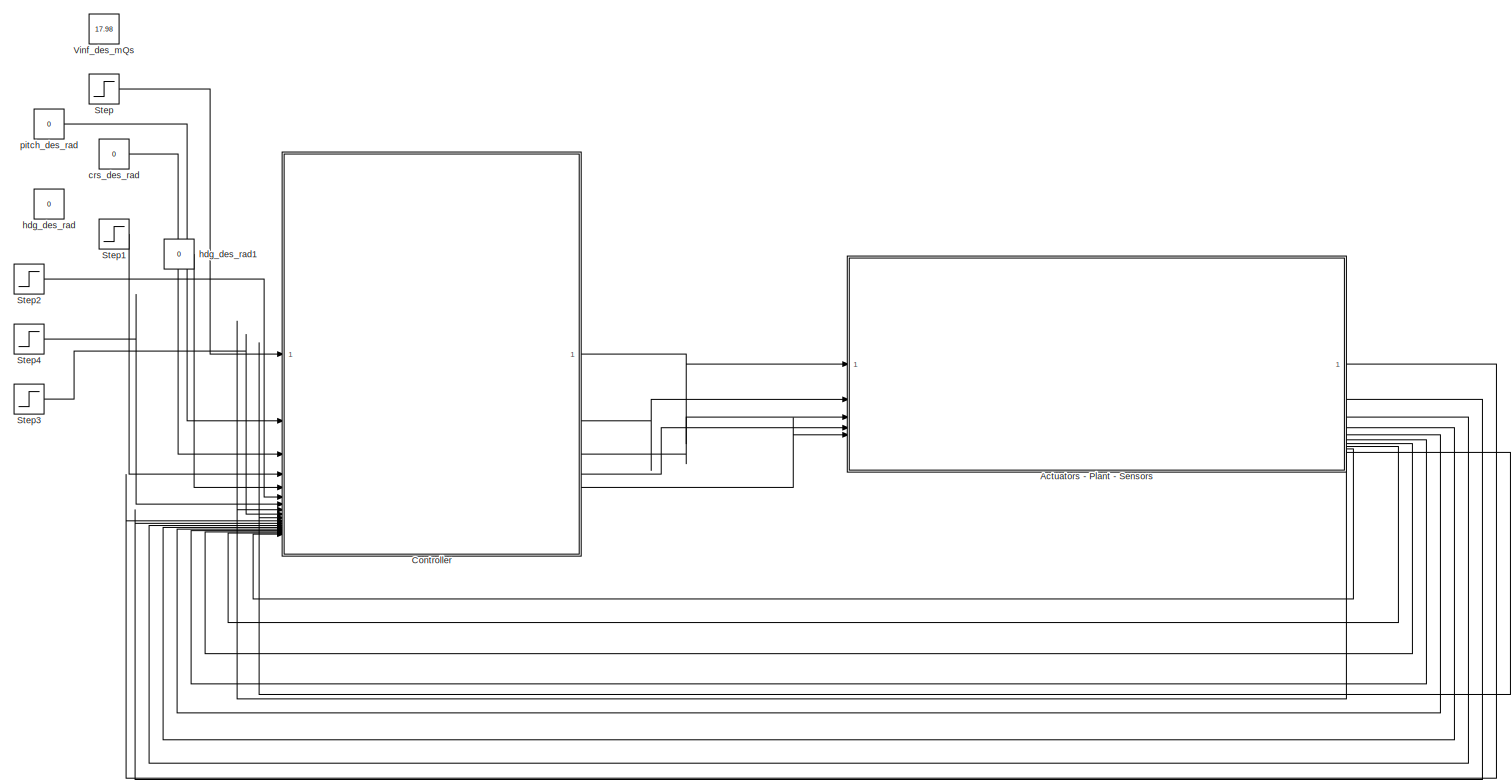
[diagram: root canvas - part 1/1, most of the canvas]
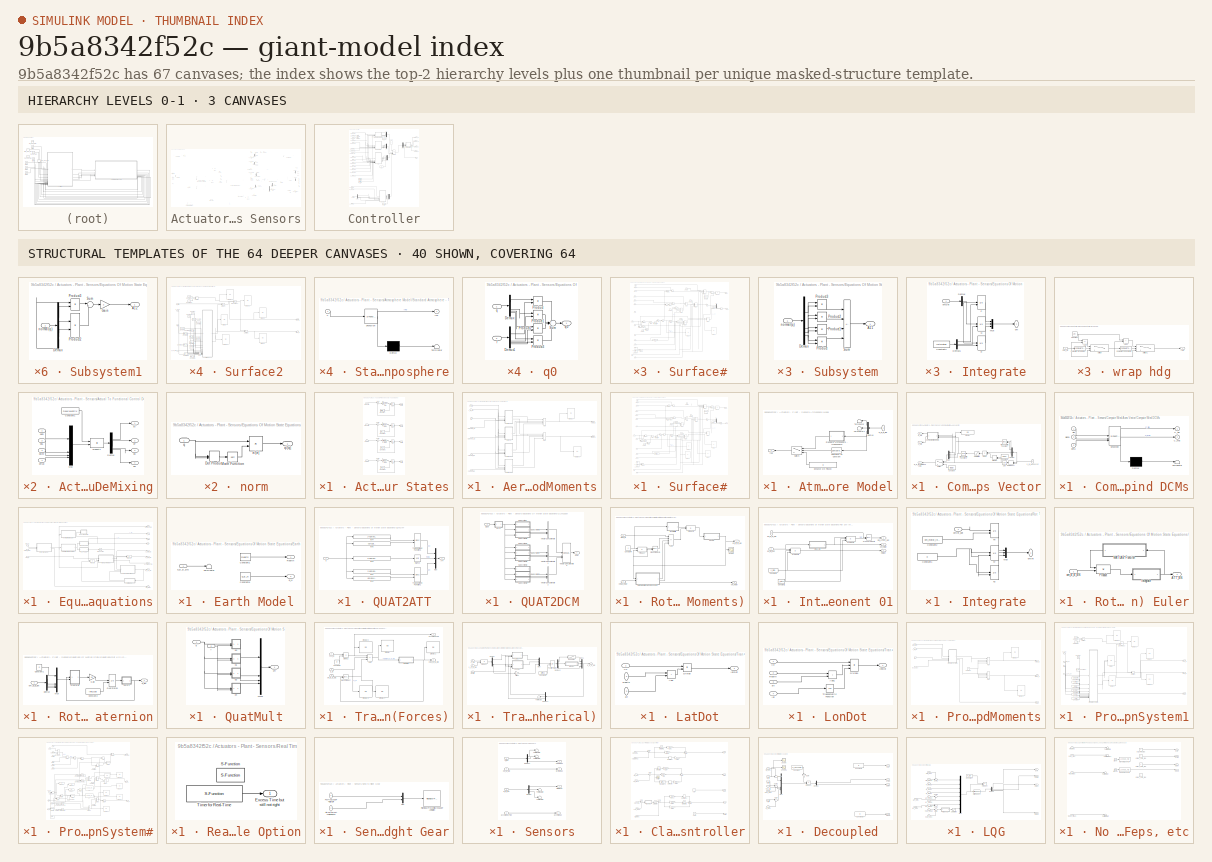
[diagram: thumbnail index - top-2 hierarchy levels (3 canvases) + 40 structural-template representatives of the remaining 64 canvases]
MODEL slx_9b5a8342f52c
KIND model
CONFIG AbsTol = auto
CONFIG EnableMultiTasking = on
CONFIG FixedStep = stepTime
CONFIG MaxStep = auto
CONFIG MinStep = auto
CONFIG RelTol = 1e-3
CONFIG SampleTimeConstraint = Unconstrained
CONFIG SolverName = ode4
CONFIG StartTime = startTime
CONFIG StopTime = stopTime
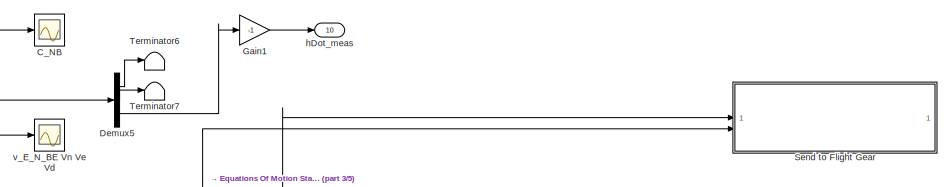
[diagram: Actuators - Plant - Sensors - part 1/5, top right region]
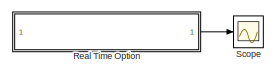
[diagram: Actuators - Plant - Sensors - part 2/5, top left region]
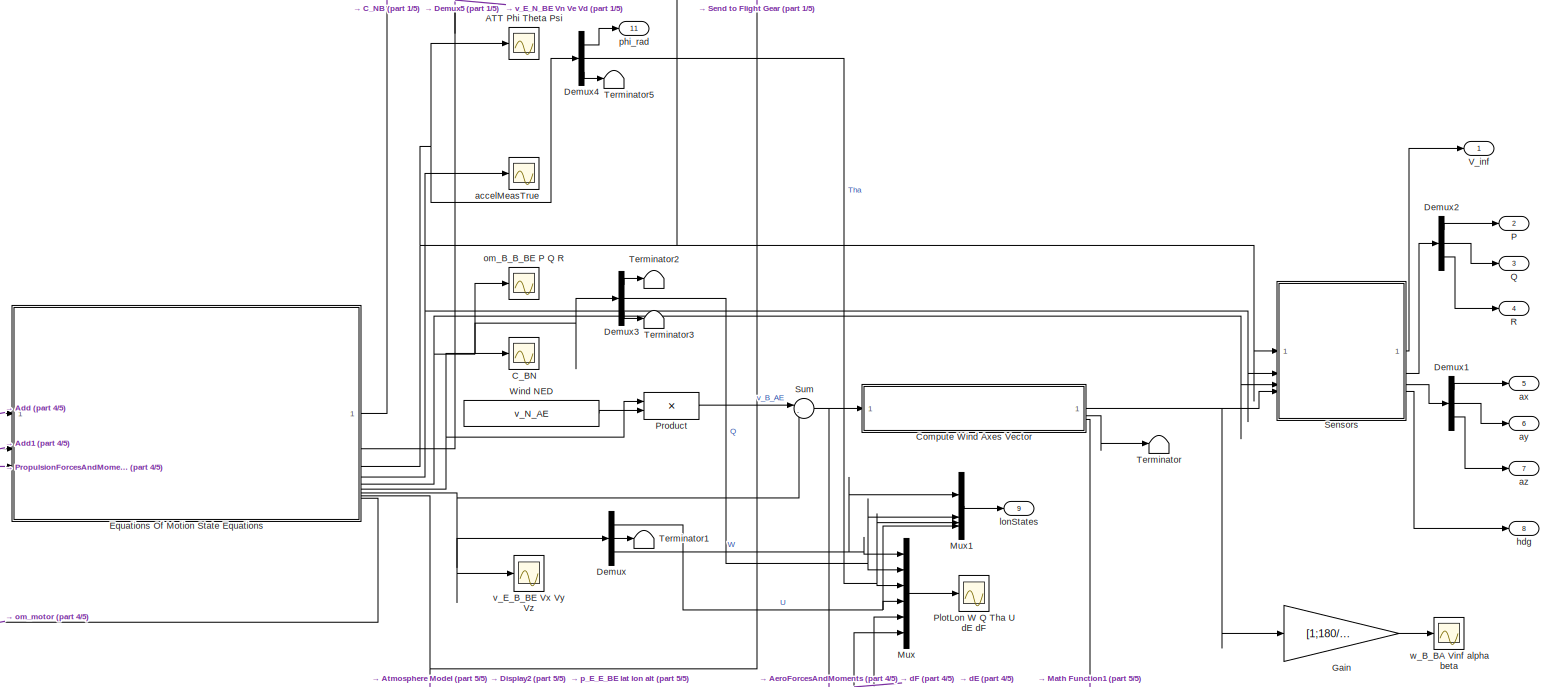
[diagram: Actuators - Plant - Sensors - part 3/5, middle right region]
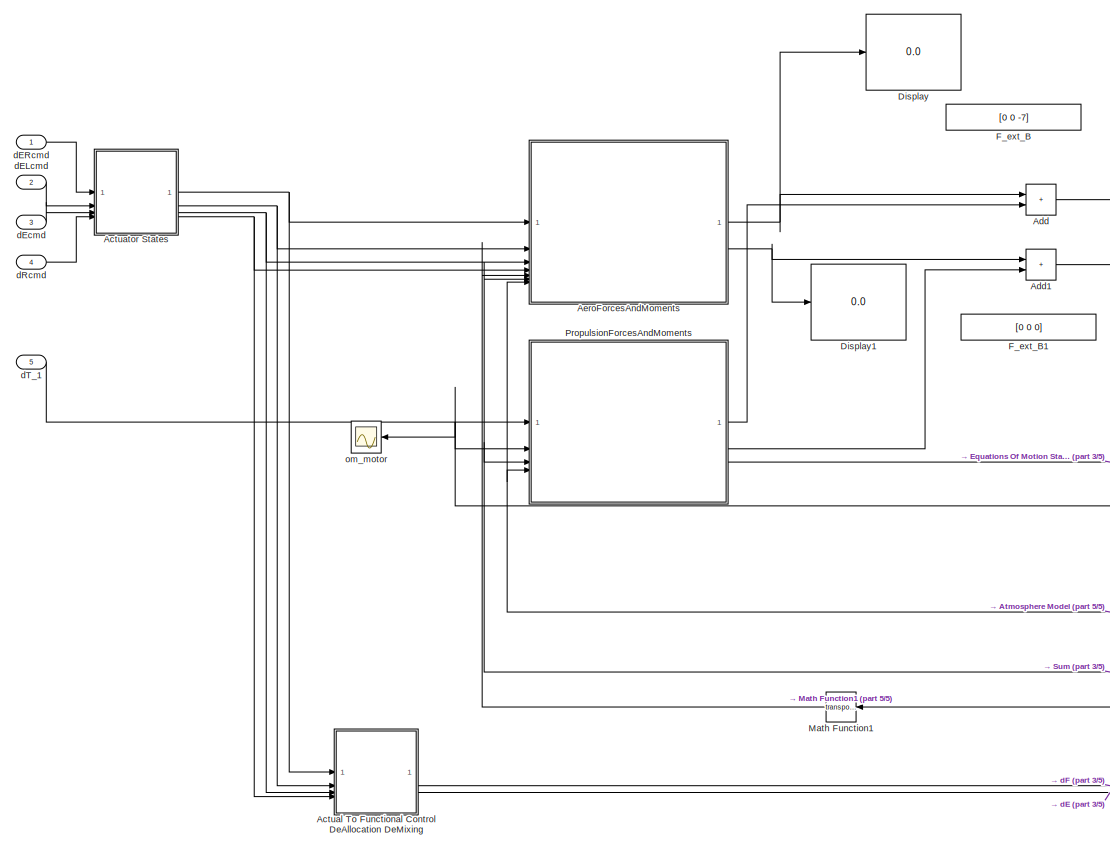
[diagram: Actuators - Plant - Sensors - part 4/5, middle left region]
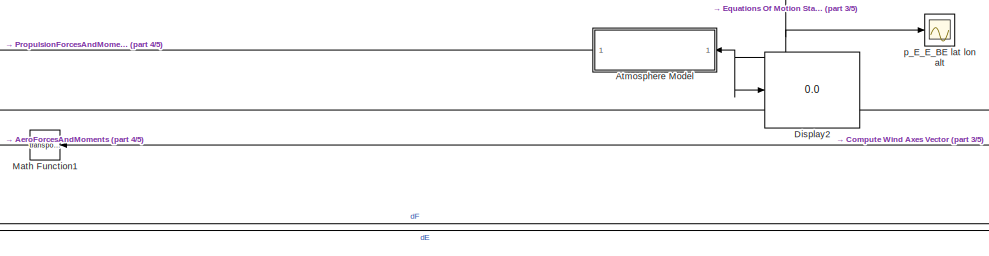
[diagram: Actuators - Plant - Sensors - part 5/5, bottom center region]
BLOCK [SubSystem] Actuators - Plant - Sensors
BLOCK [Scope] Actuators - Plant - Sensors/ATT Phi Theta Psi
  Floating = off
  NumInputPorts = 1
  ScopeSpecificationString = Simulink.scopes.TimeScopeBlockCfg('CurrentConfiguration', extmgr.ConfigurationSet(extmgr.Configuration('Core','General UI',true),extmgr.Configuration('Core','Source UI',true),extmgr.Configuration('Sources','WiredSimulink',true,'DataLoggingVariableName','ScopeData6','DataLoggingSaveFormat','StructureWithTime','DataLoggingDecimation','1','DataLoggingDecimateData',true),extmgr.Configuration('Visuals'...<+1858ch>
BLOCK [SubSystem] Actuators - Plant - Sensors/Actual To Functional Control DeAllocation DeMixing
BLOCK [Constant] Actuators - Plant - Sensors/Actual To Functional Control DeAllocation DeMixing/Constant1
  Value = DeMixMatrix
BLOCK [Demux] Actuators - Plant - Sensors/Actual To Functional Control DeAllocation DeMixing/Demux
BLOCK [Mux] Actuators - Plant - Sensors/Actual To Functional Control DeAllocation DeMixing/Mux
  DisplayOption = bar
BLOCK [Product] Actuators - Plant - Sensors/Actual To Functional Control DeAllocation DeMixing/Product1
  Multiplication = Matrix(*)
  NameLocation = top
BLOCK [Outport] Actuators - Plant - Sensors/Actual To Functional Control DeAllocation DeMixing/dA
  VectorParamsAs1DForOutWhenUnconnected = off
BLOCK [Outport] Actuators - Plant - Sensors/Actual To Functional Control DeAllocation DeMixing/dE
  Port = 3
  VectorParamsAs1DForOutWhenUnconnected = off
BLOCK [Inport] Actuators - Plant - Sensors/Actual To Functional Control DeAllocation DeMixing/dEL
  Port = 2
BLOCK [Inport] Actuators - Plant - Sensors/Actual To Functional Control DeAllocation DeMixing/dER
BLOCK [Inport] Actuators - Plant - Sensors/Actual To Functional Control DeAllocation DeMixing/dElev
  Port = 3
BLOCK [Outport] Actuators - Plant - Sensors/Actual To Functional Control DeAllocation DeMixing/dF
  Port = 2
  VectorParamsAs1DForOutWhenUnconnected = off
BLOCK [Outport] Actuators - Plant - Sensors/Actual To Functional Control DeAllocation DeMixing/dR
  Port = 4
  VectorParamsAs1DForOutWhenUnconnected = off
BLOCK [Inport] Actuators - Plant - Sensors/Actual To Functional Control DeAllocation DeMixing/dRud
  Port = 4
BLOCK [SubSystem] Actuators - Plant - Sensors/Actuator States
BLOCK [Constant] Actuators - Plant - Sensors/Actuator States/Constant
  Value = dER_0
BLOCK [Constant] Actuators - Plant - Sensors/Actuator States/Constant1
  Value = dEL_0
BLOCK [Constant] Actuators - Plant - Sensors/Actuator States/Constant2
  Value = dE_0
BLOCK [Constant] Actuators - Plant - Sensors/Actuator States/Constant3
  Value = dR_0
BLOCK [Gain] Actuators - Plant - Sensors/Actuator States/Gain
  Gain = 1/tauER
BLOCK [Gain] Actuators - Plant - Sensors/Actuator States/Gain1
  Gain = 1/tauEL
BLOCK [Gain] Actuators - Plant - Sensors/Actuator States/Gain2
  Gain = 1/tauE
BLOCK [Gain] Actuators - Plant - Sensors/Actuator States/Gain3
  Gain = 1/tauR
BLOCK [Sum] Actuators - Plant - Sensors/Actuator States/Sum
  Inputs = |+-
BLOCK [Sum] Actuators - Plant - Sensors/Actuator States/Sum1
  Inputs = |+-
BLOCK [Sum] Actuators - Plant - Sensors/Actuator States/Sum2
  Inputs = |+-
BLOCK [Sum] Actuators - Plant - Sensors/Actuator States/Sum3
  Inputs = |+-
BLOCK [Integrator] Actuators - Plant - Sensors/Actuator States/dE
  InitialConditionSource = external
BLOCK [Integrator] Actuators - Plant - Sensors/Actuator States/dEL
  InitialConditionSource = external
BLOCK [Inport] Actuators - Plant - Sensors/Actuator States/dELcmd
  Port = 2
BLOCK [Outport] Actuators - Plant - Sensors/Actuator States/dELtru
  Port = 2
  VectorParamsAs1DForOutWhenUnconnected = off
BLOCK [Integrator] Actuators - Plant - Sensors/Actuator States/dER
  InitialConditionSource = external
BLOCK [Inport] Actuators - Plant - Sensors/Actuator States/dERcmd
BLOCK [Outport] Actuators - Plant - Sensors/Actuator States/dERtru
  VectorParamsAs1DForOutWhenUnconnected = off
BLOCK [Inport] Actuators - Plant - Sensors/Actuator States/dEcmd
  Port = 3
BLOCK [Outport] Actuators - Plant - Sensors/Actuator States/dEtru
  Port = 3
  VectorParamsAs1DForOutWhenUnconnected = off
BLOCK [Integrator] Actuators - Plant - Sensors/Actuator States/dR
  InitialConditionSource = external
BLOCK [Inport] Actuators - Plant - Sensors/Actuator States/dRcmd
  Port = 4
BLOCK [Outport] Actuators - Plant - Sensors/Actuator States/dRtru
  Port = 4
  VectorParamsAs1DForOutWhenUnconnected = off
BLOCK [Sum] Actuators - Plant - Sensors/Add
  IconShape = rectangular
BLOCK [Sum] Actuators - Plant - Sensors/Add1
  IconShape = rectangular
BLOCK [SubSystem] Actuators - Plant - Sensors/AeroForcesAndMoments
BLOCK [Sum] Actuators - Plant - Sensors/AeroForcesAndMoments/Add
  IconShape = rectangular
  Inputs = ++++
BLOCK [Sum] Actuators - Plant - Sensors/AeroForcesAndMoments/Add1
  IconShape = rectangular
  Inputs = ++++
BLOCK [Inport] Actuators - Plant - Sensors/AeroForcesAndMoments/C_BW
  Port = 5
BLOCK [Display] Actuators - Plant - Sensors/AeroForcesAndMoments/Display1
  Decimation = 1
BLOCK [Display] Actuators - Plant - Sensors/AeroForcesAndMoments/Display3
  Decimation = 1
BLOCK [Outport] Actuators - Plant - Sensors/AeroForcesAndMoments/Faero_B
  VectorParamsAs1DForOutWhenUnconnected = off
BLOCK [Outport] Actuators - Plant - Sensors/AeroForcesAndMoments/Maero_B
  Port = 2
  VectorParamsAs1DForOutWhenUnconnected = off
BLOCK [SubSystem] Actuators - Plant - Sensors/AeroForcesAndMoments/Surface2
BLOCK [Inport] Actuators - Plant - Sensors/AeroForcesAndMoments/Surface2/C_BW
BLOCK [Constant] Actuators - Plant - Sensors/AeroForcesAndMoments/Surface2/Constant
  Value = n_s2
BLOCK [Constant] Actuators - Plant - Sensors/AeroForcesAndMoments/Surface2/Constant1
  Value = S_s2
BLOCK [Constant] Actuators - Plant - Sensors/AeroForcesAndMoments/Surface2/Constant10
  Value = CM0_s2
BLOCK [Constant] Actuators - Plant - Sensors/AeroForcesAndMoments/Surface2/Constant11
  Value = c_s2
BLOCK [Constant] Actuators - Plant - Sensors/AeroForcesAndMoments/Surface2/Constant12
  Value = x_s2
BLOCK [Constant] Actuators - Plant - Sensors/AeroForcesAndMoments/Surface2/Constant13
  Value = x_cm
BLOCK [Constant] Actuators - Plant - Sensors/AeroForcesAndMoments/Surface2/Constant15
  Value = S_u_s2
BLOCK [Constant] Actuators - Plant - Sensors/AeroForcesAndMoments/Surface2/Constant16
  Value = dCL_du
BLOCK [Constant] Actuators - Plant - Sensors/AeroForcesAndMoments/Surface2/Constant2
  Value = CD0_s2
BLOCK [Constant] Actuators - Plant - Sensors/AeroForcesAndMoments/Surface2/Constant3
  Value = i_s2
BLOCK [Constant] Actuators - Plant - Sensors/AeroForcesAndMoments/Surface2/Constant4
  Value = AR_s2
BLOCK [Constant] Actuators - Plant - Sensors/AeroForcesAndMoments/Surface2/Constant5
  Value = CL0_s2
BLOCK [Constant] Actuators - Plant - Sensors/AeroForcesAndMoments/Surface2/Constant6
  Value = CDa_s2
BLOCK [Constant] Actuators - Plant - Sensors/AeroForcesAndMoments/Surface2/Constant7
  Value = a0_s2
BLOCK [Constant] Actuators - Plant - Sensors/AeroForcesAndMoments/Surface2/Constant8
  Value = e_s2
BLOCK [Constant] Actuators - Plant - Sensors/AeroForcesAndMoments/Surface2/Constant9
  Value = CMa_s2
BLOCK [Reference] Actuators - Plant - Sensors/AeroForcesAndMoments/Surface2/Cross Product  REF=vrlib/Utilities/Cross Product
  SourceBlock = vrlib/Utilities/Cross Product
  SourceType = Cross Product
BLOCK [Display] Actuators - Plant - Sensors/AeroForcesAndMoments/Surface2/Display
  Decimation = 1
BLOCK [Display] Actuators - Plant - Sensors/AeroForcesAndMoments/Surface2/Display1
  Decimation = 1
BLOCK [Display] Actuators - Plant - Sensors/AeroForcesAndMoments/Surface2/Display2
  Decimation = 1
BLOCK [Display] Actuators - Plant - Sensors/AeroForcesAndMoments/Surface2/Display3
  Decimation = 1
BLOCK [Display] Actuators - Plant - Sensors/AeroForcesAndMoments/Surface2/Display4
  Decimation = 1
BLOCK [Display] Actuators - Plant - Sensors/AeroForcesAndMoments/Surface2/Display5
  Decimation = 1
BLOCK [Product] Actuators - Plant - Sensors/AeroForcesAndMoments/Surface2/Divide
  Inputs = /*
BLOCK [Outport] Actuators - Plant - Sensors/AeroForcesAndMoments/Surface2/Fs2_B
  VectorParamsAs1DForOutWhenUnconnected = off
BLOCK [Outport] Actuators - Plant - Sensors/AeroForcesAndMoments/Surface2/Ms2_B
  Port = 2
  VectorParamsAs1DForOutWhenUnconnected = off
BLOCK [Product] Actuators - Plant - Sensors/AeroForcesAndMoments/Surface2/Product
  Multiplication = Matrix(*)
BLOCK [Sum] Actuators - Plant - Sensors/AeroForcesAndMoments/Surface2/Subtract
  IconShape = rectangular
  Inputs = +-
BLOCK [Sum] Actuators - Plant - Sensors/AeroForcesAndMoments/Surface2/Subtract1
  IconShape = rectangular
BLOCK [SubSystem] Actuators - Plant - Sensors/AeroForcesAndMoments/Surface2/Surface#
BLOCK [Inport] Actuators - Plant - Sensors/AeroForcesAndMoments/Surface2/Surface#/AR_s#
  Port = 4
BLOCK [Sum] Actuators - Plant - Sensors/AeroForcesAndMoments/Surface2/Surface#/Add1
  IconShape = rectangular
BLOCK [Sum] Actuators - Plant - Sensors/AeroForcesAndMoments/Surface2/Surface#/Add2
  IconShape = rectangular
  Inputs = +++
BLOCK [Sum] Actuators - Plant - Sensors/AeroForcesAndMoments/Surface2/Surface#/Add3
  IconShape = rectangular
BLOCK [Sum] Actuators - Plant - Sensors/AeroForcesAndMoments/Surface2/Surface#/Add4
  IconShape = rectangular
  Inputs = +-
BLOCK [Sum] Actuators - Plant - Sensors/AeroForcesAndMoments/Surface2/Surface#/Add5
  IconShape = rectangular
  Inputs = +++
BLOCK [Sum] Actuators - Plant - Sensors/AeroForcesAndMoments/Surface2/Surface#/Add6
  IconShape = rectangular
BLOCK [Inport] Actuators - Plant - Sensors/AeroForcesAndMoments/Surface2/Surface#/CD0_s#
  Port = 8
BLOCK [Inport] Actuators - Plant - Sensors/AeroForcesAndMoments/Surface2/Surface#/CDa_s#
  Port = 9
BLOCK [Inport] Actuators - Plant - Sensors/AeroForcesAndMoments/Surface2/Surface#/CL0_s#
  Port = 5
BLOCK [Inport] Actuators - Plant - Sensors/AeroForcesAndMoments/Surface2/Surface#/CM0_s#
  Port = 13
BLOCK [Inport] Actuators - Plant - Sensors/AeroForcesAndMoments/Surface2/Surface#/CMa_s#
  Port = 12
BLOCK [Constant] Actuators - Plant - Sensors/AeroForcesAndMoments/Surface2/Surface#/Constant1
  Value = 0.001
BLOCK [Constant] Actuators - Plant - Sensors/AeroForcesAndMoments/Surface2/Surface#/Constant3
  Value = 1/2
BLOCK [Constant] Actuators - Plant - Sensors/AeroForcesAndMoments/Surface2/Surface#/Constant4
  Value = pi
BLOCK [Constant] Actuators - Plant - Sensors/AeroForcesAndMoments/Surface2/Surface#/Constant5
  Value = 0
BLOCK [Constant] Actuators - Plant - Sensors/AeroForcesAndMoments/Surface2/Surface#/Constant6
  Value = 1/2
BLOCK [Constant] Actuators - Plant - Sensors/AeroForcesAndMoments/Surface2/Surface#/Constant7
  Value = 1/2
BLOCK [Constant] Actuators - Plant - Sensors/AeroForcesAndMoments/Surface2/Surface#/Constant8
  Value = [0 0 0; 0 0 -1; 0 1 0]
BLOCK [Display] Actuators - Plant - Sensors/AeroForcesAndMoments/Surface2/Surface#/Display
  Decimation = 1
BLOCK [Display] Actuators - Plant - Sensors/AeroForcesAndMoments/Surface2/Surface#/Display1
  Decimation = 1
BLOCK [Product] Actuators - Plant - Sensors/AeroForcesAndMoments/Surface2/Surface#/Divide
  Inputs = */
BLOCK [Product] Actuators - Plant - Sensors/AeroForcesAndMoments/Surface2/Surface#/Divide1
  Inputs = **
BLOCK [Product] Actuators - Plant - Sensors/AeroForcesAndMoments/Surface2/Surface#/Divide2
  Inputs = *****
BLOCK [Product] Actuators - Plant - Sensors/AeroForcesAndMoments/Surface2/Surface#/Divide3
  Inputs = **
BLOCK [Product] Actuators - Plant - Sensors/AeroForcesAndMoments/Surface2/Surface#/Divide4
  Inputs = *///
BLOCK [Product] Actuators - Plant - Sensors/AeroForcesAndMoments/Surface2/Surface#/Divide5
  Inputs = *****
BLOCK [Product] Actuators - Plant - Sensors/AeroForcesAndMoments/Surface2/Surface#/Divide6
  Inputs = ******
BLOCK [DotProduct] Actuators - Plant - Sensors/AeroForcesAndMoments/Surface2/Surface#/Dot Product
  OutDataTypeStr = Inherit: Inherit via internal rule
BLOCK [DotProduct] Actuators - Plant - Sensors/AeroForcesAndMoments/Surface2/Surface#/Dot Product1
  OutDataTypeStr = Inherit: Inherit via internal rule
BLOCK [Fcn] Actuators - Plant - Sensors/AeroForcesAndMoments/Surface2/Surface#/Fcn
  Expr = 2*pi*u/(2+u)
BLOCK [Outport] Actuators - Plant - Sensors/AeroForcesAndMoments/Surface2/Surface#/Fs#_W
  VectorParamsAs1DForOutWhenUnconnected = off
BLOCK [Gain] Actuators - Plant - Sensors/AeroForcesAndMoments/Surface2/Surface#/Gain
  Gain = -1
BLOCK [Gain] Actuators - Plant - Sensors/AeroForcesAndMoments/Surface2/Surface#/Gain1
  Gain = -1
BLOCK [MinMax] Actuators - Plant - Sensors/AeroForcesAndMoments/Surface2/Surface#/MinMax
  Function = max
  Inputs = 2
BLOCK [Outport] Actuators - Plant - Sensors/AeroForcesAndMoments/Surface2/Surface#/Ms#_B
  Port = 2
  VectorParamsAs1DForOutWhenUnconnected = off
BLOCK [Mux] Actuators - Plant - Sensors/AeroForcesAndMoments/Surface2/Surface#/Mux
  DisplayOption = bar
  Inputs = 3
BLOCK [Product] Actuators - Plant - Sensors/AeroForcesAndMoments/Surface2/Surface#/Product
BLOCK [Product] Actuators - Plant - Sensors/AeroForcesAndMoments/Surface2/Surface#/Product1
BLOCK [Product] Actuators - Plant - Sensors/AeroForcesAndMoments/Surface2/Surface#/Product2
BLOCK [Product] Actuators - Plant - Sensors/AeroForcesAndMoments/Surface2/Surface#/Product3
BLOCK [Product] Actuators - Plant - Sensors/AeroForcesAndMoments/Surface2/Surface#/Product4
  Multiplication = Matrix(*)
BLOCK [Product] Actuators - Plant - Sensors/AeroForcesAndMoments/Surface2/Surface#/Product5
BLOCK [Product] Actuators - Plant - Sensors/AeroForcesAndMoments/Surface2/Surface#/Product6
  Inputs = 3
BLOCK [Inport] Actuators - Plant - Sensors/AeroForcesAndMoments/Surface2/Surface#/S_s#
  Port = 7
BLOCK [Sqrt] Actuators - Plant - Sensors/AeroForcesAndMoments/Surface2/Surface#/Sqrt
BLOCK [Inport] Actuators - Plant - Sensors/AeroForcesAndMoments/Surface2/Surface#/Su_S_ratio_s#
  Port = 16
BLOCK [Trigonometry] Actuators - Plant - Sensors/AeroForcesAndMoments/Surface2/Surface#/Trigonometric Function
  Operator = asin
BLOCK [Inport] Actuators - Plant - Sensors/AeroForcesAndMoments/Surface2/Surface#/a0_s#
  Port = 10
BLOCK [Inport] Actuators - Plant - Sensors/AeroForcesAndMoments/Surface2/Surface#/c_s#
  Port = 14
BLOCK [Inport] Actuators - Plant - Sensors/AeroForcesAndMoments/Surface2/Surface#/dCL_du_s#
  Port = 17
BLOCK [Inport] Actuators - Plant - Sensors/AeroForcesAndMoments/Surface2/Surface#/e_s#
  Port = 11
BLOCK [Inport] Actuators - Plant - Sensors/AeroForcesAndMoments/Surface2/Surface#/i_s#
  Port = 3
BLOCK [Inport] Actuators - Plant - Sensors/AeroForcesAndMoments/Surface2/Surface#/n_s#
  Port = 2
BLOCK [Inport] Actuators - Plant - Sensors/AeroForcesAndMoments/Surface2/Surface#/rho
  Port = 6
BLOCK [Inport] Actuators - Plant - Sensors/AeroForcesAndMoments/Surface2/Surface#/u_s#
  Port = 15
BLOCK [Inport] Actuators - Plant - Sensors/AeroForcesAndMoments/Surface2/Surface#/v_B_BA
BLOCK [Inport] Actuators - Plant - Sensors/AeroForcesAndMoments/Surface2/rho
  Port = 3
BLOCK [Inport] Actuators - Plant - Sensors/AeroForcesAndMoments/Surface2/u_s#_rad
  Port = 4
BLOCK [Inport] Actuators - Plant - Sensors/AeroForcesAndMoments/Surface2/v_B_BA
  Port = 2
BLOCK [SubSystem] Actuators - Plant - Sensors/AeroForcesAndMoments/Surface3
BLOCK [Inport] Actuators - Plant - Sensors/AeroForcesAndMoments/Surface3/C_BW
BLOCK [Constant] Actuators - Plant - Sensors/AeroForcesAndMoments/Surface3/Constant
  Value = n_s3
BLOCK [Constant] Actuators - Plant - Sensors/AeroForcesAndMoments/Surface3/Constant1
  Value = S_s3
BLOCK [Constant] Actuators - Plant - Sensors/AeroForcesAndMoments/Surface3/Constant10
  Value = CM0_s3
BLOCK [Constant] Actuators - Plant - Sensors/AeroForcesAndMoments/Surface3/Constant11
  Value = c_s3
BLOCK [Constant] Actuators - Plant - Sensors/AeroForcesAndMoments/Surface3/Constant12
  Value = x_s3
BLOCK [Constant] Actuators - Plant - Sensors/AeroForcesAndMoments/Surface3/Constant13
  Value = x_cm
BLOCK [Constant] Actuators - Plant - Sensors/AeroForcesAndMoments/Surface3/Constant15
  Value = S_u_s3
BLOCK [Constant] Actuators - Plant - Sensors/AeroForcesAndMoments/Surface3/Constant16
  Value = dCL_du
BLOCK [Constant] Actuators - Plant - Sensors/AeroForcesAndMoments/Surface3/Constant2
  Value = CD0_s3
BLOCK [Constant] Actuators - Plant - Sensors/AeroForcesAndMoments/Surface3/Constant3
  Value = i_s3
BLOCK [Constant] Actuators - Plant - Sensors/AeroForcesAndMoments/Surface3/Constant4
  Value = AR_s3
BLOCK [Constant] Actuators - Plant - Sensors/AeroForcesAndMoments/Surface3/Constant5
  Value = CL0_s3
BLOCK [Constant] Actuators - Plant - Sensors/AeroForcesAndMoments/Surface3/Constant6
  Value = CDa_s3
BLOCK [Constant] Actuators - Plant - Sensors/AeroForcesAndMoments/Surface3/Constant7
  Value = a0_s3
BLOCK [Constant] Actuators - Plant - Sensors/AeroForcesAndMoments/Surface3/Constant8
  Value = e_s3
BLOCK [Constant] Actuators - Plant - Sensors/AeroForcesAndMoments/Surface3/Constant9
  Value = CMa_s3
BLOCK [Reference] Actuators - Plant - Sensors/AeroForcesAndMoments/Surface3/Cross Product  REF=vrlib/Utilities/Cross Product
  SourceBlock = vrlib/Utilities/Cross Product
  SourceType = Cross Product
BLOCK [Display] Actuators - Plant - Sensors/AeroForcesAndMoments/Surface3/Display
  Decimation = 1
BLOCK [Display] Actuators - Plant - Sensors/AeroForcesAndMoments/Surface3/Display1
  Decimation = 1
BLOCK [Display] Actuators - Plant - Sensors/AeroForcesAndMoments/Surface3/Display2
  Decimation = 1
BLOCK [Display] Actuators - Plant - Sensors/AeroForcesAndMoments/Surface3/Display3
  Decimation = 1
BLOCK [Display] Actuators - Plant - Sensors/AeroForcesAndMoments/Surface3/Display4
  Decimation = 1
BLOCK [Display] Actuators - Plant - Sensors/AeroForcesAndMoments/Surface3/Display5
  Decimation = 1
BLOCK [Product] Actuators - Plant - Sensors/AeroForcesAndMoments/Surface3/Divide
  Inputs = /*
BLOCK [Outport] Actuators - Plant - Sensors/AeroForcesAndMoments/Surface3/Fs2_B
  VectorParamsAs1DForOutWhenUnconnected = off
BLOCK [Outport] Actuators - Plant - Sensors/AeroForcesAndMoments/Surface3/Ms2_B
  Port = 2
  VectorParamsAs1DForOutWhenUnconnected = off
BLOCK [Product] Actuators - Plant - Sensors/AeroForcesAndMoments/Surface3/Product
  Multiplication = Matrix(*)
BLOCK [Sum] Actuators - Plant - Sensors/AeroForcesAndMoments/Surface3/Subtract
  IconShape = rectangular
  Inputs = +-
BLOCK [Sum] Actuators - Plant - Sensors/AeroForcesAndMoments/Surface3/Subtract1
  IconShape = rectangular
BLOCK [SubSystem] Actuators - Plant - Sensors/AeroForcesAndMoments/Surface3/Surface#
BLOCK [Inport] Actuators - Plant - Sensors/AeroForcesAndMoments/Surface3/Surface#/AR_s#
  Port = 4
BLOCK [Sum] Actuators - Plant - Sensors/AeroForcesAndMoments/Surface3/Surface#/Add1
  IconShape = rectangular
BLOCK [Sum] Actuators - Plant - Sensors/AeroForcesAndMoments/Surface3/Surface#/Add2
  IconShape = rectangular
  Inputs = +++
BLOCK [Sum] Actuators - Plant - Sensors/AeroForcesAndMoments/Surface3/Surface#/Add3
  IconShape = rectangular
BLOCK [Sum] Actuators - Plant - Sensors/AeroForcesAndMoments/Surface3/Surface#/Add4
  IconShape = rectangular
  Inputs = +-
BLOCK [Sum] Actuators - Plant - Sensors/AeroForcesAndMoments/Surface3/Surface#/Add5
  IconShape = rectangular
  Inputs = +++
BLOCK [Sum] Actuators - Plant - Sensors/AeroForcesAndMoments/Surface3/Surface#/Add6
  IconShape = rectangular
BLOCK [Inport] Actuators - Plant - Sensors/AeroForcesAndMoments/Surface3/Surface#/CD0_s#
  Port = 8
BLOCK [Inport] Actuators - Plant - Sensors/AeroForcesAndMoments/Surface3/Surface#/CDa_s#
  Port = 9
BLOCK [Inport] Actuators - Plant - Sensors/AeroForcesAndMoments/Surface3/Surface#/CL0_s#
  Port = 5
BLOCK [Inport] Actuators - Plant - Sensors/AeroForcesAndMoments/Surface3/Surface#/CM0_s#
  Port = 13
BLOCK [Inport] Actuators - Plant - Sensors/AeroForcesAndMoments/Surface3/Surface#/CMa_s#
  Port = 12
BLOCK [Constant] Actuators - Plant - Sensors/AeroForcesAndMoments/Surface3/Surface#/Constant1
  Value = 0.001
BLOCK [Constant] Actuators - Plant - Sensors/AeroForcesAndMoments/Surface3/Surface#/Constant3
  Value = 1/2
BLOCK [Constant] Actuators - Plant - Sensors/AeroForcesAndMoments/Surface3/Surface#/Constant4
  Value = pi
BLOCK [Constant] Actuators - Plant - Sensors/AeroForcesAndMoments/Surface3/Surface#/Constant5
  Value = 0
BLOCK [Constant] Actuators - Plant - Sensors/AeroForcesAndMoments/Surface3/Surface#/Constant6
  Value = 1/2
BLOCK [Constant] Actuators - Plant - Sensors/AeroForcesAndMoments/Surface3/Surface#/Constant7
  Value = 1/2
BLOCK [Constant] Actuators - Plant - Sensors/AeroForcesAndMoments/Surface3/Surface#/Constant8
  Value = [0 0 0; 0 0 -1; 0 1 0]
BLOCK [Display] Actuators - Plant - Sensors/AeroForcesAndMoments/Surface3/Surface#/Display
  Decimation = 1
BLOCK [Display] Actuators - Plant - Sensors/AeroForcesAndMoments/Surface3/Surface#/Display1
  Decimation = 1
BLOCK [Product] Actuators - Plant - Sensors/AeroForcesAndMoments/Surface3/Surface#/Divide
  Inputs = */
BLOCK [Product] Actuators - Plant - Sensors/AeroForcesAndMoments/Surface3/Surface#/Divide1
  Inputs = **
BLOCK [Product] Actuators - Plant - Sensors/AeroForcesAndMoments/Surface3/Surface#/Divide2
  Inputs = *****
BLOCK [Product] Actuators - Plant - Sensors/AeroForcesAndMoments/Surface3/Surface#/Divide3
  Inputs = **
BLOCK [Product] Actuators - Plant - Sensors/AeroForcesAndMoments/Surface3/Surface#/Divide4
  Inputs = *///
BLOCK [Product] Actuators - Plant - Sensors/AeroForcesAndMoments/Surface3/Surface#/Divide5
  Inputs = *****
BLOCK [Product] Actuators - Plant - Sensors/AeroForcesAndMoments/Surface3/Surface#/Divide6
  Inputs = ******
BLOCK [DotProduct] Actuators - Plant - Sensors/AeroForcesAndMoments/Surface3/Surface#/Dot Product
  OutDataTypeStr = Inherit: Inherit via internal rule
BLOCK [DotProduct] Actuators - Plant - Sensors/AeroForcesAndMoments/Surface3/Surface#/Dot Product1
  OutDataTypeStr = Inherit: Inherit via internal rule
BLOCK [Fcn] Actuators - Plant - Sensors/AeroForcesAndMoments/Surface3/Surface#/Fcn
  Expr = 2*pi*u/(2+u)
BLOCK [Outport] Actuators - Plant - Sensors/AeroForcesAndMoments/Surface3/Surface#/Fs#_W
  VectorParamsAs1DForOutWhenUnconnected = off
BLOCK [Gain] Actuators - Plant - Sensors/AeroForcesAndMoments/Surface3/Surface#/Gain
  Gain = -1
BLOCK [Gain] Actuators - Plant - Sensors/AeroForcesAndMoments/Surface3/Surface#/Gain1
  Gain = -1
BLOCK [MinMax] Actuators - Plant - Sensors/AeroForcesAndMoments/Surface3/Surface#/MinMax
  Function = max
  Inputs = 2
BLOCK [Outport] Actuators - Plant - Sensors/AeroForcesAndMoments/Surface3/Surface#/Ms#_B
  Port = 2
  VectorParamsAs1DForOutWhenUnconnected = off
BLOCK [Mux] Actuators - Plant - Sensors/AeroForcesAndMoments/Surface3/Surface#/Mux
  DisplayOption = bar
  Inputs = 3
BLOCK [Product] Actuators - Plant - Sensors/AeroForcesAndMoments/Surface3/Surface#/Product
BLOCK [Product] Actuators - Plant - Sensors/AeroForcesAndMoments/Surface3/Surface#/Product1
BLOCK [Product] Actuators - Plant - Sensors/AeroForcesAndMoments/Surface3/Surface#/Product2
BLOCK [Product] Actuators - Plant - Sensors/AeroForcesAndMoments/Surface3/Surface#/Product3
BLOCK [Product] Actuators - Plant - Sensors/AeroForcesAndMoments/Surface3/Surface#/Product4
  Multiplication = Matrix(*)
BLOCK [Product] Actuators - Plant - Sensors/AeroForcesAndMoments/Surface3/Surface#/Product5
BLOCK [Product] Actuators - Plant - Sensors/AeroForcesAndMoments/Surface3/Surface#/Product6
  Inputs = 3
BLOCK [Inport] Actuators - Plant - Sensors/AeroForcesAndMoments/Surface3/Surface#/S_s#
  Port = 7
BLOCK [Sqrt] Actuators - Plant - Sensors/AeroForcesAndMoments/Surface3/Surface#/Sqrt
BLOCK [Inport] Actuators - Plant - Sensors/AeroForcesAndMoments/Surface3/Surface#/Su_S_ratio_s#
  Port = 16
BLOCK [Trigonometry] Actuators - Plant - Sensors/AeroForcesAndMoments/Surface3/Surface#/Trigonometric Function
  Operator = asin
BLOCK [Inport] Actuators - Plant - Sensors/AeroForcesAndMoments/Surface3/Surface#/a0_s#
  Port = 10
BLOCK [Inport] Actuators - Plant - Sensors/AeroForcesAndMoments/Surface3/Surface#/c_s#
  Port = 14
BLOCK [Inport] Actuators - Plant - Sensors/AeroForcesAndMoments/Surface3/Surface#/dCL_du_s#
  Port = 17
BLOCK [Inport] Actuators - Plant - Sensors/AeroForcesAndMoments/Surface3/Surface#/e_s#
  Port = 11
BLOCK [Inport] Actuators - Plant - Sensors/AeroForcesAndMoments/Surface3/Surface#/i_s#
  Port = 3
BLOCK [Inport] Actuators - Plant - Sensors/AeroForcesAndMoments/Surface3/Surface#/n_s#
  Port = 2
BLOCK [Inport] Actuators - Plant - Sensors/AeroForcesAndMoments/Surface3/Surface#/rho
  Port = 6
BLOCK [Inport] Actuators - Plant - Sensors/AeroForcesAndMoments/Surface3/Surface#/u_s#
  Port = 15
BLOCK [Inport] Actuators - Plant - Sensors/AeroForcesAndMoments/Surface3/Surface#/v_B_BA
BLOCK [Inport] Actuators - Plant - Sensors/AeroForcesAndMoments/Surface3/rho
  Port = 3
BLOCK [Inport] Actuators - Plant - Sensors/AeroForcesAndMoments/Surface3/u_s#_rad
  Port = 4
BLOCK [Inport] Actuators - Plant - Sensors/AeroForcesAndMoments/Surface3/v_B_BA
  Port = 2
BLOCK [SubSystem] Actuators - Plant - Sensors/AeroForcesAndMoments/Surface4
BLOCK [Inport] Actuators - Plant - Sensors/AeroForcesAndMoments/Surface4/C_BW
BLOCK [Constant] Actuators - Plant - Sensors/AeroForcesAndMoments/Surface4/Constant
  Value = n_s4
BLOCK [Constant] Actuators - Plant - Sensors/AeroForcesAndMoments/Surface4/Constant1
  Value = S_s4
BLOCK [Constant] Actuators - Plant - Sensors/AeroForcesAndMoments/Surface4/Constant10
  Value = CM0_s4
BLOCK [Constant] Actuators - Plant - Sensors/AeroForcesAndMoments/Surface4/Constant11
  Value = c_s4
BLOCK [Constant] Actuators - Plant - Sensors/AeroForcesAndMoments/Surface4/Constant12
  Value = x_s4
BLOCK [Constant] Actuators - Plant - Sensors/AeroForcesAndMoments/Surface4/Constant13
  Value = x_cm
BLOCK [Constant] Actuators - Plant - Sensors/AeroForcesAndMoments/Surface4/Constant14
  Value = S_u_s4
BLOCK [Constant] Actuators - Plant - Sensors/AeroForcesAndMoments/Surface4/Constant15
  Value = dCL_du
BLOCK [Constant] Actuators - Plant - Sensors/AeroForcesAndMoments/Surface4/Constant2
  Value = CD0_s4
BLOCK [Constant] Actuators - Plant - Sensors/AeroForcesAndMoments/Surface4/Constant3
  Value = i_s4
BLOCK [Constant] Actuators - Plant - Sensors/AeroForcesAndMoments/Surface4/Constant4
  Value = AR_s4
BLOCK [Constant] Actuators - Plant - Sensors/AeroForcesAndMoments/Surface4/Constant5
  Value = CL0_s4
BLOCK [Constant] Actuators - Plant - Sensors/AeroForcesAndMoments/Surface4/Constant6
  Value = CDa_s4
BLOCK [Constant] Actuators - Plant - Sensors/AeroForcesAndMoments/Surface4/Constant7
  Value = a0_s4
BLOCK [Constant] Actuators - Plant - Sensors/AeroForcesAndMoments/Surface4/Constant8
  Value = e_s4
BLOCK [Constant] Actuators - Plant - Sensors/AeroForcesAndMoments/Surface4/Constant9
  Value = CMa_s4
BLOCK [Reference] Actuators - Plant - Sensors/AeroForcesAndMoments/Surface4/Cross Product  REF=vrlib/Utilities/Cross Product
  SourceBlock = vrlib/Utilities/Cross Product
  SourceType = Cross Product
BLOCK [Display] Actuators - Plant - Sensors/AeroForcesAndMoments/Surface4/Display
BLOCK [Display] Actuators - Plant - Sensors/AeroForcesAndMoments/Surface4/Display1
  Decimation = 1
BLOCK [Display] Actuators - Plant - Sensors/AeroForcesAndMoments/Surface4/Display2
  Decimation = 1
BLOCK [Display] Actuators - Plant - Sensors/AeroForcesAndMoments/Surface4/Display3
  Decimation = 1
BLOCK [Display] Actuators - Plant - Sensors/AeroForcesAndMoments/Surface4/Display4
  Decimation = 1
BLOCK [Display] Actuators - Plant - Sensors/AeroForcesAndMoments/Surface4/Display5
  Decimation = 1
BLOCK [Product] Actuators - Plant - Sensors/AeroForcesAndMoments/Surface4/Divide
  Inputs = /*
BLOCK [Outport] Actuators - Plant - Sensors/AeroForcesAndMoments/Surface4/Fs4_B
  VectorParamsAs1DForOutWhenUnconnected = off
BLOCK [Outport] Actuators - Plant - Sensors/AeroForcesAndMoments/Surface4/Ms4_B
  Port = 2
  VectorParamsAs1DForOutWhenUnconnected = off
BLOCK [Product] Actuators - Plant - Sensors/AeroForcesAndMoments/Surface4/Product
  Multiplication = Matrix(*)
BLOCK [Sum] Actuators - Plant - Sensors/AeroForcesAndMoments/Surface4/Subtract
  IconShape = rectangular
  Inputs = +-
BLOCK [Sum] Actuators - Plant - Sensors/AeroForcesAndMoments/Surface4/Subtract1
  IconShape = rectangular
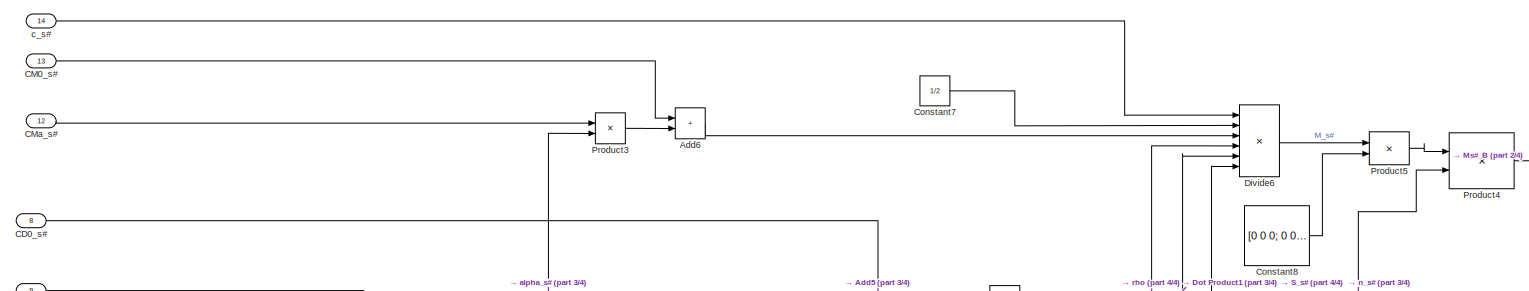
[diagram: Actuators - Plant - Sensors/AeroForcesAndMoments/Surface4/Surface# - part 1/4, full width, top band]
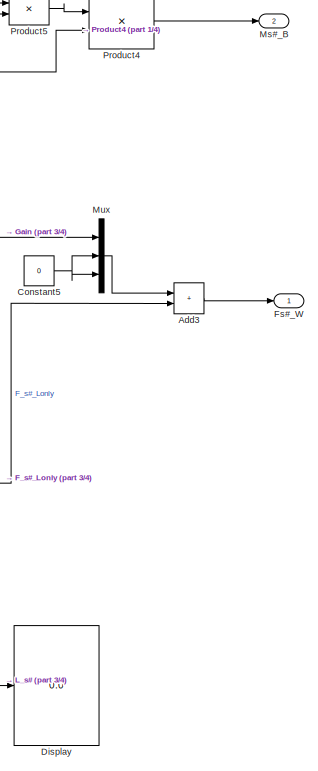
[diagram: Actuators - Plant - Sensors/AeroForcesAndMoments/Surface4/Surface# - part 2/4, middle right region]
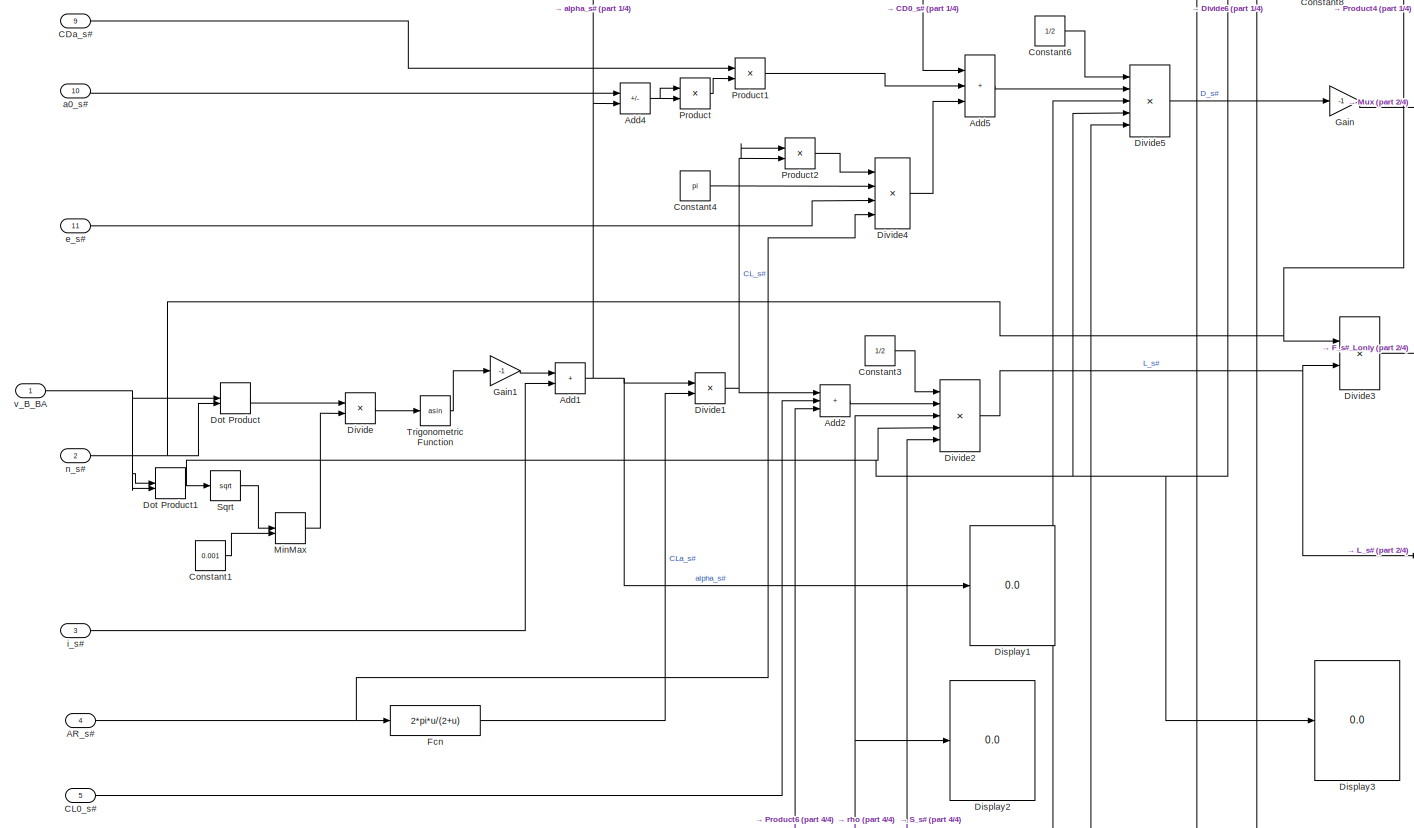
[diagram: Actuators - Plant - Sensors/AeroForcesAndMoments/Surface4/Surface# - part 3/4, full width, middle band]
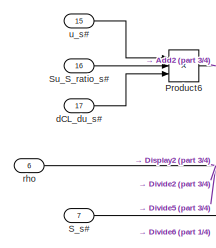
[diagram: Actuators - Plant - Sensors/AeroForcesAndMoments/Surface4/Surface# - part 4/4, bottom left region]
BLOCK [SubSystem] Actuators - Plant - Sensors/AeroForcesAndMoments/Surface4/Surface#
BLOCK [Inport] Actuators - Plant - Sensors/AeroForcesAndMoments/Surface4/Surface#/AR_s#
  Port = 4
BLOCK [Sum] Actuators - Plant - Sensors/AeroForcesAndMoments/Surface4/Surface#/Add1
  IconShape = rectangular
BLOCK [Sum] Actuators - Plant - Sensors/AeroForcesAndMoments/Surface4/Surface#/Add2
  IconShape = rectangular
  Inputs = +++
BLOCK [Sum] Actuators - Plant - Sensors/AeroForcesAndMoments/Surface4/Surface#/Add3
  IconShape = rectangular
BLOCK [Sum] Actuators - Plant - Sensors/AeroForcesAndMoments/Surface4/Surface#/Add4
  IconShape = rectangular
  Inputs = +-
BLOCK [Sum] Actuators - Plant - Sensors/AeroForcesAndMoments/Surface4/Surface#/Add5
  IconShape = rectangular
  Inputs = +++
BLOCK [Sum] Actuators - Plant - Sensors/AeroForcesAndMoments/Surface4/Surface#/Add6
  IconShape = rectangular
BLOCK [Inport] Actuators - Plant - Sensors/AeroForcesAndMoments/Surface4/Surface#/CD0_s#
  Port = 8
BLOCK [Inport] Actuators - Plant - Sensors/AeroForcesAndMoments/Surface4/Surface#/CDa_s#
  Port = 9
BLOCK [Inport] Actuators - Plant - Sensors/AeroForcesAndMoments/Surface4/Surface#/CL0_s#
  Port = 5
BLOCK [Inport] Actuators - Plant - Sensors/AeroForcesAndMoments/Surface4/Surface#/CM0_s#
  Port = 13
BLOCK [Inport] Actuators - Plant - Sensors/AeroForcesAndMoments/Surface4/Surface#/CMa_s#
  Port = 12
BLOCK [Constant] Actuators - Plant - Sensors/AeroForcesAndMoments/Surface4/Surface#/Constant1
  Value = 0.001
BLOCK [Constant] Actuators - Plant - Sensors/AeroForcesAndMoments/Surface4/Surface#/Constant3
  Value = 1/2
BLOCK [Constant] Actuators - Plant - Sensors/AeroForcesAndMoments/Surface4/Surface#/Constant4
  Value = pi
BLOCK [Constant] Actuators - Plant - Sensors/AeroForcesAndMoments/Surface4/Surface#/Constant5
  Value = 0
BLOCK [Constant] Actuators - Plant - Sensors/AeroForcesAndMoments/Surface4/Surface#/Constant6
  Value = 1/2
BLOCK [Constant] Actuators - Plant - Sensors/AeroForcesAndMoments/Surface4/Surface#/Constant7
  Value = 1/2
BLOCK [Constant] Actuators - Plant - Sensors/AeroForcesAndMoments/Surface4/Surface#/Constant8
  Value = [0 0 0; 0 0 -1; 0 1 0]
BLOCK [Display] Actuators - Plant - Sensors/AeroForcesAndMoments/Surface4/Surface#/Display
  Decimation = 1
BLOCK [Display] Actuators - Plant - Sensors/AeroForcesAndMoments/Surface4/Surface#/Display1
  Decimation = 1
BLOCK [Display] Actuators - Plant - Sensors/AeroForcesAndMoments/Surface4/Surface#/Display2
  Decimation = 1
BLOCK [Display] Actuators - Plant - Sensors/AeroForcesAndMoments/Surface4/Surface#/Display3
  Decimation = 1
BLOCK [Product] Actuators - Plant - Sensors/AeroForcesAndMoments/Surface4/Surface#/Divide
  Inputs = */
BLOCK [Product] Actuators - Plant - Sensors/AeroForcesAndMoments/Surface4/Surface#/Divide1
  Inputs = **
BLOCK [Product] Actuators - Plant - Sensors/AeroForcesAndMoments/Surface4/Surface#/Divide2
  Inputs = *****
BLOCK [Product] Actuators - Plant - Sensors/AeroForcesAndMoments/Surface4/Surface#/Divide3
  Inputs = **
BLOCK [Product] Actuators - Plant - Sensors/AeroForcesAndMoments/Surface4/Surface#/Divide4
  Inputs = *///
BLOCK [Product] Actuators - Plant - Sensors/AeroForcesAndMoments/Surface4/Surface#/Divide5
  Inputs = *****
BLOCK [Product] Actuators - Plant - Sensors/AeroForcesAndMoments/Surface4/Surface#/Divide6
  Inputs = ******
BLOCK [DotProduct] Actuators - Plant - Sensors/AeroForcesAndMoments/Surface4/Surface#/Dot Product
  OutDataTypeStr = Inherit: Inherit via internal rule
BLOCK [DotProduct] Actuators - Plant - Sensors/AeroForcesAndMoments/Surface4/Surface#/Dot Product1
  OutDataTypeStr = Inherit: Inherit via internal rule
BLOCK [Fcn] Actuators - Plant - Sensors/AeroForcesAndMoments/Surface4/Surface#/Fcn
  Expr = 2*pi*u/(2+u)
BLOCK [Outport] Actuators - Plant - Sensors/AeroForcesAndMoments/Surface4/Surface#/Fs#_W
  VectorParamsAs1DForOutWhenUnconnected = off
BLOCK [Gain] Actuators - Plant - Sensors/AeroForcesAndMoments/Surface4/Surface#/Gain
  Gain = -1
BLOCK [Gain] Actuators - Plant - Sensors/AeroForcesAndMoments/Surface4/Surface#/Gain1
  Gain = -1
BLOCK [MinMax] Actuators - Plant - Sensors/AeroForcesAndMoments/Surface4/Surface#/MinMax
  Function = max
  Inputs = 2
BLOCK [Outport] Actuators - Plant - Sensors/AeroForcesAndMoments/Surface4/Surface#/Ms#_B
  Port = 2
  VectorParamsAs1DForOutWhenUnconnected = off
BLOCK [Mux] Actuators - Plant - Sensors/AeroForcesAndMoments/Surface4/Surface#/Mux
  DisplayOption = bar
  Inputs = 3
BLOCK [Product] Actuators - Plant - Sensors/AeroForcesAndMoments/Surface4/Surface#/Product
BLOCK [Product] Actuators - Plant - Sensors/AeroForcesAndMoments/Surface4/Surface#/Product1
BLOCK [Product] Actuators - Plant - Sensors/AeroForcesAndMoments/Surface4/Surface#/Product2
BLOCK [Product] Actuators - Plant - Sensors/AeroForcesAndMoments/Surface4/Surface#/Product3
BLOCK [Product] Actuators - Plant - Sensors/AeroForcesAndMoments/Surface4/Surface#/Product4
  Multiplication = Matrix(*)
BLOCK [Product] Actuators - Plant - Sensors/AeroForcesAndMoments/Surface4/Surface#/Product5
BLOCK [Product] Actuators - Plant - Sensors/AeroForcesAndMoments/Surface4/Surface#/Product6
  Inputs = 3
BLOCK [Inport] Actuators - Plant - Sensors/AeroForcesAndMoments/Surface4/Surface#/S_s#
  Port = 7
BLOCK [Sqrt] Actuators - Plant - Sensors/AeroForcesAndMoments/Surface4/Surface#/Sqrt
BLOCK [Inport] Actuators - Plant - Sensors/AeroForcesAndMoments/Surface4/Surface#/Su_S_ratio_s#
  Port = 16
BLOCK [Trigonometry] Actuators - Plant - Sensors/AeroForcesAndMoments/Surface4/Surface#/Trigonometric Function
  Operator = asin
BLOCK [Inport] Actuators - Plant - Sensors/AeroForcesAndMoments/Surface4/Surface#/a0_s#
  Port = 10
BLOCK [Inport] Actuators - Plant - Sensors/AeroForcesAndMoments/Surface4/Surface#/c_s#
  Port = 14
BLOCK [Inport] Actuators - Plant - Sensors/AeroForcesAndMoments/Surface4/Surface#/dCL_du_s#
  Port = 17
BLOCK [Inport] Actuators - Plant - Sensors/AeroForcesAndMoments/Surface4/Surface#/e_s#
  Port = 11
BLOCK [Inport] Actuators - Plant - Sensors/AeroForcesAndMoments/Surface4/Surface#/i_s#
  Port = 3
BLOCK [Inport] Actuators - Plant - Sensors/AeroForcesAndMoments/Surface4/Surface#/n_s#
  Port = 2
BLOCK [Inport] Actuators - Plant - Sensors/AeroForcesAndMoments/Surface4/Surface#/rho
  Port = 6
BLOCK [Inport] Actuators - Plant - Sensors/AeroForcesAndMoments/Surface4/Surface#/u_s#
  Port = 15
BLOCK [Inport] Actuators - Plant - Sensors/AeroForcesAndMoments/Surface4/Surface#/v_B_BA
BLOCK [Inport] Actuators - Plant - Sensors/AeroForcesAndMoments/Surface4/rho
  Port = 3
BLOCK [Inport] Actuators - Plant - Sensors/AeroForcesAndMoments/Surface4/u_s#_rad
  Port = 4
BLOCK [Inport] Actuators - Plant - Sensors/AeroForcesAndMoments/Surface4/v_B_BA
  Port = 2
BLOCK [SubSystem] Actuators - Plant - Sensors/AeroForcesAndMoments/Surface5
BLOCK [Inport] Actuators - Plant - Sensors/AeroForcesAndMoments/Surface5/C_BW
BLOCK [Constant] Actuators - Plant - Sensors/AeroForcesAndMoments/Surface5/Constant
  Value = n_s5
BLOCK [Constant] Actuators - Plant - Sensors/AeroForcesAndMoments/Surface5/Constant1
  Value = S_s5
BLOCK [Constant] Actuators - Plant - Sensors/AeroForcesAndMoments/Surface5/Constant10
  Value = CM0_s5
BLOCK [Constant] Actuators - Plant - Sensors/AeroForcesAndMoments/Surface5/Constant11
  Value = c_s5
BLOCK [Constant] Actuators - Plant - Sensors/AeroForcesAndMoments/Surface5/Constant12
  Value = x_s5
BLOCK [Constant] Actuators - Plant - Sensors/AeroForcesAndMoments/Surface5/Constant13
  Value = x_cm
BLOCK [Constant] Actuators - Plant - Sensors/AeroForcesAndMoments/Surface5/Constant15
  Value = S_u_s5
BLOCK [Constant] Actuators - Plant - Sensors/AeroForcesAndMoments/Surface5/Constant16
  Value = dCL_du
BLOCK [Constant] Actuators - Plant - Sensors/AeroForcesAndMoments/Surface5/Constant2
  Value = CD0_s5
BLOCK [Constant] Actuators - Plant - Sensors/AeroForcesAndMoments/Surface5/Constant3
  Value = i_s5
BLOCK [Constant] Actuators - Plant - Sensors/AeroForcesAndMoments/Surface5/Constant4
  Value = AR_s5
BLOCK [Constant] Actuators - Plant - Sensors/AeroForcesAndMoments/Surface5/Constant5
  Value = CL0_s5
BLOCK [Constant] Actuators - Plant - Sensors/AeroForcesAndMoments/Surface5/Constant6
  Value = CDa_s5
BLOCK [Constant] Actuators - Plant - Sensors/AeroForcesAndMoments/Surface5/Constant7
  Value = a0_s5
BLOCK [Constant] Actuators - Plant - Sensors/AeroForcesAndMoments/Surface5/Constant8
  Value = e_s5
BLOCK [Constant] Actuators - Plant - Sensors/AeroForcesAndMoments/Surface5/Constant9
  Value = CMa_s5
BLOCK [Reference] Actuators - Plant - Sensors/AeroForcesAndMoments/Surface5/Cross Product  REF=vrlib/Utilities/Cross Product
  SourceBlock = vrlib/Utilities/Cross Product
  SourceType = Cross Product
BLOCK [Display] Actuators - Plant - Sensors/AeroForcesAndMoments/Surface5/Display
  Decimation = 1
BLOCK [Display] Actuators - Plant - Sensors/AeroForcesAndMoments/Surface5/Display1
  Decimation = 1
BLOCK [Display] Actuators - Plant - Sensors/AeroForcesAndMoments/Surface5/Display2
  Decimation = 1
BLOCK [Display] Actuators - Plant - Sensors/AeroForcesAndMoments/Surface5/Display3
  Decimation = 1
BLOCK [Display] Actuators - Plant - Sensors/AeroForcesAndMoments/Surface5/Display4
  Decimation = 1
BLOCK [Display] Actuators - Plant - Sensors/AeroForcesAndMoments/Surface5/Display5
  Decimation = 1
BLOCK [Product] Actuators - Plant - Sensors/AeroForcesAndMoments/Surface5/Divide
  Inputs = /*
BLOCK [Outport] Actuators - Plant - Sensors/AeroForcesAndMoments/Surface5/Fs5_B
  VectorParamsAs1DForOutWhenUnconnected = off
BLOCK [Outport] Actuators - Plant - Sensors/AeroForcesAndMoments/Surface5/Ms5_B
  Port = 2
  VectorParamsAs1DForOutWhenUnconnected = off
BLOCK [Product] Actuators - Plant - Sensors/AeroForcesAndMoments/Surface5/Product
  Multiplication = Matrix(*)
BLOCK [Sum] Actuators - Plant - Sensors/AeroForcesAndMoments/Surface5/Subtract
  IconShape = rectangular
  Inputs = +-
BLOCK [Sum] Actuators - Plant - Sensors/AeroForcesAndMoments/Surface5/Subtract1
  IconShape = rectangular
BLOCK [SubSystem] Actuators - Plant - Sensors/AeroForcesAndMoments/Surface5/Surface#
BLOCK [Inport] Actuators - Plant - Sensors/AeroForcesAndMoments/Surface5/Surface#/AR_s#
  Port = 4
BLOCK [Sum] Actuators - Plant - Sensors/AeroForcesAndMoments/Surface5/Surface#/Add1
  IconShape = rectangular
BLOCK [Sum] Actuators - Plant - Sensors/AeroForcesAndMoments/Surface5/Surface#/Add2
  IconShape = rectangular
  Inputs = +++
BLOCK [Sum] Actuators - Plant - Sensors/AeroForcesAndMoments/Surface5/Surface#/Add3
  IconShape = rectangular
BLOCK [Sum] Actuators - Plant - Sensors/AeroForcesAndMoments/Surface5/Surface#/Add4
  IconShape = rectangular
  Inputs = +-
BLOCK [Sum] Actuators - Plant - Sensors/AeroForcesAndMoments/Surface5/Surface#/Add5
  IconShape = rectangular
  Inputs = +++
BLOCK [Sum] Actuators - Plant - Sensors/AeroForcesAndMoments/Surface5/Surface#/Add6
  IconShape = rectangular
BLOCK [Inport] Actuators - Plant - Sensors/AeroForcesAndMoments/Surface5/Surface#/CD0_s#
  Port = 8
BLOCK [Inport] Actuators - Plant - Sensors/AeroForcesAndMoments/Surface5/Surface#/CDa_s#
  Port = 9
BLOCK [Inport] Actuators - Plant - Sensors/AeroForcesAndMoments/Surface5/Surface#/CL0_s#
  Port = 5
BLOCK [Inport] Actuators - Plant - Sensors/AeroForcesAndMoments/Surface5/Surface#/CM0_s#
  Port = 13
BLOCK [Inport] Actuators - Plant - Sensors/AeroForcesAndMoments/Surface5/Surface#/CMa_s#
  Port = 12
BLOCK [Constant] Actuators - Plant - Sensors/AeroForcesAndMoments/Surface5/Surface#/Constant1
  Value = 0.001
BLOCK [Constant] Actuators - Plant - Sensors/AeroForcesAndMoments/Surface5/Surface#/Constant3
  Value = 1/2
BLOCK [Constant] Actuators - Plant - Sensors/AeroForcesAndMoments/Surface5/Surface#/Constant4
  Value = pi
BLOCK [Constant] Actuators - Plant - Sensors/AeroForcesAndMoments/Surface5/Surface#/Constant5
  Value = 0
BLOCK [Constant] Actuators - Plant - Sensors/AeroForcesAndMoments/Surface5/Surface#/Constant6
  Value = 1/2
BLOCK [Constant] Actuators - Plant - Sensors/AeroForcesAndMoments/Surface5/Surface#/Constant7
  Value = 1/2
BLOCK [Constant] Actuators - Plant - Sensors/AeroForcesAndMoments/Surface5/Surface#/Constant8
  Value = [0 0 0; 0 0 -1; 0 1 0]
BLOCK [Display] Actuators - Plant - Sensors/AeroForcesAndMoments/Surface5/Surface#/Display
  Decimation = 1
BLOCK [Display] Actuators - Plant - Sensors/AeroForcesAndMoments/Surface5/Surface#/Display1
  Decimation = 1
BLOCK [Product] Actuators - Plant - Sensors/AeroForcesAndMoments/Surface5/Surface#/Divide
  Inputs = */
BLOCK [Product] Actuators - Plant - Sensors/AeroForcesAndMoments/Surface5/Surface#/Divide1
  Inputs = **
BLOCK [Product] Actuators - Plant - Sensors/AeroForcesAndMoments/Surface5/Surface#/Divide2
  Inputs = *****
BLOCK [Product] Actuators - Plant - Sensors/AeroForcesAndMoments/Surface5/Surface#/Divide3
  Inputs = **
BLOCK [Product] Actuators - Plant - Sensors/AeroForcesAndMoments/Surface5/Surface#/Divide4
  Inputs = *///
BLOCK [Product] Actuators - Plant - Sensors/AeroForcesAndMoments/Surface5/Surface#/Divide5
  Inputs = *****
BLOCK [Product] Actuators - Plant - Sensors/AeroForcesAndMoments/Surface5/Surface#/Divide6
  Inputs = ******
BLOCK [DotProduct] Actuators - Plant - Sensors/AeroForcesAndMoments/Surface5/Surface#/Dot Product
  OutDataTypeStr = Inherit: Inherit via internal rule
BLOCK [DotProduct] Actuators - Plant - Sensors/AeroForcesAndMoments/Surface5/Surface#/Dot Product1
  OutDataTypeStr = Inherit: Inherit via internal rule
BLOCK [Fcn] Actuators - Plant - Sensors/AeroForcesAndMoments/Surface5/Surface#/Fcn
  Expr = 2*pi*u/(2+u)
BLOCK [Outport] Actuators - Plant - Sensors/AeroForcesAndMoments/Surface5/Surface#/Fs#_W
  VectorParamsAs1DForOutWhenUnconnected = off
BLOCK [Gain] Actuators - Plant - Sensors/AeroForcesAndMoments/Surface5/Surface#/Gain
  Gain = -1
BLOCK [Gain] Actuators - Plant - Sensors/AeroForcesAndMoments/Surface5/Surface#/Gain1
  Gain = -1
BLOCK [MinMax] Actuators - Plant - Sensors/AeroForcesAndMoments/Surface5/Surface#/MinMax
  Function = max
  Inputs = 2
BLOCK [Outport] Actuators - Plant - Sensors/AeroForcesAndMoments/Surface5/Surface#/Ms#_B
  Port = 2
  VectorParamsAs1DForOutWhenUnconnected = off
BLOCK [Mux] Actuators - Plant - Sensors/AeroForcesAndMoments/Surface5/Surface#/Mux
  DisplayOption = bar
  Inputs = 3
BLOCK [Product] Actuators - Plant - Sensors/AeroForcesAndMoments/Surface5/Surface#/Product
BLOCK [Product] Actuators - Plant - Sensors/AeroForcesAndMoments/Surface5/Surface#/Product1
BLOCK [Product] Actuators - Plant - Sensors/AeroForcesAndMoments/Surface5/Surface#/Product2
BLOCK [Product] Actuators - Plant - Sensors/AeroForcesAndMoments/Surface5/Surface#/Product3
BLOCK [Product] Actuators - Plant - Sensors/AeroForcesAndMoments/Surface5/Surface#/Product4
  Multiplication = Matrix(*)
BLOCK [Product] Actuators - Plant - Sensors/AeroForcesAndMoments/Surface5/Surface#/Product5
BLOCK [Product] Actuators - Plant - Sensors/AeroForcesAndMoments/Surface5/Surface#/Product6
  Inputs = 3
BLOCK [Inport] Actuators - Plant - Sensors/AeroForcesAndMoments/Surface5/Surface#/S_s#
  Port = 7
BLOCK [Sqrt] Actuators - Plant - Sensors/AeroForcesAndMoments/Surface5/Surface#/Sqrt
BLOCK [Inport] Actuators - Plant - Sensors/AeroForcesAndMoments/Surface5/Surface#/Su_S_ratio_s#
  Port = 16
BLOCK [Trigonometry] Actuators - Plant - Sensors/AeroForcesAndMoments/Surface5/Surface#/Trigonometric Function
  Operator = asin
BLOCK [Inport] Actuators - Plant - Sensors/AeroForcesAndMoments/Surface5/Surface#/a0_s#
  Port = 10
BLOCK [Inport] Actuators - Plant - Sensors/AeroForcesAndMoments/Surface5/Surface#/c_s#
  Port = 14
BLOCK [Inport] Actuators - Plant - Sensors/AeroForcesAndMoments/Surface5/Surface#/dCL_du_s#
  Port = 17
BLOCK [Inport] Actuators - Plant - Sensors/AeroForcesAndMoments/Surface5/Surface#/e_s#
  Port = 11
BLOCK [Inport] Actuators - Plant - Sensors/AeroForcesAndMoments/Surface5/Surface#/i_s#
  Port = 3
BLOCK [Inport] Actuators - Plant - Sensors/AeroForcesAndMoments/Surface5/Surface#/n_s#
  Port = 2
BLOCK [Inport] Actuators - Plant - Sensors/AeroForcesAndMoments/Surface5/Surface#/rho
  Port = 6
BLOCK [Inport] Actuators - Plant - Sensors/AeroForcesAndMoments/Surface5/Surface#/u_s#
  Port = 15
BLOCK [Inport] Actuators - Plant - Sensors/AeroForcesAndMoments/Surface5/Surface#/v_B_BA
BLOCK [Inport] Actuators - Plant - Sensors/AeroForcesAndMoments/Surface5/rho
  Port = 3
BLOCK [Inport] Actuators - Plant - Sensors/AeroForcesAndMoments/Surface5/u_s#_rad
  Port = 4
BLOCK [Inport] Actuators - Plant - Sensors/AeroForcesAndMoments/Surface5/v_B_BA
  Port = 2
BLOCK [Inport] Actuators - Plant - Sensors/AeroForcesAndMoments/dElevator_rad
  Port = 3
BLOCK [Inport] Actuators - Plant - Sensors/AeroForcesAndMoments/dElevonL_rad
  Port = 2
BLOCK [Inport] Actuators - Plant - Sensors/AeroForcesAndMoments/dElevonR_rad
BLOCK [Inport] Actuators - Plant - Sensors/AeroForcesAndMoments/dRudder_rad
  Port = 4
BLOCK [Inport] Actuators - Plant - Sensors/AeroForcesAndMoments/rho
  Port = 7
BLOCK [Inport] Actuators - Plant - Sensors/AeroForcesAndMoments/v_B_BA
  Port = 6
BLOCK [SubSystem] Actuators - Plant - Sensors/Atmosphere Model
BLOCK [Reference] Actuators - Plant - Sensors/Atmosphere Model/Compare To Constant  REF=simulink/Logic and Bit
Operations/Compare
To Constant
  SourceBlock = simulink/Logic and Bit\nOperations/Compare\nTo Constant
  SourceType = Compare To Constant
BLOCK [Demux] Actuators - Plant - Sensors/Atmosphere Model/Demux
  Outputs = 3
BLOCK [Constant] Actuators - Plant - Sensors/Atmosphere Model/Enhance Me Please!
  Value = 0
BLOCK [SubSystem] Actuators - Plant - Sensors/Atmosphere Model/Standard Atmosphere - Troposphere
  ErrorFcn = Stateflow.Translate.translate
  PermitHierarchicalResolution = ExplicitOnly
  SFBlockType = MATLAB Function
  TreatAsAtomicUnit = on
BLOCK [Demux] Actuators - Plant - Sensors/Atmosphere Model/Standard Atmosphere - Troposphere/ Demux 
  Outputs = 1
BLOCK [S-Function] Actuators - Plant - Sensors/Atmosphere Model/Standard Atmosphere - Troposphere/ SFunction 
  EnableBusSupport = on
  FunctionName = sf_sfun
  PortCounts = [1 2]
  SFcnIsStateOwnerBlock = off
  SFunctionDeploymentMode = off
  Tag = Stateflow S-Function 1
BLOCK [Terminator] Actuators - Plant - Sensors/Atmosphere Model/Standard Atmosphere - Troposphere/ Terminator 
BLOCK [Inport] Actuators - Plant - Sensors/Atmosphere Model/Standard Atmosphere - Troposphere/h
BLOCK [Outport] Actuators - Plant - Sensors/Atmosphere Model/Standard Atmosphere - Troposphere/rho
  VectorParamsAs1DForOutWhenUnconnected = off
BLOCK [Switch] Actuators - Plant - Sensors/Atmosphere Model/Switch
  Criteria = u2 ~= 0
  InputSameDT = off
  SaturateOnIntegerOverflow = off
  Threshold = 11000
BLOCK [Terminator] Actuators - Plant - Sensors/Atmosphere Model/Terminator
BLOCK [Terminator] Actuators - Plant - Sensors/Atmosphere Model/Terminator1
BLOCK [Inport] Actuators - Plant - Sensors/Atmosphere Model/p_E_E_BE
BLOCK [Outport] Actuators - Plant - Sensors/Atmosphere Model/rho
  VectorParamsAs1DForOutWhenUnconnected = off
BLOCK [Scope] Actuators - Plant - Sensors/C_BN
  Floating = off
  NumInputPorts = 1
  ScopeSpecificationString = C++SS(StrPVP('Location','[680, 330, 1240, 750]'),StrPVP('Open','off'),MxPVP('AxesTitles',54,'struct(''axes1'',''%<SignalLabel>'')'),MxPVP('ScopeGraphics',57,'struct(''FigureColor'',''[0.156862745098039 0.156862745098039 0.156862745098039]'',''AxesColor'',''[0 0 0]'',''AxesTickColor'',''[0.686274509803922 0.686274509803922 0.686274509803922]'',''LineColors'',''[1 1 0;1 0 1;0 1 1;1 0 0;0 1 0;0 0 1]'...<+373ch>
BLOCK [Scope] Actuators - Plant - Sensors/C_NB
  Floating = off
  NumInputPorts = 1
  ScopeSpecificationString = C++SS(StrPVP('Location','[680, 330, 1240, 750]'),StrPVP('Open','off'),MxPVP('AxesTitles',54,'struct(''axes1'',''%<SignalLabel>'')'),MxPVP('ScopeGraphics',57,'struct(''FigureColor'',''[0.156862745098039 0.156862745098039 0.156862745098039]'',''AxesColor'',''[0 0 0]'',''AxesTickColor'',''[0.686274509803922 0.686274509803922 0.686274509803922]'',''LineColors'',''[1 1 0;1 0 1;0 1 1;1 0 0;0 1 0;0 0 1]'...<+356ch>
BLOCK [SubSystem] Actuators - Plant - Sensors/Compute Wind Axes Vector
BLOCK [Outport] Actuators - Plant - Sensors/Compute Wind Axes Vector/C_SB
  Port = 2
  VectorParamsAs1DForOutWhenUnconnected = off
BLOCK [Outport] Actuators - Plant - Sensors/Compute Wind Axes Vector/C_WB
  Port = 3
  VectorParamsAs1DForOutWhenUnconnected = off
BLOCK [SubSystem] Actuators - Plant - Sensors/Compute Wind Axes Vector/Compute Wind DCMs
  ErrorFcn = Stateflow.Translate.translate
  PermitHierarchicalResolution = ExplicitOnly
  SFBlockType = MATLAB Function
  TreatAsAtomicUnit = on
BLOCK [Demux] Actuators - Plant - Sensors/Compute Wind Axes Vector/Compute Wind DCMs/ Demux 
  Outputs = 1
BLOCK [S-Function] Actuators - Plant - Sensors/Compute Wind Axes Vector/Compute Wind DCMs/ SFunction 
  EnableBusSupport = on
  FunctionName = sf_sfun
  PortCounts = [3 3]
  SFcnIsStateOwnerBlock = off
  SFunctionDeploymentMode = off
  Tag = Stateflow S-Function 3
BLOCK [Terminator] Actuators - Plant - Sensors/Compute Wind Axes Vector/Compute Wind DCMs/ Terminator 
BLOCK [Outport] Actuators - Plant - Sensors/Compute Wind Axes Vector/Compute Wind DCMs/C_SB
  VectorParamsAs1DForOutWhenUnconnected = off
BLOCK [Outport] Actuators - Plant - Sensors/Compute Wind Axes Vector/Compute Wind DCMs/C_WB
  Port = 2
  VectorParamsAs1DForOutWhenUnconnected = off
BLOCK [Inport] Actuators - Plant - Sensors/Compute Wind Axes Vector/Compute Wind DCMs/Vinf
BLOCK [Inport] Actuators - Plant - Sensors/Compute Wind Axes Vector/Compute Wind DCMs/alpha
  Port = 2
BLOCK [Inport] Actuators - Plant - Sensors/Compute Wind Axes Vector/Compute Wind DCMs/beta
  Port = 3
BLOCK [Constant] Actuators - Plant - Sensors/Compute Wind Axes Vector/Constant
  Value = [0;0;0]
BLOCK [Constant] Actuators - Plant - Sensors/Compute Wind Axes Vector/Constant1
  Value = 0.001
BLOCK [Demux] Actuators - Plant - Sensors/Compute Wind Axes Vector/Demux
  Outputs = 3
BLOCK [Display] Actuators - Plant - Sensors/Compute Wind Axes Vector/Display
  Decimation = 1
BLOCK [Product] Actuators - Plant - Sensors/Compute Wind Axes Vector/Divide
  Inputs = */
BLOCK [DotProduct] Actuators - Plant - Sensors/Compute Wind Axes Vector/Dot Product
  OutDataTypeStr = Inherit: Inherit via internal rule
BLOCK [MinMax] Actuators - Plant - Sensors/Compute Wind Axes Vector/MinMax
  Function = max
  Inputs = 2
BLOCK [Mux] Actuators - Plant - Sensors/Compute Wind Axes Vector/Mux
  DisplayOption = bar
  Inputs = 3
BLOCK [Saturate] Actuators - Plant - Sensors/Compute Wind Axes Vector/Saturation
  LowerLimit = -1
  UpperLimit = 1
BLOCK [Sqrt] Actuators - Plant - Sensors/Compute Wind Axes Vector/Sqrt
BLOCK [Switch] Actuators - Plant - Sensors/Compute Wind Axes Vector/Switch
  Criteria = u2 > Threshold
  InputSameDT = off
  SaturateOnIntegerOverflow = off
BLOCK [Trigonometry] Actuators - Plant - Sensors/Compute Wind Axes Vector/Trigonometric Function
  Operator = atan2
BLOCK [Trigonometry] Actuators - Plant - Sensors/Compute Wind Axes Vector/Trigonometric Function1
  Operator = asin
BLOCK [Inport] Actuators - Plant - Sensors/Compute Wind Axes Vector/v_B_BA vx vy vz
BLOCK [Outport] Actuators - Plant - Sensors/Compute Wind Axes Vector/w_B_BA Vinf alpha beta
  VectorParamsAs1DForOutWhenUnconnected = off
BLOCK [Demux] Actuators - Plant - Sensors/Demux
  Outputs = 3
BLOCK [Demux] Actuators - Plant - Sensors/Demux1
  Outputs = 3
BLOCK [Demux] Actuators - Plant - Sensors/Demux2
  Outputs = 3
BLOCK [Demux] Actuators - Plant - Sensors/Demux3
  Outputs = 3
BLOCK [Demux] Actuators - Plant - Sensors/Demux4
  Outputs = 3
BLOCK [Demux] Actuators - Plant - Sensors/Demux5
  Outputs = 3
BLOCK [Display] Actuators - Plant - Sensors/Display
  Decimation = 1
BLOCK [Display] Actuators - Plant - Sensors/Display1
  Decimation = 1
BLOCK [Display] Actuators - Plant - Sensors/Display2
  Decimation = 1
BLOCK [SubSystem] Actuators - Plant - Sensors/Equations Of Motion State Equations
BLOCK [Outport] Actuators - Plant - Sensors/Equations Of Motion State Equations/ATT
  Port = 3
  VectorParamsAs1DForOutWhenUnconnected = off
BLOCK [Outport] Actuators - Plant - Sensors/Equations Of Motion State Equations/C_BN
  Port = 6
  VectorParamsAs1DForOutWhenUnconnected = off
BLOCK [Outport] Actuators - Plant - Sensors/Equations Of Motion State Equations/C_NB
  VectorParamsAs1DForOutWhenUnconnected = off
BLOCK [SubSystem] Actuators - Plant - Sensors/Equations Of Motion State Equations/Earth Model
BLOCK [Constant] Actuators - Plant - Sensors/Equations Of Motion State Equations/Earth Model/Constant1
  Value = Rearth
BLOCK [Constant] Actuators - Plant - Sensors/Equations Of Motion State Equations/Earth Model/Constant6
  Value = g_E_N
BLOCK [Outport] Actuators - Plant - Sensors/Equations Of Motion State Equations/Earth Model/Rearth
  VectorParamsAs1DForOutWhenUnconnected = off
BLOCK [Terminator] Actuators - Plant - Sensors/Equations Of Motion State Equations/Earth Model/Terminator
BLOCK [Outport] Actuators - Plant - Sensors/Equations Of Motion State Equations/Earth Model/g_N
  Port = 2
  VectorParamsAs1DForOutWhenUnconnected = off
BLOCK [Inport] Actuators - Plant - Sensors/Equations Of Motion State Equations/Earth Model/p_E_E_BE
BLOCK [Inport] Actuators - Plant - Sensors/Equations Of Motion State Equations/Fext_B
BLOCK [SubSystem] Actuators - Plant - Sensors/Equations Of Motion State Equations/MATLAB Function
  Commented = on
  ErrorFcn = Stateflow.Translate.translate
  PermitHierarchicalResolution = ExplicitOnly
  SFBlockType = MATLAB Function
  TreatAsAtomicUnit = on
BLOCK [Demux] Actuators - Plant - Sensors/Equations Of Motion State Equations/MATLAB Function/ Demux 
  Outputs = 1
BLOCK [S-Function] Actuators - Plant - Sensors/Equations Of Motion State Equations/MATLAB Function/ SFunction 
  EnableBusSupport = off
  FunctionName = sf_sfun
  PortCounts = [1 2]
  SFcnIsStateOwnerBlock = off
  SFunctionDeploymentMode = off
  Tag = Stateflow S-Function 5
BLOCK [Terminator] Actuators - Plant - Sensors/Equations Of Motion State Equations/MATLAB Function/ Terminator 
BLOCK [Inport] Actuators - Plant - Sensors/Equations Of Motion State Equations/MATLAB Function/ATT
BLOCK [Outport] Actuators - Plant - Sensors/Equations Of Motion State Equations/MATLAB Function/DCM
  VectorParamsAs1DForOutWhenUnconnected = off
BLOCK [Math] Actuators - Plant - Sensors/Equations Of Motion State Equations/Math Function
  Operator = transpose
  SignedPower = on
BLOCK [Inport] Actuators - Plant - Sensors/Equations Of Motion State Equations/Mext_B
  Port = 2
BLOCK [Product] Actuators - Plant - Sensors/Equations Of Motion State Equations/Product1
  Multiplication = Matrix(*)
BLOCK [Product] Actuators - Plant - Sensors/Equations Of Motion State Equations/Product2
  Multiplication = Matrix(*)
BLOCK [SubSystem] Actuators - Plant - Sensors/Equations Of Motion State Equations/QUAT2ATT
BLOCK [Outport] Actuators - Plant - Sensors/Equations Of Motion State Equations/QUAT2ATT/ATT
  VectorParamsAs1DForOutWhenUnconnected = off
BLOCK [Mux] Actuators - Plant - Sensors/Equations Of Motion State Equations/QUAT2ATT/Mux
  DisplayOption = bar
  Inputs = 3
BLOCK [Trigonometry] Actuators - Plant - Sensors/Equations Of Motion State Equations/QUAT2ATT/Trigonometric Function1
  Operator = atan2
BLOCK [Trigonometry] Actuators - Plant - Sensors/Equations Of Motion State Equations/QUAT2ATT/Trigonometric Function3
  Operator = atan2
BLOCK [Fcn] Actuators - Plant - Sensors/Equations Of Motion State Equations/QUAT2ATT/fcn1
  Expr = 2*(u[2]*u[3] + u[1]*u[4])
BLOCK [Fcn] Actuators - Plant - Sensors/Equations Of Motion State Equations/QUAT2ATT/fcn2
  Expr = u[1]*u[1] + u[2]*u[2] - u[3]*u[3] - u[4]*u[4]
BLOCK [Fcn] Actuators - Plant - Sensors/Equations Of Motion State Equations/QUAT2ATT/fcn3
  Expr = -2*(u[2]*u[4] - u[1]*u[3])
BLOCK [Fcn] Actuators - Plant - Sensors/Equations Of Motion State Equations/QUAT2ATT/fcn4
  Expr = 2*(u[3]*u[4] + u[1]*u[2])
BLOCK [Fcn] Actuators - Plant - Sensors/Equations Of Motion State Equations/QUAT2ATT/fcn5
  Expr = u[1]*u[1] - u[2]*u[2] - u[3]*u[3] + u[4]*u[4]
BLOCK [Inport] Actuators - Plant - Sensors/Equations Of Motion State Equations/QUAT2ATT/q
BLOCK [Trigonometry] Actuators - Plant - Sensors/Equations Of Motion State Equations/QUAT2ATT/trigFcn
  Operator = asin
BLOCK [SubSystem] Actuators - Plant - Sensors/Equations Of Motion State Equations/QUAT2DCM
BLOCK [Outport] Actuators - Plant - Sensors/Equations Of Motion State Equations/QUAT2DCM/DCM
  InitialOutput = 0
  PortDimensions = [3,3]
  VectorParamsAs1DForOutWhenUnconnected = off
BLOCK [Inport] Actuators - Plant - Sensors/Equations Of Motion State Equations/QUAT2DCM/Quat
  PortDimensions = 4
BLOCK [SubSystem] Actuators - Plant - Sensors/Equations Of Motion State Equations/QUAT2DCM/Subsystem
BLOCK [Outport] Actuators - Plant - Sensors/Equations Of Motion State Equations/QUAT2DCM/Subsystem/A11
  VectorParamsAs1DForOutWhenUnconnected = off
BLOCK [Demux] Actuators - Plant - Sensors/Equations Of Motion State Equations/QUAT2DCM/Subsystem/Demux
BLOCK [Product] Actuators - Plant - Sensors/Equations Of Motion State Equations/QUAT2DCM/Subsystem/Product
  RndMeth = Zero
BLOCK [Product] Actuators - Plant - Sensors/Equations Of Motion State Equations/QUAT2DCM/Subsystem/Product1
  RndMeth = Zero
BLOCK [Product] Actuators - Plant - Sensors/Equations Of Motion State Equations/QUAT2DCM/Subsystem/Product2
  RndMeth = Zero
BLOCK [Product] Actuators - Plant - Sensors/Equations Of Motion State Equations/QUAT2DCM/Subsystem/Product3
  RndMeth = Zero
BLOCK [Sum] Actuators - Plant - Sensors/Equations Of Motion State Equations/QUAT2DCM/Subsystem/Sum
  IconShape = rectangular
  Inputs = ++--
BLOCK [Inport] Actuators - Plant - Sensors/Equations Of Motion State Equations/QUAT2DCM/Subsystem/normal(q)
BLOCK [SubSystem] Actuators - Plant - Sensors/Equations Of Motion State Equations/QUAT2DCM/Subsystem1
BLOCK [Outport] Actuators - Plant - Sensors/Equations Of Motion State Equations/QUAT2DCM/Subsystem1/A12
  VectorParamsAs1DForOutWhenUnconnected = off
BLOCK [Demux] Actuators - Plant - Sensors/Equations Of Motion State Equations/QUAT2DCM/Subsystem1/Demux
BLOCK [Gain] Actuators - Plant - Sensors/Equations Of Motion State Equations/QUAT2DCM/Subsystem1/Gain
  Gain = 2
BLOCK [Product] Actuators - Plant - Sensors/Equations Of Motion State Equations/QUAT2DCM/Subsystem1/Product2
  RndMeth = Zero
BLOCK [Product] Actuators - Plant - Sensors/Equations Of Motion State Equations/QUAT2DCM/Subsystem1/Product3
  RndMeth = Zero
BLOCK [Sum] Actuators - Plant - Sensors/Equations Of Motion State Equations/QUAT2DCM/Subsystem1/Sum
  Inputs = |++
BLOCK [Inport] Actuators - Plant - Sensors/Equations Of Motion State Equations/QUAT2DCM/Subsystem1/normal(q)
BLOCK [SubSystem] Actuators - Plant - Sensors/Equations Of Motion State Equations/QUAT2DCM/Subsystem2
BLOCK [Outport] Actuators - Plant - Sensors/Equations Of Motion State Equations/QUAT2DCM/Subsystem2/A13
  VectorParamsAs1DForOutWhenUnconnected = off
BLOCK [Demux] Actuators - Plant - Sensors/Equations Of Motion State Equations/QUAT2DCM/Subsystem2/Demux
BLOCK [Gain] Actuators - Plant - Sensors/Equations Of Motion State Equations/QUAT2DCM/Subsystem2/Gain
  Gain = 2
BLOCK [Product] Actuators - Plant - Sensors/Equations Of Motion State Equations/QUAT2DCM/Subsystem2/Product1
  RndMeth = Zero
BLOCK [Product] Actuators - Plant - Sensors/Equations Of Motion State Equations/QUAT2DCM/Subsystem2/Product2
  RndMeth = Zero
BLOCK [Sum] Actuators - Plant - Sensors/Equations Of Motion State Equations/QUAT2DCM/Subsystem2/Sum
  Inputs = |-+
BLOCK [Inport] Actuators - Plant - Sensors/Equations Of Motion State Equations/QUAT2DCM/Subsystem2/normal(q)
BLOCK [SubSystem] Actuators - Plant - Sensors/Equations Of Motion State Equations/QUAT2DCM/Subsystem3
BLOCK [Outport] Actuators - Plant - Sensors/Equations Of Motion State Equations/QUAT2DCM/Subsystem3/A21
  VectorParamsAs1DForOutWhenUnconnected = off
BLOCK [Demux] Actuators - Plant - Sensors/Equations Of Motion State Equations/QUAT2DCM/Subsystem3/Demux
BLOCK [Gain] Actuators - Plant - Sensors/Equations Of Motion State Equations/QUAT2DCM/Subsystem3/Gain
  Gain = 2
BLOCK [Product] Actuators - Plant - Sensors/Equations Of Motion State Equations/QUAT2DCM/Subsystem3/Product2
  RndMeth = Zero
BLOCK [Product] Actuators - Plant - Sensors/Equations Of Motion State Equations/QUAT2DCM/Subsystem3/Product3
  RndMeth = Zero
BLOCK [Sum] Actuators - Plant - Sensors/Equations Of Motion State Equations/QUAT2DCM/Subsystem3/Sum
  Inputs = |-+
BLOCK [Inport] Actuators - Plant - Sensors/Equations Of Motion State Equations/QUAT2DCM/Subsystem3/normal(q)
BLOCK [SubSystem] Actuators - Plant - Sensors/Equations Of Motion State Equations/QUAT2DCM/Subsystem4
BLOCK [Outport] Actuators - Plant - Sensors/Equations Of Motion State Equations/QUAT2DCM/Subsystem4/A23
  VectorParamsAs1DForOutWhenUnconnected = off
BLOCK [Demux] Actuators - Plant - Sensors/Equations Of Motion State Equations/QUAT2DCM/Subsystem4/Demux
BLOCK [Gain] Actuators - Plant - Sensors/Equations Of Motion State Equations/QUAT2DCM/Subsystem4/Gain
  Gain = 2
BLOCK [Product] Actuators - Plant - Sensors/Equations Of Motion State Equations/QUAT2DCM/Subsystem4/Product1
  RndMeth = Zero
BLOCK [Product] Actuators - Plant - Sensors/Equations Of Motion State Equations/QUAT2DCM/Subsystem4/Product2
  RndMeth = Zero
BLOCK [Sum] Actuators - Plant - Sensors/Equations Of Motion State Equations/QUAT2DCM/Subsystem4/Sum
  Inputs = |++
BLOCK [Inport] Actuators - Plant - Sensors/Equations Of Motion State Equations/QUAT2DCM/Subsystem4/normal(q)
BLOCK [SubSystem] Actuators - Plant - Sensors/Equations Of Motion State Equations/QUAT2DCM/Subsystem5
BLOCK [Outport] Actuators - Plant - Sensors/Equations Of Motion State Equations/QUAT2DCM/Subsystem5/A31
  VectorParamsAs1DForOutWhenUnconnected = off
BLOCK [Demux] Actuators - Plant - Sensors/Equations Of Motion State Equations/QUAT2DCM/Subsystem5/Demux
BLOCK [Gain] Actuators - Plant - Sensors/Equations Of Motion State Equations/QUAT2DCM/Subsystem5/Gain
  Gain = 2
BLOCK [Product] Actuators - Plant - Sensors/Equations Of Motion State Equations/QUAT2DCM/Subsystem5/Product1
  RndMeth = Zero
BLOCK [Product] Actuators - Plant - Sensors/Equations Of Motion State Equations/QUAT2DCM/Subsystem5/Product2
  RndMeth = Zero
BLOCK [Sum] Actuators - Plant - Sensors/Equations Of Motion State Equations/QUAT2DCM/Subsystem5/Sum
  Inputs = |++
BLOCK [Inport] Actuators - Plant - Sensors/Equations Of Motion State Equations/QUAT2DCM/Subsystem5/normal(q)
BLOCK [SubSystem] Actuators - Plant - Sensors/Equations Of Motion State Equations/QUAT2DCM/Subsystem6
BLOCK [Outport] Actuators - Plant - Sensors/Equations Of Motion State Equations/QUAT2DCM/Subsystem6/A32
  VectorParamsAs1DForOutWhenUnconnected = off
BLOCK [Demux] Actuators - Plant - Sensors/Equations Of Motion State Equations/QUAT2DCM/Subsystem6/Demux
BLOCK [Gain] Actuators - Plant - Sensors/Equations Of Motion State Equations/QUAT2DCM/Subsystem6/Gain
  Gain = 2
BLOCK [Product] Actuators - Plant - Sensors/Equations Of Motion State Equations/QUAT2DCM/Subsystem6/Product1
  RndMeth = Zero
BLOCK [Product] Actuators - Plant - Sensors/Equations Of Motion State Equations/QUAT2DCM/Subsystem6/Product2
  RndMeth = Zero
BLOCK [Sum] Actuators - Plant - Sensors/Equations Of Motion State Equations/QUAT2DCM/Subsystem6/Sum
  Inputs = |-+
BLOCK [Inport] Actuators - Plant - Sensors/Equations Of Motion State Equations/QUAT2DCM/Subsystem6/normal(q)
BLOCK [SubSystem] Actuators - Plant - Sensors/Equations Of Motion State Equations/QUAT2DCM/Subsystem7
BLOCK [Outport] Actuators - Plant - Sensors/Equations Of Motion State Equations/QUAT2DCM/Subsystem7/A22
  VectorParamsAs1DForOutWhenUnconnected = off
BLOCK [Demux] Actuators - Plant - Sensors/Equations Of Motion State Equations/QUAT2DCM/Subsystem7/Demux
BLOCK [Product] Actuators - Plant - Sensors/Equations Of Motion State Equations/QUAT2DCM/Subsystem7/Product
  RndMeth = Zero
BLOCK [Product] Actuators - Plant - Sensors/Equations Of Motion State Equations/QUAT2DCM/Subsystem7/Product1
  RndMeth = Zero
BLOCK [Product] Actuators - Plant - Sensors/Equations Of Motion State Equations/QUAT2DCM/Subsystem7/Product2
  RndMeth = Zero
BLOCK [Product] Actuators - Plant - Sensors/Equations Of Motion State Equations/QUAT2DCM/Subsystem7/Product3
  RndMeth = Zero
BLOCK [Sum] Actuators - Plant - Sensors/Equations Of Motion State Equations/QUAT2DCM/Subsystem7/Sum
  IconShape = rectangular
  Inputs = +-+-
BLOCK [Inport] Actuators - Plant - Sensors/Equations Of Motion State Equations/QUAT2DCM/Subsystem7/normal(q)
BLOCK [SubSystem] Actuators - Plant - Sensors/Equations Of Motion State Equations/QUAT2DCM/Subsystem8
BLOCK [Outport] Actuators - Plant - Sensors/Equations Of Motion State Equations/QUAT2DCM/Subsystem8/A33
  VectorParamsAs1DForOutWhenUnconnected = off
BLOCK [Demux] Actuators - Plant - Sensors/Equations Of Motion State Equations/QUAT2DCM/Subsystem8/Demux
BLOCK [Product] Actuators - Plant - Sensors/Equations Of Motion State Equations/QUAT2DCM/Subsystem8/Product
  RndMeth = Zero
BLOCK [Product] Actuators - Plant - Sensors/Equations Of Motion State Equations/QUAT2DCM/Subsystem8/Product1
  RndMeth = Zero
BLOCK [Product] Actuators - Plant - Sensors/Equations Of Motion State Equations/QUAT2DCM/Subsystem8/Product2
  RndMeth = Zero
BLOCK [Product] Actuators - Plant - Sensors/Equations Of Motion State Equations/QUAT2DCM/Subsystem8/Product3
  RndMeth = Zero
BLOCK [Sum] Actuators - Plant - Sensors/Equations Of Motion State Equations/QUAT2DCM/Subsystem8/Sum
  IconShape = rectangular
  Inputs = +--+
BLOCK [Inport] Actuators - Plant - Sensors/Equations Of Motion State Equations/QUAT2DCM/Subsystem8/normal(q)
BLOCK [Concatenate] Actuators - Plant - Sensors/Equations Of Motion State Equations/QUAT2DCM/Vector Concatenate
  NumInputs = 3
BLOCK [Concatenate] Actuators - Plant - Sensors/Equations Of Motion State Equations/QUAT2DCM/Vector Concatenate1
  NumInputs = 3
BLOCK [Concatenate] Actuators - Plant - Sensors/Equations Of Motion State Equations/QUAT2DCM/Vector Concatenate2
  NumInputs = 3
BLOCK [Concatenate] Actuators - Plant - Sensors/Equations Of Motion State Equations/QUAT2DCM/Vector Concatenate3
  ConcatenateDimension = 2
  Mode = Multidimensional array
  NumInputs = 3
BLOCK [SubSystem] Actuators - Plant - Sensors/Equations Of Motion State Equations/QUAT2DCM/norm
BLOCK [DotProduct] Actuators - Plant - Sensors/Equations Of Motion State Equations/QUAT2DCM/norm/Dot Product
  OutDataTypeStr = Inherit: Inherit via internal rule
BLOCK [Math] Actuators - Plant - Sensors/Equations Of Motion State Equations/QUAT2DCM/norm/Math Function
  Operator = sqrt
  SignedPower = on
BLOCK [Product] Actuators - Plant - Sensors/Equations Of Motion State Equations/QUAT2DCM/norm/e//|e|
  InputSameDT = on
  Inputs = */
  OutDataTypeStr = Inherit: Same as first input
  RndMeth = Zero
  SaturateOnIntegerOverflow = on
BLOCK [Inport] Actuators - Plant - Sensors/Equations Of Motion State Equations/QUAT2DCM/norm/q
BLOCK [Outport] Actuators - Plant - Sensors/Equations Of Motion State Equations/QUAT2DCM/norm/q//|q|
  VectorParamsAs1DForOutWhenUnconnected = off
BLOCK [SubSystem] Actuators - Plant - Sensors/Equations Of Motion State Equations/Rot Dyn (Moments)
BLOCK [Sum] Actuators - Plant - Sensors/Equations Of Motion State Equations/Rot Dyn (Moments)/Add
  IconShape = rectangular
  Inputs = +---
BLOCK [Constant] Actuators - Plant - Sensors/Equations Of Motion State Equations/Rot Dyn (Moments)/Constant4
  Value = J
BLOCK [Reference] Actuators - Plant - Sensors/Equations Of Motion State Equations/Rot Dyn (Moments)/Cross Product1  REF=vrlib/Utilities/Cross Product
  SourceBlock = vrlib/Utilities/Cross Product
  SourceType = Cross Product
BLOCK [SubSystem] Actuators - Plant - Sensors/Equations Of Motion State Equations/Rot Dyn (Moments)/Integrate
BLOCK [Constant] Actuators - Plant - Sensors/Equations Of Motion State Equations/Rot Dyn (Moments)/Integrate/Constant2
  Value = InitRates
BLOCK [Demux] Actuators - Plant - Sensors/Equations Of Motion State Equations/Rot Dyn (Moments)/Integrate/Demux
  Outputs = 3
BLOCK [Demux] Actuators - Plant - Sensors/Equations Of Motion State Equations/Rot Dyn (Moments)/Integrate/Demux1
  Outputs = 3
BLOCK [Mux] Actuators - Plant - Sensors/Equations Of Motion State Equations/Rot Dyn (Moments)/Integrate/Mux
  DisplayOption = bar
  Inputs = 3
BLOCK [Integrator] Actuators - Plant - Sensors/Equations Of Motion State Equations/Rot Dyn (Moments)/Integrate/P
  InitialConditionSource = external
BLOCK [Integrator] Actuators - Plant - Sensors/Equations Of Motion State Equations/Rot Dyn (Moments)/Integrate/Q
  InitialConditionSource = external
BLOCK [Integrator] Actuators - Plant - Sensors/Equations Of Motion State Equations/Rot Dyn (Moments)/Integrate/R
  InitialConditionSource = external
BLOCK [Outport] Actuators - Plant - Sensors/Equations Of Motion State Equations/Rot Dyn (Moments)/Integrate/om
  NameLocation = top
  VectorParamsAs1DForOutWhenUnconnected = off
BLOCK [Inport] Actuators - Plant - Sensors/Equations Of Motion State Equations/Rot Dyn (Moments)/Integrate/omDot
BLOCK [SubSystem] Actuators - Plant - Sensors/Equations Of Motion State Equations/Rot Dyn (Moments)/Internal Rotational Component 01
BLOCK [Constant] Actuators - Plant - Sensors/Equations Of Motion State Equations/Rot Dyn (Moments)/Internal Rotational Component 01/Constant1
  Value = J_int(1)
BLOCK [Constant] Actuators - Plant - Sensors/Equations Of Motion State Equations/Rot Dyn (Moments)/Internal Rotational Component 01/Constant3
  Value = n_int(:,1)
BLOCK [Reference] Actuators - Plant - Sensors/Equations Of Motion State Equations/Rot Dyn (Moments)/Internal Rotational Component 01/Cross Product2  REF=vrlib/Utilities/Cross Product
  SourceBlock = vrlib/Utilities/Cross Product
  SourceType = Cross Product
BLOCK [SubSystem] Actuators - Plant - Sensors/Equations Of Motion State Equations/Rot Dyn (Moments)/Internal Rotational Component 01/Integrate
BLOCK [Constant] Actuators - Plant - Sensors/Equations Of Motion State Equations/Rot Dyn (Moments)/Internal Rotational Component 01/Integrate/Constant1
  Value = 0
BLOCK [Constant] Actuators - Plant - Sensors/Equations Of Motion State Equations/Rot Dyn (Moments)/Internal Rotational Component 01/Integrate/Constant2
  Value = om_motor_init
BLOCK [Mux] Actuators - Plant - Sensors/Equations Of Motion State Equations/Rot Dyn (Moments)/Internal Rotational Component 01/Integrate/Mux
  DisplayOption = bar
  Inputs = 3
BLOCK [Integrator] Actuators - Plant - Sensors/Equations Of Motion State Equations/Rot Dyn (Moments)/Internal Rotational Component 01/Integrate/hx
  InitialConditionSource = external
BLOCK [Integrator] Actuators - Plant - Sensors/Equations Of Motion State Equations/Rot Dyn (Moments)/Internal Rotational Component 01/Integrate/hy
  InitialConditionSource = external
BLOCK [Integrator] Actuators - Plant - Sensors/Equations Of Motion State Equations/Rot Dyn (Moments)/Internal Rotational Component 01/Integrate/hz
  InitialConditionSource = external
BLOCK [Outport] Actuators - Plant - Sensors/Equations Of Motion State Equations/Rot Dyn (Moments)/Internal Rotational Component 01/Integrate/omInt
  NameLocation = top
  VectorParamsAs1DForOutWhenUnconnected = off
BLOCK [Inport] Actuators - Plant - Sensors/Equations Of Motion State Equations/Rot Dyn (Moments)/Internal Rotational Component 01/Integrate/omInt_dot
BLOCK [Outport] Actuators - Plant - Sensors/Equations Of Motion State Equations/Rot Dyn (Moments)/Internal Rotational Component 01/Om_cross_hInt
  VectorParamsAs1DForOutWhenUnconnected = off
BLOCK [Product] Actuators - Plant - Sensors/Equations Of Motion State Equations/Rot Dyn (Moments)/Internal Rotational Component 01/Product1
  Inputs = 3
BLOCK [Product] Actuators - Plant - Sensors/Equations Of Motion State Equations/Rot Dyn (Moments)/Internal Rotational Component 01/Product2
  Inputs = 3
BLOCK [Outport] Actuators - Plant - Sensors/Equations Of Motion State Equations/Rot Dyn (Moments)/Internal Rotational Component 01/hIntDot
  Port = 2
  VectorParamsAs1DForOutWhenUnconnected = off
BLOCK [Inport] Actuators - Plant - Sensors/Equations Of Motion State Equations/Rot Dyn (Moments)/Internal Rotational Component 01/om_B_B_BE
  NameLocation = top
BLOCK [Inport] Actuators - Plant - Sensors/Equations Of Motion State Equations/Rot Dyn (Moments)/Internal Rotational Component 01/om_int_dot
  Port = 2
BLOCK [Outport] Actuators - Plant - Sensors/Equations Of Motion State Equations/Rot Dyn (Moments)/Internal Rotational Component 01/om_motor
  Port = 3
  VectorParamsAs1DForOutWhenUnconnected = off
BLOCK [Inport] Actuators - Plant - Sensors/Equations Of Motion State Equations/Rot Dyn (Moments)/Mext_B
BLOCK [Product] Actuators - Plant - Sensors/Equations Of Motion State Equations/Rot Dyn (Moments)/Product
  Multiplication = Matrix(*)
BLOCK [Product] Actuators - Plant - Sensors/Equations Of Motion State Equations/Rot Dyn (Moments)/Product1
  Multiplication = Matrix(*)
BLOCK [Scope] Actuators - Plant - Sensors/Equations Of Motion State Equations/Rot Dyn (Moments)/Scope
  Floating = off
  NumInputPorts = 1
  ScopeSpecificationString = Simulink.scopes.TimeScopeBlockCfg('CurrentConfiguration', extmgr.ConfigurationSet(extmgr.Configuration('Core','General UI',true),extmgr.Configuration('Core','Source UI',true),extmgr.Configuration('Sources','WiredSimulink',true,'DataLoggingVariableName','ScopeData14'),extmgr.Configuration('Visuals','Time Domain',true,'SerializedDisplays',{struct('MinYLimReal','-0.00000000000000000000000007154','Max...<+1676ch>
BLOCK [SubSystem] Actuators - Plant - Sensors/Equations Of Motion State Equations/Rot Dyn (Moments)/inv of matrix
  ErrorFcn = Stateflow.Translate.translate
  PermitHierarchicalResolution = ExplicitOnly
  SFBlockType = MATLAB Function
  TreatAsAtomicUnit = on
BLOCK [Demux] Actuators - Plant - Sensors/Equations Of Motion State Equations/Rot Dyn (Moments)/inv of matrix/ Demux 
  Outputs = 1
BLOCK [S-Function] Actuators - Plant - Sensors/Equations Of Motion State Equations/Rot Dyn (Moments)/inv of matrix/ SFunction 
  EnableBusSupport = on
  FunctionName = sf_sfun
  PortCounts = [1 2]
  SFcnIsStateOwnerBlock = off
  SFunctionDeploymentMode = off
  Tag = Stateflow S-Function 2
BLOCK [Terminator] Actuators - Plant - Sensors/Equations Of Motion State Equations/Rot Dyn (Moments)/inv of matrix/ Terminator 
BLOCK [Inport] Actuators - Plant - Sensors/Equations Of Motion State Equations/Rot Dyn (Moments)/inv of matrix/u
BLOCK [Outport] Actuators - Plant - Sensors/Equations Of Motion State Equations/Rot Dyn (Moments)/inv of matrix/y
  VectorParamsAs1DForOutWhenUnconnected = off
BLOCK [Inport] Actuators - Plant - Sensors/Equations Of Motion State Equations/Rot Dyn (Moments)/omDot_motor
  Port = 2
BLOCK [Outport] Actuators - Plant - Sensors/Equations Of Motion State Equations/Rot Dyn (Moments)/om_B_B_BE
  VectorParamsAs1DForOutWhenUnconnected = off
BLOCK [Outport] Actuators - Plant - Sensors/Equations Of Motion State Equations/Rot Dyn (Moments)/om_motor
  Port = 2
  VectorParamsAs1DForOutWhenUnconnected = off
BLOCK [SubSystem] Actuators - Plant - Sensors/Equations Of Motion State Equations/Rot Kin (Orientation) Euler
  Commented = on
BLOCK [Outport] Actuators - Plant - Sensors/Equations Of Motion State Equations/Rot Kin (Orientation) Euler/ATT_BN
  VectorParamsAs1DForOutWhenUnconnected = off
BLOCK [SubSystem] Actuators - Plant - Sensors/Equations Of Motion State Equations/Rot Kin (Orientation) Euler/Integrate
BLOCK [Outport] Actuators - Plant - Sensors/Equations Of Motion State Equations/Rot Kin (Orientation) Euler/Integrate/Att
  NameLocation = top
  PortDimensions = 3
  VectorParamsAs1DForOutWhenUnconnected = off
BLOCK [Inport] Actuators - Plant - Sensors/Equations Of Motion State Equations/Rot Kin (Orientation) Euler/Integrate/AttDot
BLOCK [Constant] Actuators - Plant - Sensors/Equations Of Motion State Equations/Rot Kin (Orientation) Euler/Integrate/Constant1
  Value = InitAtt
BLOCK [Demux] Actuators - Plant - Sensors/Equations Of Motion State Equations/Rot Kin (Orientation) Euler/Integrate/Demux
  Outputs = 3
BLOCK [Demux] Actuators - Plant - Sensors/Equations Of Motion State Equations/Rot Kin (Orientation) Euler/Integrate/Demux1
  Outputs = 3
BLOCK [Mux] Actuators - Plant - Sensors/Equations Of Motion State Equations/Rot Kin (Orientation) Euler/Integrate/Mux
  DisplayOption = bar
  Inputs = 3
BLOCK [Integrator] Actuators - Plant - Sensors/Equations Of Motion State Equations/Rot Kin (Orientation) Euler/Integrate/Phi
  InitialConditionSource = external
BLOCK [Integrator] Actuators - Plant - Sensors/Equations Of Motion State Equations/Rot Kin (Orientation) Euler/Integrate/Psi
  InitialConditionSource = external
BLOCK [Integrator] Actuators - Plant - Sensors/Equations Of Motion State Equations/Rot Kin (Orientation) Euler/Integrate/Theta
  InitialConditionSource = external
BLOCK [SubSystem] Actuators - Plant - Sensors/Equations Of Motion State Equations/Rot Kin (Orientation) Euler/MATLAB Function
  ErrorFcn = Stateflow.Translate.translate
  PermitHierarchicalResolution = ExplicitOnly
  SFBlockType = MATLAB Function
  TreatAsAtomicUnit = on
BLOCK [Demux] Actuators - Plant - Sensors/Equations Of Motion State Equations/Rot Kin (Orientation) Euler/MATLAB Function/ Demux 
  Outputs = 1
BLOCK [S-Function] Actuators - Plant - Sensors/Equations Of Motion State Equations/Rot Kin (Orientation) Euler/MATLAB Function/ SFunction 
  EnableBusSupport = off
  FunctionName = sf_sfun
  PortCounts = [1 2]
  SFcnIsStateOwnerBlock = off
  SFunctionDeploymentMode = off
  Tag = Stateflow S-Function 4
BLOCK [Terminator] Actuators - Plant - Sensors/Equations Of Motion State Equations/Rot Kin (Orientation) Euler/MATLAB Function/ Terminator 
BLOCK [Inport] Actuators - Plant - Sensors/Equations Of Motion State Equations/Rot Kin (Orientation) Euler/MATLAB Function/ATT
BLOCK [Outport] Actuators - Plant - Sensors/Equations Of Motion State Equations/Rot Kin (Orientation) Euler/MATLAB Function/MATRIX
  VectorParamsAs1DForOutWhenUnconnected = off
BLOCK [Product] Actuators - Plant - Sensors/Equations Of Motion State Equations/Rot Kin (Orientation) Euler/Product
  Multiplication = Matrix(*)
BLOCK [Inport] Actuators - Plant - Sensors/Equations Of Motion State Equations/Rot Kin (Orientation) Euler/om_B_B_BN
BLOCK [SubSystem] Actuators - Plant - Sensors/Equations Of Motion State Equations/Rot Kin (Orientation) Quaternion
BLOCK [Constant] Actuators - Plant - Sensors/Equations Of Motion State Equations/Rot Kin (Orientation) Quaternion/Constant1
  Value = 0
BLOCK [Constant] Actuators - Plant - Sensors/Equations Of Motion State Equations/Rot Kin (Orientation) Quaternion/Constant2
  Value = InitQuat
BLOCK [Demux] Actuators - Plant - Sensors/Equations Of Motion State Equations/Rot Kin (Orientation) Quaternion/Demux
  Outputs = 3
BLOCK [Gain] Actuators - Plant - Sensors/Equations Of Motion State Equations/Rot Kin (Orientation) Quaternion/Gain
  Gain = 1/2
BLOCK [Mux] Actuators - Plant - Sensors/Equations Of Motion State Equations/Rot Kin (Orientation) Quaternion/Mux
  DisplayOption = bar
BLOCK [SubSystem] Actuators - Plant - Sensors/Equations Of Motion State Equations/Rot Kin (Orientation) Quaternion/QuatMult
BLOCK [Mux] Actuators - Plant - Sensors/Equations Of Motion State Equations/Rot Kin (Orientation) Quaternion/QuatMult/Mux1
  DisplayOption = bar
BLOCK [Inport] Actuators - Plant - Sensors/Equations Of Motion State Equations/Rot Kin (Orientation) Quaternion/QuatMult/q
BLOCK [Outport] Actuators - Plant - Sensors/Equations Of Motion State Equations/Rot Kin (Orientation) Quaternion/QuatMult/q*r
  VectorParamsAs1DForOutWhenUnconnected = off
BLOCK [SubSystem] Actuators - Plant - Sensors/Equations Of Motion State Equations/Rot Kin (Orientation) Quaternion/QuatMult/q0
BLOCK [Demux] Actuators - Plant - Sensors/Equations Of Motion State Equations/Rot Kin (Orientation) Quaternion/QuatMult/q0/Demux
BLOCK [Demux] Actuators - Plant - Sensors/Equations Of Motion State Equations/Rot Kin (Orientation) Quaternion/QuatMult/q0/Demux1
BLOCK [Product] Actuators - Plant - Sensors/Equations Of Motion State Equations/Rot Kin (Orientation) Quaternion/QuatMult/q0/Product
  RndMeth = Zero
BLOCK [Product] Actuators - Plant - Sensors/Equations Of Motion State Equations/Rot Kin (Orientation) Quaternion/QuatMult/q0/Product1
  RndMeth = Zero
BLOCK [Product] Actuators - Plant - Sensors/Equations Of Motion State Equations/Rot Kin (Orientation) Quaternion/QuatMult/q0/Product2
  RndMeth = Zero
BLOCK [Product] Actuators - Plant - Sensors/Equations Of Motion State Equations/Rot Kin (Orientation) Quaternion/QuatMult/q0/Product3
  RndMeth = Zero
BLOCK [Sum] Actuators - Plant - Sensors/Equations Of Motion State Equations/Rot Kin (Orientation) Quaternion/QuatMult/q0/Sum
  Inputs = +---
BLOCK [Inport] Actuators - Plant - Sensors/Equations Of Motion State Equations/Rot Kin (Orientation) Quaternion/QuatMult/q0/q
BLOCK [Outport] Actuators - Plant - Sensors/Equations Of Motion State Equations/Rot Kin (Orientation) Quaternion/QuatMult/q0/q0
  VectorParamsAs1DForOutWhenUnconnected = off
BLOCK [Inport] Actuators - Plant - Sensors/Equations Of Motion State Equations/Rot Kin (Orientation) Quaternion/QuatMult/q0/r
  Port = 2
BLOCK [SubSystem] Actuators - Plant - Sensors/Equations Of Motion State Equations/Rot Kin (Orientation) Quaternion/QuatMult/q1
BLOCK [Demux] Actuators - Plant - Sensors/Equations Of Motion State Equations/Rot Kin (Orientation) Quaternion/QuatMult/q1/Demux
BLOCK [Demux] Actuators - Plant - Sensors/Equations Of Motion State Equations/Rot Kin (Orientation) Quaternion/QuatMult/q1/Demux1
BLOCK [Product] Actuators - Plant - Sensors/Equations Of Motion State Equations/Rot Kin (Orientation) Quaternion/QuatMult/q1/Product
  RndMeth = Zero
BLOCK [Product] Actuators - Plant - Sensors/Equations Of Motion State Equations/Rot Kin (Orientation) Quaternion/QuatMult/q1/Product1
  RndMeth = Zero
BLOCK [Product] Actuators - Plant - Sensors/Equations Of Motion State Equations/Rot Kin (Orientation) Quaternion/QuatMult/q1/Product2
  RndMeth = Zero
BLOCK [Product] Actuators - Plant - Sensors/Equations Of Motion State Equations/Rot Kin (Orientation) Quaternion/QuatMult/q1/Product3
  RndMeth = Zero
BLOCK [Sum] Actuators - Plant - Sensors/Equations Of Motion State Equations/Rot Kin (Orientation) Quaternion/QuatMult/q1/Sum
  Inputs = +++-
BLOCK [Inport] Actuators - Plant - Sensors/Equations Of Motion State Equations/Rot Kin (Orientation) Quaternion/QuatMult/q1/q
BLOCK [Outport] Actuators - Plant - Sensors/Equations Of Motion State Equations/Rot Kin (Orientation) Quaternion/QuatMult/q1/q1
  VectorParamsAs1DForOutWhenUnconnected = off
BLOCK [Inport] Actuators - Plant - Sensors/Equations Of Motion State Equations/Rot Kin (Orientation) Quaternion/QuatMult/q1/r
  Port = 2
BLOCK [SubSystem] Actuators - Plant - Sensors/Equations Of Motion State Equations/Rot Kin (Orientation) Quaternion/QuatMult/q2
BLOCK [Demux] Actuators - Plant - Sensors/Equations Of Motion State Equations/Rot Kin (Orientation) Quaternion/QuatMult/q2/Demux
BLOCK [Demux] Actuators - Plant - Sensors/Equations Of Motion State Equations/Rot Kin (Orientation) Quaternion/QuatMult/q2/Demux1
BLOCK [Product] Actuators - Plant - Sensors/Equations Of Motion State Equations/Rot Kin (Orientation) Quaternion/QuatMult/q2/Product
  RndMeth = Zero
BLOCK [Product] Actuators - Plant - Sensors/Equations Of Motion State Equations/Rot Kin (Orientation) Quaternion/QuatMult/q2/Product1
  RndMeth = Zero
BLOCK [Product] Actuators - Plant - Sensors/Equations Of Motion State Equations/Rot Kin (Orientation) Quaternion/QuatMult/q2/Product2
  RndMeth = Zero
BLOCK [Product] Actuators - Plant - Sensors/Equations Of Motion State Equations/Rot Kin (Orientation) Quaternion/QuatMult/q2/Product3
  RndMeth = Zero
BLOCK [Sum] Actuators - Plant - Sensors/Equations Of Motion State Equations/Rot Kin (Orientation) Quaternion/QuatMult/q2/Sum
  Inputs = +-++
BLOCK [Inport] Actuators - Plant - Sensors/Equations Of Motion State Equations/Rot Kin (Orientation) Quaternion/QuatMult/q2/q
BLOCK [Outport] Actuators - Plant - Sensors/Equations Of Motion State Equations/Rot Kin (Orientation) Quaternion/QuatMult/q2/q2
  VectorParamsAs1DForOutWhenUnconnected = off
BLOCK [Inport] Actuators - Plant - Sensors/Equations Of Motion State Equations/Rot Kin (Orientation) Quaternion/QuatMult/q2/r
  Port = 2
BLOCK [SubSystem] Actuators - Plant - Sensors/Equations Of Motion State Equations/Rot Kin (Orientation) Quaternion/QuatMult/q4
BLOCK [Demux] Actuators - Plant - Sensors/Equations Of Motion State Equations/Rot Kin (Orientation) Quaternion/QuatMult/q4/Demux
BLOCK [Demux] Actuators - Plant - Sensors/Equations Of Motion State Equations/Rot Kin (Orientation) Quaternion/QuatMult/q4/Demux1
BLOCK [Product] Actuators - Plant - Sensors/Equations Of Motion State Equations/Rot Kin (Orientation) Quaternion/QuatMult/q4/Product
  RndMeth = Zero
BLOCK [Product] Actuators - Plant - Sensors/Equations Of Motion State Equations/Rot Kin (Orientation) Quaternion/QuatMult/q4/Product1
  RndMeth = Zero
BLOCK [Product] Actuators - Plant - Sensors/Equations Of Motion State Equations/Rot Kin (Orientation) Quaternion/QuatMult/q4/Product2
  RndMeth = Zero
BLOCK [Product] Actuators - Plant - Sensors/Equations Of Motion State Equations/Rot Kin (Orientation) Quaternion/QuatMult/q4/Product3
  RndMeth = Zero
BLOCK [Sum] Actuators - Plant - Sensors/Equations Of Motion State Equations/Rot Kin (Orientation) Quaternion/QuatMult/q4/Sum
  Inputs = ++-+
BLOCK [Inport] Actuators - Plant - Sensors/Equations Of Motion State Equations/Rot Kin (Orientation) Quaternion/QuatMult/q4/q
BLOCK [Outport] Actuators - Plant - Sensors/Equations Of Motion State Equations/Rot Kin (Orientation) Quaternion/QuatMult/q4/q3
  VectorParamsAs1DForOutWhenUnconnected = off
BLOCK [Inport] Actuators - Plant - Sensors/Equations Of Motion State Equations/Rot Kin (Orientation) Quaternion/QuatMult/q4/r
  Port = 2
BLOCK [Inport] Actuators - Plant - Sensors/Equations Of Motion State Equations/Rot Kin (Orientation) Quaternion/QuatMult/r
  Port = 2
BLOCK [Integrator] Actuators - Plant - Sensors/Equations Of Motion State Equations/Rot Kin (Orientation) Quaternion/QuatStates
  InitialConditionSource = external
BLOCK [SubSystem] Actuators - Plant - Sensors/Equations Of Motion State Equations/Rot Kin (Orientation) Quaternion/norm1
BLOCK [DotProduct] Actuators - Plant - Sensors/Equations Of Motion State Equations/Rot Kin (Orientation) Quaternion/norm1/Dot Product
  OutDataTypeStr = Inherit: Inherit via internal rule
BLOCK [Math] Actuators - Plant - Sensors/Equations Of Motion State Equations/Rot Kin (Orientation) Quaternion/norm1/Math Function
  Operator = sqrt
  SignedPower = on
BLOCK [Product] Actuators - Plant - Sensors/Equations Of Motion State Equations/Rot Kin (Orientation) Quaternion/norm1/e//|e|
  InputSameDT = on
  Inputs = */
  OutDataTypeStr = Inherit: Same as first input
  RndMeth = Zero
  SaturateOnIntegerOverflow = on
BLOCK [Inport] Actuators - Plant - Sensors/Equations Of Motion State Equations/Rot Kin (Orientation) Quaternion/norm1/q
BLOCK [Outport] Actuators - Plant - Sensors/Equations Of Motion State Equations/Rot Kin (Orientation) Quaternion/norm1/q//|q|
  VectorParamsAs1DForOutWhenUnconnected = off
BLOCK [Inport] Actuators - Plant - Sensors/Equations Of Motion State Equations/Rot Kin (Orientation) Quaternion/om_B_B_BN
BLOCK [Outport] Actuators - Plant - Sensors/Equations Of Motion State Equations/Rot Kin (Orientation) Quaternion/q_BN
  VectorParamsAs1DForOutWhenUnconnected = off
BLOCK [SubSystem] Actuators - Plant - Sensors/Equations Of Motion State Equations/Trans Dyn (Forces)
BLOCK [Sum] Actuators - Plant - Sensors/Equations Of Motion State Equations/Trans Dyn (Forces)/Add
  IconShape = rectangular
  Inputs = ++-
BLOCK [Constant] Actuators - Plant - Sensors/Equations Of Motion State Equations/Trans Dyn (Forces)/Constant4
  Value = m
BLOCK [Reference] Actuators - Plant - Sensors/Equations Of Motion State Equations/Trans Dyn (Forces)/Cross Product  REF=vrlib/Utilities/Cross Product
  SourceBlock = vrlib/Utilities/Cross Product
  SourceType = Cross Product
BLOCK [Display] Actuators - Plant - Sensors/Equations Of Motion State Equations/Trans Dyn (Forces)/Display
  Decimation = 1
BLOCK [Display] Actuators - Plant - Sensors/Equations Of Motion State Equations/Trans Dyn (Forces)/Display1
  Decimation = 1
BLOCK [Display] Actuators - Plant - Sensors/Equations Of Motion State Equations/Trans Dyn (Forces)/Display2
  Decimation = 1
BLOCK [Display] Actuators - Plant - Sensors/Equations Of Motion State Equations/Trans Dyn (Forces)/Display3
  Decimation = 1
BLOCK [Display] Actuators - Plant - Sensors/Equations Of Motion State Equations/Trans Dyn (Forces)/Display4
  Decimation = 1
BLOCK [Product] Actuators - Plant - Sensors/Equations Of Motion State Equations/Trans Dyn (Forces)/Divide2
  Inputs = */
BLOCK [Inport] Actuators - Plant - Sensors/Equations Of Motion State Equations/Trans Dyn (Forces)/Fext_B
BLOCK [SubSystem] Actuators - Plant - Sensors/Equations Of Motion State Equations/Trans Dyn (Forces)/Integrate
BLOCK [Constant] Actuators - Plant - Sensors/Equations Of Motion State Equations/Trans Dyn (Forces)/Integrate/Constant2
  Value = InitVel
BLOCK [Demux] Actuators - Plant - Sensors/Equations Of Motion State Equations/Trans Dyn (Forces)/Integrate/Demux
  Outputs = 3
BLOCK [Demux] Actuators - Plant - Sensors/Equations Of Motion State Equations/Trans Dyn (Forces)/Integrate/Demux1
  Outputs = 3
BLOCK [Mux] Actuators - Plant - Sensors/Equations Of Motion State Equations/Trans Dyn (Forces)/Integrate/Mux
  DisplayOption = bar
  Inputs = 3
BLOCK [Integrator] Actuators - Plant - Sensors/Equations Of Motion State Equations/Trans Dyn (Forces)/Integrate/U
  InitialConditionSource = external
BLOCK [Integrator] Actuators - Plant - Sensors/Equations Of Motion State Equations/Trans Dyn (Forces)/Integrate/V
  InitialConditionSource = external
BLOCK [Outport] Actuators - Plant - Sensors/Equations Of Motion State Equations/Trans Dyn (Forces)/Integrate/Vel
  NameLocation = top
  VectorParamsAs1DForOutWhenUnconnected = off
BLOCK [Inport] Actuators - Plant - Sensors/Equations Of Motion State Equations/Trans Dyn (Forces)/Integrate/VelDot
BLOCK [Integrator] Actuators - Plant - Sensors/Equations Of Motion State Equations/Trans Dyn (Forces)/Integrate/W
  InitialConditionSource = external
BLOCK [Outport] Actuators - Plant - Sensors/Equations Of Motion State Equations/Trans Dyn (Forces)/accelMeasCG
  Port = 2
  VectorParamsAs1DForOutWhenUnconnected = off
BLOCK [Inport] Actuators - Plant - Sensors/Equations Of Motion State Equations/Trans Dyn (Forces)/g_B
  Port = 2
BLOCK [Inport] Actuators - Plant - Sensors/Equations Of Motion State Equations/Trans Dyn (Forces)/om_B_B_BE
  Port = 3
BLOCK [Outport] Actuators - Plant - Sensors/Equations Of Motion State Equations/Trans Dyn (Forces)/xDot_E_B_BE
  VectorParamsAs1DForOutWhenUnconnected = off
BLOCK [SubSystem] Actuators - Plant - Sensors/Equations Of Motion State Equations/Trans Kin (Spherical)
BLOCK [Gain] Actuators - Plant - Sensors/Equations Of Motion State Equations/Trans Kin (Spherical)/AltDot
  Gain = -1
BLOCK [Inport] Actuators - Plant - Sensors/Equations Of Motion State Equations/Trans Kin (Spherical)/C_NB
  Port = 2
BLOCK [Constant] Actuators - Plant - Sensors/Equations Of Motion State Equations/Trans Kin (Spherical)/Constant2
  Value = InitPos
BLOCK [Demux] Actuators - Plant - Sensors/Equations Of Motion State Equations/Trans Kin (Spherical)/Demux
  Outputs = 3
BLOCK [Demux] Actuators - Plant - Sensors/Equations Of Motion State Equations/Trans Kin (Spherical)/Demux1
  Outputs = 3
BLOCK [Demux] Actuators - Plant - Sensors/Equations Of Motion State Equations/Trans Kin (Spherical)/Demux2
  Outputs = 3
BLOCK [SubSystem] Actuators - Plant - Sensors/Equations Of Motion State Equations/Trans Kin (Spherical)/LatDot
BLOCK [Sum] Actuators - Plant - Sensors/Equations Of Motion State Equations/Trans Kin (Spherical)/LatDot/Add
  IconShape = rectangular
BLOCK [Product] Actuators - Plant - Sensors/Equations Of Motion State Equations/Trans Kin (Spherical)/LatDot/Divide
  Inputs = */
BLOCK [Inport] Actuators - Plant - Sensors/Equations Of Motion State Equations/Trans Kin (Spherical)/LatDot/Rearth
  Port = 2
BLOCK [Inport] Actuators - Plant - Sensors/Equations Of Motion State Equations/Trans Kin (Spherical)/LatDot/Vn
BLOCK [Inport] Actuators - Plant - Sensors/Equations Of Motion State Equations/Trans Kin (Spherical)/LatDot/alt
  Port = 3
BLOCK [Outport] Actuators - Plant - Sensors/Equations Of Motion State Equations/Trans Kin (Spherical)/LatDot/latDot
  VectorParamsAs1DForOutWhenUnconnected = off
BLOCK [SubSystem] Actuators - Plant - Sensors/Equations Of Motion State Equations/Trans Kin (Spherical)/LonDot
BLOCK [Sum] Actuators - Plant - Sensors/Equations Of Motion State Equations/Trans Kin (Spherical)/LonDot/Add1
  IconShape = rectangular
BLOCK [Product] Actuators - Plant - Sensors/Equations Of Motion State Equations/Trans Kin (Spherical)/LonDot/Divide1
  Inputs = *//
BLOCK [Inport] Actuators - Plant - Sensors/Equations Of Motion State Equations/Trans Kin (Spherical)/LonDot/Rearth
  Port = 2
BLOCK [Trigonometry] Actuators - Plant - Sensors/Equations Of Motion State Equations/Trans Kin (Spherical)/LonDot/Trigonometric Function
  Operator = cos
BLOCK [Inport] Actuators - Plant - Sensors/Equations Of Motion State Equations/Trans Kin (Spherical)/LonDot/Ve
BLOCK [Inport] Actuators - Plant - Sensors/Equations Of Motion State Equations/Trans Kin (Spherical)/LonDot/alt
  Port = 3
BLOCK [Inport] Actuators - Plant - Sensors/Equations Of Motion State Equations/Trans Kin (Spherical)/LonDot/lat
  Port = 4
BLOCK [Outport] Actuators - Plant - Sensors/Equations Of Motion State Equations/Trans Kin (Spherical)/LonDot/lonDot
  VectorParamsAs1DForOutWhenUnconnected = off
BLOCK [Mux] Actuators - Plant - Sensors/Equations Of Motion State Equations/Trans Kin (Spherical)/Mux
  DisplayOption = bar
  Inputs = 3
BLOCK [Mux] Actuators - Plant - Sensors/Equations Of Motion State Equations/Trans Kin (Spherical)/Mux1
  DisplayOption = bar
  Inputs = 3
BLOCK [Integrator] Actuators - Plant - Sensors/Equations Of Motion State Equations/Trans Kin (Spherical)/PositionStates
  InitialConditionSource = external
BLOCK [Product] Actuators - Plant - Sensors/Equations Of Motion State Equations/Trans Kin (Spherical)/Product
  Multiplication = Matrix(*)
BLOCK [Inport] Actuators - Plant - Sensors/Equations Of Motion State Equations/Trans Kin (Spherical)/Rearth
  Port = 3
BLOCK [Terminator] Actuators - Plant - Sensors/Equations Of Motion State Equations/Trans Kin (Spherical)/Terminator
BLOCK [Saturate] Actuators - Plant - Sensors/Equations Of Motion State Equations/Trans Kin (Spherical)/bound lat
  LowerLimit = -pi/2
  UpperLimit = pi/2
BLOCK [Outport] Actuators - Plant - Sensors/Equations Of Motion State Equations/Trans Kin (Spherical)/p_E_E_BE
  VectorParamsAs1DForOutWhenUnconnected = off
BLOCK [Inport] Actuators - Plant - Sensors/Equations Of Motion State Equations/Trans Kin (Spherical)/v_E_B_BE
BLOCK [SubSystem] Actuators - Plant - Sensors/Equations Of Motion State Equations/Trans Kin (Spherical)/wrap lon
BLOCK [Outport] Actuators - Plant - Sensors/Equations Of Motion State Equations/Trans Kin (Spherical)/wrap lon/-pi < lon <= pi
  VectorParamsAs1DForOutWhenUnconnected = off
BLOCK [Sum] Actuators - Plant - Sensors/Equations Of Motion State Equations/Trans Kin (Spherical)/wrap lon/Add
  IconShape = rectangular
  Inputs = -+
BLOCK [Sum] Actuators - Plant - Sensors/Equations Of Motion State Equations/Trans Kin (Spherical)/wrap lon/Add1
  IconShape = rectangular
BLOCK [Reference] Actuators - Plant - Sensors/Equations Of Motion State Equations/Trans Kin (Spherical)/wrap lon/Compare To Constant  REF=simulink/Logic and Bit
Operations/Compare
To Constant
  SourceBlock = simulink/Logic and Bit\nOperations/Compare\nTo Constant
  SourceType = Compare To Constant
BLOCK [Reference] Actuators - Plant - Sensors/Equations Of Motion State Equations/Trans Kin (Spherical)/wrap lon/Compare To Constant1  REF=simulink/Logic and Bit
Operations/Compare
To Constant
  SourceBlock = simulink/Logic and Bit\nOperations/Compare\nTo Constant
  SourceType = Compare To Constant
BLOCK [Constant] Actuators - Plant - Sensors/Equations Of Motion State Equations/Trans Kin (Spherical)/wrap lon/Constant
  Value = 2*pi
BLOCK [Switch] Actuators - Plant - Sensors/Equations Of Motion State Equations/Trans Kin (Spherical)/wrap lon/Switch
  Criteria = u2 > Threshold
  InputSameDT = off
  SaturateOnIntegerOverflow = off
BLOCK [Switch] Actuators - Plant - Sensors/Equations Of Motion State Equations/Trans Kin (Spherical)/wrap lon/Switch1
  Criteria = u2 > Threshold
  InputSameDT = off
  SaturateOnIntegerOverflow = off
BLOCK [Inport] Actuators - Plant - Sensors/Equations Of Motion State Equations/Trans Kin (Spherical)/wrap lon/lon
BLOCK [Outport] Actuators - Plant - Sensors/Equations Of Motion State Equations/V_E_N_BE
  Port = 2
  VectorParamsAs1DForOutWhenUnconnected = off
BLOCK [Outport] Actuators - Plant - Sensors/Equations Of Motion State Equations/accelMeasTrue
  Port = 4
  VectorParamsAs1DForOutWhenUnconnected = off
BLOCK [Inport] Actuators - Plant - Sensors/Equations Of Motion State Equations/omDot_motor
  Port = 3
BLOCK [Outport] Actuators - Plant - Sensors/Equations Of Motion State Equations/om_B_B_BE
  Port = 5
  VectorParamsAs1DForOutWhenUnconnected = off
BLOCK [Outport] Actuators - Plant - Sensors/Equations Of Motion State Equations/om_motor
  Port = 9
  VectorParamsAs1DForOutWhenUnconnected = off
BLOCK [Outport] Actuators - Plant - Sensors/Equations Of Motion State Equations/p_E_E_BE
  Port = 8
  VectorParamsAs1DForOutWhenUnconnected = off
BLOCK [Outport] Actuators - Plant - Sensors/Equations Of Motion State Equations/v_E_B_BE
  Port = 7
  VectorParamsAs1DForOutWhenUnconnected = off
BLOCK [Constant] Actuators - Plant - Sensors/F_ext_B
  Value = [0 0 -7]
BLOCK [Constant] Actuators - Plant - Sensors/F_ext_B1
  Value = [0 0 0]
BLOCK [Gain] Actuators - Plant - Sensors/Gain
  Gain = [1;180/pi;180/pi]
BLOCK [Gain] Actuators - Plant - Sensors/Gain1
  Gain = -1
BLOCK [Math] Actuators - Plant - Sensors/Math Function1
  Operator = transpose
  SignedPower = on
BLOCK [Mux] Actuators - Plant - Sensors/Mux
  DisplayOption = bar
  Inputs = 6
BLOCK [Mux] Actuators - Plant - Sensors/Mux1
  DisplayOption = bar
BLOCK [Outport] Actuators - Plant - Sensors/P
  Port = 2
  VectorParamsAs1DForOutWhenUnconnected = off
BLOCK [Scope] Actuators - Plant - Sensors/PlotLon W Q Tha U dE dF
  Floating = off
  NumInputPorts = 1
  ScopeSpecificationString = Simulink.scopes.TimeScopeBlockCfg('CurrentConfiguration', extmgr.ConfigurationSet(extmgr.Configuration('Core','General UI',true),extmgr.Configuration('Core','Source UI',true),extmgr.Configuration('Sources','WiredSimulink',true,'DataLoggingVariableName','ScopeData11','DataLoggingSaveFormat','StructureWithTime','DataLoggingDecimation','1','DataLoggingDecimateData',true),extmgr.Configuration('Visuals...<+1717ch>
BLOCK [Product] Actuators - Plant - Sensors/Product
  Multiplication = Matrix(*)
  NameLocation = top
BLOCK [SubSystem] Actuators - Plant - Sensors/PropulsionForcesAndMoments
BLOCK [Sum] Actuators - Plant - Sensors/PropulsionForcesAndMoments/Add
  IconShape = rectangular
  Inputs = ++++
BLOCK [Sum] Actuators - Plant - Sensors/PropulsionForcesAndMoments/Add1
  IconShape = rectangular
  Inputs = ++++
BLOCK [Constant] Actuators - Plant - Sensors/PropulsionForcesAndMoments/Constant
  Value = 0
BLOCK [Display] Actuators - Plant - Sensors/PropulsionForcesAndMoments/Display1
  Decimation = 1
BLOCK [Display] Actuators - Plant - Sensors/PropulsionForcesAndMoments/Display3
  Decimation = 1
BLOCK [Outport] Actuators - Plant - Sensors/PropulsionForcesAndMoments/Fprop_B
  VectorParamsAs1DForOutWhenUnconnected = off
BLOCK [Outport] Actuators - Plant - Sensors/PropulsionForcesAndMoments/Mprop_B
  Port = 2
  VectorParamsAs1DForOutWhenUnconnected = off
BLOCK [Inport] Actuators - Plant - Sensors/PropulsionForcesAndMoments/Om_Motor
  Port = 2
BLOCK [SubSystem] Actuators - Plant - Sensors/PropulsionForcesAndMoments/PropulsionSystem1
BLOCK [Constant] Actuators - Plant - Sensors/PropulsionForcesAndMoments/PropulsionSystem1/Constant
  Value = n_p1
BLOCK [Constant] Actuators - Plant - Sensors/PropulsionForcesAndMoments/PropulsionSystem1/Constant1
  Value = nCellsSeries
BLOCK [Constant] Actuators - Plant - Sensors/PropulsionForcesAndMoments/PropulsionSystem1/Constant11
  Value = R_p1
BLOCK [Constant] Actuators - Plant - Sensors/PropulsionForcesAndMoments/PropulsionSystem1/Constant12
  Value = x_p1
BLOCK [Constant] Actuators - Plant - Sensors/PropulsionForcesAndMoments/PropulsionSystem1/Constant13
  Value = x_cm
BLOCK [Constant] Actuators - Plant - Sensors/PropulsionForcesAndMoments/PropulsionSystem1/Constant2
  Value = VcellMax
BLOCK [Constant] Actuators - Plant - Sensors/PropulsionForcesAndMoments/PropulsionSystem1/Constant3
  Value = Rmotor
BLOCK [Constant] Actuators - Plant - Sensors/PropulsionForcesAndMoments/PropulsionSystem1/Constant4
  Value = Io_motor
BLOCK [Constant] Actuators - Plant - Sensors/PropulsionForcesAndMoments/PropulsionSystem1/Constant5
  Value = Ki_motor
BLOCK [Constant] Actuators - Plant - Sensors/PropulsionForcesAndMoments/PropulsionSystem1/Constant6
  Value = J_int(1)
BLOCK [Reference] Actuators - Plant - Sensors/PropulsionForcesAndMoments/PropulsionSystem1/Cross Product  REF=vrlib/Utilities/Cross Product
  SourceBlock = vrlib/Utilities/Cross Product
  SourceType = Cross Product
BLOCK [Display] Actuators - Plant - Sensors/PropulsionForcesAndMoments/PropulsionSystem1/Display
BLOCK [Display] Actuators - Plant - Sensors/PropulsionForcesAndMoments/PropulsionSystem1/Display1
  Decimation = 1
BLOCK [Display] Actuators - Plant - Sensors/PropulsionForcesAndMoments/PropulsionSystem1/Display2
  Decimation = 1
BLOCK [Display] Actuators - Plant - Sensors/PropulsionForcesAndMoments/PropulsionSystem1/Display3
  Decimation = 1
BLOCK [Display] Actuators - Plant - Sensors/PropulsionForcesAndMoments/PropulsionSystem1/Display4
  Decimation = 1
BLOCK [Display] Actuators - Plant - Sensors/PropulsionForcesAndMoments/PropulsionSystem1/Display5
  Decimation = 1
BLOCK [Outport] Actuators - Plant - Sensors/PropulsionForcesAndMoments/PropulsionSystem1/Fs4_B
  VectorParamsAs1DForOutWhenUnconnected = off
BLOCK [Outport] Actuators - Plant - Sensors/PropulsionForcesAndMoments/PropulsionSystem1/Ms4_B
  Port = 2
  VectorParamsAs1DForOutWhenUnconnected = off
BLOCK [Inport] Actuators - Plant - Sensors/PropulsionForcesAndMoments/PropulsionSystem1/Om_p1
BLOCK [SubSystem] Actuators - Plant - Sensors/PropulsionForcesAndMoments/PropulsionSystem1/PropulstionSystem#
BLOCK [Sum] Actuators - Plant - Sensors/PropulsionForcesAndMoments/PropulsionSystem1/PropulstionSystem#/Add
  IconShape = rectangular
  Inputs = +-
BLOCK [Sum] Actuators - Plant - Sensors/PropulsionForcesAndMoments/PropulsionSystem1/PropulstionSystem#/Add1
  IconShape = rectangular
  Inputs = +-
BLOCK [Lookup_n-D] Actuators - Plant - Sensors/PropulsionForcesAndMoments/PropulsionSystem1/PropulstionSystem#/CQ
  BreakpointsForDimension1 = ARvecP1
  DiagnosticForOutOfRangeInput = Warning
  ExtrapMethod = Clip
  InputPortMap = u0
  InternalRulePriority = Speed
  NumberOfTableDimensions = 1
  RndMeth = Simplest
  Table = CQvecP1
BLOCK [Lookup_n-D] Actuators - Plant - Sensors/PropulsionForcesAndMoments/PropulsionSystem1/PropulstionSystem#/CT
  BreakpointsForDimension1 = ARvecP1
  DiagnosticForOutOfRangeInput = Warning
  ExtrapMethod = Clip
  InputPortMap = u0
  InternalRulePriority = Speed
  NumberOfTableDimensions = 1
  RndMeth = Simplest
  Table = CTvecP1
BLOCK [Constant] Actuators - Plant - Sensors/PropulsionForcesAndMoments/PropulsionSystem1/PropulstionSystem#/Constant
  Value = 2
BLOCK [Constant] Actuators - Plant - Sensors/PropulsionForcesAndMoments/PropulsionSystem1/PropulstionSystem#/Constant1
  Value = 4
BLOCK [Constant] Actuators - Plant - Sensors/PropulsionForcesAndMoments/PropulsionSystem1/PropulstionSystem#/Constant2
  Value = 1/2
BLOCK [Constant] Actuators - Plant - Sensors/PropulsionForcesAndMoments/PropulsionSystem1/PropulstionSystem#/Constant3
  Value = 2
BLOCK [Constant] Actuators - Plant - Sensors/PropulsionForcesAndMoments/PropulsionSystem1/PropulstionSystem#/Constant4
  Value = 5
BLOCK [Constant] Actuators - Plant - Sensors/PropulsionForcesAndMoments/PropulsionSystem1/PropulstionSystem#/Constant5
  Value = 1/2
BLOCK [Constant] Actuators - Plant - Sensors/PropulsionForcesAndMoments/PropulsionSystem1/PropulstionSystem#/Constant6
  Value = 0
BLOCK [Constant] Actuators - Plant - Sensors/PropulsionForcesAndMoments/PropulsionSystem1/PropulstionSystem#/Constant7
  Value = 0
BLOCK [Display] Actuators - Plant - Sensors/PropulsionForcesAndMoments/PropulsionSystem1/PropulstionSystem#/Display1
  Decimation = 1
BLOCK [Display] Actuators - Plant - Sensors/PropulsionForcesAndMoments/PropulsionSystem1/PropulstionSystem#/Display2
  Decimation = 1
BLOCK [Display] Actuators - Plant - Sensors/PropulsionForcesAndMoments/PropulsionSystem1/PropulstionSystem#/Display3
  Decimation = 1
BLOCK [Display] Actuators - Plant - Sensors/PropulsionForcesAndMoments/PropulsionSystem1/PropulstionSystem#/Display4
  Decimation = 1
BLOCK [Display] Actuators - Plant - Sensors/PropulsionForcesAndMoments/PropulsionSystem1/PropulstionSystem#/Display5
  Decimation = 1
BLOCK [Display] Actuators - Plant - Sensors/PropulsionForcesAndMoments/PropulsionSystem1/PropulstionSystem#/Display6
  Decimation = 1
BLOCK [Display] Actuators - Plant - Sensors/PropulsionForcesAndMoments/PropulsionSystem1/PropulstionSystem#/Display7
  Decimation = 1
BLOCK [Display] Actuators - Plant - Sensors/PropulsionForcesAndMoments/PropulsionSystem1/PropulstionSystem#/Display8
  Decimation = 1
BLOCK [Display] Actuators - Plant - Sensors/PropulsionForcesAndMoments/PropulsionSystem1/PropulstionSystem#/Display9
  Decimation = 1
BLOCK [Product] Actuators - Plant - Sensors/PropulsionForcesAndMoments/PropulsionSystem1/PropulstionSystem#/Divide
  Inputs = */
BLOCK [Product] Actuators - Plant - Sensors/PropulsionForcesAndMoments/PropulsionSystem1/PropulstionSystem#/Divide1
  Inputs = **
BLOCK [Product] Actuators - Plant - Sensors/PropulsionForcesAndMoments/PropulsionSystem1/PropulstionSystem#/Divide2
  Inputs = ***
BLOCK [Product] Actuators - Plant - Sensors/PropulsionForcesAndMoments/PropulsionSystem1/PropulstionSystem#/Divide3
  Inputs = ***
BLOCK [Product] Actuators - Plant - Sensors/PropulsionForcesAndMoments/PropulsionSystem1/PropulstionSystem#/Divide4
  Inputs = **
BLOCK [Product] Actuators - Plant - Sensors/PropulsionForcesAndMoments/PropulsionSystem1/PropulstionSystem#/Divide5
  Inputs = **
BLOCK [Product] Actuators - Plant - Sensors/PropulsionForcesAndMoments/PropulsionSystem1/PropulstionSystem#/Divide6
  Inputs = */
BLOCK [Product] Actuators - Plant - Sensors/PropulsionForcesAndMoments/PropulsionSystem1/PropulstionSystem#/Divide7
  Inputs = **
BLOCK [Product] Actuators - Plant - Sensors/PropulsionForcesAndMoments/PropulsionSystem1/PropulstionSystem#/Divide8
  Inputs = */
BLOCK [DotProduct] Actuators - Plant - Sensors/PropulsionForcesAndMoments/PropulsionSystem1/PropulstionSystem#/Dot Product
  OutDataTypeStr = Inherit: Inherit via internal rule
BLOCK [Outport] Actuators - Plant - Sensors/PropulsionForcesAndMoments/PropulsionSystem1/PropulstionSystem#/Fp#_B
  VectorParamsAs1DForOutWhenUnconnected = off
BLOCK [Inport] Actuators - Plant - Sensors/PropulsionForcesAndMoments/PropulsionSystem1/PropulstionSystem#/Io_motor
  Port = 10
BLOCK [Inport] Actuators - Plant - Sensors/PropulsionForcesAndMoments/PropulsionSystem1/PropulstionSystem#/J_p1
  Port = 12
BLOCK [Inport] Actuators - Plant - Sensors/PropulsionForcesAndMoments/PropulsionSystem1/PropulstionSystem#/Ki_motor
  Port = 11
BLOCK [Math] Actuators - Plant - Sensors/PropulsionForcesAndMoments/PropulsionSystem1/PropulstionSystem#/Math Function
  Operator = pow
  SignedPower = on
BLOCK [Math] Actuators - Plant - Sensors/PropulsionForcesAndMoments/PropulsionSystem1/PropulstionSystem#/Math Function1
  Operator = pow
  SignedPower = on
BLOCK [Math] Actuators - Plant - Sensors/PropulsionForcesAndMoments/PropulsionSystem1/PropulstionSystem#/Math Function2
  Operator = pow
  SignedPower = on
BLOCK [Math] Actuators - Plant - Sensors/PropulsionForcesAndMoments/PropulsionSystem1/PropulstionSystem#/Math Function3
  Operator = pow
  SignedPower = on
BLOCK [MinMax] Actuators - Plant - Sensors/PropulsionForcesAndMoments/PropulsionSystem1/PropulstionSystem#/MinMax
  Function = max
  Inputs = 2
BLOCK [Outport] Actuators - Plant - Sensors/PropulsionForcesAndMoments/PropulsionSystem1/PropulstionSystem#/Mp#_B
  Port = 2
  VectorParamsAs1DForOutWhenUnconnected = off
BLOCK [Inport] Actuators - Plant - Sensors/PropulsionForcesAndMoments/PropulsionSystem1/PropulstionSystem#/Om_p#
  Port = 3
BLOCK [Product] Actuators - Plant - Sensors/PropulsionForcesAndMoments/PropulsionSystem1/PropulstionSystem#/Product
  Inputs = 3
BLOCK [Product] Actuators - Plant - Sensors/PropulsionForcesAndMoments/PropulsionSystem1/PropulstionSystem#/Product1
  Inputs = 3
BLOCK [Product] Actuators - Plant - Sensors/PropulsionForcesAndMoments/PropulsionSystem1/PropulstionSystem#/Product2
  Inputs = 3
BLOCK [Inport] Actuators - Plant - Sensors/PropulsionForcesAndMoments/PropulsionSystem1/PropulstionSystem#/R_p#
  Port = 5
BLOCK [Inport] Actuators - Plant - Sensors/PropulsionForcesAndMoments/PropulsionSystem1/PropulstionSystem#/Rmotor
  Port = 9
BLOCK [Scope] Actuators - Plant - Sensors/PropulsionForcesAndMoments/PropulsionSystem1/PropulstionSystem#/Scope
  Floating = off
  NumInputPorts = 1
  ScopeSpecificationString = C++SS(StrPVP('Location','[188, 390, 512, 629]'),StrPVP('Open','off'),StrPVP('ZoomMode','xonly'),MxPVP('AxesTitles',54,'struct(''axes1'',''%<SignalLabel>'')'),MxPVP('ScopeGraphics',57,'struct(''FigureColor'',''[0.5 0.5 0.5]'',''AxesColor'',''[0 0 0]'',''AxesTickColor'',''[1 1 1]'',''LineColors'',''[1 1 0;1 0 1;0 1 1;1 0 0;0 1 0;0 0 1]'',''LineStyles'',''-|-|-|-|-|-'',''LineWidths'',''[0.5 0.5 0.5 0...<+343ch>
BLOCK [Selector] Actuators - Plant - Sensors/PropulsionForcesAndMoments/PropulsionSystem1/PropulstionSystem#/Selector1
  IndexOptions = Index vector (dialog)
  Indices = [1]
  InputPortWidth = 3
  OutputSizes = 1
BLOCK [Switch] Actuators - Plant - Sensors/PropulsionForcesAndMoments/PropulsionSystem1/PropulstionSystem#/Switch
  Criteria = u2 ~= 0
  InputSameDT = off
  SaturateOnIntegerOverflow = off
BLOCK [Switch] Actuators - Plant - Sensors/PropulsionForcesAndMoments/PropulsionSystem1/PropulstionSystem#/Switch1
  Criteria = u2 ~= 0
  InputSameDT = off
  SaturateOnIntegerOverflow = off
BLOCK [Inport] Actuators - Plant - Sensors/PropulsionForcesAndMoments/PropulsionSystem1/PropulstionSystem#/VcallMax
  Port = 8
BLOCK [Inport] Actuators - Plant - Sensors/PropulsionForcesAndMoments/PropulsionSystem1/PropulstionSystem#/nCellsSeries
  Port = 7
BLOCK [Inport] Actuators - Plant - Sensors/PropulsionForcesAndMoments/PropulsionSystem1/PropulstionSystem#/n_p#
  Port = 2
BLOCK [Outport] Actuators - Plant - Sensors/PropulsionForcesAndMoments/PropulsionSystem1/PropulstionSystem#/omDot_Motor
  Port = 3
  VectorParamsAs1DForOutWhenUnconnected = off
BLOCK [Inport] Actuators - Plant - Sensors/PropulsionForcesAndMoments/PropulsionSystem1/PropulstionSystem#/rho
  Port = 4
BLOCK [Inport] Actuators - Plant - Sensors/PropulsionForcesAndMoments/PropulsionSystem1/PropulstionSystem#/u_s#
  Port = 6
BLOCK [Inport] Actuators - Plant - Sensors/PropulsionForcesAndMoments/PropulsionSystem1/PropulstionSystem#/v_B_BA
BLOCK [Sum] Actuators - Plant - Sensors/PropulsionForcesAndMoments/PropulsionSystem1/Subtract
  IconShape = rectangular
  Inputs = +-
BLOCK [Sum] Actuators - Plant - Sensors/PropulsionForcesAndMoments/PropulsionSystem1/Subtract1
  IconShape = rectangular
BLOCK [Outport] Actuators - Plant - Sensors/PropulsionForcesAndMoments/PropulsionSystem1/omDot
  Port = 3
  VectorParamsAs1DForOutWhenUnconnected = off
BLOCK [Inport] Actuators - Plant - Sensors/PropulsionForcesAndMoments/PropulsionSystem1/rho
  Port = 3
BLOCK [Inport] Actuators - Plant - Sensors/PropulsionForcesAndMoments/PropulsionSystem1/u_p#_pct
  Port = 4
BLOCK [Inport] Actuators - Plant - Sensors/PropulsionForcesAndMoments/PropulsionSystem1/v_B_BA
  Port = 2
BLOCK [Inport] Actuators - Plant - Sensors/PropulsionForcesAndMoments/dT_1_pct
BLOCK [Outport] Actuators - Plant - Sensors/PropulsionForcesAndMoments/omDot
  Port = 3
  VectorParamsAs1DForOutWhenUnconnected = off
BLOCK [Inport] Actuators - Plant - Sensors/PropulsionForcesAndMoments/rho
  Port = 4
BLOCK [Inport] Actuators - Plant - Sensors/PropulsionForcesAndMoments/v_B_BA
  Port = 3
BLOCK [Outport] Actuators - Plant - Sensors/Q
  Port = 3
  VectorParamsAs1DForOutWhenUnconnected = off
BLOCK [Outport] Actuators - Plant - Sensors/R
  Port = 4
  VectorParamsAs1DForOutWhenUnconnected = off
BLOCK [SubSystem] Actuators - Plant - Sensors/Real Time Option
  Commented = on
BLOCK [Outport] Actuators - Plant - Sensors/Real Time Option/Excess Time but still not right
  VectorParamsAs1DForOutWhenUnconnected = off
BLOCK [S-Function] Actuators - Plant - Sensors/Real Time Option/S-Function
  EnableBusSupport = off
  FunctionName = sfun_RealTimeOption
  Parameters = RatioToRealTime
  SFcnIsStateOwnerBlock = off
  SFunctionDeploymentMode = off
BLOCK [S-Function] Actuators - Plant - Sensors/Real Time Option/Timer for Real-Time
  EnableBusSupport = off
  FunctionName = sfun_RealTimeOptional
  Parameters = RatioToRealTime
  SFcnIsStateOwnerBlock = off
  SFunctionDeploymentMode = off
BLOCK [Scope] Actuators - Plant - Sensors/Scope
  Floating = off
  NumInputPorts = 1
  ScopeSpecificationString = Simulink.scopes.TimeScopeBlockCfg('CurrentConfiguration', extmgr.ConfigurationSet(extmgr.Configuration('Core','General UI',true,'FigureColor',[0.156862745098039 0.156862745098039 0.156862745098039]),extmgr.Configuration('Core','Source UI',true),extmgr.Configuration('Sources','WiredSimulink',true,'DataLoggingVariableName','ScopeData1','DataLoggingSaveFormat','StructureWithTime','DataLoggingDecimati...<+2749ch>
BLOCK [SubSystem] Actuators - Plant - Sensors/Send to Flight Gear
BLOCK [Inport] Actuators - Plant - Sensors/Send to Flight Gear/Att <rad, rad, rad> <phi, theta, psi>
  Port = 2
BLOCK [Reference] Actuators - Plant - Sensors/Send to Flight Gear/FlightGear Preconfigured 6DoF Animation  REF=aerolibfltsims/FlightGear
Preconfigured
6DoF Animation
  SourceBlock = aerolibfltsims/FlightGear\nPreconfigured\n6DoF Animation
  SourceType = FlightGearQuick6DoFAnimation
BLOCK [Mux] Actuators - Plant - Sensors/Send to Flight Gear/Mux
  DisplayOption = bar
  Inputs = 2
BLOCK [Inport] Actuators - Plant - Sensors/Send to Flight Gear/Pos <rad, rad, m> <lat, lon, alt>
BLOCK [SubSystem] Actuators - Plant - Sensors/Sensors
BLOCK [Inport] Actuators - Plant - Sensors/Sensors/Att_true
BLOCK [Demux] Actuators - Plant - Sensors/Sensors/Demux
  Outputs = 3
BLOCK [Demux] Actuators - Plant - Sensors/Sensors/Demux1
  Outputs = 3
BLOCK [Terminator] Actuators - Plant - Sensors/Sensors/Terminator1
BLOCK [Terminator] Actuators - Plant - Sensors/Sensors/Terminator2
BLOCK [Terminator] Actuators - Plant - Sensors/Sensors/Terminator3
BLOCK [Terminator] Actuators - Plant - Sensors/Sensors/Terminator4
BLOCK [Outport] Actuators - Plant - Sensors/Sensors/accelMeas
  Port = 3
  VectorParamsAs1DForOutWhenUnconnected = off
BLOCK [Inport] Actuators - Plant - Sensors/Sensors/accelMeasTrue
  Port = 2
BLOCK [Outport] Actuators - Plant - Sensors/Sensors/gyroMeas
  Port = 2
  VectorParamsAs1DForOutWhenUnconnected = off
BLOCK [Outport] Actuators - Plant - Sensors/Sensors/hdgMeas
  Port = 4
  VectorParamsAs1DForOutWhenUnconnected = off
BLOCK [Inport] Actuators - Plant - Sensors/Sensors/om_B_BE
  Port = 3
BLOCK [Outport] Actuators - Plant - Sensors/Sensors/pitotMeas
  VectorParamsAs1DForOutWhenUnconnected = off
BLOCK [Inport] Actuators - Plant - Sensors/Sensors/w_B_BA
  Port = 4
BLOCK [Sum] Actuators - Plant - Sensors/Sum
  Inputs = |-+
BLOCK [Terminator] Actuators - Plant - Sensors/Terminator
BLOCK [Terminator] Actuators - Plant - Sensors/Terminator1
BLOCK [Terminator] Actuators - Plant - Sensors/Terminator2
BLOCK [Terminator] Actuators - Plant - Sensors/Terminator3
BLOCK [Terminator] Actuators - Plant - Sensors/Terminator5
BLOCK [Terminator] Actuators - Plant - Sensors/Terminator6
BLOCK [Terminator] Actuators - Plant - Sensors/Terminator7
BLOCK [Outport] Actuators - Plant - Sensors/V_inf
  VectorParamsAs1DForOutWhenUnconnected = off
BLOCK [Constant] Actuators - Plant - Sensors/Wind NED
  Value = v_N_AE
BLOCK [Scope] Actuators - Plant - Sensors/accelMeasTrue
  Floating = off
  NumInputPorts = 1
  ScopeSpecificationString = C++SS(StrPVP('Location','[1133, 588, 1713, 1008]'),StrPVP('Open','off'),MxPVP('AxesTitles',54,'struct(''axes1'',''%<SignalLabel>'')'),MxPVP('ScopeGraphics',57,'struct(''FigureColor'',''[0.5 0.5 0.5]'',''AxesColor'',''[0 0 0]'',''AxesTickColor'',''[1 1 1]'',''LineColors'',''[1 1 0;1 0 1;0 1 1;1 0 0;0 1 0;0 0 1]'',''LineStyles'',''-|-|-|-|-|-'',''LineWidths'',''[0.5 0.5 0.5 0.5 0.5 0.5]'',''MarkerSt...<+292ch>
BLOCK [Outport] Actuators - Plant - Sensors/ax
  Port = 5
  VectorParamsAs1DForOutWhenUnconnected = off
BLOCK [Outport] Actuators - Plant - Sensors/ay
  Port = 6
  VectorParamsAs1DForOutWhenUnconnected = off
BLOCK [Outport] Actuators - Plant - Sensors/az
  Port = 7
  VectorParamsAs1DForOutWhenUnconnected = off
BLOCK [Inport] Actuators - Plant - Sensors/dELcmd
  Port = 2
BLOCK [Inport] Actuators - Plant - Sensors/dERcmd
BLOCK [Inport] Actuators - Plant - Sensors/dEcmd
  Port = 3
BLOCK [Inport] Actuators - Plant - Sensors/dRcmd
  Port = 4
BLOCK [Inport] Actuators - Plant - Sensors/dT_1
  Port = 5
BLOCK [Outport] Actuators - Plant - Sensors/hDot_meas
  Port = 10
  VectorParamsAs1DForOutWhenUnconnected = off
BLOCK [Outport] Actuators - Plant - Sensors/hdg
  Port = 8
  VectorParamsAs1DForOutWhenUnconnected = off
BLOCK [Outport] Actuators - Plant - Sensors/lonStates
  Port = 9
  VectorParamsAs1DForOutWhenUnconnected = off
BLOCK [Scope] Actuators - Plant - Sensors/om_B_B_BE P Q R
  Floating = off
  NumInputPorts = 1
  ScopeSpecificationString = Simulink.scopes.TimeScopeBlockCfg('CurrentConfiguration', extmgr.ConfigurationSet(extmgr.Configuration('Core','General UI',true),extmgr.Configuration('Core','Source UI',true),extmgr.Configuration('Sources','WiredSimulink',true,'DataLoggingVariableName','ScopeData4','DataLoggingSaveFormat','StructureWithTime','DataLoggingDecimation','1','DataLoggingDecimateData',true),extmgr.Configuration('Visuals'...<+1800ch>
BLOCK [Scope] Actuators - Plant - Sensors/om_motor
  Floating = off
  NumInputPorts = 1
  ScopeSpecificationString = C++SS(StrPVP('Location','[132, 562, 692, 982]'),StrPVP('Open','off'),MxPVP('AxesTitles',54,'struct(''axes1'',''%<SignalLabel>'')'),MxPVP('ScopeGraphics',57,'struct(''FigureColor'',''[0.156862745098039 0.156862745098039 0.156862745098039]'',''AxesColor'',''[0 0 0]'',''AxesTickColor'',''[0.686274509803922 0.686274509803922 0.686274509803922]'',''LineColors'',''[1 1 0;1 0 1;0 1 1;1 0 0;0 1 0;0 0 1]''...<+403ch>
BLOCK [Scope] Actuators - Plant - Sensors/p_E_E_BE lat lon alt
  Floating = off
  NumInputPorts = 1
  ScopeSpecificationString = C++SS(StrPVP('Location','[680, 330, 1240, 750]'),StrPVP('Open','off'),MxPVP('AxesTitles',54,'struct(''axes1'',''%<SignalLabel>'')'),MxPVP('ScopeGraphics',57,'struct(''FigureColor'',''[0.156862745098039 0.156862745098039 0.156862745098039]'',''AxesColor'',''[0 0 0]'',''AxesTickColor'',''[0.686274509803922 0.686274509803922 0.686274509803922]'',''LineColors'',''[1 1 0;1 0 1;0 1 1;1 0 0;0 1 0;0 0 1]'...<+352ch>
BLOCK [Outport] Actuators - Plant - Sensors/phi_rad
  Port = 11
  VectorParamsAs1DForOutWhenUnconnected = off
BLOCK [Scope] Actuators - Plant - Sensors/v_E_B_BE Vx Vy Vz
  Floating = off
  NumInputPorts = 1
  ScopeSpecificationString = Simulink.scopes.TimeScopeBlockCfg('CurrentConfiguration', extmgr.ConfigurationSet(extmgr.Configuration('Core','General UI',true),extmgr.Configuration('Core','Source UI',true),extmgr.Configuration('Sources','WiredSimulink',true,'DataLoggingVariableName','ScopeData3','DataLoggingSaveFormat','StructureWithTime','DataLoggingDecimation','1','DataLoggingDecimateData',true),extmgr.Configuration('Visuals'...<+1710ch>
BLOCK [Scope] Actuators - Plant - Sensors/v_E_N_BE Vn Ve Vd
  Floating = off
  NumInputPorts = 1
  ScopeSpecificationString = Simulink.scopes.TimeScopeBlockCfg('CurrentConfiguration', extmgr.ConfigurationSet(extmgr.Configuration('Core','General UI',true),extmgr.Configuration('Core','Source UI',true),extmgr.Configuration('Sources','WiredSimulink',true,'DataLoggingVariableName','ScopeData9','DataLoggingLimitDataPoints',true,'DataLoggingSaveFormat','Array','DataLoggingDecimation','1','DataLoggingDecimateData',true),extmgr.C...<+1807ch>
BLOCK [Scope] Actuators - Plant - Sensors/w_B_BA Vinf alpha beta
  Floating = off
  NumInputPorts = 1
  ScopeSpecificationString = C++SS(StrPVP('Location','[6, 568, 566, 988]'),StrPVP('Open','off'),StrPVP('ZoomMode','yonly'),MxPVP('AxesTitles',54,'struct(''axes1'',''%<SignalLabel>'')'),MxPVP('ScopeGraphics',57,'struct(''FigureColor'',''[0.5 0.5 0.5]'',''AxesColor'',''[0 0 0]'',''AxesTickColor'',''[1 1 1]'',''LineColors'',''[1 1 0;1 0 1;0 1 1;1 0 0;0 1 0;0 0 1]'',''LineStyles'',''-|-|-|-|-|-'',''LineWidths'',''[0.5 0.5 0.5 0.5...<+328ch>
BLOCK [SubSystem] Controller
BLOCK [SubSystem] Controller/Classical Controller
  Commented = on
BLOCK [Derivative] Controller/Classical Controller/Derivative
BLOCK [Derivative] Controller/Classical Controller/Derivative1
BLOCK [Derivative] Controller/Classical Controller/Derivative2
BLOCK [Gain] Controller/Classical Controller/Gain
  Gain = .06
BLOCK [Gain] Controller/Classical Controller/Gain1
  Gain = .05
BLOCK [Gain] Controller/Classical Controller/Gain10
  Gain = .04
BLOCK [Gain] Controller/Classical Controller/Gain2
  Gain = 0.03
BLOCK [Gain] Controller/Classical Controller/Gain3
  Gain = .00
BLOCK [Gain] Controller/Classical Controller/Gain4
  Gain = 0.009
BLOCK [Gain] Controller/Classical Controller/Gain5
  Gain = 0
BLOCK [Gain] Controller/Classical Controller/Gain8
  Gain = .1
BLOCK [Gain] Controller/Classical Controller/Gain9
  Gain = .1
BLOCK [Integrator] Controller/Classical Controller/Integrator
BLOCK [Integrator] Controller/Classical Controller/Integrator2
BLOCK [Integrator] Controller/Classical Controller/Integrator3
BLOCK [Saturate] Controller/Classical Controller/Saturation
  LowerLimit = -0.3
  UpperLimit = 0.3
BLOCK [Sum] Controller/Classical Controller/Sum
  Inputs = |+-
BLOCK [Sum] Controller/Classical Controller/Sum1
  Inputs = |+-
BLOCK [Sum] Controller/Classical Controller/Sum2
  Inputs = +++
BLOCK [Sum] Controller/Classical Controller/Sum3
  Inputs = +++
BLOCK [Sum] Controller/Classical Controller/Sum4
  Inputs = |+-
BLOCK [Sum] Controller/Classical Controller/Sum5
  Inputs = +++
BLOCK [Sum] Controller/Classical Controller/Sum6
  Inputs = |+-
BLOCK [TransferFcn] Controller/Classical Controller/Transfer Fcn
  Denominator = [.1 1]
BLOCK [Scope] Controller/Classical Controller/VelError
  Floating = off
  NumInputPorts = 1
  ScopeSpecificationString = C++SS(StrPVP('Location','[6, 233, 330, 472]'),StrPVP('Open','off'),MxPVP('AxesTitles',54,'struct(''axes1'',''%<SignalLabel>'')'),MxPVP('ScopeGraphics',57,'struct(''FigureColor'',''[0.5 0.5 0.5]'',''AxesColor'',''[0 0 0]'',''AxesTickColor'',''[1 1 1]'',''LineColors'',''[1 1 0;1 0 1;0 1 1;1 0 0;0 1 0;0 0 1]'',''LineStyles'',''-|-|-|-|-|-'',''LineWidths'',''[0.5 0.5 0.5 0.5 0.5 0.5]'',''MarkerStyles'...<+313ch>
BLOCK [Inport] Controller/Classical Controller/Vinf_des
BLOCK [Inport] Controller/Classical Controller/Vinf_meas
  Port = 3
BLOCK [Outport] Controller/Classical Controller/dAil
  VectorParamsAs1DForOutWhenUnconnected = off
BLOCK [Outport] Controller/Classical Controller/dElev
  Port = 3
  VectorParamsAs1DForOutWhenUnconnected = off
BLOCK [Outport] Controller/Classical Controller/dFlap
  Port = 2
  VectorParamsAs1DForOutWhenUnconnected = off
BLOCK [Outport] Controller/Classical Controller/dRud
  Port = 4
  VectorParamsAs1DForOutWhenUnconnected = off
BLOCK [Outport] Controller/Classical Controller/dT
  Port = 5
  VectorParamsAs1DForOutWhenUnconnected = off
BLOCK [Inport] Controller/Classical Controller/hDot_des
  Port = 5
BLOCK [Inport] Controller/Classical Controller/hDot_meas
  Port = 6
BLOCK [Inport] Controller/Classical Controller/hdg_des
  Port = 2
BLOCK [Inport] Controller/Classical Controller/hdg_meas
  Port = 4
BLOCK [Inport] Controller/Classical Controller/roll_meas
  Port = 7
BLOCK [SubSystem] Controller/Classical Controller/wrap hdg
BLOCK [Outport] Controller/Classical Controller/wrap hdg/<+//-pi
  VectorParamsAs1DForOutWhenUnconnected = off
BLOCK [Sum] Controller/Classical Controller/wrap hdg/Add
  IconShape = rectangular
  Inputs = -+
BLOCK [Sum] Controller/Classical Controller/wrap hdg/Add1
  IconShape = rectangular
BLOCK [Reference] Controller/Classical Controller/wrap hdg/Compare To Constant  REF=simulink/Logic and Bit
Operations/Compare
To Constant
  SourceBlock = simulink/Logic and Bit\nOperations/Compare\nTo Constant
  SourceType = Compare To Constant
BLOCK [Reference] Controller/Classical Controller/wrap hdg/Compare To Constant1  REF=simulink/Logic and Bit
Operations/Compare
To Constant
  SourceBlock = simulink/Logic and Bit\nOperations/Compare\nTo Constant
  SourceType = Compare To Constant
BLOCK [Constant] Controller/Classical Controller/wrap hdg/Constant
  Value = 2*pi
BLOCK [Switch] Controller/Classical Controller/wrap hdg/Switch
  Criteria = u2 > Threshold
  InputSameDT = off
  SaturateOnIntegerOverflow = off
BLOCK [Switch] Controller/Classical Controller/wrap hdg/Switch1
  Criteria = u2 > Threshold
  InputSameDT = off
  SaturateOnIntegerOverflow = off
BLOCK [Inport] Controller/Classical Controller/wrap hdg/hdg_err
BLOCK [Constant] Controller/Classical Controller/zero
  Value = 0
BLOCK [Constant] Controller/Classical Controller/zero2
  Value = 0
BLOCK [Constant] Controller/Constant1
  NameLocation = right
  Value = 4
BLOCK [SubSystem] Controller/Decoupled
  Commented = on
BLOCK [Constant] Controller/Decoupled/Constant
  Value = K_decouple
BLOCK [Constant] Controller/Decoupled/Constant1
  Value = 0
BLOCK [Constant] Controller/Decoupled/Constant2
  Value = 0
BLOCK [Demux] Controller/Decoupled/Demux
  Outputs = 2
BLOCK [Gain] Controller/Decoupled/Gain
  Gain = -1
  NameLocation = left
BLOCK [Mux] Controller/Decoupled/Mux
  DisplayOption = bar
BLOCK [Product] Controller/Decoupled/Product
  Multiplication = Matrix(*)
BLOCK [Inport] Controller/Decoupled/Q_tru
  Port = 3
BLOCK [Scope] Controller/Decoupled/Scope
  Floating = off
  NumInputPorts = 1
  ScopeSpecificationString = C++SS(StrPVP('Location','[394, 96, 718, 335]'),StrPVP('Open','off'),MxPVP('AxesTitles',54,'struct(''axes1'',''%<SignalLabel>'')'),MxPVP('ScopeGraphics',57,'struct(''FigureColor'',''[0.5 0.5 0.5]'',''AxesColor'',''[0 0 0]'',''AxesTickColor'',''[1 1 1]'',''LineColors'',''[1 1 0;1 0 1;0 1 1;1 0 0;0 1 0;0 0 1]'',''LineStyles'',''-|-|-|-|-|-'',''LineWidths'',''[0.5 0.5 0.5 0.5 0.5 0.5]'',''MarkerStyles...<+321ch>
BLOCK [Scope] Controller/Decoupled/Scope1
  Floating = off
  NumInputPorts = 1
  ScopeSpecificationString = C++SS(StrPVP('Location','[188, 390, 512, 629]'),StrPVP('Open','off'),StrPVP('ZoomMode','xonly'),MxPVP('AxesTitles',54,'struct(''axes1'',''%<SignalLabel>'')'),MxPVP('ScopeGraphics',57,'struct(''FigureColor'',''[0.5 0.5 0.5]'',''AxesColor'',''[0 0 0]'',''AxesTickColor'',''[1 1 1]'',''LineColors'',''[1 1 0;1 0 1;0 1 1;1 0 0;0 1 0;0 0 1]'',''LineStyles'',''-|-|-|-|-|-'',''LineWidths'',''[0.5 0.5 0.5 0...<+338ch>
BLOCK [Sum] Controller/Decoupled/Sum
  Inputs = |+-
BLOCK [Sum] Controller/Decoupled/Sum1
  Inputs = -+|
BLOCK [Sum] Controller/Decoupled/Sum2
  Inputs = |+-
BLOCK [Inport] Controller/Decoupled/Tha_des
  Port = 5
BLOCK [Inport] Controller/Decoupled/Tha_tru
  Port = 4
BLOCK [Inport] Controller/Decoupled/U_des
  Port = 7
BLOCK [Inport] Controller/Decoupled/U_tru
  Port = 6
BLOCK [Inport] Controller/Decoupled/W_des
BLOCK [Inport] Controller/Decoupled/W_tru
  Port = 2
BLOCK [Outport] Controller/Decoupled/dAil
  VectorParamsAs1DForOutWhenUnconnected = off
BLOCK [Outport] Controller/Decoupled/dElev
  Port = 3
  VectorParamsAs1DForOutWhenUnconnected = off
BLOCK [Outport] Controller/Decoupled/dFlap
  Port = 2
  VectorParamsAs1DForOutWhenUnconnected = off
BLOCK [Outport] Controller/Decoupled/dRud
  Port = 4
  VectorParamsAs1DForOutWhenUnconnected = off
BLOCK [Demux] Controller/Demux
  Outputs = 5
BLOCK [Demux] Controller/Demux1
BLOCK [SubSystem] Controller/Functional To Actual Control Allocation Mixing
BLOCK [Constant] Controller/Functional To Actual Control Allocation Mixing/Constant1
  Value = MixMatrix
BLOCK [Demux] Controller/Functional To Actual Control Allocation Mixing/Demux
BLOCK [Mux] Controller/Functional To Actual Control Allocation Mixing/Mux
  DisplayOption = bar
BLOCK [Product] Controller/Functional To Actual Control Allocation Mixing/Product1
  Multiplication = Matrix(*)
  NameLocation = top
BLOCK [Inport] Controller/Functional To Actual Control Allocation Mixing/dA
BLOCK [Inport] Controller/Functional To Actual Control Allocation Mixing/dE
  Port = 3
BLOCK [Outport] Controller/Functional To Actual Control Allocation Mixing/dEL
  Port = 2
  VectorParamsAs1DForOutWhenUnconnected = off
BLOCK [Outport] Controller/Functional To Actual Control Allocation Mixing/dER
  VectorParamsAs1DForOutWhenUnconnected = off
BLOCK [Outport] Controller/Functional To Actual Control Allocation Mixing/dElev
  Port = 3
  VectorParamsAs1DForOutWhenUnconnected = off
BLOCK [Inport] Controller/Functional To Actual Control Allocation Mixing/dF
  Port = 2
BLOCK [Inport] Controller/Functional To Actual Control Allocation Mixing/dR
  Port = 4
BLOCK [Outport] Controller/Functional To Actual Control Allocation Mixing/dRud
  Port = 4
  VectorParamsAs1DForOutWhenUnconnected = off
BLOCK [SubSystem] Controller/LQG
  Commented = on
BLOCK [Constant] Controller/LQG/Constant
  Commented = on
  Value = K_lqr
BLOCK [Demux] Controller/LQG/Demux
BLOCK [Mux] Controller/LQG/Mux
  DisplayOption = bar
  Inputs = 8
BLOCK [Inport] Controller/LQG/P_meas
  Port = 3
BLOCK [Product] Controller/LQG/Product
  Commented = on
  Multiplication = Matrix(*)
BLOCK [Inport] Controller/LQG/Q_meas
  Port = 4
BLOCK [Inport] Controller/LQG/R_meas
  Port = 5
BLOCK [Saturate] Controller/LQG/Saturation
  LowerLimit = -0.3
  UpperLimit = 0.3
BLOCK [StateSpace] Controller/LQG/State-Space
  A = reg_lqg.a
  B = reg_lqg.b
  C = reg_lqg.c
  D = reg_lqg.d
  InitialCondition = 0
BLOCK [Sum] Controller/LQG/Sum
  Inputs = |+-
BLOCK [Sum] Controller/LQG/Sum1
  Inputs = -+|
BLOCK [Sum] Controller/LQG/Sum2
  Inputs = |+-
BLOCK [Sum] Controller/LQG/Sum3
  Inputs = |+-
BLOCK [Inport] Controller/LQG/Vinf_des
BLOCK [Inport] Controller/LQG/Vinf_meas
  Port = 2
BLOCK [Inport] Controller/LQG/ax_des
  Port = 12
BLOCK [Inport] Controller/LQG/ax_meas
  Port = 6
BLOCK [Inport] Controller/LQG/ay_meas
  Port = 7
BLOCK [Inport] Controller/LQG/az_des
  Port = 11
BLOCK [Inport] Controller/LQG/az_meas
  Port = 8
BLOCK [Outport] Controller/LQG/dAil
  VectorParamsAs1DForOutWhenUnconnected = off
BLOCK [Outport] Controller/LQG/dElev
  Port = 3
  VectorParamsAs1DForOutWhenUnconnected = off
BLOCK [Outport] Controller/LQG/dFlap
  Port = 2
  VectorParamsAs1DForOutWhenUnconnected = off
BLOCK [Outport] Controller/LQG/dRud
  Port = 4
  VectorParamsAs1DForOutWhenUnconnected = off
BLOCK [Inport] Controller/LQG/hdg_des
  Port = 10
BLOCK [Inport] Controller/LQG/hdg_meas
  Port = 9
BLOCK [SubSystem] Controller/LQG/wrap hdg
BLOCK [Outport] Controller/LQG/wrap hdg/<+//-pi
  VectorParamsAs1DForOutWhenUnconnected = off
BLOCK [Sum] Controller/LQG/wrap hdg/Add
  IconShape = rectangular
  Inputs = -+
BLOCK [Sum] Controller/LQG/wrap hdg/Add1
  IconShape = rectangular
BLOCK [Reference] Controller/LQG/wrap hdg/Compare To Constant  REF=simulink/Logic and Bit
Operations/Compare
To Constant
  SourceBlock = simulink/Logic and Bit\nOperations/Compare\nTo Constant
  SourceType = Compare To Constant
BLOCK [Reference] Controller/LQG/wrap hdg/Compare To Constant1  REF=simulink/Logic and Bit
Operations/Compare
To Constant
  SourceBlock = simulink/Logic and Bit\nOperations/Compare\nTo Constant
  SourceType = Compare To Constant
BLOCK [Constant] Controller/LQG/wrap hdg/Constant
  Value = 2*pi
BLOCK [Switch] Controller/LQG/wrap hdg/Switch
  Criteria = u2 > Threshold
  InputSameDT = off
  SaturateOnIntegerOverflow = off
BLOCK [Switch] Controller/LQG/wrap hdg/Switch1
  Criteria = u2 > Threshold
  InputSameDT = off
  SaturateOnIntegerOverflow = off
BLOCK [Inport] Controller/LQG/wrap hdg/hdg_err
BLOCK [MultiPortSwitch] Controller/Multiport Switch
  InputSameDT = off
  Inputs = 4
  SaturateOnIntegerOverflow = off
BLOCK [Mux] Controller/Mux
  DisplayOption = bar
  Inputs = 5
BLOCK [Mux] Controller/Mux1
  DisplayOption = bar
  Inputs = 5
BLOCK [Mux] Controller/Mux2
  DisplayOption = bar
  Inputs = 5
BLOCK [Mux] Controller/Mux3
  DisplayOption = bar
  Inputs = 5
BLOCK [SubSystem] Controller/No Feedback Open Loop Commands Steps, Ramps, Sweeps, etc
BLOCK [Clock] Controller/No Feedback Open Loop Commands Steps, Ramps, Sweeps, etc/Clock
  Commented = on
BLOCK [Clock] Controller/No Feedback Open Loop Commands Steps, Ramps, Sweeps, etc/Clock1
BLOCK [Lookup_n-D] Controller/No Feedback Open Loop Commands Steps, Ramps, Sweeps, etc/Elevator LookUP
  BreakpointsForDimension1 = time_vector_elevator
  Commented = on
  InputPortMap = u0
  InternalRulePriority = Speed
  NumberOfTableDimensions = 1
  RndMeth = Simplest
  Table = elevator_vector
BLOCK [Lookup_n-D] Controller/No Feedback Open Loop Commands Steps, Ramps, Sweeps, etc/Rudder LookUP
  BreakpointsForDimension1 = time_vector_rudder
  InputPortMap = u0
  InternalRulePriority = Speed
  NumberOfTableDimensions = 1
  RndMeth = Simplest
  Table = rudder_vector
BLOCK [Terminator] Controller/No Feedback Open Loop Commands Steps, Ramps, Sweeps, etc/Terminator
BLOCK [Terminator] Controller/No Feedback Open Loop Commands Steps, Ramps, Sweeps, etc/Terminator1
BLOCK [Terminator] Controller/No Feedback Open Loop Commands Steps, Ramps, Sweeps, etc/Terminator11
BLOCK [Terminator] Controller/No Feedback Open Loop Commands Steps, Ramps, Sweeps, etc/Terminator7
BLOCK [Inport] Controller/No Feedback Open Loop Commands Steps, Ramps, Sweeps, etc/Vinf_des
BLOCK [Inport] Controller/No Feedback Open Loop Commands Steps, Ramps, Sweeps, etc/Vinf_meas
  Port = 3
BLOCK [Outport] Controller/No Feedback Open Loop Commands Steps, Ramps, Sweeps, etc/dAil
  VectorParamsAs1DForOutWhenUnconnected = off
BLOCK [Constant] Controller/No Feedback Open Loop Commands Steps, Ramps, Sweeps, etc/dAil_cmd_rad
  Value = 0
BLOCK [Outport] Controller/No Feedback Open Loop Commands Steps, Ramps, Sweeps, etc/dElev
  Port = 3
  VectorParamsAs1DForOutWhenUnconnected = off
BLOCK [Constant] Controller/No Feedback Open Loop Commands Steps, Ramps, Sweeps, etc/dElev_cmd_rad
  Value = 0
BLOCK [Outport] Controller/No Feedback Open Loop Commands Steps, Ramps, Sweeps, etc/dFlap
  Port = 2
  VectorParamsAs1DForOutWhenUnconnected = off
BLOCK [Constant] Controller/No Feedback Open Loop Commands Steps, Ramps, Sweeps, etc/dFlap_cmd_rad
  Value = 0
BLOCK [Outport] Controller/No Feedback Open Loop Commands Steps, Ramps, Sweeps, etc/dRud
  Port = 4
  VectorParamsAs1DForOutWhenUnconnected = off
BLOCK [Constant] Controller/No Feedback Open Loop Commands Steps, Ramps, Sweeps, etc/dRud_cmd_rad
  Commented = on
  Value = 0
BLOCK [Inport] Controller/No Feedback Open Loop Commands Steps, Ramps, Sweeps, etc/hadg_meas
  Port = 4
BLOCK [Inport] Controller/No Feedback Open Loop Commands Steps, Ramps, Sweeps, etc/hdg_des
  Port = 2
BLOCK [Inport] Controller/P_meas_radQs
  Port = 12
BLOCK [Inport] Controller/Q_meas_radQs
  Port = 13
BLOCK [Inport] Controller/R_meas_radQs
  Port = 14
BLOCK [Terminator] Controller/Terminator10
BLOCK [Terminator] Controller/Terminator9
BLOCK [Inport] Controller/Tha_des_rad
  Port = 7
BLOCK [Inport] Controller/U_des_mQs
  Port = 6
BLOCK [Inport] Controller/Vinf_des_mQs
BLOCK [Inport] Controller/Vinf_meas_mQs
  Port = 11
BLOCK [Inport] Controller/W_des_mQs
  Port = 9
BLOCK [Inport] Controller/ax_meas_mQs2
  Port = 15
BLOCK [Constant] Controller/ax_trim
  Value = Y_trim(5)
BLOCK [Inport] Controller/ay_meas_mQs2
  Port = 16
BLOCK [Inport] Controller/az_meas_mQs2
  Port = 17
BLOCK [Constant] Controller/az_trim
  Value = Y_trim(7)
BLOCK [Constant] Controller/az_trim1
  Value = 0
BLOCK [Inport] Controller/crs_des_rad
  Port = 3
BLOCK [Outport] Controller/dElevator_cmd
  Port = 3
  VectorParamsAs1DForOutWhenUnconnected = off
BLOCK [Outport] Controller/dElevonL_cmd
  Port = 2
  VectorParamsAs1DForOutWhenUnconnected = off
BLOCK [Outport] Controller/dElevonR_cmd
  VectorParamsAs1DForOutWhenUnconnected = off
BLOCK [Outport] Controller/dRudder_cmd
  Port = 4
  VectorParamsAs1DForOutWhenUnconnected = off
BLOCK [Outport] Controller/dT_1
  Port = 5
  VectorParamsAs1DForOutWhenUnconnected = off
BLOCK [Inport] Controller/hDot_des_mQs
  Port = 5
BLOCK [Inport] Controller/hDot_meas_mQs
  Port = 8
BLOCK [Inport] Controller/hdg_des_rad
  Port = 4
BLOCK [Inport] Controller/hdg_meas_rad
  Port = 18
BLOCK [Inport] Controller/lonStates
  Port = 19
BLOCK [Inport] Controller/pitch_des_rad
  Port = 2
BLOCK [Inport] Controller/roll_meas_rad
  Port = 10
BLOCK [Constant] Controller/zero
  Value = 0
BLOCK [Constant] Controller/zero1
  Value = 0
BLOCK [Step] Step
  After = Vel_W_Trim(1)+3
  Before = Vel_W_Trim(1)
  SampleTime = 0
  Time = 9
BLOCK [Step] Step1
  After = -170*pi/180
  SampleTime = 0
  Time = 21
BLOCK [Step] Step2
  After = X_trim(4)+3
  Before = X_trim(4)
  SampleTime = 0
  Time = 9
BLOCK [Step] Step3
  After = X_trim(6)
  Before = X_trim(6)
  SampleTime = 0
  Time = 9
BLOCK [Step] Step4
  After = X_trim(2)
  Before = X_trim(2)
  SampleTime = 0
  Time = 9
BLOCK [Constant] Vinf_des_mQs
  Commented = on
  Value = 17.98
BLOCK [Constant] crs_des_rad
  Value = 0
BLOCK [Constant] hdg_des_rad
  Value = 0
BLOCK [Constant] hdg_des_rad1
  Value = 0
BLOCK [Constant] pitch_des_rad
  Value = 0
LINE Actuators - Plant - Sensors/Actual To Functional Control DeAllocation DeMixing/Constant1:1 -> Actuators - Plant - Sensors/Actual To Functional Control DeAllocation DeMixing/Product1:1
LINE Actuators - Plant - Sensors/Actual To Functional Control DeAllocation DeMixing/Demux:1 -> Actuators - Plant - Sensors/Actual To Functional Control DeAllocation DeMixing/dA:1
LINE Actuators - Plant - Sensors/Actual To Functional Control DeAllocation DeMixing/Demux:2 -> Actuators - Plant - Sensors/Actual To Functional Control DeAllocation DeMixing/dF:1
LINE Actuators - Plant - Sensors/Actual To Functional Control DeAllocation DeMixing/Demux:3 -> Actuators - Plant - Sensors/Actual To Functional Control DeAllocation DeMixing/dE:1
LINE Actuators - Plant - Sensors/Actual To Functional Control DeAllocation DeMixing/Demux:4 -> Actuators - Plant - Sensors/Actual To Functional Control DeAllocation DeMixing/dR:1
LINE Actuators - Plant - Sensors/Actual To Functional Control DeAllocation DeMixing/Mux:1 -> Actuators - Plant - Sensors/Actual To Functional Control DeAllocation DeMixing/Product1:2
LINE Actuators - Plant - Sensors/Actual To Functional Control DeAllocation DeMixing/Product1:1 -> Actuators - Plant - Sensors/Actual To Functional Control DeAllocation DeMixing/Demux:1
LINE Actuators - Plant - Sensors/Actual To Functional Control DeAllocation DeMixing/dEL:1 -> Actuators - Plant - Sensors/Actual To Functional Control DeAllocation DeMixing/Mux:2
LINE Actuators - Plant - Sensors/Actual To Functional Control DeAllocation DeMixing/dER:1 -> Actuators - Plant - Sensors/Actual To Functional Control DeAllocation DeMixing/Mux:1
LINE Actuators - Plant - Sensors/Actual To Functional Control DeAllocation DeMixing/dElev:1 -> Actuators - Plant - Sensors/Actual To Functional Control DeAllocation DeMixing/Mux:3
LINE Actuators - Plant - Sensors/Actual To Functional Control DeAllocation DeMixing/dRud:1 -> Actuators - Plant - Sensors/Actual To Functional Control DeAllocation DeMixing/Mux:4
LINE Actuators - Plant - Sensors/Actual To Functional Control DeAllocation DeMixing:2 -> Actuators - Plant - Sensors/Mux:6
LINE Actuators - Plant - Sensors/Actual To Functional Control DeAllocation DeMixing:3 -> Actuators - Plant - Sensors/Mux:5
LINE Actuators - Plant - Sensors/Actuator States/Constant1:1 -> Actuators - Plant - Sensors/Actuator States/dEL:2
LINE Actuators - Plant - Sensors/Actuator States/Constant2:1 -> Actuators - Plant - Sensors/Actuator States/dE:2
LINE Actuators - Plant - Sensors/Actuator States/Constant3:1 -> Actuators - Plant - Sensors/Actuator States/dR:2
LINE Actuators - Plant - Sensors/Actuator States/Constant:1 -> Actuators - Plant - Sensors/Actuator States/dER:2
LINE Actuators - Plant - Sensors/Actuator States/Gain1:1 -> Actuators - Plant - Sensors/Actuator States/dEL:1
LINE Actuators - Plant - Sensors/Actuator States/Gain2:1 -> Actuators - Plant - Sensors/Actuator States/dE:1
LINE Actuators - Plant - Sensors/Actuator States/Gain3:1 -> Actuators - Plant - Sensors/Actuator States/dR:1
LINE Actuators - Plant - Sensors/Actuator States/Gain:1 -> Actuators - Plant - Sensors/Actuator States/dER:1
LINE Actuators - Plant - Sensors/Actuator States/Sum1:1 -> Actuators - Plant - Sensors/Actuator States/Gain1:1
LINE Actuators - Plant - Sensors/Actuator States/Sum2:1 -> Actuators - Plant - Sensors/Actuator States/Gain2:1
LINE Actuators - Plant - Sensors/Actuator States/Sum3:1 -> Actuators - Plant - Sensors/Actuator States/Gain3:1
LINE Actuators - Plant - Sensors/Actuator States/Sum:1 -> Actuators - Plant - Sensors/Actuator States/Gain:1
NET Actuators - Plant - Sensors/Actuator States/dE:1 -> Actuators - Plant - Sensors/Actuator States/Sum2:2, Actuators - Plant - Sensors/Actuator States/dEtru:1
NET Actuators - Plant - Sensors/Actuator States/dEL:1 -> Actuators - Plant - Sensors/Actuator States/Sum1:2, Actuators - Plant - Sensors/Actuator States/dELtru:1
LINE Actuators - Plant - Sensors/Actuator States/dELcmd:1 -> Actuators - Plant - Sensors/Actuator States/Sum1:1
NET Actuators - Plant - Sensors/Actuator States/dER:1 -> Actuators - Plant - Sensors/Actuator States/Sum:2, Actuators - Plant - Sensors/Actuator States/dERtru:1
LINE Actuators - Plant - Sensors/Actuator States/dERcmd:1 -> Actuators - Plant - Sensors/Actuator States/Sum:1
LINE Actuators - Plant - Sensors/Actuator States/dEcmd:1 -> Actuators - Plant - Sensors/Actuator States/Sum2:1
NET Actuators - Plant - Sensors/Actuator States/dR:1 -> Actuators - Plant - Sensors/Actuator States/Sum3:2, Actuators - Plant - Sensors/Actuator States/dRtru:1
LINE Actuators - Plant - Sensors/Actuator States/dRcmd:1 -> Actuators - Plant - Sensors/Actuator States/Sum3:1
NET Actuators - Plant - Sensors/Actuator States:1 -> Actuators - Plant - Sensors/Actual To Functional Control DeAllocation DeMixing:1, Actuators - Plant - Sensors/AeroForcesAndMoments:1
NET Actuators - Plant - Sensors/Actuator States:2 -> Actuators - Plant - Sensors/Actual To Functional Control DeAllocation DeMixing:2, Actuators - Plant - Sensors/AeroForcesAndMoments:2
NET Actuators - Plant - Sensors/Actuator States:3 -> Actuators - Plant - Sensors/Actual To Functional Control DeAllocation DeMixing:3, Actuators - Plant - Sensors/AeroForcesAndMoments:3
NET Actuators - Plant - Sensors/Actuator States:4 -> Actuators - Plant - Sensors/Actual To Functional Control DeAllocation DeMixing:4, Actuators - Plant - Sensors/AeroForcesAndMoments:4
LINE Actuators - Plant - Sensors/Add1:1 -> Actuators - Plant - Sensors/Equations Of Motion State Equations:2
LINE Actuators - Plant - Sensors/Add:1 -> Actuators - Plant - Sensors/Equations Of Motion State Equations:1
NET Actuators - Plant - Sensors/AeroForcesAndMoments/Add1:1 -> Actuators - Plant - Sensors/AeroForcesAndMoments/Display1:1, Actuators - Plant - Sensors/AeroForcesAndMoments/Maero_B:1
NET Actuators - Plant - Sensors/AeroForcesAndMoments/Add:1 -> Actuators - Plant - Sensors/AeroForcesAndMoments/Display3:1, Actuators - Plant - Sensors/AeroForcesAndMoments/Faero_B:1
NET Actuators - Plant - Sensors/AeroForcesAndMoments/C_BW:1 -> Actuators - Plant - Sensors/AeroForcesAndMoments/Surface2:1, Actuators - Plant - Sensors/AeroForcesAndMoments/Surface3:1, Actuators - Plant - Sensors/AeroForcesAndMoments/Surface4:1, Actuators - Plant - Sensors/AeroForcesAndMoments/Surface5:1
LINE Actuators - Plant - Sensors/AeroForcesAndMoments/Surface2/C_BW:1 -> Actuators - Plant - Sensors/AeroForcesAndMoments/Surface2/Product:1
LINE Actuators - Plant - Sensors/AeroForcesAndMoments/Surface2/Constant10:1 -> Actuators - Plant - Sensors/AeroForcesAndMoments/Surface2/Surface#:13
LINE Actuators - Plant - Sensors/AeroForcesAndMoments/Surface2/Constant11:1 -> Actuators - Plant - Sensors/AeroForcesAndMoments/Surface2/Surface#:14
LINE Actuators - Plant - Sensors/AeroForcesAndMoments/Surface2/Constant12:1 -> Actuators - Plant - Sensors/AeroForcesAndMoments/Surface2/Subtract:1
LINE Actuators - Plant - Sensors/AeroForcesAndMoments/Surface2/Constant13:1 -> Actuators - Plant - Sensors/AeroForcesAndMoments/Surface2/Subtract:2
LINE Actuators - Plant - Sensors/AeroForcesAndMoments/Surface2/Constant15:1 -> Actuators - Plant - Sensors/AeroForcesAndMoments/Surface2/Divide:2
LINE Actuators - Plant - Sensors/AeroForcesAndMoments/Surface2/Constant16:1 -> Actuators - Plant - Sensors/AeroForcesAndMoments/Surface2/Surface#:17
NET Actuators - Plant - Sensors/AeroForcesAndMoments/Surface2/Constant1:1 -> Actuators - Plant - Sensors/AeroForcesAndMoments/Surface2/Divide:1, Actuators - Plant - Sensors/AeroForcesAndMoments/Surface2/Surface#:7
LINE Actuators - Plant - Sensors/AeroForcesAndMoments/Surface2/Constant2:1 -> Actuators - Plant - Sensors/AeroForcesAndMoments/Surface2/Surface#:8
LINE Actuators - Plant - Sensors/AeroForcesAndMoments/Surface2/Constant3:1 -> Actuators - Plant - Sensors/AeroForcesAndMoments/Surface2/Surface#:3
LINE Actuators - Plant - Sensors/AeroForcesAndMoments/Surface2/Constant4:1 -> Actuators - Plant - Sensors/AeroForcesAndMoments/Surface2/Surface#:4
LINE Actuators - Plant - Sensors/AeroForcesAndMoments/Surface2/Constant5:1 -> Actuators - Plant - Sensors/AeroForcesAndMoments/Surface2/Surface#:5
LINE Actuators - Plant - Sensors/AeroForcesAndMoments/Surface2/Constant6:1 -> Actuators - Plant - Sensors/AeroForcesAndMoments/Surface2/Surface#:9
LINE Actuators - Plant - Sensors/AeroForcesAndMoments/Surface2/Constant7:1 -> Actuators - Plant - Sensors/AeroForcesAndMoments/Surface2/Surface#:10
LINE Actuators - Plant - Sensors/AeroForcesAndMoments/Surface2/Constant8:1 -> Actuators - Plant - Sensors/AeroForcesAndMoments/Surface2/Surface#:11
LINE Actuators - Plant - Sensors/AeroForcesAndMoments/Surface2/Constant9:1 -> Actuators - Plant - Sensors/AeroForcesAndMoments/Surface2/Surface#:12
LINE Actuators - Plant - Sensors/AeroForcesAndMoments/Surface2/Constant:1 -> Actuators - Plant - Sensors/AeroForcesAndMoments/Surface2/Surface#:2
NET Actuators - Plant - Sensors/AeroForcesAndMoments/Surface2/Cross Product:1 -> Actuators - Plant - Sensors/AeroForcesAndMoments/Surface2/Display2:1, Actuators - Plant - Sensors/AeroForcesAndMoments/Surface2/Subtract1:1
LINE Actuators - Plant - Sensors/AeroForcesAndMoments/Surface2/Divide:1 -> Actuators - Plant - Sensors/AeroForcesAndMoments/Surface2/Surface#:16
NET Actuators - Plant - Sensors/AeroForcesAndMoments/Surface2/Product:1 -> Actuators - Plant - Sensors/AeroForcesAndMoments/Surface2/Cross Product:2, Actuators - Plant - Sensors/AeroForcesAndMoments/Surface2/Display3:1, Actuators - Plant - Sensors/AeroForcesAndMoments/Surface2/Fs2_B:1
NET Actuators - Plant - Sensors/AeroForcesAndMoments/Surface2/Subtract1:1 -> Actuators - Plant - Sensors/AeroForcesAndMoments/Surface2/Display4:1, Actuators - Plant - Sensors/AeroForcesAndMoments/Surface2/Ms2_B:1
NET Actuators - Plant - Sensors/AeroForcesAndMoments/Surface2/Subtract:1 -> Actuators - Plant - Sensors/AeroForcesAndMoments/Surface2/Cross Product:1, Actuators - Plant - Sensors/AeroForcesAndMoments/Surface2/Display5:1
NET Actuators - Plant - Sensors/AeroForcesAndMoments/Surface2/Surface#/AR_s#:1 -> Actuators - Plant - Sensors/AeroForcesAndMoments/Surface2/Surface#/Divide4:4, Actuators - Plant - Sensors/AeroForcesAndMoments/Surface2/Surface#/Fcn:1
NET Actuators - Plant - Sensors/AeroForcesAndMoments/Surface2/Surface#/Add1:1 -> Actuators - Plant - Sensors/AeroForcesAndMoments/Surface2/Surface#/Add4:2, Actuators - Plant - Sensors/AeroForcesAndMoments/Surface2/Surface#/Display1:1, Actuators - Plant - Sensors/AeroForcesAndMoments/Surface2/Surface#/Divide1:1, Actuators - Plant - Sensors/AeroForcesAndMoments/Surface2/Surface#/Product3:2
LINE Actuators - Plant - Sensors/AeroForcesAndMoments/Surface2/Surface#/Add2:1 -> Actuators - Plant - Sensors/AeroForcesAndMoments/Surface2/Surface#/Divide2:2
LINE Actuators - Plant - Sensors/AeroForcesAndMoments/Surface2/Surface#/Add3:1 -> Actuators - Plant - Sensors/AeroForcesAndMoments/Surface2/Surface#/Fs#_W:1
NET Actuators - Plant - Sensors/AeroForcesAndMoments/Surface2/Surface#/Add4:1 -> Actuators - Plant - Sensors/AeroForcesAndMoments/Surface2/Surface#/Product:1, Actuators - Plant - Sensors/AeroForcesAndMoments/Surface2/Surface#/Product:2
LINE Actuators - Plant - Sensors/AeroForcesAndMoments/Surface2/Surface#/Add5:1 -> Actuators - Plant - Sensors/AeroForcesAndMoments/Surface2/Surface#/Divide5:2
LINE Actuators - Plant - Sensors/AeroForcesAndMoments/Surface2/Surface#/Add6:1 -> Actuators - Plant - Sensors/AeroForcesAndMoments/Surface2/Surface#/Divide6:3
LINE Actuators - Plant - Sensors/AeroForcesAndMoments/Surface2/Surface#/CD0_s#:1 -> Actuators - Plant - Sensors/AeroForcesAndMoments/Surface2/Surface#/Add5:1
LINE Actuators - Plant - Sensors/AeroForcesAndMoments/Surface2/Surface#/CDa_s#:1 -> Actuators - Plant - Sensors/AeroForcesAndMoments/Surface2/Surface#/Product1:1
LINE Actuators - Plant - Sensors/AeroForcesAndMoments/Surface2/Surface#/CL0_s#:1 -> Actuators - Plant - Sensors/AeroForcesAndMoments/Surface2/Surface#/Add2:2
LINE Actuators - Plant - Sensors/AeroForcesAndMoments/Surface2/Surface#/CM0_s#:1 -> Actuators - Plant - Sensors/AeroForcesAndMoments/Surface2/Surface#/Add6:1
LINE Actuators - Plant - Sensors/AeroForcesAndMoments/Surface2/Surface#/CMa_s#:1 -> Actuators - Plant - Sensors/AeroForcesAndMoments/Surface2/Surface#/Product3:1
LINE Actuators - Plant - Sensors/AeroForcesAndMoments/Surface2/Surface#/Constant1:1 -> Actuators - Plant - Sensors/AeroForcesAndMoments/Surface2/Surface#/MinMax:2
LINE Actuators - Plant - Sensors/AeroForcesAndMoments/Surface2/Surface#/Constant3:1 -> Actuators - Plant - Sensors/AeroForcesAndMoments/Surface2/Surface#/Divide2:1
LINE Actuators - Plant - Sensors/AeroForcesAndMoments/Surface2/Surface#/Constant4:1 -> Actuators - Plant - Sensors/AeroForcesAndMoments/Surface2/Surface#/Divide4:2
NET Actuators - Plant - Sensors/AeroForcesAndMoments/Surface2/Surface#/Constant5:1 -> Actuators - Plant - Sensors/AeroForcesAndMoments/Surface2/Surface#/Mux:2, Actuators - Plant - Sensors/AeroForcesAndMoments/Surface2/Surface#/Mux:3
LINE Actuators - Plant - Sensors/AeroForcesAndMoments/Surface2/Surface#/Constant6:1 -> Actuators - Plant - Sensors/AeroForcesAndMoments/Surface2/Surface#/Divide5:1
LINE Actuators - Plant - Sensors/AeroForcesAndMoments/Surface2/Surface#/Constant7:1 -> Actuators - Plant - Sensors/AeroForcesAndMoments/Surface2/Surface#/Divide6:2
LINE Actuators - Plant - Sensors/AeroForcesAndMoments/Surface2/Surface#/Constant8:1 -> Actuators - Plant - Sensors/AeroForcesAndMoments/Surface2/Surface#/Product5:2
NET Actuators - Plant - Sensors/AeroForcesAndMoments/Surface2/Surface#/Divide1:1 -> Actuators - Plant - Sensors/AeroForcesAndMoments/Surface2/Surface#/Add2:1, Actuators - Plant - Sensors/AeroForcesAndMoments/Surface2/Surface#/Product2:1, Actuators - Plant - Sensors/AeroForcesAndMoments/Surface2/Surface#/Product2:2
LINE Actuators - Plant - Sensors/AeroForcesAndMoments/Surface2/Surface#/Divide2:1 -> Actuators - Plant - Sensors/AeroForcesAndMoments/Surface2/Surface#/Divide3:2
LINE Actuators - Plant - Sensors/AeroForcesAndMoments/Surface2/Surface#/Divide3:1 -> Actuators - Plant - Sensors/AeroForcesAndMoments/Surface2/Surface#/Add3:2
LINE Actuators - Plant - Sensors/AeroForcesAndMoments/Surface2/Surface#/Divide4:1 -> Actuators - Plant - Sensors/AeroForcesAndMoments/Surface2/Surface#/Add5:3
LINE Actuators - Plant - Sensors/AeroForcesAndMoments/Surface2/Surface#/Divide5:1 -> Actuators - Plant - Sensors/AeroForcesAndMoments/Surface2/Surface#/Gain:1
LINE Actuators - Plant - Sensors/AeroForcesAndMoments/Surface2/Surface#/Divide6:1 -> Actuators - Plant - Sensors/AeroForcesAndMoments/Surface2/Surface#/Product5:1
LINE Actuators - Plant - Sensors/AeroForcesAndMoments/Surface2/Surface#/Divide:1 -> Actuators - Plant - Sensors/AeroForcesAndMoments/Surface2/Surface#/Trigonometric Function:1
NET Actuators - Plant - Sensors/AeroForcesAndMoments/Surface2/Surface#/Dot Product1:1 -> Actuators - Plant - Sensors/AeroForcesAndMoments/Surface2/Surface#/Divide2:4, Actuators - Plant - Sensors/AeroForcesAndMoments/Surface2/Surface#/Divide5:4, Actuators - Plant - Sensors/AeroForcesAndMoments/Surface2/Surface#/Divide6:5, Actuators - Plant - Sensors/AeroForcesAndMoments/Surface2/Surface#/Sqrt:1
LINE Actuators - Plant - Sensors/AeroForcesAndMoments/Surface2/Surface#/Dot Product:1 -> Actuators - Plant - Sensors/AeroForcesAndMoments/Surface2/Surface#/Divide:1
LINE Actuators - Plant - Sensors/AeroForcesAndMoments/Surface2/Surface#/Fcn:1 -> Actuators - Plant - Sensors/AeroForcesAndMoments/Surface2/Surface#/Divide1:2
LINE Actuators - Plant - Sensors/AeroForcesAndMoments/Surface2/Surface#/Gain1:1 -> Actuators - Plant - Sensors/AeroForcesAndMoments/Surface2/Surface#/Add1:1
LINE Actuators - Plant - Sensors/AeroForcesAndMoments/Surface2/Surface#/Gain:1 -> Actuators - Plant - Sensors/AeroForcesAndMoments/Surface2/Surface#/Mux:1
LINE Actuators - Plant - Sensors/AeroForcesAndMoments/Surface2/Surface#/MinMax:1 -> Actuators - Plant - Sensors/AeroForcesAndMoments/Surface2/Surface#/Divide:2
LINE Actuators - Plant - Sensors/AeroForcesAndMoments/Surface2/Surface#/Mux:1 -> Actuators - Plant - Sensors/AeroForcesAndMoments/Surface2/Surface#/Add3:1
LINE Actuators - Plant - Sensors/AeroForcesAndMoments/Surface2/Surface#/Product1:1 -> Actuators - Plant - Sensors/AeroForcesAndMoments/Surface2/Surface#/Add5:2
LINE Actuators - Plant - Sensors/AeroForcesAndMoments/Surface2/Surface#/Product2:1 -> Actuators - Plant - Sensors/AeroForcesAndMoments/Surface2/Surface#/Divide4:1
LINE Actuators - Plant - Sensors/AeroForcesAndMoments/Surface2/Surface#/Product3:1 -> Actuators - Plant - Sensors/AeroForcesAndMoments/Surface2/Surface#/Add6:2
LINE Actuators - Plant - Sensors/AeroForcesAndMoments/Surface2/Surface#/Product4:1 -> Actuators - Plant - Sensors/AeroForcesAndMoments/Surface2/Surface#/Ms#_B:1
LINE Actuators - Plant - Sensors/AeroForcesAndMoments/Surface2/Surface#/Product5:1 -> Actuators - Plant - Sensors/AeroForcesAndMoments/Surface2/Surface#/Product4:1
LINE Actuators - Plant - Sensors/AeroForcesAndMoments/Surface2/Surface#/Product6:1 -> Actuators - Plant - Sensors/AeroForcesAndMoments/Surface2/Surface#/Add2:3
LINE Actuators - Plant - Sensors/AeroForcesAndMoments/Surface2/Surface#/Product:1 -> Actuators - Plant - Sensors/AeroForcesAndMoments/Surface2/Surface#/Product1:2
NET Actuators - Plant - Sensors/AeroForcesAndMoments/Surface2/Surface#/S_s#:1 -> Actuators - Plant - Sensors/AeroForcesAndMoments/Surface2/Surface#/Divide2:5, Actuators - Plant - Sensors/AeroForcesAndMoments/Surface2/Surface#/Divide5:5, Actuators - Plant - Sensors/AeroForcesAndMoments/Surface2/Surface#/Divide6:6
LINE Actuators - Plant - Sensors/AeroForcesAndMoments/Surface2/Surface#/Sqrt:1 -> Actuators - Plant - Sensors/AeroForcesAndMoments/Surface2/Surface#/MinMax:1
LINE Actuators - Plant - Sensors/AeroForcesAndMoments/Surface2/Surface#/Su_S_ratio_s#:1 -> Actuators - Plant - Sensors/AeroForcesAndMoments/Surface2/Surface#/Product6:2
LINE Actuators - Plant - Sensors/AeroForcesAndMoments/Surface2/Surface#/Trigonometric Function:1 -> Actuators - Plant - Sensors/AeroForcesAndMoments/Surface2/Surface#/Gain1:1
LINE Actuators - Plant - Sensors/AeroForcesAndMoments/Surface2/Surface#/a0_s#:1 -> Actuators - Plant - Sensors/AeroForcesAndMoments/Surface2/Surface#/Add4:1
LINE Actuators - Plant - Sensors/AeroForcesAndMoments/Surface2/Surface#/c_s#:1 -> Actuators - Plant - Sensors/AeroForcesAndMoments/Surface2/Surface#/Divide6:1
LINE Actuators - Plant - Sensors/AeroForcesAndMoments/Surface2/Surface#/dCL_du_s#:1 -> Actuators - Plant - Sensors/AeroForcesAndMoments/Surface2/Surface#/Product6:3
LINE Actuators - Plant - Sensors/AeroForcesAndMoments/Surface2/Surface#/e_s#:1 -> Actuators - Plant - Sensors/AeroForcesAndMoments/Surface2/Surface#/Divide4:3
LINE Actuators - Plant - Sensors/AeroForcesAndMoments/Surface2/Surface#/i_s#:1 -> Actuators - Plant - Sensors/AeroForcesAndMoments/Surface2/Surface#/Add1:2
NET Actuators - Plant - Sensors/AeroForcesAndMoments/Surface2/Surface#/n_s#:1 -> Actuators - Plant - Sensors/AeroForcesAndMoments/Surface2/Surface#/Display:1, Actuators - Plant - Sensors/AeroForcesAndMoments/Surface2/Surface#/Divide3:1, Actuators - Plant - Sensors/AeroForcesAndMoments/Surface2/Surface#/Dot Product:2, Actuators - Plant - Sensors/AeroForcesAndMoments/Surface2/Surface#/Product4:2
NET Actuators - Plant - Sensors/AeroForcesAndMoments/Surface2/Surface#/rho:1 -> Actuators - Plant - Sensors/AeroForcesAndMoments/Surface2/Surface#/Divide2:3, Actuators - Plant - Sensors/AeroForcesAndMoments/Surface2/Surface#/Divide5:3, Actuators - Plant - Sensors/AeroForcesAndMoments/Surface2/Surface#/Divide6:4
LINE Actuators - Plant - Sensors/AeroForcesAndMoments/Surface2/Surface#/u_s#:1 -> Actuators - Plant - Sensors/AeroForcesAndMoments/Surface2/Surface#/Product6:1
NET Actuators - Plant - Sensors/AeroForcesAndMoments/Surface2/Surface#/v_B_BA:1 -> Actuators - Plant - Sensors/AeroForcesAndMoments/Surface2/Surface#/Dot Product1:1, Actuators - Plant - Sensors/AeroForcesAndMoments/Surface2/Surface#/Dot Product1:2, Actuators - Plant - Sensors/AeroForcesAndMoments/Surface2/Surface#/Dot Product:1
NET Actuators - Plant - Sensors/AeroForcesAndMoments/Surface2/Surface#:1 -> Actuators - Plant - Sensors/AeroForcesAndMoments/Surface2/Display:1, Actuators - Plant - Sensors/AeroForcesAndMoments/Surface2/Product:2
NET Actuators - Plant - Sensors/AeroForcesAndMoments/Surface2/Surface#:2 -> Actuators - Plant - Sensors/AeroForcesAndMoments/Surface2/Display1:1, Actuators - Plant - Sensors/AeroForcesAndMoments/Surface2/Subtract1:2
LINE Actuators - Plant - Sensors/AeroForcesAndMoments/Surface2/rho:1 -> Actuators - Plant - Sensors/AeroForcesAndMoments/Surface2/Surface#:6
LINE Actuators - Plant - Sensors/AeroForcesAndMoments/Surface2/u_s#_rad:1 -> Actuators - Plant - Sensors/AeroForcesAndMoments/Surface2/Surface#:15
LINE Actuators - Plant - Sensors/AeroForcesAndMoments/Surface2/v_B_BA:1 -> Actuators - Plant - Sensors/AeroForcesAndMoments/Surface2/Surface#:1
LINE Actuators - Plant - Sensors/AeroForcesAndMoments/Surface2:1 -> Actuators - Plant - Sensors/AeroForcesAndMoments/Add:3
LINE Actuators - Plant - Sensors/AeroForcesAndMoments/Surface2:2 -> Actuators - Plant - Sensors/AeroForcesAndMoments/Add1:3
LINE Actuators - Plant - Sensors/AeroForcesAndMoments/Surface3/C_BW:1 -> Actuators - Plant - Sensors/AeroForcesAndMoments/Surface3/Product:1
LINE Actuators - Plant - Sensors/AeroForcesAndMoments/Surface3/Constant10:1 -> Actuators - Plant - Sensors/AeroForcesAndMoments/Surface3/Surface#:13
LINE Actuators - Plant - Sensors/AeroForcesAndMoments/Surface3/Constant11:1 -> Actuators - Plant - Sensors/AeroForcesAndMoments/Surface3/Surface#:14
LINE Actuators - Plant - Sensors/AeroForcesAndMoments/Surface3/Constant12:1 -> Actuators - Plant - Sensors/AeroForcesAndMoments/Surface3/Subtract:1
LINE Actuators - Plant - Sensors/AeroForcesAndMoments/Surface3/Constant13:1 -> Actuators - Plant - Sensors/AeroForcesAndMoments/Surface3/Subtract:2
LINE Actuators - Plant - Sensors/AeroForcesAndMoments/Surface3/Constant15:1 -> Actuators - Plant - Sensors/AeroForcesAndMoments/Surface3/Divide:2
LINE Actuators - Plant - Sensors/AeroForcesAndMoments/Surface3/Constant16:1 -> Actuators - Plant - Sensors/AeroForcesAndMoments/Surface3/Surface#:17
NET Actuators - Plant - Sensors/AeroForcesAndMoments/Surface3/Constant1:1 -> Actuators - Plant - Sensors/AeroForcesAndMoments/Surface3/Divide:1, Actuators - Plant - Sensors/AeroForcesAndMoments/Surface3/Surface#:7
LINE Actuators - Plant - Sensors/AeroForcesAndMoments/Surface3/Constant2:1 -> Actuators - Plant - Sensors/AeroForcesAndMoments/Surface3/Surface#:8
LINE Actuators - Plant - Sensors/AeroForcesAndMoments/Surface3/Constant3:1 -> Actuators - Plant - Sensors/AeroForcesAndMoments/Surface3/Surface#:3
LINE Actuators - Plant - Sensors/AeroForcesAndMoments/Surface3/Constant4:1 -> Actuators - Plant - Sensors/AeroForcesAndMoments/Surface3/Surface#:4
LINE Actuators - Plant - Sensors/AeroForcesAndMoments/Surface3/Constant5:1 -> Actuators - Plant - Sensors/AeroForcesAndMoments/Surface3/Surface#:5
LINE Actuators - Plant - Sensors/AeroForcesAndMoments/Surface3/Constant6:1 -> Actuators - Plant - Sensors/AeroForcesAndMoments/Surface3/Surface#:9
LINE Actuators - Plant - Sensors/AeroForcesAndMoments/Surface3/Constant7:1 -> Actuators - Plant - Sensors/AeroForcesAndMoments/Surface3/Surface#:10
LINE Actuators - Plant - Sensors/AeroForcesAndMoments/Surface3/Constant8:1 -> Actuators - Plant - Sensors/AeroForcesAndMoments/Surface3/Surface#:11
LINE Actuators - Plant - Sensors/AeroForcesAndMoments/Surface3/Constant9:1 -> Actuators - Plant - Sensors/AeroForcesAndMoments/Surface3/Surface#:12
LINE Actuators - Plant - Sensors/AeroForcesAndMoments/Surface3/Constant:1 -> Actuators - Plant - Sensors/AeroForcesAndMoments/Surface3/Surface#:2
NET Actuators - Plant - Sensors/AeroForcesAndMoments/Surface3/Cross Product:1 -> Actuators - Plant - Sensors/AeroForcesAndMoments/Surface3/Display2:1, Actuators - Plant - Sensors/AeroForcesAndMoments/Surface3/Subtract1:1
LINE Actuators - Plant - Sensors/AeroForcesAndMoments/Surface3/Divide:1 -> Actuators - Plant - Sensors/AeroForcesAndMoments/Surface3/Surface#:16
NET Actuators - Plant - Sensors/AeroForcesAndMoments/Surface3/Product:1 -> Actuators - Plant - Sensors/AeroForcesAndMoments/Surface3/Cross Product:2, Actuators - Plant - Sensors/AeroForcesAndMoments/Surface3/Display3:1, Actuators - Plant - Sensors/AeroForcesAndMoments/Surface3/Fs2_B:1
NET Actuators - Plant - Sensors/AeroForcesAndMoments/Surface3/Subtract1:1 -> Actuators - Plant - Sensors/AeroForcesAndMoments/Surface3/Display4:1, Actuators - Plant - Sensors/AeroForcesAndMoments/Surface3/Ms2_B:1
NET Actuators - Plant - Sensors/AeroForcesAndMoments/Surface3/Subtract:1 -> Actuators - Plant - Sensors/AeroForcesAndMoments/Surface3/Cross Product:1, Actuators - Plant - Sensors/AeroForcesAndMoments/Surface3/Display5:1
NET Actuators - Plant - Sensors/AeroForcesAndMoments/Surface3/Surface#/AR_s#:1 -> Actuators - Plant - Sensors/AeroForcesAndMoments/Surface3/Surface#/Divide4:4, Actuators - Plant - Sensors/AeroForcesAndMoments/Surface3/Surface#/Fcn:1
NET Actuators - Plant - Sensors/AeroForcesAndMoments/Surface3/Surface#/Add1:1 -> Actuators - Plant - Sensors/AeroForcesAndMoments/Surface3/Surface#/Add4:2, Actuators - Plant - Sensors/AeroForcesAndMoments/Surface3/Surface#/Display1:1, Actuators - Plant - Sensors/AeroForcesAndMoments/Surface3/Surface#/Divide1:1, Actuators - Plant - Sensors/AeroForcesAndMoments/Surface3/Surface#/Product3:2
LINE Actuators - Plant - Sensors/AeroForcesAndMoments/Surface3/Surface#/Add2:1 -> Actuators - Plant - Sensors/AeroForcesAndMoments/Surface3/Surface#/Divide2:2
LINE Actuators - Plant - Sensors/AeroForcesAndMoments/Surface3/Surface#/Add3:1 -> Actuators - Plant - Sensors/AeroForcesAndMoments/Surface3/Surface#/Fs#_W:1
NET Actuators - Plant - Sensors/AeroForcesAndMoments/Surface3/Surface#/Add4:1 -> Actuators - Plant - Sensors/AeroForcesAndMoments/Surface3/Surface#/Product:1, Actuators - Plant - Sensors/AeroForcesAndMoments/Surface3/Surface#/Product:2
LINE Actuators - Plant - Sensors/AeroForcesAndMoments/Surface3/Surface#/Add5:1 -> Actuators - Plant - Sensors/AeroForcesAndMoments/Surface3/Surface#/Divide5:2
LINE Actuators - Plant - Sensors/AeroForcesAndMoments/Surface3/Surface#/Add6:1 -> Actuators - Plant - Sensors/AeroForcesAndMoments/Surface3/Surface#/Divide6:3
LINE Actuators - Plant - Sensors/AeroForcesAndMoments/Surface3/Surface#/CD0_s#:1 -> Actuators - Plant - Sensors/AeroForcesAndMoments/Surface3/Surface#/Add5:1
LINE Actuators - Plant - Sensors/AeroForcesAndMoments/Surface3/Surface#/CDa_s#:1 -> Actuators - Plant - Sensors/AeroForcesAndMoments/Surface3/Surface#/Product1:1
LINE Actuators - Plant - Sensors/AeroForcesAndMoments/Surface3/Surface#/CL0_s#:1 -> Actuators - Plant - Sensors/AeroForcesAndMoments/Surface3/Surface#/Add2:2
LINE Actuators - Plant - Sensors/AeroForcesAndMoments/Surface3/Surface#/CM0_s#:1 -> Actuators - Plant - Sensors/AeroForcesAndMoments/Surface3/Surface#/Add6:1
LINE Actuators - Plant - Sensors/AeroForcesAndMoments/Surface3/Surface#/CMa_s#:1 -> Actuators - Plant - Sensors/AeroForcesAndMoments/Surface3/Surface#/Product3:1
LINE Actuators - Plant - Sensors/AeroForcesAndMoments/Surface3/Surface#/Constant1:1 -> Actuators - Plant - Sensors/AeroForcesAndMoments/Surface3/Surface#/MinMax:2
LINE Actuators - Plant - Sensors/AeroForcesAndMoments/Surface3/Surface#/Constant3:1 -> Actuators - Plant - Sensors/AeroForcesAndMoments/Surface3/Surface#/Divide2:1
LINE Actuators - Plant - Sensors/AeroForcesAndMoments/Surface3/Surface#/Constant4:1 -> Actuators - Plant - Sensors/AeroForcesAndMoments/Surface3/Surface#/Divide4:2
NET Actuators - Plant - Sensors/AeroForcesAndMoments/Surface3/Surface#/Constant5:1 -> Actuators - Plant - Sensors/AeroForcesAndMoments/Surface3/Surface#/Mux:2, Actuators - Plant - Sensors/AeroForcesAndMoments/Surface3/Surface#/Mux:3
LINE Actuators - Plant - Sensors/AeroForcesAndMoments/Surface3/Surface#/Constant6:1 -> Actuators - Plant - Sensors/AeroForcesAndMoments/Surface3/Surface#/Divide5:1
LINE Actuators - Plant - Sensors/AeroForcesAndMoments/Surface3/Surface#/Constant7:1 -> Actuators - Plant - Sensors/AeroForcesAndMoments/Surface3/Surface#/Divide6:2
LINE Actuators - Plant - Sensors/AeroForcesAndMoments/Surface3/Surface#/Constant8:1 -> Actuators - Plant - Sensors/AeroForcesAndMoments/Surface3/Surface#/Product5:2
NET Actuators - Plant - Sensors/AeroForcesAndMoments/Surface3/Surface#/Divide1:1 -> Actuators - Plant - Sensors/AeroForcesAndMoments/Surface3/Surface#/Add2:1, Actuators - Plant - Sensors/AeroForcesAndMoments/Surface3/Surface#/Product2:1, Actuators - Plant - Sensors/AeroForcesAndMoments/Surface3/Surface#/Product2:2
LINE Actuators - Plant - Sensors/AeroForcesAndMoments/Surface3/Surface#/Divide2:1 -> Actuators - Plant - Sensors/AeroForcesAndMoments/Surface3/Surface#/Divide3:2
LINE Actuators - Plant - Sensors/AeroForcesAndMoments/Surface3/Surface#/Divide3:1 -> Actuators - Plant - Sensors/AeroForcesAndMoments/Surface3/Surface#/Add3:2
LINE Actuators - Plant - Sensors/AeroForcesAndMoments/Surface3/Surface#/Divide4:1 -> Actuators - Plant - Sensors/AeroForcesAndMoments/Surface3/Surface#/Add5:3
LINE Actuators - Plant - Sensors/AeroForcesAndMoments/Surface3/Surface#/Divide5:1 -> Actuators - Plant - Sensors/AeroForcesAndMoments/Surface3/Surface#/Gain:1
LINE Actuators - Plant - Sensors/AeroForcesAndMoments/Surface3/Surface#/Divide6:1 -> Actuators - Plant - Sensors/AeroForcesAndMoments/Surface3/Surface#/Product5:1
LINE Actuators - Plant - Sensors/AeroForcesAndMoments/Surface3/Surface#/Divide:1 -> Actuators - Plant - Sensors/AeroForcesAndMoments/Surface3/Surface#/Trigonometric Function:1
NET Actuators - Plant - Sensors/AeroForcesAndMoments/Surface3/Surface#/Dot Product1:1 -> Actuators - Plant - Sensors/AeroForcesAndMoments/Surface3/Surface#/Divide2:4, Actuators - Plant - Sensors/AeroForcesAndMoments/Surface3/Surface#/Divide5:4, Actuators - Plant - Sensors/AeroForcesAndMoments/Surface3/Surface#/Divide6:5, Actuators - Plant - Sensors/AeroForcesAndMoments/Surface3/Surface#/Sqrt:1
LINE Actuators - Plant - Sensors/AeroForcesAndMoments/Surface3/Surface#/Dot Product:1 -> Actuators - Plant - Sensors/AeroForcesAndMoments/Surface3/Surface#/Divide:1
LINE Actuators - Plant - Sensors/AeroForcesAndMoments/Surface3/Surface#/Fcn:1 -> Actuators - Plant - Sensors/AeroForcesAndMoments/Surface3/Surface#/Divide1:2
LINE Actuators - Plant - Sensors/AeroForcesAndMoments/Surface3/Surface#/Gain1:1 -> Actuators - Plant - Sensors/AeroForcesAndMoments/Surface3/Surface#/Add1:1
LINE Actuators - Plant - Sensors/AeroForcesAndMoments/Surface3/Surface#/Gain:1 -> Actuators - Plant - Sensors/AeroForcesAndMoments/Surface3/Surface#/Mux:1
LINE Actuators - Plant - Sensors/AeroForcesAndMoments/Surface3/Surface#/MinMax:1 -> Actuators - Plant - Sensors/AeroForcesAndMoments/Surface3/Surface#/Divide:2
LINE Actuators - Plant - Sensors/AeroForcesAndMoments/Surface3/Surface#/Mux:1 -> Actuators - Plant - Sensors/AeroForcesAndMoments/Surface3/Surface#/Add3:1
LINE Actuators - Plant - Sensors/AeroForcesAndMoments/Surface3/Surface#/Product1:1 -> Actuators - Plant - Sensors/AeroForcesAndMoments/Surface3/Surface#/Add5:2
LINE Actuators - Plant - Sensors/AeroForcesAndMoments/Surface3/Surface#/Product2:1 -> Actuators - Plant - Sensors/AeroForcesAndMoments/Surface3/Surface#/Divide4:1
LINE Actuators - Plant - Sensors/AeroForcesAndMoments/Surface3/Surface#/Product3:1 -> Actuators - Plant - Sensors/AeroForcesAndMoments/Surface3/Surface#/Add6:2
LINE Actuators - Plant - Sensors/AeroForcesAndMoments/Surface3/Surface#/Product4:1 -> Actuators - Plant - Sensors/AeroForcesAndMoments/Surface3/Surface#/Ms#_B:1
LINE Actuators - Plant - Sensors/AeroForcesAndMoments/Surface3/Surface#/Product5:1 -> Actuators - Plant - Sensors/AeroForcesAndMoments/Surface3/Surface#/Product4:1
LINE Actuators - Plant - Sensors/AeroForcesAndMoments/Surface3/Surface#/Product6:1 -> Actuators - Plant - Sensors/AeroForcesAndMoments/Surface3/Surface#/Add2:3
LINE Actuators - Plant - Sensors/AeroForcesAndMoments/Surface3/Surface#/Product:1 -> Actuators - Plant - Sensors/AeroForcesAndMoments/Surface3/Surface#/Product1:2
NET Actuators - Plant - Sensors/AeroForcesAndMoments/Surface3/Surface#/S_s#:1 -> Actuators - Plant - Sensors/AeroForcesAndMoments/Surface3/Surface#/Divide2:5, Actuators - Plant - Sensors/AeroForcesAndMoments/Surface3/Surface#/Divide5:5, Actuators - Plant - Sensors/AeroForcesAndMoments/Surface3/Surface#/Divide6:6
LINE Actuators - Plant - Sensors/AeroForcesAndMoments/Surface3/Surface#/Sqrt:1 -> Actuators - Plant - Sensors/AeroForcesAndMoments/Surface3/Surface#/MinMax:1
LINE Actuators - Plant - Sensors/AeroForcesAndMoments/Surface3/Surface#/Su_S_ratio_s#:1 -> Actuators - Plant - Sensors/AeroForcesAndMoments/Surface3/Surface#/Product6:2
LINE Actuators - Plant - Sensors/AeroForcesAndMoments/Surface3/Surface#/Trigonometric Function:1 -> Actuators - Plant - Sensors/AeroForcesAndMoments/Surface3/Surface#/Gain1:1
LINE Actuators - Plant - Sensors/AeroForcesAndMoments/Surface3/Surface#/a0_s#:1 -> Actuators - Plant - Sensors/AeroForcesAndMoments/Surface3/Surface#/Add4:1
LINE Actuators - Plant - Sensors/AeroForcesAndMoments/Surface3/Surface#/c_s#:1 -> Actuators - Plant - Sensors/AeroForcesAndMoments/Surface3/Surface#/Divide6:1
LINE Actuators - Plant - Sensors/AeroForcesAndMoments/Surface3/Surface#/dCL_du_s#:1 -> Actuators - Plant - Sensors/AeroForcesAndMoments/Surface3/Surface#/Product6:3
LINE Actuators - Plant - Sensors/AeroForcesAndMoments/Surface3/Surface#/e_s#:1 -> Actuators - Plant - Sensors/AeroForcesAndMoments/Surface3/Surface#/Divide4:3
LINE Actuators - Plant - Sensors/AeroForcesAndMoments/Surface3/Surface#/i_s#:1 -> Actuators - Plant - Sensors/AeroForcesAndMoments/Surface3/Surface#/Add1:2
NET Actuators - Plant - Sensors/AeroForcesAndMoments/Surface3/Surface#/n_s#:1 -> Actuators - Plant - Sensors/AeroForcesAndMoments/Surface3/Surface#/Display:1, Actuators - Plant - Sensors/AeroForcesAndMoments/Surface3/Surface#/Divide3:1, Actuators - Plant - Sensors/AeroForcesAndMoments/Surface3/Surface#/Dot Product:2, Actuators - Plant - Sensors/AeroForcesAndMoments/Surface3/Surface#/Product4:2
NET Actuators - Plant - Sensors/AeroForcesAndMoments/Surface3/Surface#/rho:1 -> Actuators - Plant - Sensors/AeroForcesAndMoments/Surface3/Surface#/Divide2:3, Actuators - Plant - Sensors/AeroForcesAndMoments/Surface3/Surface#/Divide5:3, Actuators - Plant - Sensors/AeroForcesAndMoments/Surface3/Surface#/Divide6:4
LINE Actuators - Plant - Sensors/AeroForcesAndMoments/Surface3/Surface#/u_s#:1 -> Actuators - Plant - Sensors/AeroForcesAndMoments/Surface3/Surface#/Product6:1
NET Actuators - Plant - Sensors/AeroForcesAndMoments/Surface3/Surface#/v_B_BA:1 -> Actuators - Plant - Sensors/AeroForcesAndMoments/Surface3/Surface#/Dot Product1:1, Actuators - Plant - Sensors/AeroForcesAndMoments/Surface3/Surface#/Dot Product1:2, Actuators - Plant - Sensors/AeroForcesAndMoments/Surface3/Surface#/Dot Product:1
NET Actuators - Plant - Sensors/AeroForcesAndMoments/Surface3/Surface#:1 -> Actuators - Plant - Sensors/AeroForcesAndMoments/Surface3/Display:1, Actuators - Plant - Sensors/AeroForcesAndMoments/Surface3/Product:2
NET Actuators - Plant - Sensors/AeroForcesAndMoments/Surface3/Surface#:2 -> Actuators - Plant - Sensors/AeroForcesAndMoments/Surface3/Display1:1, Actuators - Plant - Sensors/AeroForcesAndMoments/Surface3/Subtract1:2
LINE Actuators - Plant - Sensors/AeroForcesAndMoments/Surface3/rho:1 -> Actuators - Plant - Sensors/AeroForcesAndMoments/Surface3/Surface#:6
LINE Actuators - Plant - Sensors/AeroForcesAndMoments/Surface3/u_s#_rad:1 -> Actuators - Plant - Sensors/AeroForcesAndMoments/Surface3/Surface#:15
LINE Actuators - Plant - Sensors/AeroForcesAndMoments/Surface3/v_B_BA:1 -> Actuators - Plant - Sensors/AeroForcesAndMoments/Surface3/Surface#:1
LINE Actuators - Plant - Sensors/AeroForcesAndMoments/Surface3:1 -> Actuators - Plant - Sensors/AeroForcesAndMoments/Add:4
LINE Actuators - Plant - Sensors/AeroForcesAndMoments/Surface3:2 -> Actuators - Plant - Sensors/AeroForcesAndMoments/Add1:4
LINE Actuators - Plant - Sensors/AeroForcesAndMoments/Surface4/C_BW:1 -> Actuators - Plant - Sensors/AeroForcesAndMoments/Surface4/Product:1
LINE Actuators - Plant - Sensors/AeroForcesAndMoments/Surface4/Constant10:1 -> Actuators - Plant - Sensors/AeroForcesAndMoments/Surface4/Surface#:13
LINE Actuators - Plant - Sensors/AeroForcesAndMoments/Surface4/Constant11:1 -> Actuators - Plant - Sensors/AeroForcesAndMoments/Surface4/Surface#:14
LINE Actuators - Plant - Sensors/AeroForcesAndMoments/Surface4/Constant12:1 -> Actuators - Plant - Sensors/AeroForcesAndMoments/Surface4/Subtract:1
LINE Actuators - Plant - Sensors/AeroForcesAndMoments/Surface4/Constant13:1 -> Actuators - Plant - Sensors/AeroForcesAndMoments/Surface4/Subtract:2
LINE Actuators - Plant - Sensors/AeroForcesAndMoments/Surface4/Constant14:1 -> Actuators - Plant - Sensors/AeroForcesAndMoments/Surface4/Divide:2
LINE Actuators - Plant - Sensors/AeroForcesAndMoments/Surface4/Constant15:1 -> Actuators - Plant - Sensors/AeroForcesAndMoments/Surface4/Surface#:17
NET Actuators - Plant - Sensors/AeroForcesAndMoments/Surface4/Constant1:1 -> Actuators - Plant - Sensors/AeroForcesAndMoments/Surface4/Divide:1, Actuators - Plant - Sensors/AeroForcesAndMoments/Surface4/Surface#:7
LINE Actuators - Plant - Sensors/AeroForcesAndMoments/Surface4/Constant2:1 -> Actuators - Plant - Sensors/AeroForcesAndMoments/Surface4/Surface#:8
LINE Actuators - Plant - Sensors/AeroForcesAndMoments/Surface4/Constant3:1 -> Actuators - Plant - Sensors/AeroForcesAndMoments/Surface4/Surface#:3
LINE Actuators - Plant - Sensors/AeroForcesAndMoments/Surface4/Constant4:1 -> Actuators - Plant - Sensors/AeroForcesAndMoments/Surface4/Surface#:4
LINE Actuators - Plant - Sensors/AeroForcesAndMoments/Surface4/Constant5:1 -> Actuators - Plant - Sensors/AeroForcesAndMoments/Surface4/Surface#:5
LINE Actuators - Plant - Sensors/AeroForcesAndMoments/Surface4/Constant6:1 -> Actuators - Plant - Sensors/AeroForcesAndMoments/Surface4/Surface#:9
LINE Actuators - Plant - Sensors/AeroForcesAndMoments/Surface4/Constant7:1 -> Actuators - Plant - Sensors/AeroForcesAndMoments/Surface4/Surface#:10
LINE Actuators - Plant - Sensors/AeroForcesAndMoments/Surface4/Constant8:1 -> Actuators - Plant - Sensors/AeroForcesAndMoments/Surface4/Surface#:11
LINE Actuators - Plant - Sensors/AeroForcesAndMoments/Surface4/Constant9:1 -> Actuators - Plant - Sensors/AeroForcesAndMoments/Surface4/Surface#:12
LINE Actuators - Plant - Sensors/AeroForcesAndMoments/Surface4/Constant:1 -> Actuators - Plant - Sensors/AeroForcesAndMoments/Surface4/Surface#:2
NET Actuators - Plant - Sensors/AeroForcesAndMoments/Surface4/Cross Product:1 -> Actuators - Plant - Sensors/AeroForcesAndMoments/Surface4/Display2:1, Actuators - Plant - Sensors/AeroForcesAndMoments/Surface4/Subtract1:1
LINE Actuators - Plant - Sensors/AeroForcesAndMoments/Surface4/Divide:1 -> Actuators - Plant - Sensors/AeroForcesAndMoments/Surface4/Surface#:16
NET Actuators - Plant - Sensors/AeroForcesAndMoments/Surface4/Product:1 -> Actuators - Plant - Sensors/AeroForcesAndMoments/Surface4/Cross Product:2, Actuators - Plant - Sensors/AeroForcesAndMoments/Surface4/Display3:1, Actuators - Plant - Sensors/AeroForcesAndMoments/Surface4/Fs4_B:1
NET Actuators - Plant - Sensors/AeroForcesAndMoments/Surface4/Subtract1:1 -> Actuators - Plant - Sensors/AeroForcesAndMoments/Surface4/Display4:1, Actuators - Plant - Sensors/AeroForcesAndMoments/Surface4/Ms4_B:1
NET Actuators - Plant - Sensors/AeroForcesAndMoments/Surface4/Subtract:1 -> Actuators - Plant - Sensors/AeroForcesAndMoments/Surface4/Cross Product:1, Actuators - Plant - Sensors/AeroForcesAndMoments/Surface4/Display5:1
NET Actuators - Plant - Sensors/AeroForcesAndMoments/Surface4/Surface#/AR_s#:1 -> Actuators - Plant - Sensors/AeroForcesAndMoments/Surface4/Surface#/Divide4:4, Actuators - Plant - Sensors/AeroForcesAndMoments/Surface4/Surface#/Fcn:1
NET Actuators - Plant - Sensors/AeroForcesAndMoments/Surface4/Surface#/Add1:1 -> Actuators - Plant - Sensors/AeroForcesAndMoments/Surface4/Surface#/Add4:2, Actuators - Plant - Sensors/AeroForcesAndMoments/Surface4/Surface#/Display1:1, Actuators - Plant - Sensors/AeroForcesAndMoments/Surface4/Surface#/Divide1:1, Actuators - Plant - Sensors/AeroForcesAndMoments/Surface4/Surface#/Product3:2
LINE Actuators - Plant - Sensors/AeroForcesAndMoments/Surface4/Surface#/Add2:1 -> Actuators - Plant - Sensors/AeroForcesAndMoments/Surface4/Surface#/Divide2:2
LINE Actuators - Plant - Sensors/AeroForcesAndMoments/Surface4/Surface#/Add3:1 -> Actuators - Plant - Sensors/AeroForcesAndMoments/Surface4/Surface#/Fs#_W:1
NET Actuators - Plant - Sensors/AeroForcesAndMoments/Surface4/Surface#/Add4:1 -> Actuators - Plant - Sensors/AeroForcesAndMoments/Surface4/Surface#/Product:1, Actuators - Plant - Sensors/AeroForcesAndMoments/Surface4/Surface#/Product:2
LINE Actuators - Plant - Sensors/AeroForcesAndMoments/Surface4/Surface#/Add5:1 -> Actuators - Plant - Sensors/AeroForcesAndMoments/Surface4/Surface#/Divide5:2
LINE Actuators - Plant - Sensors/AeroForcesAndMoments/Surface4/Surface#/Add6:1 -> Actuators - Plant - Sensors/AeroForcesAndMoments/Surface4/Surface#/Divide6:3
LINE Actuators - Plant - Sensors/AeroForcesAndMoments/Surface4/Surface#/CD0_s#:1 -> Actuators - Plant - Sensors/AeroForcesAndMoments/Surface4/Surface#/Add5:1
LINE Actuators - Plant - Sensors/AeroForcesAndMoments/Surface4/Surface#/CDa_s#:1 -> Actuators - Plant - Sensors/AeroForcesAndMoments/Surface4/Surface#/Product1:1
LINE Actuators - Plant - Sensors/AeroForcesAndMoments/Surface4/Surface#/CL0_s#:1 -> Actuators - Plant - Sensors/AeroForcesAndMoments/Surface4/Surface#/Add2:2
LINE Actuators - Plant - Sensors/AeroForcesAndMoments/Surface4/Surface#/CM0_s#:1 -> Actuators - Plant - Sensors/AeroForcesAndMoments/Surface4/Surface#/Add6:1
LINE Actuators - Plant - Sensors/AeroForcesAndMoments/Surface4/Surface#/CMa_s#:1 -> Actuators - Plant - Sensors/AeroForcesAndMoments/Surface4/Surface#/Product3:1
LINE Actuators - Plant - Sensors/AeroForcesAndMoments/Surface4/Surface#/Constant1:1 -> Actuators - Plant - Sensors/AeroForcesAndMoments/Surface4/Surface#/MinMax:2
LINE Actuators - Plant - Sensors/AeroForcesAndMoments/Surface4/Surface#/Constant3:1 -> Actuators - Plant - Sensors/AeroForcesAndMoments/Surface4/Surface#/Divide2:1
LINE Actuators - Plant - Sensors/AeroForcesAndMoments/Surface4/Surface#/Constant4:1 -> Actuators - Plant - Sensors/AeroForcesAndMoments/Surface4/Surface#/Divide4:2
NET Actuators - Plant - Sensors/AeroForcesAndMoments/Surface4/Surface#/Constant5:1 -> Actuators - Plant - Sensors/AeroForcesAndMoments/Surface4/Surface#/Mux:2, Actuators - Plant - Sensors/AeroForcesAndMoments/Surface4/Surface#/Mux:3
LINE Actuators - Plant - Sensors/AeroForcesAndMoments/Surface4/Surface#/Constant6:1 -> Actuators - Plant - Sensors/AeroForcesAndMoments/Surface4/Surface#/Divide5:1
LINE Actuators - Plant - Sensors/AeroForcesAndMoments/Surface4/Surface#/Constant7:1 -> Actuators - Plant - Sensors/AeroForcesAndMoments/Surface4/Surface#/Divide6:2
LINE Actuators - Plant - Sensors/AeroForcesAndMoments/Surface4/Surface#/Constant8:1 -> Actuators - Plant - Sensors/AeroForcesAndMoments/Surface4/Surface#/Product5:2
NET Actuators - Plant - Sensors/AeroForcesAndMoments/Surface4/Surface#/Divide1:1 -> Actuators - Plant - Sensors/AeroForcesAndMoments/Surface4/Surface#/Add2:1, Actuators - Plant - Sensors/AeroForcesAndMoments/Surface4/Surface#/Product2:1, Actuators - Plant - Sensors/AeroForcesAndMoments/Surface4/Surface#/Product2:2
NET Actuators - Plant - Sensors/AeroForcesAndMoments/Surface4/Surface#/Divide2:1 -> Actuators - Plant - Sensors/AeroForcesAndMoments/Surface4/Surface#/Display:1, Actuators - Plant - Sensors/AeroForcesAndMoments/Surface4/Surface#/Divide3:2
LINE Actuators - Plant - Sensors/AeroForcesAndMoments/Surface4/Surface#/Divide3:1 -> Actuators - Plant - Sensors/AeroForcesAndMoments/Surface4/Surface#/Add3:2
LINE Actuators - Plant - Sensors/AeroForcesAndMoments/Surface4/Surface#/Divide4:1 -> Actuators - Plant - Sensors/AeroForcesAndMoments/Surface4/Surface#/Add5:3
LINE Actuators - Plant - Sensors/AeroForcesAndMoments/Surface4/Surface#/Divide5:1 -> Actuators - Plant - Sensors/AeroForcesAndMoments/Surface4/Surface#/Gain:1
LINE Actuators - Plant - Sensors/AeroForcesAndMoments/Surface4/Surface#/Divide6:1 -> Actuators - Plant - Sensors/AeroForcesAndMoments/Surface4/Surface#/Product5:1
LINE Actuators - Plant - Sensors/AeroForcesAndMoments/Surface4/Surface#/Divide:1 -> Actuators - Plant - Sensors/AeroForcesAndMoments/Surface4/Surface#/Trigonometric Function:1
NET Actuators - Plant - Sensors/AeroForcesAndMoments/Surface4/Surface#/Dot Product1:1 -> Actuators - Plant - Sensors/AeroForcesAndMoments/Surface4/Surface#/Display3:1, Actuators - Plant - Sensors/AeroForcesAndMoments/Surface4/Surface#/Divide2:4, Actuators - Plant - Sensors/AeroForcesAndMoments/Surface4/Surface#/Divide5:4, Actuators - Plant - Sensors/AeroForcesAndMoments/Surface4/Surface#/Divide6:5, Actuators - Plant - Sensors/AeroForcesAndMoments/Surface4/Surface#/Sqrt:1
LINE Actuators - Plant - Sensors/AeroForcesAndMoments/Surface4/Surface#/Dot Product:1 -> Actuators - Plant - Sensors/AeroForcesAndMoments/Surface4/Surface#/Divide:1
LINE Actuators - Plant - Sensors/AeroForcesAndMoments/Surface4/Surface#/Fcn:1 -> Actuators - Plant - Sensors/AeroForcesAndMoments/Surface4/Surface#/Divide1:2
LINE Actuators - Plant - Sensors/AeroForcesAndMoments/Surface4/Surface#/Gain1:1 -> Actuators - Plant - Sensors/AeroForcesAndMoments/Surface4/Surface#/Add1:1
LINE Actuators - Plant - Sensors/AeroForcesAndMoments/Surface4/Surface#/Gain:1 -> Actuators - Plant - Sensors/AeroForcesAndMoments/Surface4/Surface#/Mux:1
LINE Actuators - Plant - Sensors/AeroForcesAndMoments/Surface4/Surface#/MinMax:1 -> Actuators - Plant - Sensors/AeroForcesAndMoments/Surface4/Surface#/Divide:2
LINE Actuators - Plant - Sensors/AeroForcesAndMoments/Surface4/Surface#/Mux:1 -> Actuators - Plant - Sensors/AeroForcesAndMoments/Surface4/Surface#/Add3:1
LINE Actuators - Plant - Sensors/AeroForcesAndMoments/Surface4/Surface#/Product1:1 -> Actuators - Plant - Sensors/AeroForcesAndMoments/Surface4/Surface#/Add5:2
LINE Actuators - Plant - Sensors/AeroForcesAndMoments/Surface4/Surface#/Product2:1 -> Actuators - Plant - Sensors/AeroForcesAndMoments/Surface4/Surface#/Divide4:1
LINE Actuators - Plant - Sensors/AeroForcesAndMoments/Surface4/Surface#/Product3:1 -> Actuators - Plant - Sensors/AeroForcesAndMoments/Surface4/Surface#/Add6:2
LINE Actuators - Plant - Sensors/AeroForcesAndMoments/Surface4/Surface#/Product4:1 -> Actuators - Plant - Sensors/AeroForcesAndMoments/Surface4/Surface#/Ms#_B:1
LINE Actuators - Plant - Sensors/AeroForcesAndMoments/Surface4/Surface#/Product5:1 -> Actuators - Plant - Sensors/AeroForcesAndMoments/Surface4/Surface#/Product4:1
LINE Actuators - Plant - Sensors/AeroForcesAndMoments/Surface4/Surface#/Product6:1 -> Actuators - Plant - Sensors/AeroForcesAndMoments/Surface4/Surface#/Add2:3
LINE Actuators - Plant - Sensors/AeroForcesAndMoments/Surface4/Surface#/Product:1 -> Actuators - Plant - Sensors/AeroForcesAndMoments/Surface4/Surface#/Product1:2
NET Actuators - Plant - Sensors/AeroForcesAndMoments/Surface4/Surface#/S_s#:1 -> Actuators - Plant - Sensors/AeroForcesAndMoments/Surface4/Surface#/Divide2:5, Actuators - Plant - Sensors/AeroForcesAndMoments/Surface4/Surface#/Divide5:5, Actuators - Plant - Sensors/AeroForcesAndMoments/Surface4/Surface#/Divide6:6
LINE Actuators - Plant - Sensors/AeroForcesAndMoments/Surface4/Surface#/Sqrt:1 -> Actuators - Plant - Sensors/AeroForcesAndMoments/Surface4/Surface#/MinMax:1
LINE Actuators - Plant - Sensors/AeroForcesAndMoments/Surface4/Surface#/Su_S_ratio_s#:1 -> Actuators - Plant - Sensors/AeroForcesAndMoments/Surface4/Surface#/Product6:2
LINE Actuators - Plant - Sensors/AeroForcesAndMoments/Surface4/Surface#/Trigonometric Function:1 -> Actuators - Plant - Sensors/AeroForcesAndMoments/Surface4/Surface#/Gain1:1
LINE Actuators - Plant - Sensors/AeroForcesAndMoments/Surface4/Surface#/a0_s#:1 -> Actuators - Plant - Sensors/AeroForcesAndMoments/Surface4/Surface#/Add4:1
LINE Actuators - Plant - Sensors/AeroForcesAndMoments/Surface4/Surface#/c_s#:1 -> Actuators - Plant - Sensors/AeroForcesAndMoments/Surface4/Surface#/Divide6:1
LINE Actuators - Plant - Sensors/AeroForcesAndMoments/Surface4/Surface#/dCL_du_s#:1 -> Actuators - Plant - Sensors/AeroForcesAndMoments/Surface4/Surface#/Product6:3
LINE Actuators - Plant - Sensors/AeroForcesAndMoments/Surface4/Surface#/e_s#:1 -> Actuators - Plant - Sensors/AeroForcesAndMoments/Surface4/Surface#/Divide4:3
LINE Actuators - Plant - Sensors/AeroForcesAndMoments/Surface4/Surface#/i_s#:1 -> Actuators - Plant - Sensors/AeroForcesAndMoments/Surface4/Surface#/Add1:2
NET Actuators - Plant - Sensors/AeroForcesAndMoments/Surface4/Surface#/n_s#:1 -> Actuators - Plant - Sensors/AeroForcesAndMoments/Surface4/Surface#/Divide3:1, Actuators - Plant - Sensors/AeroForcesAndMoments/Surface4/Surface#/Dot Product:2, Actuators - Plant - Sensors/AeroForcesAndMoments/Surface4/Surface#/Product4:2
NET Actuators - Plant - Sensors/AeroForcesAndMoments/Surface4/Surface#/rho:1 -> Actuators - Plant - Sensors/AeroForcesAndMoments/Surface4/Surface#/Display2:1, Actuators - Plant - Sensors/AeroForcesAndMoments/Surface4/Surface#/Divide2:3, Actuators - Plant - Sensors/AeroForcesAndMoments/Surface4/Surface#/Divide5:3, Actuators - Plant - Sensors/AeroForcesAndMoments/Surface4/Surface#/Divide6:4
LINE Actuators - Plant - Sensors/AeroForcesAndMoments/Surface4/Surface#/u_s#:1 -> Actuators - Plant - Sensors/AeroForcesAndMoments/Surface4/Surface#/Product6:1
NET Actuators - Plant - Sensors/AeroForcesAndMoments/Surface4/Surface#/v_B_BA:1 -> Actuators - Plant - Sensors/AeroForcesAndMoments/Surface4/Surface#/Dot Product1:1, Actuators - Plant - Sensors/AeroForcesAndMoments/Surface4/Surface#/Dot Product1:2, Actuators - Plant - Sensors/AeroForcesAndMoments/Surface4/Surface#/Dot Product:1
NET Actuators - Plant - Sensors/AeroForcesAndMoments/Surface4/Surface#:1 -> Actuators - Plant - Sensors/AeroForcesAndMoments/Surface4/Display:1, Actuators - Plant - Sensors/AeroForcesAndMoments/Surface4/Product:2
NET Actuators - Plant - Sensors/AeroForcesAndMoments/Surface4/Surface#:2 -> Actuators - Plant - Sensors/AeroForcesAndMoments/Surface4/Display1:1, Actuators - Plant - Sensors/AeroForcesAndMoments/Surface4/Subtract1:2
LINE Actuators - Plant - Sensors/AeroForcesAndMoments/Surface4/rho:1 -> Actuators - Plant - Sensors/AeroForcesAndMoments/Surface4/Surface#:6
LINE Actuators - Plant - Sensors/AeroForcesAndMoments/Surface4/u_s#_rad:1 -> Actuators - Plant - Sensors/AeroForcesAndMoments/Surface4/Surface#:15
LINE Actuators - Plant - Sensors/AeroForcesAndMoments/Surface4/v_B_BA:1 -> Actuators - Plant - Sensors/AeroForcesAndMoments/Surface4/Surface#:1
LINE Actuators - Plant - Sensors/AeroForcesAndMoments/Surface4:1 -> Actuators - Plant - Sensors/AeroForcesAndMoments/Add:1
LINE Actuators - Plant - Sensors/AeroForcesAndMoments/Surface4:2 -> Actuators - Plant - Sensors/AeroForcesAndMoments/Add1:1
LINE Actuators - Plant - Sensors/AeroForcesAndMoments/Surface5/C_BW:1 -> Actuators - Plant - Sensors/AeroForcesAndMoments/Surface5/Product:1
LINE Actuators - Plant - Sensors/AeroForcesAndMoments/Surface5/Constant10:1 -> Actuators - Plant - Sensors/AeroForcesAndMoments/Surface5/Surface#:13
LINE Actuators - Plant - Sensors/AeroForcesAndMoments/Surface5/Constant11:1 -> Actuators - Plant - Sensors/AeroForcesAndMoments/Surface5/Surface#:14
LINE Actuators - Plant - Sensors/AeroForcesAndMoments/Surface5/Constant12:1 -> Actuators - Plant - Sensors/AeroForcesAndMoments/Surface5/Subtract:1
LINE Actuators - Plant - Sensors/AeroForcesAndMoments/Surface5/Constant13:1 -> Actuators - Plant - Sensors/AeroForcesAndMoments/Surface5/Subtract:2
LINE Actuators - Plant - Sensors/AeroForcesAndMoments/Surface5/Constant15:1 -> Actuators - Plant - Sensors/AeroForcesAndMoments/Surface5/Divide:2
LINE Actuators - Plant - Sensors/AeroForcesAndMoments/Surface5/Constant16:1 -> Actuators - Plant - Sensors/AeroForcesAndMoments/Surface5/Surface#:17
NET Actuators - Plant - Sensors/AeroForcesAndMoments/Surface5/Constant1:1 -> Actuators - Plant - Sensors/AeroForcesAndMoments/Surface5/Divide:1, Actuators - Plant - Sensors/AeroForcesAndMoments/Surface5/Surface#:7
LINE Actuators - Plant - Sensors/AeroForcesAndMoments/Surface5/Constant2:1 -> Actuators - Plant - Sensors/AeroForcesAndMoments/Surface5/Surface#:8
LINE Actuators - Plant - Sensors/AeroForcesAndMoments/Surface5/Constant3:1 -> Actuators - Plant - Sensors/AeroForcesAndMoments/Surface5/Surface#:3
LINE Actuators - Plant - Sensors/AeroForcesAndMoments/Surface5/Constant4:1 -> Actuators - Plant - Sensors/AeroForcesAndMoments/Surface5/Surface#:4
LINE Actuators - Plant - Sensors/AeroForcesAndMoments/Surface5/Constant5:1 -> Actuators - Plant - Sensors/AeroForcesAndMoments/Surface5/Surface#:5
LINE Actuators - Plant - Sensors/AeroForcesAndMoments/Surface5/Constant6:1 -> Actuators - Plant - Sensors/AeroForcesAndMoments/Surface5/Surface#:9
LINE Actuators - Plant - Sensors/AeroForcesAndMoments/Surface5/Constant7:1 -> Actuators - Plant - Sensors/AeroForcesAndMoments/Surface5/Surface#:10
LINE Actuators - Plant - Sensors/AeroForcesAndMoments/Surface5/Constant8:1 -> Actuators - Plant - Sensors/AeroForcesAndMoments/Surface5/Surface#:11
LINE Actuators - Plant - Sensors/AeroForcesAndMoments/Surface5/Constant9:1 -> Actuators - Plant - Sensors/AeroForcesAndMoments/Surface5/Surface#:12
LINE Actuators - Plant - Sensors/AeroForcesAndMoments/Surface5/Constant:1 -> Actuators - Plant - Sensors/AeroForcesAndMoments/Surface5/Surface#:2
NET Actuators - Plant - Sensors/AeroForcesAndMoments/Surface5/Cross Product:1 -> Actuators - Plant - Sensors/AeroForcesAndMoments/Surface5/Display2:1, Actuators - Plant - Sensors/AeroForcesAndMoments/Surface5/Subtract1:1
LINE Actuators - Plant - Sensors/AeroForcesAndMoments/Surface5/Divide:1 -> Actuators - Plant - Sensors/AeroForcesAndMoments/Surface5/Surface#:16
NET Actuators - Plant - Sensors/AeroForcesAndMoments/Surface5/Product:1 -> Actuators - Plant - Sensors/AeroForcesAndMoments/Surface5/Cross Product:2, Actuators - Plant - Sensors/AeroForcesAndMoments/Surface5/Display3:1, Actuators - Plant - Sensors/AeroForcesAndMoments/Surface5/Fs5_B:1
NET Actuators - Plant - Sensors/AeroForcesAndMoments/Surface5/Subtract1:1 -> Actuators - Plant - Sensors/AeroForcesAndMoments/Surface5/Display4:1, Actuators - Plant - Sensors/AeroForcesAndMoments/Surface5/Ms5_B:1
NET Actuators - Plant - Sensors/AeroForcesAndMoments/Surface5/Subtract:1 -> Actuators - Plant - Sensors/AeroForcesAndMoments/Surface5/Cross Product:1, Actuators - Plant - Sensors/AeroForcesAndMoments/Surface5/Display5:1
NET Actuators - Plant - Sensors/AeroForcesAndMoments/Surface5/Surface#/AR_s#:1 -> Actuators - Plant - Sensors/AeroForcesAndMoments/Surface5/Surface#/Divide4:4, Actuators - Plant - Sensors/AeroForcesAndMoments/Surface5/Surface#/Fcn:1
NET Actuators - Plant - Sensors/AeroForcesAndMoments/Surface5/Surface#/Add1:1 -> Actuators - Plant - Sensors/AeroForcesAndMoments/Surface5/Surface#/Add4:2, Actuators - Plant - Sensors/AeroForcesAndMoments/Surface5/Surface#/Display1:1, Actuators - Plant - Sensors/AeroForcesAndMoments/Surface5/Surface#/Divide1:1, Actuators - Plant - Sensors/AeroForcesAndMoments/Surface5/Surface#/Product3:2
LINE Actuators - Plant - Sensors/AeroForcesAndMoments/Surface5/Surface#/Add2:1 -> Actuators - Plant - Sensors/AeroForcesAndMoments/Surface5/Surface#/Divide2:2
LINE Actuators - Plant - Sensors/AeroForcesAndMoments/Surface5/Surface#/Add3:1 -> Actuators - Plant - Sensors/AeroForcesAndMoments/Surface5/Surface#/Fs#_W:1
NET Actuators - Plant - Sensors/AeroForcesAndMoments/Surface5/Surface#/Add4:1 -> Actuators - Plant - Sensors/AeroForcesAndMoments/Surface5/Surface#/Product:1, Actuators - Plant - Sensors/AeroForcesAndMoments/Surface5/Surface#/Product:2
LINE Actuators - Plant - Sensors/AeroForcesAndMoments/Surface5/Surface#/Add5:1 -> Actuators - Plant - Sensors/AeroForcesAndMoments/Surface5/Surface#/Divide5:2
LINE Actuators - Plant - Sensors/AeroForcesAndMoments/Surface5/Surface#/Add6:1 -> Actuators - Plant - Sensors/AeroForcesAndMoments/Surface5/Surface#/Divide6:3
LINE Actuators - Plant - Sensors/AeroForcesAndMoments/Surface5/Surface#/CD0_s#:1 -> Actuators - Plant - Sensors/AeroForcesAndMoments/Surface5/Surface#/Add5:1
LINE Actuators - Plant - Sensors/AeroForcesAndMoments/Surface5/Surface#/CDa_s#:1 -> Actuators - Plant - Sensors/AeroForcesAndMoments/Surface5/Surface#/Product1:1
LINE Actuators - Plant - Sensors/AeroForcesAndMoments/Surface5/Surface#/CL0_s#:1 -> Actuators - Plant - Sensors/AeroForcesAndMoments/Surface5/Surface#/Add2:2
LINE Actuators - Plant - Sensors/AeroForcesAndMoments/Surface5/Surface#/CM0_s#:1 -> Actuators - Plant - Sensors/AeroForcesAndMoments/Surface5/Surface#/Add6:1
LINE Actuators - Plant - Sensors/AeroForcesAndMoments/Surface5/Surface#/CMa_s#:1 -> Actuators - Plant - Sensors/AeroForcesAndMoments/Surface5/Surface#/Product3:1
LINE Actuators - Plant - Sensors/AeroForcesAndMoments/Surface5/Surface#/Constant1:1 -> Actuators - Plant - Sensors/AeroForcesAndMoments/Surface5/Surface#/MinMax:2
LINE Actuators - Plant - Sensors/AeroForcesAndMoments/Surface5/Surface#/Constant3:1 -> Actuators - Plant - Sensors/AeroForcesAndMoments/Surface5/Surface#/Divide2:1
LINE Actuators - Plant - Sensors/AeroForcesAndMoments/Surface5/Surface#/Constant4:1 -> Actuators - Plant - Sensors/AeroForcesAndMoments/Surface5/Surface#/Divide4:2
NET Actuators - Plant - Sensors/AeroForcesAndMoments/Surface5/Surface#/Constant5:1 -> Actuators - Plant - Sensors/AeroForcesAndMoments/Surface5/Surface#/Mux:2, Actuators - Plant - Sensors/AeroForcesAndMoments/Surface5/Surface#/Mux:3
LINE Actuators - Plant - Sensors/AeroForcesAndMoments/Surface5/Surface#/Constant6:1 -> Actuators - Plant - Sensors/AeroForcesAndMoments/Surface5/Surface#/Divide5:1
LINE Actuators - Plant - Sensors/AeroForcesAndMoments/Surface5/Surface#/Constant7:1 -> Actuators - Plant - Sensors/AeroForcesAndMoments/Surface5/Surface#/Divide6:2
LINE Actuators - Plant - Sensors/AeroForcesAndMoments/Surface5/Surface#/Constant8:1 -> Actuators - Plant - Sensors/AeroForcesAndMoments/Surface5/Surface#/Product5:2
NET Actuators - Plant - Sensors/AeroForcesAndMoments/Surface5/Surface#/Divide1:1 -> Actuators - Plant - Sensors/AeroForcesAndMoments/Surface5/Surface#/Add2:1, Actuators - Plant - Sensors/AeroForcesAndMoments/Surface5/Surface#/Product2:1, Actuators - Plant - Sensors/AeroForcesAndMoments/Surface5/Surface#/Product2:2
LINE Actuators - Plant - Sensors/AeroForcesAndMoments/Surface5/Surface#/Divide2:1 -> Actuators - Plant - Sensors/AeroForcesAndMoments/Surface5/Surface#/Divide3:2
LINE Actuators - Plant - Sensors/AeroForcesAndMoments/Surface5/Surface#/Divide3:1 -> Actuators - Plant - Sensors/AeroForcesAndMoments/Surface5/Surface#/Add3:2
LINE Actuators - Plant - Sensors/AeroForcesAndMoments/Surface5/Surface#/Divide4:1 -> Actuators - Plant - Sensors/AeroForcesAndMoments/Surface5/Surface#/Add5:3
LINE Actuators - Plant - Sensors/AeroForcesAndMoments/Surface5/Surface#/Divide5:1 -> Actuators - Plant - Sensors/AeroForcesAndMoments/Surface5/Surface#/Gain:1
LINE Actuators - Plant - Sensors/AeroForcesAndMoments/Surface5/Surface#/Divide6:1 -> Actuators - Plant - Sensors/AeroForcesAndMoments/Surface5/Surface#/Product5:1
LINE Actuators - Plant - Sensors/AeroForcesAndMoments/Surface5/Surface#/Divide:1 -> Actuators - Plant - Sensors/AeroForcesAndMoments/Surface5/Surface#/Trigonometric Function:1
NET Actuators - Plant - Sensors/AeroForcesAndMoments/Surface5/Surface#/Dot Product1:1 -> Actuators - Plant - Sensors/AeroForcesAndMoments/Surface5/Surface#/Divide2:4, Actuators - Plant - Sensors/AeroForcesAndMoments/Surface5/Surface#/Divide5:4, Actuators - Plant - Sensors/AeroForcesAndMoments/Surface5/Surface#/Divide6:5, Actuators - Plant - Sensors/AeroForcesAndMoments/Surface5/Surface#/Sqrt:1
LINE Actuators - Plant - Sensors/AeroForcesAndMoments/Surface5/Surface#/Dot Product:1 -> Actuators - Plant - Sensors/AeroForcesAndMoments/Surface5/Surface#/Divide:1
LINE Actuators - Plant - Sensors/AeroForcesAndMoments/Surface5/Surface#/Fcn:1 -> Actuators - Plant - Sensors/AeroForcesAndMoments/Surface5/Surface#/Divide1:2
LINE Actuators - Plant - Sensors/AeroForcesAndMoments/Surface5/Surface#/Gain1:1 -> Actuators - Plant - Sensors/AeroForcesAndMoments/Surface5/Surface#/Add1:1
LINE Actuators - Plant - Sensors/AeroForcesAndMoments/Surface5/Surface#/Gain:1 -> Actuators - Plant - Sensors/AeroForcesAndMoments/Surface5/Surface#/Mux:1
LINE Actuators - Plant - Sensors/AeroForcesAndMoments/Surface5/Surface#/MinMax:1 -> Actuators - Plant - Sensors/AeroForcesAndMoments/Surface5/Surface#/Divide:2
LINE Actuators - Plant - Sensors/AeroForcesAndMoments/Surface5/Surface#/Mux:1 -> Actuators - Plant - Sensors/AeroForcesAndMoments/Surface5/Surface#/Add3:1
LINE Actuators - Plant - Sensors/AeroForcesAndMoments/Surface5/Surface#/Product1:1 -> Actuators - Plant - Sensors/AeroForcesAndMoments/Surface5/Surface#/Add5:2
LINE Actuators - Plant - Sensors/AeroForcesAndMoments/Surface5/Surface#/Product2:1 -> Actuators - Plant - Sensors/AeroForcesAndMoments/Surface5/Surface#/Divide4:1
LINE Actuators - Plant - Sensors/AeroForcesAndMoments/Surface5/Surface#/Product3:1 -> Actuators - Plant - Sensors/AeroForcesAndMoments/Surface5/Surface#/Add6:2
LINE Actuators - Plant - Sensors/AeroForcesAndMoments/Surface5/Surface#/Product4:1 -> Actuators - Plant - Sensors/AeroForcesAndMoments/Surface5/Surface#/Ms#_B:1
LINE Actuators - Plant - Sensors/AeroForcesAndMoments/Surface5/Surface#/Product5:1 -> Actuators - Plant - Sensors/AeroForcesAndMoments/Surface5/Surface#/Product4:1
LINE Actuators - Plant - Sensors/AeroForcesAndMoments/Surface5/Surface#/Product6:1 -> Actuators - Plant - Sensors/AeroForcesAndMoments/Surface5/Surface#/Add2:3
LINE Actuators - Plant - Sensors/AeroForcesAndMoments/Surface5/Surface#/Product:1 -> Actuators - Plant - Sensors/AeroForcesAndMoments/Surface5/Surface#/Product1:2
NET Actuators - Plant - Sensors/AeroForcesAndMoments/Surface5/Surface#/S_s#:1 -> Actuators - Plant - Sensors/AeroForcesAndMoments/Surface5/Surface#/Divide2:5, Actuators - Plant - Sensors/AeroForcesAndMoments/Surface5/Surface#/Divide5:5, Actuators - Plant - Sensors/AeroForcesAndMoments/Surface5/Surface#/Divide6:6
LINE Actuators - Plant - Sensors/AeroForcesAndMoments/Surface5/Surface#/Sqrt:1 -> Actuators - Plant - Sensors/AeroForcesAndMoments/Surface5/Surface#/MinMax:1
LINE Actuators - Plant - Sensors/AeroForcesAndMoments/Surface5/Surface#/Su_S_ratio_s#:1 -> Actuators - Plant - Sensors/AeroForcesAndMoments/Surface5/Surface#/Product6:2
LINE Actuators - Plant - Sensors/AeroForcesAndMoments/Surface5/Surface#/Trigonometric Function:1 -> Actuators - Plant - Sensors/AeroForcesAndMoments/Surface5/Surface#/Gain1:1
LINE Actuators - Plant - Sensors/AeroForcesAndMoments/Surface5/Surface#/a0_s#:1 -> Actuators - Plant - Sensors/AeroForcesAndMoments/Surface5/Surface#/Add4:1
LINE Actuators - Plant - Sensors/AeroForcesAndMoments/Surface5/Surface#/c_s#:1 -> Actuators - Plant - Sensors/AeroForcesAndMoments/Surface5/Surface#/Divide6:1
LINE Actuators - Plant - Sensors/AeroForcesAndMoments/Surface5/Surface#/dCL_du_s#:1 -> Actuators - Plant - Sensors/AeroForcesAndMoments/Surface5/Surface#/Product6:3
LINE Actuators - Plant - Sensors/AeroForcesAndMoments/Surface5/Surface#/e_s#:1 -> Actuators - Plant - Sensors/AeroForcesAndMoments/Surface5/Surface#/Divide4:3
LINE Actuators - Plant - Sensors/AeroForcesAndMoments/Surface5/Surface#/i_s#:1 -> Actuators - Plant - Sensors/AeroForcesAndMoments/Surface5/Surface#/Add1:2
NET Actuators - Plant - Sensors/AeroForcesAndMoments/Surface5/Surface#/n_s#:1 -> Actuators - Plant - Sensors/AeroForcesAndMoments/Surface5/Surface#/Display:1, Actuators - Plant - Sensors/AeroForcesAndMoments/Surface5/Surface#/Divide3:1, Actuators - Plant - Sensors/AeroForcesAndMoments/Surface5/Surface#/Dot Product:2, Actuators - Plant - Sensors/AeroForcesAndMoments/Surface5/Surface#/Product4:2
NET Actuators - Plant - Sensors/AeroForcesAndMoments/Surface5/Surface#/rho:1 -> Actuators - Plant - Sensors/AeroForcesAndMoments/Surface5/Surface#/Divide2:3, Actuators - Plant - Sensors/AeroForcesAndMoments/Surface5/Surface#/Divide5:3, Actuators - Plant - Sensors/AeroForcesAndMoments/Surface5/Surface#/Divide6:4
LINE Actuators - Plant - Sensors/AeroForcesAndMoments/Surface5/Surface#/u_s#:1 -> Actuators - Plant - Sensors/AeroForcesAndMoments/Surface5/Surface#/Product6:1
NET Actuators - Plant - Sensors/AeroForcesAndMoments/Surface5/Surface#/v_B_BA:1 -> Actuators - Plant - Sensors/AeroForcesAndMoments/Surface5/Surface#/Dot Product1:1, Actuators - Plant - Sensors/AeroForcesAndMoments/Surface5/Surface#/Dot Product1:2, Actuators - Plant - Sensors/AeroForcesAndMoments/Surface5/Surface#/Dot Product:1
NET Actuators - Plant - Sensors/AeroForcesAndMoments/Surface5/Surface#:1 -> Actuators - Plant - Sensors/AeroForcesAndMoments/Surface5/Display:1, Actuators - Plant - Sensors/AeroForcesAndMoments/Surface5/Product:2
NET Actuators - Plant - Sensors/AeroForcesAndMoments/Surface5/Surface#:2 -> Actuators - Plant - Sensors/AeroForcesAndMoments/Surface5/Display1:1, Actuators - Plant - Sensors/AeroForcesAndMoments/Surface5/Subtract1:2
LINE Actuators - Plant - Sensors/AeroForcesAndMoments/Surface5/rho:1 -> Actuators - Plant - Sensors/AeroForcesAndMoments/Surface5/Surface#:6
LINE Actuators - Plant - Sensors/AeroForcesAndMoments/Surface5/u_s#_rad:1 -> Actuators - Plant - Sensors/AeroForcesAndMoments/Surface5/Surface#:15
LINE Actuators - Plant - Sensors/AeroForcesAndMoments/Surface5/v_B_BA:1 -> Actuators - Plant - Sensors/AeroForcesAndMoments/Surface5/Surface#:1
LINE Actuators - Plant - Sensors/AeroForcesAndMoments/Surface5:1 -> Actuators - Plant - Sensors/AeroForcesAndMoments/Add:2
LINE Actuators - Plant - Sensors/AeroForcesAndMoments/Surface5:2 -> Actuators - Plant - Sensors/AeroForcesAndMoments/Add1:2
LINE Actuators - Plant - Sensors/AeroForcesAndMoments/dElevator_rad:1 -> Actuators - Plant - Sensors/AeroForcesAndMoments/Surface2:4
LINE Actuators - Plant - Sensors/AeroForcesAndMoments/dElevonL_rad:1 -> Actuators - Plant - Sensors/AeroForcesAndMoments/Surface5:4
LINE Actuators - Plant - Sensors/AeroForcesAndMoments/dElevonR_rad:1 -> Actuators - Plant - Sensors/AeroForcesAndMoments/Surface4:4
LINE Actuators - Plant - Sensors/AeroForcesAndMoments/dRudder_rad:1 -> Actuators - Plant - Sensors/AeroForcesAndMoments/Surface3:4
NET Actuators - Plant - Sensors/AeroForcesAndMoments/rho:1 -> Actuators - Plant - Sensors/AeroForcesAndMoments/Surface2:3, Actuators - Plant - Sensors/AeroForcesAndMoments/Surface3:3, Actuators - Plant - Sensors/AeroForcesAndMoments/Surface4:3, Actuators - Plant - Sensors/AeroForcesAndMoments/Surface5:3
NET Actuators - Plant - Sensors/AeroForcesAndMoments/v_B_BA:1 -> Actuators - Plant - Sensors/AeroForcesAndMoments/Surface2:2, Actuators - Plant - Sensors/AeroForcesAndMoments/Surface3:2, Actuators - Plant - Sensors/AeroForcesAndMoments/Surface4:2, Actuators - Plant - Sensors/AeroForcesAndMoments/Surface5:2
NET Actuators - Plant - Sensors/AeroForcesAndMoments:1 -> Actuators - Plant - Sensors/Add:1, Actuators - Plant - Sensors/Display:1
NET Actuators - Plant - Sensors/AeroForcesAndMoments:2 -> Actuators - Plant - Sensors/Add1:1, Actuators - Plant - Sensors/Display1:1
LINE Actuators - Plant - Sensors/Atmosphere Model/Compare To Constant:1 -> Actuators - Plant - Sensors/Atmosphere Model/Switch:2
LINE Actuators - Plant - Sensors/Atmosphere Model/Demux:1 -> Actuators - Plant - Sensors/Atmosphere Model/Terminator:1
LINE Actuators - Plant - Sensors/Atmosphere Model/Demux:2 -> Actuators - Plant - Sensors/Atmosphere Model/Terminator1:1
NET Actuators - Plant - Sensors/Atmosphere Model/Demux:3 -> Actuators - Plant - Sensors/Atmosphere Model/Compare To Constant:1, Actuators - Plant - Sensors/Atmosphere Model/Standard Atmosphere - Troposphere:1
LINE Actuators - Plant - Sensors/Atmosphere Model/Enhance Me Please!:1 -> Actuators - Plant - Sensors/Atmosphere Model/Switch:3
LINE Actuators - Plant - Sensors/Atmosphere Model/Standard Atmosphere - Troposphere:1 -> Actuators - Plant - Sensors/Atmosphere Model/Switch:1
LINE Actuators - Plant - Sensors/Atmosphere Model/Switch:1 -> Actuators - Plant - Sensors/Atmosphere Model/rho:1
LINE Actuators - Plant - Sensors/Atmosphere Model/p_E_E_BE:1 -> Actuators - Plant - Sensors/Atmosphere Model/Demux:1
NET Actuators - Plant - Sensors/Atmosphere Model:1 -> Actuators - Plant - Sensors/AeroForcesAndMoments:7, Actuators - Plant - Sensors/PropulsionForcesAndMoments:4
LINE Actuators - Plant - Sensors/Compute Wind Axes Vector/Compute Wind DCMs:1 -> Actuators - Plant - Sensors/Compute Wind Axes Vector/C_SB:1
LINE Actuators - Plant - Sensors/Compute Wind Axes Vector/Compute Wind DCMs:2 -> Actuators - Plant - Sensors/Compute Wind Axes Vector/C_WB:1
LINE Actuators - Plant - Sensors/Compute Wind Axes Vector/Constant1:1 -> Actuators - Plant - Sensors/Compute Wind Axes Vector/MinMax:1
LINE Actuators - Plant - Sensors/Compute Wind Axes Vector/Constant:1 -> Actuators - Plant - Sensors/Compute Wind Axes Vector/Switch:3
LINE Actuators - Plant - Sensors/Compute Wind Axes Vector/Demux:1 -> Actuators - Plant - Sensors/Compute Wind Axes Vector/Trigonometric Function:2
LINE Actuators - Plant - Sensors/Compute Wind Axes Vector/Demux:2 -> Actuators - Plant - Sensors/Compute Wind Axes Vector/Divide:1
LINE Actuators - Plant - Sensors/Compute Wind Axes Vector/Demux:3 -> Actuators - Plant - Sensors/Compute Wind Axes Vector/Trigonometric Function:1
LINE Actuators - Plant - Sensors/Compute Wind Axes Vector/Divide:1 -> Actuators - Plant - Sensors/Compute Wind Axes Vector/Saturation:1
LINE Actuators - Plant - Sensors/Compute Wind Axes Vector/Dot Product:1 -> Actuators - Plant - Sensors/Compute Wind Axes Vector/Sqrt:1
LINE Actuators - Plant - Sensors/Compute Wind Axes Vector/MinMax:1 -> Actuators - Plant - Sensors/Compute Wind Axes Vector/Divide:2
LINE Actuators - Plant - Sensors/Compute Wind Axes Vector/Mux:1 -> Actuators - Plant - Sensors/Compute Wind Axes Vector/Switch:1
LINE Actuators - Plant - Sensors/Compute Wind Axes Vector/Saturation:1 -> Actuators - Plant - Sensors/Compute Wind Axes Vector/Trigonometric Function1:1
NET Actuators - Plant - Sensors/Compute Wind Axes Vector/Sqrt:1 -> Actuators - Plant - Sensors/Compute Wind Axes Vector/Compute Wind DCMs:1, Actuators - Plant - Sensors/Compute Wind Axes Vector/MinMax:2, Actuators - Plant - Sensors/Compute Wind Axes Vector/Mux:1, Actuators - Plant - Sensors/Compute Wind Axes Vector/Switch:2
LINE Actuators - Plant - Sensors/Compute Wind Axes Vector/Switch:1 -> Actuators - Plant - Sensors/Compute Wind Axes Vector/w_B_BA Vinf alpha beta:1
NET Actuators - Plant - Sensors/Compute Wind Axes Vector/Trigonometric Function1:1 -> Actuators - Plant - Sensors/Compute Wind Axes Vector/Compute Wind DCMs:3, Actuators - Plant - Sensors/Compute Wind Axes Vector/Mux:3
NET Actuators - Plant - Sensors/Compute Wind Axes Vector/Trigonometric Function:1 -> Actuators - Plant - Sensors/Compute Wind Axes Vector/Compute Wind DCMs:2, Actuators - Plant - Sensors/Compute Wind Axes Vector/Display:1, Actuators - Plant - Sensors/Compute Wind Axes Vector/Mux:2
NET Actuators - Plant - Sensors/Compute Wind Axes Vector/v_B_BA vx vy vz:1 -> Actuators - Plant - Sensors/Compute Wind Axes Vector/Demux:1, Actuators - Plant - Sensors/Compute Wind Axes Vector/Dot Product:1, Actuators - Plant - Sensors/Compute Wind Axes Vector/Dot Product:2
NET Actuators - Plant - Sensors/Compute Wind Axes Vector:1 -> Actuators - Plant - Sensors/Gain:1, Actuators - Plant - Sensors/Sensors:4
LINE Actuators - Plant - Sensors/Compute Wind Axes Vector:2 -> Actuators - Plant - Sensors/Terminator:1
LINE Actuators - Plant - Sensors/Compute Wind Axes Vector:3 -> Actuators - Plant - Sensors/Math Function1:1
LINE Actuators - Plant - Sensors/Demux1:1 -> Actuators - Plant - Sensors/ax:1
LINE Actuators - Plant - Sensors/Demux1:2 -> Actuators - Plant - Sensors/ay:1
LINE Actuators - Plant - Sensors/Demux1:3 -> Actuators - Plant - Sensors/az:1
LINE Actuators - Plant - Sensors/Demux2:1 -> Actuators - Plant - Sensors/P:1
LINE Actuators - Plant - Sensors/Demux2:2 -> Actuators - Plant - Sensors/Q:1
LINE Actuators - Plant - Sensors/Demux2:3 -> Actuators - Plant - Sensors/R:1
LINE Actuators - Plant - Sensors/Demux3:1 -> Actuators - Plant - Sensors/Terminator2:1
NET Actuators - Plant - Sensors/Demux3:2 -> Actuators - Plant - Sensors/Mux1:2, Actuators - Plant - Sensors/Mux:2
LINE Actuators - Plant - Sensors/Demux3:3 -> Actuators - Plant - Sensors/Terminator3:1
LINE Actuators - Plant - Sensors/Demux4:1 -> Actuators - Plant - Sensors/phi_rad:1
NET Actuators - Plant - Sensors/Demux4:2 -> Actuators - Plant - Sensors/Mux1:3, Actuators - Plant - Sensors/Mux:3
LINE Actuators - Plant - Sensors/Demux4:3 -> Actuators - Plant - Sensors/Terminator5:1
LINE Actuators - Plant - Sensors/Demux5:1 -> Actuators - Plant - Sensors/Terminator6:1
LINE Actuators - Plant - Sensors/Demux5:2 -> Actuators - Plant - Sensors/Terminator7:1
LINE Actuators - Plant - Sensors/Demux5:3 -> Actuators - Plant - Sensors/Gain1:1
NET Actuators - Plant - Sensors/Demux:1 -> Actuators - Plant - Sensors/Mux1:4, Actuators - Plant - Sensors/Mux:4
LINE Actuators - Plant - Sensors/Demux:2 -> Actuators - Plant - Sensors/Terminator1:1
NET Actuators - Plant - Sensors/Demux:3 -> Actuators - Plant - Sensors/Mux1:1, Actuators - Plant - Sensors/Mux:1
LINE Actuators - Plant - Sensors/Equations Of Motion State Equations/Earth Model/Constant1:1 -> Actuators - Plant - Sensors/Equations Of Motion State Equations/Earth Model/Rearth:1
LINE Actuators - Plant - Sensors/Equations Of Motion State Equations/Earth Model/Constant6:1 -> Actuators - Plant - Sensors/Equations Of Motion State Equations/Earth Model/g_N:1
LINE Actuators - Plant - Sensors/Equations Of Motion State Equations/Earth Model/p_E_E_BE:1 -> Actuators - Plant - Sensors/Equations Of Motion State Equations/Earth Model/Terminator:1
LINE Actuators - Plant - Sensors/Equations Of Motion State Equations/Earth Model:1 -> Actuators - Plant - Sensors/Equations Of Motion State Equations/Trans Kin (Spherical):3
LINE Actuators - Plant - Sensors/Equations Of Motion State Equations/Earth Model:2 -> Actuators - Plant - Sensors/Equations Of Motion State Equations/Product2:2
LINE Actuators - Plant - Sensors/Equations Of Motion State Equations/Fext_B:1 -> Actuators - Plant - Sensors/Equations Of Motion State Equations/Trans Dyn (Forces):1
NET Actuators - Plant - Sensors/Equations Of Motion State Equations/Math Function:1 -> Actuators - Plant - Sensors/Equations Of Motion State Equations/C_NB:1, Actuators - Plant - Sensors/Equations Of Motion State Equations/Product1:1, Actuators - Plant - Sensors/Equations Of Motion State Equations/Trans Kin (Spherical):2
LINE Actuators - Plant - Sensors/Equations Of Motion State Equations/Mext_B:1 -> Actuators - Plant - Sensors/Equations Of Motion State Equations/Rot Dyn (Moments):1
LINE Actuators - Plant - Sensors/Equations Of Motion State Equations/Product1:1 -> Actuators - Plant - Sensors/Equations Of Motion State Equations/V_E_N_BE:1
LINE Actuators - Plant - Sensors/Equations Of Motion State Equations/Product2:1 -> Actuators - Plant - Sensors/Equations Of Motion State Equations/Trans Dyn (Forces):2
LINE Actuators - Plant - Sensors/Equations Of Motion State Equations/QUAT2ATT/Mux:1 -> Actuators - Plant - Sensors/Equations Of Motion State Equations/QUAT2ATT/ATT:1
LINE Actuators - Plant - Sensors/Equations Of Motion State Equations/QUAT2ATT/Trigonometric Function1:1 -> Actuators - Plant - Sensors/Equations Of Motion State Equations/QUAT2ATT/Mux:3
LINE Actuators - Plant - Sensors/Equations Of Motion State Equations/QUAT2ATT/Trigonometric Function3:1 -> Actuators - Plant - Sensors/Equations Of Motion State Equations/QUAT2ATT/Mux:1
LINE Actuators - Plant - Sensors/Equations Of Motion State Equations/QUAT2ATT/fcn1:1 -> Actuators - Plant - Sensors/Equations Of Motion State Equations/QUAT2ATT/Trigonometric Function1:1
LINE Actuators - Plant - Sensors/Equations Of Motion State Equations/QUAT2ATT/fcn2:1 -> Actuators - Plant - Sensors/Equations Of Motion State Equations/QUAT2ATT/Trigonometric Function1:2
LINE Actuators - Plant - Sensors/Equations Of Motion State Equations/QUAT2ATT/fcn3:1 -> Actuators - Plant - Sensors/Equations Of Motion State Equations/QUAT2ATT/trigFcn:1
LINE Actuators - Plant - Sensors/Equations Of Motion State Equations/QUAT2ATT/fcn4:1 -> Actuators - Plant - Sensors/Equations Of Motion State Equations/QUAT2ATT/Trigonometric Function3:1
LINE Actuators - Plant - Sensors/Equations Of Motion State Equations/QUAT2ATT/fcn5:1 -> Actuators - Plant - Sensors/Equations Of Motion State Equations/QUAT2ATT/Trigonometric Function3:2
NET Actuators - Plant - Sensors/Equations Of Motion State Equations/QUAT2ATT/q:1 -> Actuators - Plant - Sensors/Equations Of Motion State Equations/QUAT2ATT/fcn1:1, Actuators - Plant - Sensors/Equations Of Motion State Equations/QUAT2ATT/fcn2:1, Actuators - Plant - Sensors/Equations Of Motion State Equations/QUAT2ATT/fcn3:1, Actuators - Plant - Sensors/Equations Of Motion State Equations/QUAT2ATT/fcn4:1, Actuators - Plant - Sensors/Equations Of Motion State Equations/QUAT2ATT/fcn5:1
LINE Actuators - Plant - Sensors/Equations Of Motion State Equations/QUAT2ATT/trigFcn:1 -> Actuators - Plant - Sensors/Equations Of Motion State Equations/QUAT2ATT/Mux:2
NET Actuators - Plant - Sensors/Equations Of Motion State Equations/QUAT2ATT:1 -> Actuators - Plant - Sensors/Equations Of Motion State Equations/ATT:1, Actuators - Plant - Sensors/Equations Of Motion State Equations/MATLAB Function:1
LINE Actuators - Plant - Sensors/Equations Of Motion State Equations/QUAT2DCM/Quat:1 -> Actuators - Plant - Sensors/Equations Of Motion State Equations/QUAT2DCM/norm:1
NET Actuators - Plant - Sensors/Equations Of Motion State Equations/QUAT2DCM/Subsystem/Demux:1 -> Actuators - Plant - Sensors/Equations Of Motion State Equations/QUAT2DCM/Subsystem/Product3:1, Actuators - Plant - Sensors/Equations Of Motion State Equations/QUAT2DCM/Subsystem/Product3:2
NET Actuators - Plant - Sensors/Equations Of Motion State Equations/QUAT2DCM/Subsystem/Demux:2 -> Actuators - Plant - Sensors/Equations Of Motion State Equations/QUAT2DCM/Subsystem/Product2:1, Actuators - Plant - Sensors/Equations Of Motion State Equations/QUAT2DCM/Subsystem/Product2:2
NET Actuators - Plant - Sensors/Equations Of Motion State Equations/QUAT2DCM/Subsystem/Demux:3 -> Actuators - Plant - Sensors/Equations Of Motion State Equations/QUAT2DCM/Subsystem/Product1:1, Actuators - Plant - Sensors/Equations Of Motion State Equations/QUAT2DCM/Subsystem/Product1:2
NET Actuators - Plant - Sensors/Equations Of Motion State Equations/QUAT2DCM/Subsystem/Demux:4 -> Actuators - Plant - Sensors/Equations Of Motion State Equations/QUAT2DCM/Subsystem/Product:1, Actuators - Plant - Sensors/Equations Of Motion State Equations/QUAT2DCM/Subsystem/Product:2
LINE Actuators - Plant - Sensors/Equations Of Motion State Equations/QUAT2DCM/Subsystem/Product1:1 -> Actuators - Plant - Sensors/Equations Of Motion State Equations/QUAT2DCM/Subsystem/Sum:3
LINE Actuators - Plant - Sensors/Equations Of Motion State Equations/QUAT2DCM/Subsystem/Product2:1 -> Actuators - Plant - Sensors/Equations Of Motion State Equations/QUAT2DCM/Subsystem/Sum:2
LINE Actuators - Plant - Sensors/Equations Of Motion State Equations/QUAT2DCM/Subsystem/Product3:1 -> Actuators - Plant - Sensors/Equations Of Motion State Equations/QUAT2DCM/Subsystem/Sum:1
LINE Actuators - Plant - Sensors/Equations Of Motion State Equations/QUAT2DCM/Subsystem/Product:1 -> Actuators - Plant - Sensors/Equations Of Motion State Equations/QUAT2DCM/Subsystem/Sum:4
LINE Actuators - Plant - Sensors/Equations Of Motion State Equations/QUAT2DCM/Subsystem/Sum:1 -> Actuators - Plant - Sensors/Equations Of Motion State Equations/QUAT2DCM/Subsystem/A11:1
LINE Actuators - Plant - Sensors/Equations Of Motion State Equations/QUAT2DCM/Subsystem/normal(q):1 -> Actuators - Plant - Sensors/Equations Of Motion State Equations/QUAT2DCM/Subsystem/Demux:1
LINE Actuators - Plant - Sensors/Equations Of Motion State Equations/QUAT2DCM/Subsystem1/Demux:1 -> Actuators - Plant - Sensors/Equations Of Motion State Equations/QUAT2DCM/Subsystem1/Product3:2
LINE Actuators - Plant - Sensors/Equations Of Motion State Equations/QUAT2DCM/Subsystem1/Demux:2 -> Actuators - Plant - Sensors/Equations Of Motion State Equations/QUAT2DCM/Subsystem1/Product2:1
LINE Actuators - Plant - Sensors/Equations Of Motion State Equations/QUAT2DCM/Subsystem1/Demux:3 -> Actuators - Plant - Sensors/Equations Of Motion State Equations/QUAT2DCM/Subsystem1/Product2:2
LINE Actuators - Plant - Sensors/Equations Of Motion State Equations/QUAT2DCM/Subsystem1/Demux:4 -> Actuators - Plant - Sensors/Equations Of Motion State Equations/QUAT2DCM/Subsystem1/Product3:1
LINE Actuators - Plant - Sensors/Equations Of Motion State Equations/QUAT2DCM/Subsystem1/Gain:1 -> Actuators - Plant - Sensors/Equations Of Motion State Equations/QUAT2DCM/Subsystem1/A12:1
LINE Actuators - Plant - Sensors/Equations Of Motion State Equations/QUAT2DCM/Subsystem1/Product2:1 -> Actuators - Plant - Sensors/Equations Of Motion State Equations/QUAT2DCM/Subsystem1/Sum:2
LINE Actuators - Plant - Sensors/Equations Of Motion State Equations/QUAT2DCM/Subsystem1/Product3:1 -> Actuators - Plant - Sensors/Equations Of Motion State Equations/QUAT2DCM/Subsystem1/Sum:1
LINE Actuators - Plant - Sensors/Equations Of Motion State Equations/QUAT2DCM/Subsystem1/Sum:1 -> Actuators - Plant - Sensors/Equations Of Motion State Equations/QUAT2DCM/Subsystem1/Gain:1
LINE Actuators - Plant - Sensors/Equations Of Motion State Equations/QUAT2DCM/Subsystem1/normal(q):1 -> Actuators - Plant - Sensors/Equations Of Motion State Equations/QUAT2DCM/Subsystem1/Demux:1
LINE Actuators - Plant - Sensors/Equations Of Motion State Equations/QUAT2DCM/Subsystem1:1 -> Actuators - Plant - Sensors/Equations Of Motion State Equations/QUAT2DCM/Vector Concatenate1:1
LINE Actuators - Plant - Sensors/Equations Of Motion State Equations/QUAT2DCM/Subsystem2/Demux:1 -> Actuators - Plant - Sensors/Equations Of Motion State Equations/QUAT2DCM/Subsystem2/Product1:1
LINE Actuators - Plant - Sensors/Equations Of Motion State Equations/QUAT2DCM/Subsystem2/Demux:2 -> Actuators - Plant - Sensors/Equations Of Motion State Equations/QUAT2DCM/Subsystem2/Product2:1
LINE Actuators - Plant - Sensors/Equations Of Motion State Equations/QUAT2DCM/Subsystem2/Demux:3 -> Actuators - Plant - Sensors/Equations Of Motion State Equations/QUAT2DCM/Subsystem2/Product1:2
LINE Actuators - Plant - Sensors/Equations Of Motion State Equations/QUAT2DCM/Subsystem2/Demux:4 -> Actuators - Plant - Sensors/Equations Of Motion State Equations/QUAT2DCM/Subsystem2/Product2:2
LINE Actuators - Plant - Sensors/Equations Of Motion State Equations/QUAT2DCM/Subsystem2/Gain:1 -> Actuators - Plant - Sensors/Equations Of Motion State Equations/QUAT2DCM/Subsystem2/A13:1
LINE Actuators - Plant - Sensors/Equations Of Motion State Equations/QUAT2DCM/Subsystem2/Product1:1 -> Actuators - Plant - Sensors/Equations Of Motion State Equations/QUAT2DCM/Subsystem2/Sum:1
LINE Actuators - Plant - Sensors/Equations Of Motion State Equations/QUAT2DCM/Subsystem2/Product2:1 -> Actuators - Plant - Sensors/Equations Of Motion State Equations/QUAT2DCM/Subsystem2/Sum:2
LINE Actuators - Plant - Sensors/Equations Of Motion State Equations/QUAT2DCM/Subsystem2/Sum:1 -> Actuators - Plant - Sensors/Equations Of Motion State Equations/QUAT2DCM/Subsystem2/Gain:1
LINE Actuators - Plant - Sensors/Equations Of Motion State Equations/QUAT2DCM/Subsystem2/normal(q):1 -> Actuators - Plant - Sensors/Equations Of Motion State Equations/QUAT2DCM/Subsystem2/Demux:1
LINE Actuators - Plant - Sensors/Equations Of Motion State Equations/QUAT2DCM/Subsystem2:1 -> Actuators - Plant - Sensors/Equations Of Motion State Equations/QUAT2DCM/Vector Concatenate2:1
LINE Actuators - Plant - Sensors/Equations Of Motion State Equations/QUAT2DCM/Subsystem3/Demux:1 -> Actuators - Plant - Sensors/Equations Of Motion State Equations/QUAT2DCM/Subsystem3/Product3:2
LINE Actuators - Plant - Sensors/Equations Of Motion State Equations/QUAT2DCM/Subsystem3/Demux:2 -> Actuators - Plant - Sensors/Equations Of Motion State Equations/QUAT2DCM/Subsystem3/Product2:1
LINE Actuators - Plant - Sensors/Equations Of Motion State Equations/QUAT2DCM/Subsystem3/Demux:3 -> Actuators - Plant - Sensors/Equations Of Motion State Equations/QUAT2DCM/Subsystem3/Product2:2
LINE Actuators - Plant - Sensors/Equations Of Motion State Equations/QUAT2DCM/Subsystem3/Demux:4 -> Actuators - Plant - Sensors/Equations Of Motion State Equations/QUAT2DCM/Subsystem3/Product3:1
LINE Actuators - Plant - Sensors/Equations Of Motion State Equations/QUAT2DCM/Subsystem3/Gain:1 -> Actuators - Plant - Sensors/Equations Of Motion State Equations/QUAT2DCM/Subsystem3/A21:1
LINE Actuators - Plant - Sensors/Equations Of Motion State Equations/QUAT2DCM/Subsystem3/Product2:1 -> Actuators - Plant - Sensors/Equations Of Motion State Equations/QUAT2DCM/Subsystem3/Sum:2
LINE Actuators - Plant - Sensors/Equations Of Motion State Equations/QUAT2DCM/Subsystem3/Product3:1 -> Actuators - Plant - Sensors/Equations Of Motion State Equations/QUAT2DCM/Subsystem3/Sum:1
LINE Actuators - Plant - Sensors/Equations Of Motion State Equations/QUAT2DCM/Subsystem3/Sum:1 -> Actuators - Plant - Sensors/Equations Of Motion State Equations/QUAT2DCM/Subsystem3/Gain:1
LINE Actuators - Plant - Sensors/Equations Of Motion State Equations/QUAT2DCM/Subsystem3/normal(q):1 -> Actuators - Plant - Sensors/Equations Of Motion State Equations/QUAT2DCM/Subsystem3/Demux:1
LINE Actuators - Plant - Sensors/Equations Of Motion State Equations/QUAT2DCM/Subsystem3:1 -> Actuators - Plant - Sensors/Equations Of Motion State Equations/QUAT2DCM/Vector Concatenate:2
LINE Actuators - Plant - Sensors/Equations Of Motion State Equations/QUAT2DCM/Subsystem4/Demux:1 -> Actuators - Plant - Sensors/Equations Of Motion State Equations/QUAT2DCM/Subsystem4/Product1:1
LINE Actuators - Plant - Sensors/Equations Of Motion State Equations/QUAT2DCM/Subsystem4/Demux:2 -> Actuators - Plant - Sensors/Equations Of Motion State Equations/QUAT2DCM/Subsystem4/Product1:2
LINE Actuators - Plant - Sensors/Equations Of Motion State Equations/QUAT2DCM/Subsystem4/Demux:3 -> Actuators - Plant - Sensors/Equations Of Motion State Equations/QUAT2DCM/Subsystem4/Product2:1
LINE Actuators - Plant - Sensors/Equations Of Motion State Equations/QUAT2DCM/Subsystem4/Demux:4 -> Actuators - Plant - Sensors/Equations Of Motion State Equations/QUAT2DCM/Subsystem4/Product2:2
LINE Actuators - Plant - Sensors/Equations Of Motion State Equations/QUAT2DCM/Subsystem4/Gain:1 -> Actuators - Plant - Sensors/Equations Of Motion State Equations/QUAT2DCM/Subsystem4/A23:1
LINE Actuators - Plant - Sensors/Equations Of Motion State Equations/QUAT2DCM/Subsystem4/Product1:1 -> Actuators - Plant - Sensors/Equations Of Motion State Equations/QUAT2DCM/Subsystem4/Sum:1
LINE Actuators - Plant - Sensors/Equations Of Motion State Equations/QUAT2DCM/Subsystem4/Product2:1 -> Actuators - Plant - Sensors/Equations Of Motion State Equations/QUAT2DCM/Subsystem4/Sum:2
LINE Actuators - Plant - Sensors/Equations Of Motion State Equations/QUAT2DCM/Subsystem4/Sum:1 -> Actuators - Plant - Sensors/Equations Of Motion State Equations/QUAT2DCM/Subsystem4/Gain:1
LINE Actuators - Plant - Sensors/Equations Of Motion State Equations/QUAT2DCM/Subsystem4/normal(q):1 -> Actuators - Plant - Sensors/Equations Of Motion State Equations/QUAT2DCM/Subsystem4/Demux:1
LINE Actuators - Plant - Sensors/Equations Of Motion State Equations/QUAT2DCM/Subsystem4:1 -> Actuators - Plant - Sensors/Equations Of Motion State Equations/QUAT2DCM/Vector Concatenate2:2
LINE Actuators - Plant - Sensors/Equations Of Motion State Equations/QUAT2DCM/Subsystem5/Demux:1 -> Actuators - Plant - Sensors/Equations Of Motion State Equations/QUAT2DCM/Subsystem5/Product1:1
LINE Actuators - Plant - Sensors/Equations Of Motion State Equations/QUAT2DCM/Subsystem5/Demux:2 -> Actuators - Plant - Sensors/Equations Of Motion State Equations/QUAT2DCM/Subsystem5/Product2:1
LINE Actuators - Plant - Sensors/Equations Of Motion State Equations/QUAT2DCM/Subsystem5/Demux:3 -> Actuators - Plant - Sensors/Equations Of Motion State Equations/QUAT2DCM/Subsystem5/Product1:2
LINE Actuators - Plant - Sensors/Equations Of Motion State Equations/QUAT2DCM/Subsystem5/Demux:4 -> Actuators - Plant - Sensors/Equations Of Motion State Equations/QUAT2DCM/Subsystem5/Product2:2
LINE Actuators - Plant - Sensors/Equations Of Motion State Equations/QUAT2DCM/Subsystem5/Gain:1 -> Actuators - Plant - Sensors/Equations Of Motion State Equations/QUAT2DCM/Subsystem5/A31:1
LINE Actuators - Plant - Sensors/Equations Of Motion State Equations/QUAT2DCM/Subsystem5/Product1:1 -> Actuators - Plant - Sensors/Equations Of Motion State Equations/QUAT2DCM/Subsystem5/Sum:1
LINE Actuators - Plant - Sensors/Equations Of Motion State Equations/QUAT2DCM/Subsystem5/Product2:1 -> Actuators - Plant - Sensors/Equations Of Motion State Equations/QUAT2DCM/Subsystem5/Sum:2
LINE Actuators - Plant - Sensors/Equations Of Motion State Equations/QUAT2DCM/Subsystem5/Sum:1 -> Actuators - Plant - Sensors/Equations Of Motion State Equations/QUAT2DCM/Subsystem5/Gain:1
LINE Actuators - Plant - Sensors/Equations Of Motion State Equations/QUAT2DCM/Subsystem5/normal(q):1 -> Actuators - Plant - Sensors/Equations Of Motion State Equations/QUAT2DCM/Subsystem5/Demux:1
LINE Actuators - Plant - Sensors/Equations Of Motion State Equations/QUAT2DCM/Subsystem5:1 -> Actuators - Plant - Sensors/Equations Of Motion State Equations/QUAT2DCM/Vector Concatenate:3
LINE Actuators - Plant - Sensors/Equations Of Motion State Equations/QUAT2DCM/Subsystem6/Demux:1 -> Actuators - Plant - Sensors/Equations Of Motion State Equations/QUAT2DCM/Subsystem6/Product1:1
LINE Actuators - Plant - Sensors/Equations Of Motion State Equations/QUAT2DCM/Subsystem6/Demux:2 -> Actuators - Plant - Sensors/Equations Of Motion State Equations/QUAT2DCM/Subsystem6/Product1:2
LINE Actuators - Plant - Sensors/Equations Of Motion State Equations/QUAT2DCM/Subsystem6/Demux:3 -> Actuators - Plant - Sensors/Equations Of Motion State Equations/QUAT2DCM/Subsystem6/Product2:1
LINE Actuators - Plant - Sensors/Equations Of Motion State Equations/QUAT2DCM/Subsystem6/Demux:4 -> Actuators - Plant - Sensors/Equations Of Motion State Equations/QUAT2DCM/Subsystem6/Product2:2
LINE Actuators - Plant - Sensors/Equations Of Motion State Equations/QUAT2DCM/Subsystem6/Gain:1 -> Actuators - Plant - Sensors/Equations Of Motion State Equations/QUAT2DCM/Subsystem6/A32:1
LINE Actuators - Plant - Sensors/Equations Of Motion State Equations/QUAT2DCM/Subsystem6/Product1:1 -> Actuators - Plant - Sensors/Equations Of Motion State Equations/QUAT2DCM/Subsystem6/Sum:1
LINE Actuators - Plant - Sensors/Equations Of Motion State Equations/QUAT2DCM/Subsystem6/Product2:1 -> Actuators - Plant - Sensors/Equations Of Motion State Equations/QUAT2DCM/Subsystem6/Sum:2
LINE Actuators - Plant - Sensors/Equations Of Motion State Equations/QUAT2DCM/Subsystem6/Sum:1 -> Actuators - Plant - Sensors/Equations Of Motion State Equations/QUAT2DCM/Subsystem6/Gain:1
LINE Actuators - Plant - Sensors/Equations Of Motion State Equations/QUAT2DCM/Subsystem6/normal(q):1 -> Actuators - Plant - Sensors/Equations Of Motion State Equations/QUAT2DCM/Subsystem6/Demux:1
LINE Actuators - Plant - Sensors/Equations Of Motion State Equations/QUAT2DCM/Subsystem6:1 -> Actuators - Plant - Sensors/Equations Of Motion State Equations/QUAT2DCM/Vector Concatenate1:3
NET Actuators - Plant - Sensors/Equations Of Motion State Equations/QUAT2DCM/Subsystem7/Demux:1 -> Actuators - Plant - Sensors/Equations Of Motion State Equations/QUAT2DCM/Subsystem7/Product3:1, Actuators - Plant - Sensors/Equations Of Motion State Equations/QUAT2DCM/Subsystem7/Product3:2
NET Actuators - Plant - Sensors/Equations Of Motion State Equations/QUAT2DCM/Subsystem7/Demux:2 -> Actuators - Plant - Sensors/Equations Of Motion State Equations/QUAT2DCM/Subsystem7/Product2:1, Actuators - Plant - Sensors/Equations Of Motion State Equations/QUAT2DCM/Subsystem7/Product2:2
NET Actuators - Plant - Sensors/Equations Of Motion State Equations/QUAT2DCM/Subsystem7/Demux:3 -> Actuators - Plant - Sensors/Equations Of Motion State Equations/QUAT2DCM/Subsystem7/Product1:1, Actuators - Plant - Sensors/Equations Of Motion State Equations/QUAT2DCM/Subsystem7/Product1:2
NET Actuators - Plant - Sensors/Equations Of Motion State Equations/QUAT2DCM/Subsystem7/Demux:4 -> Actuators - Plant - Sensors/Equations Of Motion State Equations/QUAT2DCM/Subsystem7/Product:1, Actuators - Plant - Sensors/Equations Of Motion State Equations/QUAT2DCM/Subsystem7/Product:2
LINE Actuators - Plant - Sensors/Equations Of Motion State Equations/QUAT2DCM/Subsystem7/Product1:1 -> Actuators - Plant - Sensors/Equations Of Motion State Equations/QUAT2DCM/Subsystem7/Sum:3
LINE Actuators - Plant - Sensors/Equations Of Motion State Equations/QUAT2DCM/Subsystem7/Product2:1 -> Actuators - Plant - Sensors/Equations Of Motion State Equations/QUAT2DCM/Subsystem7/Sum:2
LINE Actuators - Plant - Sensors/Equations Of Motion State Equations/QUAT2DCM/Subsystem7/Product3:1 -> Actuators - Plant - Sensors/Equations Of Motion State Equations/QUAT2DCM/Subsystem7/Sum:1
LINE Actuators - Plant - Sensors/Equations Of Motion State Equations/QUAT2DCM/Subsystem7/Product:1 -> Actuators - Plant - Sensors/Equations Of Motion State Equations/QUAT2DCM/Subsystem7/Sum:4
LINE Actuators - Plant - Sensors/Equations Of Motion State Equations/QUAT2DCM/Subsystem7/Sum:1 -> Actuators - Plant - Sensors/Equations Of Motion State Equations/QUAT2DCM/Subsystem7/A22:1
LINE Actuators - Plant - Sensors/Equations Of Motion State Equations/QUAT2DCM/Subsystem7/normal(q):1 -> Actuators - Plant - Sensors/Equations Of Motion State Equations/QUAT2DCM/Subsystem7/Demux:1
LINE Actuators - Plant - Sensors/Equations Of Motion State Equations/QUAT2DCM/Subsystem7:1 -> Actuators - Plant - Sensors/Equations Of Motion State Equations/QUAT2DCM/Vector Concatenate1:2
NET Actuators - Plant - Sensors/Equations Of Motion State Equations/QUAT2DCM/Subsystem8/Demux:1 -> Actuators - Plant - Sensors/Equations Of Motion State Equations/QUAT2DCM/Subsystem8/Product3:1, Actuators - Plant - Sensors/Equations Of Motion State Equations/QUAT2DCM/Subsystem8/Product3:2
NET Actuators - Plant - Sensors/Equations Of Motion State Equations/QUAT2DCM/Subsystem8/Demux:2 -> Actuators - Plant - Sensors/Equations Of Motion State Equations/QUAT2DCM/Subsystem8/Product2:1, Actuators - Plant - Sensors/Equations Of Motion State Equations/QUAT2DCM/Subsystem8/Product2:2
NET Actuators - Plant - Sensors/Equations Of Motion State Equations/QUAT2DCM/Subsystem8/Demux:3 -> Actuators - Plant - Sensors/Equations Of Motion State Equations/QUAT2DCM/Subsystem8/Product1:1, Actuators - Plant - Sensors/Equations Of Motion State Equations/QUAT2DCM/Subsystem8/Product1:2
NET Actuators - Plant - Sensors/Equations Of Motion State Equations/QUAT2DCM/Subsystem8/Demux:4 -> Actuators - Plant - Sensors/Equations Of Motion State Equations/QUAT2DCM/Subsystem8/Product:1, Actuators - Plant - Sensors/Equations Of Motion State Equations/QUAT2DCM/Subsystem8/Product:2
LINE Actuators - Plant - Sensors/Equations Of Motion State Equations/QUAT2DCM/Subsystem8/Product1:1 -> Actuators - Plant - Sensors/Equations Of Motion State Equations/QUAT2DCM/Subsystem8/Sum:3
LINE Actuators - Plant - Sensors/Equations Of Motion State Equations/QUAT2DCM/Subsystem8/Product2:1 -> Actuators - Plant - Sensors/Equations Of Motion State Equations/QUAT2DCM/Subsystem8/Sum:2
LINE Actuators - Plant - Sensors/Equations Of Motion State Equations/QUAT2DCM/Subsystem8/Product3:1 -> Actuators - Plant - Sensors/Equations Of Motion State Equations/QUAT2DCM/Subsystem8/Sum:1
LINE Actuators - Plant - Sensors/Equations Of Motion State Equations/QUAT2DCM/Subsystem8/Product:1 -> Actuators - Plant - Sensors/Equations Of Motion State Equations/QUAT2DCM/Subsystem8/Sum:4
LINE Actuators - Plant - Sensors/Equations Of Motion State Equations/QUAT2DCM/Subsystem8/Sum:1 -> Actuators - Plant - Sensors/Equations Of Motion State Equations/QUAT2DCM/Subsystem8/A33:1
LINE Actuators - Plant - Sensors/Equations Of Motion State Equations/QUAT2DCM/Subsystem8/normal(q):1 -> Actuators - Plant - Sensors/Equations Of Motion State Equations/QUAT2DCM/Subsystem8/Demux:1
LINE Actuators - Plant - Sensors/Equations Of Motion State Equations/QUAT2DCM/Subsystem8:1 -> Actuators - Plant - Sensors/Equations Of Motion State Equations/QUAT2DCM/Vector Concatenate2:3
LINE Actuators - Plant - Sensors/Equations Of Motion State Equations/QUAT2DCM/Subsystem:1 -> Actuators - Plant - Sensors/Equations Of Motion State Equations/QUAT2DCM/Vector Concatenate:1
LINE Actuators - Plant - Sensors/Equations Of Motion State Equations/QUAT2DCM/Vector Concatenate1:1 -> Actuators - Plant - Sensors/Equations Of Motion State Equations/QUAT2DCM/Vector Concatenate3:2
LINE Actuators - Plant - Sensors/Equations Of Motion State Equations/QUAT2DCM/Vector Concatenate2:1 -> Actuators - Plant - Sensors/Equations Of Motion State Equations/QUAT2DCM/Vector Concatenate3:3
LINE Actuators - Plant - Sensors/Equations Of Motion State Equations/QUAT2DCM/Vector Concatenate3:1 -> Actuators - Plant - Sensors/Equations Of Motion State Equations/QUAT2DCM/DCM:1
LINE Actuators - Plant - Sensors/Equations Of Motion State Equations/QUAT2DCM/Vector Concatenate:1 -> Actuators - Plant - Sensors/Equations Of Motion State Equations/QUAT2DCM/Vector Concatenate3:1
LINE Actuators - Plant - Sensors/Equations Of Motion State Equations/QUAT2DCM/norm/Dot Product:1 -> Actuators - Plant - Sensors/Equations Of Motion State Equations/QUAT2DCM/norm/Math Function:1
LINE Actuators - Plant - Sensors/Equations Of Motion State Equations/QUAT2DCM/norm/Math Function:1 -> Actuators - Plant - Sensors/Equations Of Motion State Equations/QUAT2DCM/norm/e//|e|:2
LINE Actuators - Plant - Sensors/Equations Of Motion State Equations/QUAT2DCM/norm/e//|e|:1 -> Actuators - Plant - Sensors/Equations Of Motion State Equations/QUAT2DCM/norm/q//|q|:1
NET Actuators - Plant - Sensors/Equations Of Motion State Equations/QUAT2DCM/norm/q:1 -> Actuators - Plant - Sensors/Equations Of Motion State Equations/QUAT2DCM/norm/Dot Product:1, Actuators - Plant - Sensors/Equations Of Motion State Equations/QUAT2DCM/norm/Dot Product:2, Actuators - Plant - Sensors/Equations Of Motion State Equations/QUAT2DCM/norm/e//|e|:1
NET Actuators - Plant - Sensors/Equations Of Motion State Equations/QUAT2DCM/norm:1 -> Actuators - Plant - Sensors/Equations Of Motion State Equations/QUAT2DCM/Subsystem1:1, Actuators - Plant - Sensors/Equations Of Motion State Equations/QUAT2DCM/Subsystem2:1, Actuators - Plant - Sensors/Equations Of Motion State Equations/QUAT2DCM/Subsystem3:1, Actuators - Plant - Sensors/Equations Of Motion State Equations/QUAT2DCM/Subsystem4:1, Actuators - Plant - Sensors/Equations Of Motion State Equations/QUAT2DCM/Subsystem5:1, Actuators - Plant - Sensors/Equations Of Motion State Equations/QUAT2DCM/Subsystem6:1, Actuators - Plant - Sensors/Equations Of Motion State Equations/QUAT2DCM/Subsystem7:1, Actuators - Plant - Sensors/Equations Of Motion State Equations/QUAT2DCM/Subsystem8:1, Actuators - Plant - Sensors/Equations Of Motion State Equations/QUAT2DCM/Subsystem:1
NET Actuators - Plant - Sensors/Equations Of Motion State Equations/QUAT2DCM:1 -> Actuators - Plant - Sensors/Equations Of Motion State Equations/C_BN:1, Actuators - Plant - Sensors/Equations Of Motion State Equations/Math Function:1, Actuators - Plant - Sensors/Equations Of Motion State Equations/Product2:1
LINE Actuators - Plant - Sensors/Equations Of Motion State Equations/Rot Dyn (Moments)/Add:1 -> Actuators - Plant - Sensors/Equations Of Motion State Equations/Rot Dyn (Moments)/Product1:2
NET Actuators - Plant - Sensors/Equations Of Motion State Equations/Rot Dyn (Moments)/Constant4:1 -> Actuators - Plant - Sensors/Equations Of Motion State Equations/Rot Dyn (Moments)/Product:1, Actuators - Plant - Sensors/Equations Of Motion State Equations/Rot Dyn (Moments)/inv of matrix:1
LINE Actuators - Plant - Sensors/Equations Of Motion State Equations/Rot Dyn (Moments)/Cross Product1:1 -> Actuators - Plant - Sensors/Equations Of Motion State Equations/Rot Dyn (Moments)/Add:2
LINE Actuators - Plant - Sensors/Equations Of Motion State Equations/Rot Dyn (Moments)/Integrate/Constant2:1 -> Actuators - Plant - Sensors/Equations Of Motion State Equations/Rot Dyn (Moments)/Integrate/Demux1:1
LINE Actuators - Plant - Sensors/Equations Of Motion State Equations/Rot Dyn (Moments)/Integrate/Demux1:1 -> Actuators - Plant - Sensors/Equations Of Motion State Equations/Rot Dyn (Moments)/Integrate/P:2
LINE Actuators - Plant - Sensors/Equations Of Motion State Equations/Rot Dyn (Moments)/Integrate/Demux1:2 -> Actuators - Plant - Sensors/Equations Of Motion State Equations/Rot Dyn (Moments)/Integrate/Q:2
LINE Actuators - Plant - Sensors/Equations Of Motion State Equations/Rot Dyn (Moments)/Integrate/Demux1:3 -> Actuators - Plant - Sensors/Equations Of Motion State Equations/Rot Dyn (Moments)/Integrate/R:2
LINE Actuators - Plant - Sensors/Equations Of Motion State Equations/Rot Dyn (Moments)/Integrate/Demux:1 -> Actuators - Plant - Sensors/Equations Of Motion State Equations/Rot Dyn (Moments)/Integrate/P:1
LINE Actuators - Plant - Sensors/Equations Of Motion State Equations/Rot Dyn (Moments)/Integrate/Demux:2 -> Actuators - Plant - Sensors/Equations Of Motion State Equations/Rot Dyn (Moments)/Integrate/Q:1
LINE Actuators - Plant - Sensors/Equations Of Motion State Equations/Rot Dyn (Moments)/Integrate/Demux:3 -> Actuators - Plant - Sensors/Equations Of Motion State Equations/Rot Dyn (Moments)/Integrate/R:1
LINE Actuators - Plant - Sensors/Equations Of Motion State Equations/Rot Dyn (Moments)/Integrate/Mux:1 -> Actuators - Plant - Sensors/Equations Of Motion State Equations/Rot Dyn (Moments)/Integrate/om:1
LINE Actuators - Plant - Sensors/Equations Of Motion State Equations/Rot Dyn (Moments)/Integrate/P:1 -> Actuators - Plant - Sensors/Equations Of Motion State Equations/Rot Dyn (Moments)/Integrate/Mux:1
LINE Actuators - Plant - Sensors/Equations Of Motion State Equations/Rot Dyn (Moments)/Integrate/Q:1 -> Actuators - Plant - Sensors/Equations Of Motion State Equations/Rot Dyn (Moments)/Integrate/Mux:2
LINE Actuators - Plant - Sensors/Equations Of Motion State Equations/Rot Dyn (Moments)/Integrate/R:1 -> Actuators - Plant - Sensors/Equations Of Motion State Equations/Rot Dyn (Moments)/Integrate/Mux:3
LINE Actuators - Plant - Sensors/Equations Of Motion State Equations/Rot Dyn (Moments)/Integrate/omDot:1 -> Actuators - Plant - Sensors/Equations Of Motion State Equations/Rot Dyn (Moments)/Integrate/Demux:1
NET Actuators - Plant - Sensors/Equations Of Motion State Equations/Rot Dyn (Moments)/Integrate:1 -> Actuators - Plant - Sensors/Equations Of Motion State Equations/Rot Dyn (Moments)/Cross Product1:1, Actuators - Plant - Sensors/Equations Of Motion State Equations/Rot Dyn (Moments)/Internal Rotational Component 01:1, Actuators - Plant - Sensors/Equations Of Motion State Equations/Rot Dyn (Moments)/Product:2, Actuators - Plant - Sensors/Equations Of Motion State Equations/Rot Dyn (Moments)/Scope:1, Actuators - Plant - Sensors/Equations Of Motion State Equations/Rot Dyn (Moments)/om_B_B_BE:1
NET Actuators - Plant - Sensors/Equations Of Motion State Equations/Rot Dyn (Moments)/Internal Rotational Component 01/Constant1:1 -> Actuators - Plant - Sensors/Equations Of Motion State Equations/Rot Dyn (Moments)/Internal Rotational Component 01/Product1:2, Actuators - Plant - Sensors/Equations Of Motion State Equations/Rot Dyn (Moments)/Internal Rotational Component 01/Product2:2
NET Actuators - Plant - Sensors/Equations Of Motion State Equations/Rot Dyn (Moments)/Internal Rotational Component 01/Constant3:1 -> Actuators - Plant - Sensors/Equations Of Motion State Equations/Rot Dyn (Moments)/Internal Rotational Component 01/Product1:3, Actuators - Plant - Sensors/Equations Of Motion State Equations/Rot Dyn (Moments)/Internal Rotational Component 01/Product2:3
LINE Actuators - Plant - Sensors/Equations Of Motion State Equations/Rot Dyn (Moments)/Internal Rotational Component 01/Cross Product2:1 -> Actuators - Plant - Sensors/Equations Of Motion State Equations/Rot Dyn (Moments)/Internal Rotational Component 01/Om_cross_hInt:1
NET Actuators - Plant - Sensors/Equations Of Motion State Equations/Rot Dyn (Moments)/Internal Rotational Component 01/Integrate/Constant1:1 -> Actuators - Plant - Sensors/Equations Of Motion State Equations/Rot Dyn (Moments)/Internal Rotational Component 01/Integrate/hy:1, Actuators - Plant - Sensors/Equations Of Motion State Equations/Rot Dyn (Moments)/Internal Rotational Component 01/Integrate/hy:2, Actuators - Plant - Sensors/Equations Of Motion State Equations/Rot Dyn (Moments)/Internal Rotational Component 01/Integrate/hz:1, Actuators - Plant - Sensors/Equations Of Motion State Equations/Rot Dyn (Moments)/Internal Rotational Component 01/Integrate/hz:2
LINE Actuators - Plant - Sensors/Equations Of Motion State Equations/Rot Dyn (Moments)/Internal Rotational Component 01/Integrate/Constant2:1 -> Actuators - Plant - Sensors/Equations Of Motion State Equations/Rot Dyn (Moments)/Internal Rotational Component 01/Integrate/hx:2
LINE Actuators - Plant - Sensors/Equations Of Motion State Equations/Rot Dyn (Moments)/Internal Rotational Component 01/Integrate/Mux:1 -> Actuators - Plant - Sensors/Equations Of Motion State Equations/Rot Dyn (Moments)/Internal Rotational Component 01/Integrate/omInt:1
LINE Actuators - Plant - Sensors/Equations Of Motion State Equations/Rot Dyn (Moments)/Internal Rotational Component 01/Integrate/hx:1 -> Actuators - Plant - Sensors/Equations Of Motion State Equations/Rot Dyn (Moments)/Internal Rotational Component 01/Integrate/Mux:1
LINE Actuators - Plant - Sensors/Equations Of Motion State Equations/Rot Dyn (Moments)/Internal Rotational Component 01/Integrate/hy:1 -> Actuators - Plant - Sensors/Equations Of Motion State Equations/Rot Dyn (Moments)/Internal Rotational Component 01/Integrate/Mux:2
LINE Actuators - Plant - Sensors/Equations Of Motion State Equations/Rot Dyn (Moments)/Internal Rotational Component 01/Integrate/hz:1 -> Actuators - Plant - Sensors/Equations Of Motion State Equations/Rot Dyn (Moments)/Internal Rotational Component 01/Integrate/Mux:3
LINE Actuators - Plant - Sensors/Equations Of Motion State Equations/Rot Dyn (Moments)/Internal Rotational Component 01/Integrate/omInt_dot:1 -> Actuators - Plant - Sensors/Equations Of Motion State Equations/Rot Dyn (Moments)/Internal Rotational Component 01/Integrate/hx:1
NET Actuators - Plant - Sensors/Equations Of Motion State Equations/Rot Dyn (Moments)/Internal Rotational Component 01/Integrate:1 -> Actuators - Plant - Sensors/Equations Of Motion State Equations/Rot Dyn (Moments)/Internal Rotational Component 01/Product1:1, Actuators - Plant - Sensors/Equations Of Motion State Equations/Rot Dyn (Moments)/Internal Rotational Component 01/om_motor:1
LINE Actuators - Plant - Sensors/Equations Of Motion State Equations/Rot Dyn (Moments)/Internal Rotational Component 01/Product1:1 -> Actuators - Plant - Sensors/Equations Of Motion State Equations/Rot Dyn (Moments)/Internal Rotational Component 01/Cross Product2:2
LINE Actuators - Plant - Sensors/Equations Of Motion State Equations/Rot Dyn (Moments)/Internal Rotational Component 01/Product2:1 -> Actuators - Plant - Sensors/Equations Of Motion State Equations/Rot Dyn (Moments)/Internal Rotational Component 01/hIntDot:1
LINE Actuators - Plant - Sensors/Equations Of Motion State Equations/Rot Dyn (Moments)/Internal Rotational Component 01/om_B_B_BE:1 -> Actuators - Plant - Sensors/Equations Of Motion State Equations/Rot Dyn (Moments)/Internal Rotational Component 01/Cross Product2:1
NET Actuators - Plant - Sensors/Equations Of Motion State Equations/Rot Dyn (Moments)/Internal Rotational Component 01/om_int_dot:1 -> Actuators - Plant - Sensors/Equations Of Motion State Equations/Rot Dyn (Moments)/Internal Rotational Component 01/Integrate:1, Actuators - Plant - Sensors/Equations Of Motion State Equations/Rot Dyn (Moments)/Internal Rotational Component 01/Product2:1
LINE Actuators - Plant - Sensors/Equations Of Motion State Equations/Rot Dyn (Moments)/Internal Rotational Component 01:1 -> Actuators - Plant - Sensors/Equations Of Motion State Equations/Rot Dyn (Moments)/Add:3
LINE Actuators - Plant - Sensors/Equations Of Motion State Equations/Rot Dyn (Moments)/Internal Rotational Component 01:2 -> Actuators - Plant - Sensors/Equations Of Motion State Equations/Rot Dyn (Moments)/Add:4
LINE Actuators - Plant - Sensors/Equations Of Motion State Equations/Rot Dyn (Moments)/Internal Rotational Component 01:3 -> Actuators - Plant - Sensors/Equations Of Motion State Equations/Rot Dyn (Moments)/om_motor:1
LINE Actuators - Plant - Sensors/Equations Of Motion State Equations/Rot Dyn (Moments)/Mext_B:1 -> Actuators - Plant - Sensors/Equations Of Motion State Equations/Rot Dyn (Moments)/Add:1
LINE Actuators - Plant - Sensors/Equations Of Motion State Equations/Rot Dyn (Moments)/Product1:1 -> Actuators - Plant - Sensors/Equations Of Motion State Equations/Rot Dyn (Moments)/Integrate:1
LINE Actuators - Plant - Sensors/Equations Of Motion State Equations/Rot Dyn (Moments)/Product:1 -> Actuators - Plant - Sensors/Equations Of Motion State Equations/Rot Dyn (Moments)/Cross Product1:2
LINE Actuators - Plant - Sensors/Equations Of Motion State Equations/Rot Dyn (Moments)/inv of matrix:1 -> Actuators - Plant - Sensors/Equations Of Motion State Equations/Rot Dyn (Moments)/Product1:1
LINE Actuators - Plant - Sensors/Equations Of Motion State Equations/Rot Dyn (Moments)/omDot_motor:1 -> Actuators - Plant - Sensors/Equations Of Motion State Equations/Rot Dyn (Moments)/Internal Rotational Component 01:2
NET Actuators - Plant - Sensors/Equations Of Motion State Equations/Rot Dyn (Moments):1 -> Actuators - Plant - Sensors/Equations Of Motion State Equations/Rot Kin (Orientation) Euler:1, Actuators - Plant - Sensors/Equations Of Motion State Equations/Rot Kin (Orientation) Quaternion:1, Actuators - Plant - Sensors/Equations Of Motion State Equations/Trans Dyn (Forces):3, Actuators - Plant - Sensors/Equations Of Motion State Equations/om_B_B_BE:1
LINE Actuators - Plant - Sensors/Equations Of Motion State Equations/Rot Dyn (Moments):2 -> Actuators - Plant - Sensors/Equations Of Motion State Equations/om_motor:1
LINE Actuators - Plant - Sensors/Equations Of Motion State Equations/Rot Kin (Orientation) Euler/Integrate/AttDot:1 -> Actuators - Plant - Sensors/Equations Of Motion State Equations/Rot Kin (Orientation) Euler/Integrate/Demux:1
LINE Actuators - Plant - Sensors/Equations Of Motion State Equations/Rot Kin (Orientation) Euler/Integrate/Constant1:1 -> Actuators - Plant - Sensors/Equations Of Motion State Equations/Rot Kin (Orientation) Euler/Integrate/Demux1:1
LINE Actuators - Plant - Sensors/Equations Of Motion State Equations/Rot Kin (Orientation) Euler/Integrate/Demux1:1 -> Actuators - Plant - Sensors/Equations Of Motion State Equations/Rot Kin (Orientation) Euler/Integrate/Phi:2
LINE Actuators - Plant - Sensors/Equations Of Motion State Equations/Rot Kin (Orientation) Euler/Integrate/Demux1:2 -> Actuators - Plant - Sensors/Equations Of Motion State Equations/Rot Kin (Orientation) Euler/Integrate/Theta:2
LINE Actuators - Plant - Sensors/Equations Of Motion State Equations/Rot Kin (Orientation) Euler/Integrate/Demux1:3 -> Actuators - Plant - Sensors/Equations Of Motion State Equations/Rot Kin (Orientation) Euler/Integrate/Psi:2
LINE Actuators - Plant - Sensors/Equations Of Motion State Equations/Rot Kin (Orientation) Euler/Integrate/Demux:1 -> Actuators - Plant - Sensors/Equations Of Motion State Equations/Rot Kin (Orientation) Euler/Integrate/Phi:1
LINE Actuators - Plant - Sensors/Equations Of Motion State Equations/Rot Kin (Orientation) Euler/Integrate/Demux:2 -> Actuators - Plant - Sensors/Equations Of Motion State Equations/Rot Kin (Orientation) Euler/Integrate/Theta:1
LINE Actuators - Plant - Sensors/Equations Of Motion State Equations/Rot Kin (Orientation) Euler/Integrate/Demux:3 -> Actuators - Plant - Sensors/Equations Of Motion State Equations/Rot Kin (Orientation) Euler/Integrate/Psi:1
LINE Actuators - Plant - Sensors/Equations Of Motion State Equations/Rot Kin (Orientation) Euler/Integrate/Mux:1 -> Actuators - Plant - Sensors/Equations Of Motion State Equations/Rot Kin (Orientation) Euler/Integrate/Att:1
LINE Actuators - Plant - Sensors/Equations Of Motion State Equations/Rot Kin (Orientation) Euler/Integrate/Phi:1 -> Actuators - Plant - Sensors/Equations Of Motion State Equations/Rot Kin (Orientation) Euler/Integrate/Mux:1
LINE Actuators - Plant - Sensors/Equations Of Motion State Equations/Rot Kin (Orientation) Euler/Integrate/Psi:1 -> Actuators - Plant - Sensors/Equations Of Motion State Equations/Rot Kin (Orientation) Euler/Integrate/Mux:3
LINE Actuators - Plant - Sensors/Equations Of Motion State Equations/Rot Kin (Orientation) Euler/Integrate/Theta:1 -> Actuators - Plant - Sensors/Equations Of Motion State Equations/Rot Kin (Orientation) Euler/Integrate/Mux:2
NET Actuators - Plant - Sensors/Equations Of Motion State Equations/Rot Kin (Orientation) Euler/Integrate:1 -> Actuators - Plant - Sensors/Equations Of Motion State Equations/Rot Kin (Orientation) Euler/ATT_BN:1, Actuators - Plant - Sensors/Equations Of Motion State Equations/Rot Kin (Orientation) Euler/MATLAB Function:1
LINE Actuators - Plant - Sensors/Equations Of Motion State Equations/Rot Kin (Orientation) Euler/MATLAB Function:1 -> Actuators - Plant - Sensors/Equations Of Motion State Equations/Rot Kin (Orientation) Euler/Product:1
LINE Actuators - Plant - Sensors/Equations Of Motion State Equations/Rot Kin (Orientation) Euler/Product:1 -> Actuators - Plant - Sensors/Equations Of Motion State Equations/Rot Kin (Orientation) Euler/Integrate:1
LINE Actuators - Plant - Sensors/Equations Of Motion State Equations/Rot Kin (Orientation) Euler/om_B_B_BN:1 -> Actuators - Plant - Sensors/Equations Of Motion State Equations/Rot Kin (Orientation) Euler/Product:2
LINE Actuators - Plant - Sensors/Equations Of Motion State Equations/Rot Kin (Orientation) Quaternion/Constant1:1 -> Actuators - Plant - Sensors/Equations Of Motion State Equations/Rot Kin (Orientation) Quaternion/Mux:1
LINE Actuators - Plant - Sensors/Equations Of Motion State Equations/Rot Kin (Orientation) Quaternion/Constant2:1 -> Actuators - Plant - Sensors/Equations Of Motion State Equations/Rot Kin (Orientation) Quaternion/QuatStates:2
LINE Actuators - Plant - Sensors/Equations Of Motion State Equations/Rot Kin (Orientation) Quaternion/Demux:1 -> Actuators - Plant - Sensors/Equations Of Motion State Equations/Rot Kin (Orientation) Quaternion/Mux:2
LINE Actuators - Plant - Sensors/Equations Of Motion State Equations/Rot Kin (Orientation) Quaternion/Demux:2 -> Actuators - Plant - Sensors/Equations Of Motion State Equations/Rot Kin (Orientation) Quaternion/Mux:3
LINE Actuators - Plant - Sensors/Equations Of Motion State Equations/Rot Kin (Orientation) Quaternion/Demux:3 -> Actuators - Plant - Sensors/Equations Of Motion State Equations/Rot Kin (Orientation) Quaternion/Mux:4
LINE Actuators - Plant - Sensors/Equations Of Motion State Equations/Rot Kin (Orientation) Quaternion/Gain:1 -> Actuators - Plant - Sensors/Equations Of Motion State Equations/Rot Kin (Orientation) Quaternion/QuatStates:1
LINE Actuators - Plant - Sensors/Equations Of Motion State Equations/Rot Kin (Orientation) Quaternion/Mux:1 -> Actuators - Plant - Sensors/Equations Of Motion State Equations/Rot Kin (Orientation) Quaternion/QuatMult:2
LINE Actuators - Plant - Sensors/Equations Of Motion State Equations/Rot Kin (Orientation) Quaternion/QuatMult/Mux1:1 -> Actuators - Plant - Sensors/Equations Of Motion State Equations/Rot Kin (Orientation) Quaternion/QuatMult/q*r:1
LINE Actuators - Plant - Sensors/Equations Of Motion State Equations/Rot Kin (Orientation) Quaternion/QuatMult/q0/Demux1:1 -> Actuators - Plant - Sensors/Equations Of Motion State Equations/Rot Kin (Orientation) Quaternion/QuatMult/q0/Product:2
LINE Actuators - Plant - Sensors/Equations Of Motion State Equations/Rot Kin (Orientation) Quaternion/QuatMult/q0/Demux1:2 -> Actuators - Plant - Sensors/Equations Of Motion State Equations/Rot Kin (Orientation) Quaternion/QuatMult/q0/Product1:2
LINE Actuators - Plant - Sensors/Equations Of Motion State Equations/Rot Kin (Orientation) Quaternion/QuatMult/q0/Demux1:3 -> Actuators - Plant - Sensors/Equations Of Motion State Equations/Rot Kin (Orientation) Quaternion/QuatMult/q0/Product2:2
LINE Actuators - Plant - Sensors/Equations Of Motion State Equations/Rot Kin (Orientation) Quaternion/QuatMult/q0/Demux1:4 -> Actuators - Plant - Sensors/Equations Of Motion State Equations/Rot Kin (Orientation) Quaternion/QuatMult/q0/Product3:2
LINE Actuators - Plant - Sensors/Equations Of Motion State Equations/Rot Kin (Orientation) Quaternion/QuatMult/q0/Demux:1 -> Actuators - Plant - Sensors/Equations Of Motion State Equations/Rot Kin (Orientation) Quaternion/QuatMult/q0/Product:1
LINE Actuators - Plant - Sensors/Equations Of Motion State Equations/Rot Kin (Orientation) Quaternion/QuatMult/q0/Demux:2 -> Actuators - Plant - Sensors/Equations Of Motion State Equations/Rot Kin (Orientation) Quaternion/QuatMult/q0/Product1:1
LINE Actuators - Plant - Sensors/Equations Of Motion State Equations/Rot Kin (Orientation) Quaternion/QuatMult/q0/Demux:3 -> Actuators - Plant - Sensors/Equations Of Motion State Equations/Rot Kin (Orientation) Quaternion/QuatMult/q0/Product2:1
LINE Actuators - Plant - Sensors/Equations Of Motion State Equations/Rot Kin (Orientation) Quaternion/QuatMult/q0/Demux:4 -> Actuators - Plant - Sensors/Equations Of Motion State Equations/Rot Kin (Orientation) Quaternion/QuatMult/q0/Product3:1
LINE Actuators - Plant - Sensors/Equations Of Motion State Equations/Rot Kin (Orientation) Quaternion/QuatMult/q0/Product1:1 -> Actuators - Plant - Sensors/Equations Of Motion State Equations/Rot Kin (Orientation) Quaternion/QuatMult/q0/Sum:2
LINE Actuators - Plant - Sensors/Equations Of Motion State Equations/Rot Kin (Orientation) Quaternion/QuatMult/q0/Product2:1 -> Actuators - Plant - Sensors/Equations Of Motion State Equations/Rot Kin (Orientation) Quaternion/QuatMult/q0/Sum:3
LINE Actuators - Plant - Sensors/Equations Of Motion State Equations/Rot Kin (Orientation) Quaternion/QuatMult/q0/Product3:1 -> Actuators - Plant - Sensors/Equations Of Motion State Equations/Rot Kin (Orientation) Quaternion/QuatMult/q0/Sum:4
LINE Actuators - Plant - Sensors/Equations Of Motion State Equations/Rot Kin (Orientation) Quaternion/QuatMult/q0/Product:1 -> Actuators - Plant - Sensors/Equations Of Motion State Equations/Rot Kin (Orientation) Quaternion/QuatMult/q0/Sum:1
LINE Actuators - Plant - Sensors/Equations Of Motion State Equations/Rot Kin (Orientation) Quaternion/QuatMult/q0/Sum:1 -> Actuators - Plant - Sensors/Equations Of Motion State Equations/Rot Kin (Orientation) Quaternion/QuatMult/q0/q0:1
LINE Actuators - Plant - Sensors/Equations Of Motion State Equations/Rot Kin (Orientation) Quaternion/QuatMult/q0/q:1 -> Actuators - Plant - Sensors/Equations Of Motion State Equations/Rot Kin (Orientation) Quaternion/QuatMult/q0/Demux:1
LINE Actuators - Plant - Sensors/Equations Of Motion State Equations/Rot Kin (Orientation) Quaternion/QuatMult/q0/r:1 -> Actuators - Plant - Sensors/Equations Of Motion State Equations/Rot Kin (Orientation) Quaternion/QuatMult/q0/Demux1:1
LINE Actuators - Plant - Sensors/Equations Of Motion State Equations/Rot Kin (Orientation) Quaternion/QuatMult/q0:1 -> Actuators - Plant - Sensors/Equations Of Motion State Equations/Rot Kin (Orientation) Quaternion/QuatMult/Mux1:1
LINE Actuators - Plant - Sensors/Equations Of Motion State Equations/Rot Kin (Orientation) Quaternion/QuatMult/q1/Demux1:1 -> Actuators - Plant - Sensors/Equations Of Motion State Equations/Rot Kin (Orientation) Quaternion/QuatMult/q1/Product1:2
LINE Actuators - Plant - Sensors/Equations Of Motion State Equations/Rot Kin (Orientation) Quaternion/QuatMult/q1/Demux1:2 -> Actuators - Plant - Sensors/Equations Of Motion State Equations/Rot Kin (Orientation) Quaternion/QuatMult/q1/Product:2
LINE Actuators - Plant - Sensors/Equations Of Motion State Equations/Rot Kin (Orientation) Quaternion/QuatMult/q1/Demux1:3 -> Actuators - Plant - Sensors/Equations Of Motion State Equations/Rot Kin (Orientation) Quaternion/QuatMult/q1/Product3:2
LINE Actuators - Plant - Sensors/Equations Of Motion State Equations/Rot Kin (Orientation) Quaternion/QuatMult/q1/Demux1:4 -> Actuators - Plant - Sensors/Equations Of Motion State Equations/Rot Kin (Orientation) Quaternion/QuatMult/q1/Product2:2
LINE Actuators - Plant - Sensors/Equations Of Motion State Equations/Rot Kin (Orientation) Quaternion/QuatMult/q1/Demux:1 -> Actuators - Plant - Sensors/Equations Of Motion State Equations/Rot Kin (Orientation) Quaternion/QuatMult/q1/Product:1
LINE Actuators - Plant - Sensors/Equations Of Motion State Equations/Rot Kin (Orientation) Quaternion/QuatMult/q1/Demux:2 -> Actuators - Plant - Sensors/Equations Of Motion State Equations/Rot Kin (Orientation) Quaternion/QuatMult/q1/Product1:1
LINE Actuators - Plant - Sensors/Equations Of Motion State Equations/Rot Kin (Orientation) Quaternion/QuatMult/q1/Demux:3 -> Actuators - Plant - Sensors/Equations Of Motion State Equations/Rot Kin (Orientation) Quaternion/QuatMult/q1/Product2:1
LINE Actuators - Plant - Sensors/Equations Of Motion State Equations/Rot Kin (Orientation) Quaternion/QuatMult/q1/Demux:4 -> Actuators - Plant - Sensors/Equations Of Motion State Equations/Rot Kin (Orientation) Quaternion/QuatMult/q1/Product3:1
LINE Actuators - Plant - Sensors/Equations Of Motion State Equations/Rot Kin (Orientation) Quaternion/QuatMult/q1/Product1:1 -> Actuators - Plant - Sensors/Equations Of Motion State Equations/Rot Kin (Orientation) Quaternion/QuatMult/q1/Sum:2
LINE Actuators - Plant - Sensors/Equations Of Motion State Equations/Rot Kin (Orientation) Quaternion/QuatMult/q1/Product2:1 -> Actuators - Plant - Sensors/Equations Of Motion State Equations/Rot Kin (Orientation) Quaternion/QuatMult/q1/Sum:3
LINE Actuators - Plant - Sensors/Equations Of Motion State Equations/Rot Kin (Orientation) Quaternion/QuatMult/q1/Product3:1 -> Actuators - Plant - Sensors/Equations Of Motion State Equations/Rot Kin (Orientation) Quaternion/QuatMult/q1/Sum:4
LINE Actuators - Plant - Sensors/Equations Of Motion State Equations/Rot Kin (Orientation) Quaternion/QuatMult/q1/Product:1 -> Actuators - Plant - Sensors/Equations Of Motion State Equations/Rot Kin (Orientation) Quaternion/QuatMult/q1/Sum:1
LINE Actuators - Plant - Sensors/Equations Of Motion State Equations/Rot Kin (Orientation) Quaternion/QuatMult/q1/Sum:1 -> Actuators - Plant - Sensors/Equations Of Motion State Equations/Rot Kin (Orientation) Quaternion/QuatMult/q1/q1:1
LINE Actuators - Plant - Sensors/Equations Of Motion State Equations/Rot Kin (Orientation) Quaternion/QuatMult/q1/q:1 -> Actuators - Plant - Sensors/Equations Of Motion State Equations/Rot Kin (Orientation) Quaternion/QuatMult/q1/Demux:1
LINE Actuators - Plant - Sensors/Equations Of Motion State Equations/Rot Kin (Orientation) Quaternion/QuatMult/q1/r:1 -> Actuators - Plant - Sensors/Equations Of Motion State Equations/Rot Kin (Orientation) Quaternion/QuatMult/q1/Demux1:1
LINE Actuators - Plant - Sensors/Equations Of Motion State Equations/Rot Kin (Orientation) Quaternion/QuatMult/q1:1 -> Actuators - Plant - Sensors/Equations Of Motion State Equations/Rot Kin (Orientation) Quaternion/QuatMult/Mux1:2
LINE Actuators - Plant - Sensors/Equations Of Motion State Equations/Rot Kin (Orientation) Quaternion/QuatMult/q2/Demux1:1 -> Actuators - Plant - Sensors/Equations Of Motion State Equations/Rot Kin (Orientation) Quaternion/QuatMult/q2/Product2:2
LINE Actuators - Plant - Sensors/Equations Of Motion State Equations/Rot Kin (Orientation) Quaternion/QuatMult/q2/Demux1:2 -> Actuators - Plant - Sensors/Equations Of Motion State Equations/Rot Kin (Orientation) Quaternion/QuatMult/q2/Product3:2
LINE Actuators - Plant - Sensors/Equations Of Motion State Equations/Rot Kin (Orientation) Quaternion/QuatMult/q2/Demux1:3 -> Actuators - Plant - Sensors/Equations Of Motion State Equations/Rot Kin (Orientation) Quaternion/QuatMult/q2/Product:2
LINE Actuators - Plant - Sensors/Equations Of Motion State Equations/Rot Kin (Orientation) Quaternion/QuatMult/q2/Demux1:4 -> Actuators - Plant - Sensors/Equations Of Motion State Equations/Rot Kin (Orientation) Quaternion/QuatMult/q2/Product1:2
LINE Actuators - Plant - Sensors/Equations Of Motion State Equations/Rot Kin (Orientation) Quaternion/QuatMult/q2/Demux:1 -> Actuators - Plant - Sensors/Equations Of Motion State Equations/Rot Kin (Orientation) Quaternion/QuatMult/q2/Product:1
LINE Actuators - Plant - Sensors/Equations Of Motion State Equations/Rot Kin (Orientation) Quaternion/QuatMult/q2/Demux:2 -> Actuators - Plant - Sensors/Equations Of Motion State Equations/Rot Kin (Orientation) Quaternion/QuatMult/q2/Product1:1
LINE Actuators - Plant - Sensors/Equations Of Motion State Equations/Rot Kin (Orientation) Quaternion/QuatMult/q2/Demux:3 -> Actuators - Plant - Sensors/Equations Of Motion State Equations/Rot Kin (Orientation) Quaternion/QuatMult/q2/Product2:1
LINE Actuators - Plant - Sensors/Equations Of Motion State Equations/Rot Kin (Orientation) Quaternion/QuatMult/q2/Demux:4 -> Actuators - Plant - Sensors/Equations Of Motion State Equations/Rot Kin (Orientation) Quaternion/QuatMult/q2/Product3:1
LINE Actuators - Plant - Sensors/Equations Of Motion State Equations/Rot Kin (Orientation) Quaternion/QuatMult/q2/Product1:1 -> Actuators - Plant - Sensors/Equations Of Motion State Equations/Rot Kin (Orientation) Quaternion/QuatMult/q2/Sum:2
LINE Actuators - Plant - Sensors/Equations Of Motion State Equations/Rot Kin (Orientation) Quaternion/QuatMult/q2/Product2:1 -> Actuators - Plant - Sensors/Equations Of Motion State Equations/Rot Kin (Orientation) Quaternion/QuatMult/q2/Sum:3
LINE Actuators - Plant - Sensors/Equations Of Motion State Equations/Rot Kin (Orientation) Quaternion/QuatMult/q2/Product3:1 -> Actuators - Plant - Sensors/Equations Of Motion State Equations/Rot Kin (Orientation) Quaternion/QuatMult/q2/Sum:4
LINE Actuators - Plant - Sensors/Equations Of Motion State Equations/Rot Kin (Orientation) Quaternion/QuatMult/q2/Product:1 -> Actuators - Plant - Sensors/Equations Of Motion State Equations/Rot Kin (Orientation) Quaternion/QuatMult/q2/Sum:1
LINE Actuators - Plant - Sensors/Equations Of Motion State Equations/Rot Kin (Orientation) Quaternion/QuatMult/q2/Sum:1 -> Actuators - Plant - Sensors/Equations Of Motion State Equations/Rot Kin (Orientation) Quaternion/QuatMult/q2/q2:1
LINE Actuators - Plant - Sensors/Equations Of Motion State Equations/Rot Kin (Orientation) Quaternion/QuatMult/q2/q:1 -> Actuators - Plant - Sensors/Equations Of Motion State Equations/Rot Kin (Orientation) Quaternion/QuatMult/q2/Demux:1
LINE Actuators - Plant - Sensors/Equations Of Motion State Equations/Rot Kin (Orientation) Quaternion/QuatMult/q2/r:1 -> Actuators - Plant - Sensors/Equations Of Motion State Equations/Rot Kin (Orientation) Quaternion/QuatMult/q2/Demux1:1
LINE Actuators - Plant - Sensors/Equations Of Motion State Equations/Rot Kin (Orientation) Quaternion/QuatMult/q2:1 -> Actuators - Plant - Sensors/Equations Of Motion State Equations/Rot Kin (Orientation) Quaternion/QuatMult/Mux1:3
LINE Actuators - Plant - Sensors/Equations Of Motion State Equations/Rot Kin (Orientation) Quaternion/QuatMult/q4/Demux1:1 -> Actuators - Plant - Sensors/Equations Of Motion State Equations/Rot Kin (Orientation) Quaternion/QuatMult/q4/Product3:2
LINE Actuators - Plant - Sensors/Equations Of Motion State Equations/Rot Kin (Orientation) Quaternion/QuatMult/q4/Demux1:2 -> Actuators - Plant - Sensors/Equations Of Motion State Equations/Rot Kin (Orientation) Quaternion/QuatMult/q4/Product2:2
LINE Actuators - Plant - Sensors/Equations Of Motion State Equations/Rot Kin (Orientation) Quaternion/QuatMult/q4/Demux1:3 -> Actuators - Plant - Sensors/Equations Of Motion State Equations/Rot Kin (Orientation) Quaternion/QuatMult/q4/Product1:2
LINE Actuators - Plant - Sensors/Equations Of Motion State Equations/Rot Kin (Orientation) Quaternion/QuatMult/q4/Demux1:4 -> Actuators - Plant - Sensors/Equations Of Motion State Equations/Rot Kin (Orientation) Quaternion/QuatMult/q4/Product:2
LINE Actuators - Plant - Sensors/Equations Of Motion State Equations/Rot Kin (Orientation) Quaternion/QuatMult/q4/Demux:1 -> Actuators - Plant - Sensors/Equations Of Motion State Equations/Rot Kin (Orientation) Quaternion/QuatMult/q4/Product:1
LINE Actuators - Plant - Sensors/Equations Of Motion State Equations/Rot Kin (Orientation) Quaternion/QuatMult/q4/Demux:2 -> Actuators - Plant - Sensors/Equations Of Motion State Equations/Rot Kin (Orientation) Quaternion/QuatMult/q4/Product1:1
LINE Actuators - Plant - Sensors/Equations Of Motion State Equations/Rot Kin (Orientation) Quaternion/QuatMult/q4/Demux:3 -> Actuators - Plant - Sensors/Equations Of Motion State Equations/Rot Kin (Orientation) Quaternion/QuatMult/q4/Product2:1
LINE Actuators - Plant - Sensors/Equations Of Motion State Equations/Rot Kin (Orientation) Quaternion/QuatMult/q4/Demux:4 -> Actuators - Plant - Sensors/Equations Of Motion State Equations/Rot Kin (Orientation) Quaternion/QuatMult/q4/Product3:1
LINE Actuators - Plant - Sensors/Equations Of Motion State Equations/Rot Kin (Orientation) Quaternion/QuatMult/q4/Product1:1 -> Actuators - Plant - Sensors/Equations Of Motion State Equations/Rot Kin (Orientation) Quaternion/QuatMult/q4/Sum:2
LINE Actuators - Plant - Sensors/Equations Of Motion State Equations/Rot Kin (Orientation) Quaternion/QuatMult/q4/Product2:1 -> Actuators - Plant - Sensors/Equations Of Motion State Equations/Rot Kin (Orientation) Quaternion/QuatMult/q4/Sum:3
LINE Actuators - Plant - Sensors/Equations Of Motion State Equations/Rot Kin (Orientation) Quaternion/QuatMult/q4/Product3:1 -> Actuators - Plant - Sensors/Equations Of Motion State Equations/Rot Kin (Orientation) Quaternion/QuatMult/q4/Sum:4
LINE Actuators - Plant - Sensors/Equations Of Motion State Equations/Rot Kin (Orientation) Quaternion/QuatMult/q4/Product:1 -> Actuators - Plant - Sensors/Equations Of Motion State Equations/Rot Kin (Orientation) Quaternion/QuatMult/q4/Sum:1
LINE Actuators - Plant - Sensors/Equations Of Motion State Equations/Rot Kin (Orientation) Quaternion/QuatMult/q4/Sum:1 -> Actuators - Plant - Sensors/Equations Of Motion State Equations/Rot Kin (Orientation) Quaternion/QuatMult/q4/q3:1
LINE Actuators - Plant - Sensors/Equations Of Motion State Equations/Rot Kin (Orientation) Quaternion/QuatMult/q4/q:1 -> Actuators - Plant - Sensors/Equations Of Motion State Equations/Rot Kin (Orientation) Quaternion/QuatMult/q4/Demux:1
LINE Actuators - Plant - Sensors/Equations Of Motion State Equations/Rot Kin (Orientation) Quaternion/QuatMult/q4/r:1 -> Actuators - Plant - Sensors/Equations Of Motion State Equations/Rot Kin (Orientation) Quaternion/QuatMult/q4/Demux1:1
LINE Actuators - Plant - Sensors/Equations Of Motion State Equations/Rot Kin (Orientation) Quaternion/QuatMult/q4:1 -> Actuators - Plant - Sensors/Equations Of Motion State Equations/Rot Kin (Orientation) Quaternion/QuatMult/Mux1:4
NET Actuators - Plant - Sensors/Equations Of Motion State Equations/Rot Kin (Orientation) Quaternion/QuatMult/q:1 -> Actuators - Plant - Sensors/Equations Of Motion State Equations/Rot Kin (Orientation) Quaternion/QuatMult/q0:1, Actuators - Plant - Sensors/Equations Of Motion State Equations/Rot Kin (Orientation) Quaternion/QuatMult/q1:1, Actuators - Plant - Sensors/Equations Of Motion State Equations/Rot Kin (Orientation) Quaternion/QuatMult/q2:1, Actuators - Plant - Sensors/Equations Of Motion State Equations/Rot Kin (Orientation) Quaternion/QuatMult/q4:1
NET Actuators - Plant - Sensors/Equations Of Motion State Equations/Rot Kin (Orientation) Quaternion/QuatMult/r:1 -> Actuators - Plant - Sensors/Equations Of Motion State Equations/Rot Kin (Orientation) Quaternion/QuatMult/q0:2, Actuators - Plant - Sensors/Equations Of Motion State Equations/Rot Kin (Orientation) Quaternion/QuatMult/q1:2, Actuators - Plant - Sensors/Equations Of Motion State Equations/Rot Kin (Orientation) Quaternion/QuatMult/q2:2, Actuators - Plant - Sensors/Equations Of Motion State Equations/Rot Kin (Orientation) Quaternion/QuatMult/q4:2
LINE Actuators - Plant - Sensors/Equations Of Motion State Equations/Rot Kin (Orientation) Quaternion/QuatMult:1 -> Actuators - Plant - Sensors/Equations Of Motion State Equations/Rot Kin (Orientation) Quaternion/Gain:1
LINE Actuators - Plant - Sensors/Equations Of Motion State Equations/Rot Kin (Orientation) Quaternion/QuatStates:1 -> Actuators - Plant - Sensors/Equations Of Motion State Equations/Rot Kin (Orientation) Quaternion/norm1:1
LINE Actuators - Plant - Sensors/Equations Of Motion State Equations/Rot Kin (Orientation) Quaternion/norm1/Dot Product:1 -> Actuators - Plant - Sensors/Equations Of Motion State Equations/Rot Kin (Orientation) Quaternion/norm1/Math Function:1
LINE Actuators - Plant - Sensors/Equations Of Motion State Equations/Rot Kin (Orientation) Quaternion/norm1/Math Function:1 -> Actuators - Plant - Sensors/Equations Of Motion State Equations/Rot Kin (Orientation) Quaternion/norm1/e//|e|:2
LINE Actuators - Plant - Sensors/Equations Of Motion State Equations/Rot Kin (Orientation) Quaternion/norm1/e//|e|:1 -> Actuators - Plant - Sensors/Equations Of Motion State Equations/Rot Kin (Orientation) Quaternion/norm1/q//|q|:1
NET Actuators - Plant - Sensors/Equations Of Motion State Equations/Rot Kin (Orientation) Quaternion/norm1/q:1 -> Actuators - Plant - Sensors/Equations Of Motion State Equations/Rot Kin (Orientation) Quaternion/norm1/Dot Product:1, Actuators - Plant - Sensors/Equations Of Motion State Equations/Rot Kin (Orientation) Quaternion/norm1/Dot Product:2, Actuators - Plant - Sensors/Equations Of Motion State Equations/Rot Kin (Orientation) Quaternion/norm1/e//|e|:1
NET Actuators - Plant - Sensors/Equations Of Motion State Equations/Rot Kin (Orientation) Quaternion/norm1:1 -> Actuators - Plant - Sensors/Equations Of Motion State Equations/Rot Kin (Orientation) Quaternion/QuatMult:1, Actuators - Plant - Sensors/Equations Of Motion State Equations/Rot Kin (Orientation) Quaternion/q_BN:1
LINE Actuators - Plant - Sensors/Equations Of Motion State Equations/Rot Kin (Orientation) Quaternion/om_B_B_BN:1 -> Actuators - Plant - Sensors/Equations Of Motion State Equations/Rot Kin (Orientation) Quaternion/Demux:1
NET Actuators - Plant - Sensors/Equations Of Motion State Equations/Rot Kin (Orientation) Quaternion:1 -> Actuators - Plant - Sensors/Equations Of Motion State Equations/QUAT2ATT:1, Actuators - Plant - Sensors/Equations Of Motion State Equations/QUAT2DCM:1
NET Actuators - Plant - Sensors/Equations Of Motion State Equations/Trans Dyn (Forces)/Add:1 -> Actuators - Plant - Sensors/Equations Of Motion State Equations/Trans Dyn (Forces)/Display:1, Actuators - Plant - Sensors/Equations Of Motion State Equations/Trans Dyn (Forces)/Integrate:1
LINE Actuators - Plant - Sensors/Equations Of Motion State Equations/Trans Dyn (Forces)/Constant4:1 -> Actuators - Plant - Sensors/Equations Of Motion State Equations/Trans Dyn (Forces)/Divide2:2
NET Actuators - Plant - Sensors/Equations Of Motion State Equations/Trans Dyn (Forces)/Cross Product:1 -> Actuators - Plant - Sensors/Equations Of Motion State Equations/Trans Dyn (Forces)/Add:3, Actuators - Plant - Sensors/Equations Of Motion State Equations/Trans Dyn (Forces)/Display4:1
NET Actuators - Plant - Sensors/Equations Of Motion State Equations/Trans Dyn (Forces)/Divide2:1 -> Actuators - Plant - Sensors/Equations Of Motion State Equations/Trans Dyn (Forces)/Add:1, Actuators - Plant - Sensors/Equations Of Motion State Equations/Trans Dyn (Forces)/Display2:1, Actuators - Plant - Sensors/Equations Of Motion State Equations/Trans Dyn (Forces)/accelMeasCG:1
LINE Actuators - Plant - Sensors/Equations Of Motion State Equations/Trans Dyn (Forces)/Fext_B:1 -> Actuators - Plant - Sensors/Equations Of Motion State Equations/Trans Dyn (Forces)/Divide2:1
LINE Actuators - Plant - Sensors/Equations Of Motion State Equations/Trans Dyn (Forces)/Integrate/Constant2:1 -> Actuators - Plant - Sensors/Equations Of Motion State Equations/Trans Dyn (Forces)/Integrate/Demux1:1
LINE Actuators - Plant - Sensors/Equations Of Motion State Equations/Trans Dyn (Forces)/Integrate/Demux1:1 -> Actuators - Plant - Sensors/Equations Of Motion State Equations/Trans Dyn (Forces)/Integrate/U:2
LINE Actuators - Plant - Sensors/Equations Of Motion State Equations/Trans Dyn (Forces)/Integrate/Demux1:2 -> Actuators - Plant - Sensors/Equations Of Motion State Equations/Trans Dyn (Forces)/Integrate/V:2
LINE Actuators - Plant - Sensors/Equations Of Motion State Equations/Trans Dyn (Forces)/Integrate/Demux1:3 -> Actuators - Plant - Sensors/Equations Of Motion State Equations/Trans Dyn (Forces)/Integrate/W:2
LINE Actuators - Plant - Sensors/Equations Of Motion State Equations/Trans Dyn (Forces)/Integrate/Demux:1 -> Actuators - Plant - Sensors/Equations Of Motion State Equations/Trans Dyn (Forces)/Integrate/U:1
LINE Actuators - Plant - Sensors/Equations Of Motion State Equations/Trans Dyn (Forces)/Integrate/Demux:2 -> Actuators - Plant - Sensors/Equations Of Motion State Equations/Trans Dyn (Forces)/Integrate/V:1
LINE Actuators - Plant - Sensors/Equations Of Motion State Equations/Trans Dyn (Forces)/Integrate/Demux:3 -> Actuators - Plant - Sensors/Equations Of Motion State Equations/Trans Dyn (Forces)/Integrate/W:1
LINE Actuators - Plant - Sensors/Equations Of Motion State Equations/Trans Dyn (Forces)/Integrate/Mux:1 -> Actuators - Plant - Sensors/Equations Of Motion State Equations/Trans Dyn (Forces)/Integrate/Vel:1
LINE Actuators - Plant - Sensors/Equations Of Motion State Equations/Trans Dyn (Forces)/Integrate/U:1 -> Actuators - Plant - Sensors/Equations Of Motion State Equations/Trans Dyn (Forces)/Integrate/Mux:1
LINE Actuators - Plant - Sensors/Equations Of Motion State Equations/Trans Dyn (Forces)/Integrate/V:1 -> Actuators - Plant - Sensors/Equations Of Motion State Equations/Trans Dyn (Forces)/Integrate/Mux:2
LINE Actuators - Plant - Sensors/Equations Of Motion State Equations/Trans Dyn (Forces)/Integrate/VelDot:1 -> Actuators - Plant - Sensors/Equations Of Motion State Equations/Trans Dyn (Forces)/Integrate/Demux:1
LINE Actuators - Plant - Sensors/Equations Of Motion State Equations/Trans Dyn (Forces)/Integrate/W:1 -> Actuators - Plant - Sensors/Equations Of Motion State Equations/Trans Dyn (Forces)/Integrate/Mux:3
NET Actuators - Plant - Sensors/Equations Of Motion State Equations/Trans Dyn (Forces)/Integrate:1 -> Actuators - Plant - Sensors/Equations Of Motion State Equations/Trans Dyn (Forces)/Cross Product:2, Actuators - Plant - Sensors/Equations Of Motion State Equations/Trans Dyn (Forces)/Display1:1, Actuators - Plant - Sensors/Equations Of Motion State Equations/Trans Dyn (Forces)/xDot_E_B_BE:1
NET Actuators - Plant - Sensors/Equations Of Motion State Equations/Trans Dyn (Forces)/g_B:1 -> Actuators - Plant - Sensors/Equations Of Motion State Equations/Trans Dyn (Forces)/Add:2, Actuators - Plant - Sensors/Equations Of Motion State Equations/Trans Dyn (Forces)/Display3:1
LINE Actuators - Plant - Sensors/Equations Of Motion State Equations/Trans Dyn (Forces)/om_B_B_BE:1 -> Actuators - Plant - Sensors/Equations Of Motion State Equations/Trans Dyn (Forces)/Cross Product:1
NET Actuators - Plant - Sensors/Equations Of Motion State Equations/Trans Dyn (Forces):1 -> Actuators - Plant - Sensors/Equations Of Motion State Equations/Product1:2, Actuators - Plant - Sensors/Equations Of Motion State Equations/Trans Kin (Spherical):1, Actuators - Plant - Sensors/Equations Of Motion State Equations/v_E_B_BE:1
LINE Actuators - Plant - Sensors/Equations Of Motion State Equations/Trans Dyn (Forces):2 -> Actuators - Plant - Sensors/Equations Of Motion State Equations/accelMeasTrue:1
LINE Actuators - Plant - Sensors/Equations Of Motion State Equations/Trans Kin (Spherical)/AltDot:1 -> Actuators - Plant - Sensors/Equations Of Motion State Equations/Trans Kin (Spherical)/Mux:3
LINE Actuators - Plant - Sensors/Equations Of Motion State Equations/Trans Kin (Spherical)/C_NB:1 -> Actuators - Plant - Sensors/Equations Of Motion State Equations/Trans Kin (Spherical)/Product:1
LINE Actuators - Plant - Sensors/Equations Of Motion State Equations/Trans Kin (Spherical)/Constant2:1 -> Actuators - Plant - Sensors/Equations Of Motion State Equations/Trans Kin (Spherical)/PositionStates:2
LINE Actuators - Plant - Sensors/Equations Of Motion State Equations/Trans Kin (Spherical)/Demux1:1 -> Actuators - Plant - Sensors/Equations Of Motion State Equations/Trans Kin (Spherical)/LonDot:4
LINE Actuators - Plant - Sensors/Equations Of Motion State Equations/Trans Kin (Spherical)/Demux1:2 -> Actuators - Plant - Sensors/Equations Of Motion State Equations/Trans Kin (Spherical)/Terminator:1
NET Actuators - Plant - Sensors/Equations Of Motion State Equations/Trans Kin (Spherical)/Demux1:3 -> Actuators - Plant - Sensors/Equations Of Motion State Equations/Trans Kin (Spherical)/LatDot:3, Actuators - Plant - Sensors/Equations Of Motion State Equations/Trans Kin (Spherical)/LonDot:3
LINE Actuators - Plant - Sensors/Equations Of Motion State Equations/Trans Kin (Spherical)/Demux2:1 -> Actuators - Plant - Sensors/Equations Of Motion State Equations/Trans Kin (Spherical)/bound lat:1
LINE Actuators - Plant - Sensors/Equations Of Motion State Equations/Trans Kin (Spherical)/Demux2:2 -> Actuators - Plant - Sensors/Equations Of Motion State Equations/Trans Kin (Spherical)/wrap lon:1
LINE Actuators - Plant - Sensors/Equations Of Motion State Equations/Trans Kin (Spherical)/Demux2:3 -> Actuators - Plant - Sensors/Equations Of Motion State Equations/Trans Kin (Spherical)/Mux1:3
LINE Actuators - Plant - Sensors/Equations Of Motion State Equations/Trans Kin (Spherical)/Demux:1 -> Actuators - Plant - Sensors/Equations Of Motion State Equations/Trans Kin (Spherical)/LatDot:1
LINE Actuators - Plant - Sensors/Equations Of Motion State Equations/Trans Kin (Spherical)/Demux:2 -> Actuators - Plant - Sensors/Equations Of Motion State Equations/Trans Kin (Spherical)/LonDot:1
LINE Actuators - Plant - Sensors/Equations Of Motion State Equations/Trans Kin (Spherical)/Demux:3 -> Actuators - Plant - Sensors/Equations Of Motion State Equations/Trans Kin (Spherical)/AltDot:1
LINE Actuators - Plant - Sensors/Equations Of Motion State Equations/Trans Kin (Spherical)/LatDot/Add:1 -> Actuators - Plant - Sensors/Equations Of Motion State Equations/Trans Kin (Spherical)/LatDot/Divide:2
LINE Actuators - Plant - Sensors/Equations Of Motion State Equations/Trans Kin (Spherical)/LatDot/Divide:1 -> Actuators - Plant - Sensors/Equations Of Motion State Equations/Trans Kin (Spherical)/LatDot/latDot:1
LINE Actuators - Plant - Sensors/Equations Of Motion State Equations/Trans Kin (Spherical)/LatDot/Rearth:1 -> Actuators - Plant - Sensors/Equations Of Motion State Equations/Trans Kin (Spherical)/LatDot/Add:1
LINE Actuators - Plant - Sensors/Equations Of Motion State Equations/Trans Kin (Spherical)/LatDot/Vn:1 -> Actuators - Plant - Sensors/Equations Of Motion State Equations/Trans Kin (Spherical)/LatDot/Divide:1
LINE Actuators - Plant - Sensors/Equations Of Motion State Equations/Trans Kin (Spherical)/LatDot/alt:1 -> Actuators - Plant - Sensors/Equations Of Motion State Equations/Trans Kin (Spherical)/LatDot/Add:2
LINE Actuators - Plant - Sensors/Equations Of Motion State Equations/Trans Kin (Spherical)/LatDot:1 -> Actuators - Plant - Sensors/Equations Of Motion State Equations/Trans Kin (Spherical)/Mux:1
LINE Actuators - Plant - Sensors/Equations Of Motion State Equations/Trans Kin (Spherical)/LonDot/Add1:1 -> Actuators - Plant - Sensors/Equations Of Motion State Equations/Trans Kin (Spherical)/LonDot/Divide1:2
LINE Actuators - Plant - Sensors/Equations Of Motion State Equations/Trans Kin (Spherical)/LonDot/Divide1:1 -> Actuators - Plant - Sensors/Equations Of Motion State Equations/Trans Kin (Spherical)/LonDot/lonDot:1
LINE Actuators - Plant - Sensors/Equations Of Motion State Equations/Trans Kin (Spherical)/LonDot/Rearth:1 -> Actuators - Plant - Sensors/Equations Of Motion State Equations/Trans Kin (Spherical)/LonDot/Add1:1
LINE Actuators - Plant - Sensors/Equations Of Motion State Equations/Trans Kin (Spherical)/LonDot/Trigonometric Function:1 -> Actuators - Plant - Sensors/Equations Of Motion State Equations/Trans Kin (Spherical)/LonDot/Divide1:3
LINE Actuators - Plant - Sensors/Equations Of Motion State Equations/Trans Kin (Spherical)/LonDot/Ve:1 -> Actuators - Plant - Sensors/Equations Of Motion State Equations/Trans Kin (Spherical)/LonDot/Divide1:1
LINE Actuators - Plant - Sensors/Equations Of Motion State Equations/Trans Kin (Spherical)/LonDot/alt:1 -> Actuators - Plant - Sensors/Equations Of Motion State Equations/Trans Kin (Spherical)/LonDot/Add1:2
LINE Actuators - Plant - Sensors/Equations Of Motion State Equations/Trans Kin (Spherical)/LonDot/lat:1 -> Actuators - Plant - Sensors/Equations Of Motion State Equations/Trans Kin (Spherical)/LonDot/Trigonometric Function:1
LINE Actuators - Plant - Sensors/Equations Of Motion State Equations/Trans Kin (Spherical)/LonDot:1 -> Actuators - Plant - Sensors/Equations Of Motion State Equations/Trans Kin (Spherical)/Mux:2
NET Actuators - Plant - Sensors/Equations Of Motion State Equations/Trans Kin (Spherical)/Mux1:1 -> Actuators - Plant - Sensors/Equations Of Motion State Equations/Trans Kin (Spherical)/Demux1:1, Actuators - Plant - Sensors/Equations Of Motion State Equations/Trans Kin (Spherical)/p_E_E_BE:1
LINE Actuators - Plant - Sensors/Equations Of Motion State Equations/Trans Kin (Spherical)/Mux:1 -> Actuators - Plant - Sensors/Equations Of Motion State Equations/Trans Kin (Spherical)/PositionStates:1
LINE Actuators - Plant - Sensors/Equations Of Motion State Equations/Trans Kin (Spherical)/PositionStates:1 -> Actuators - Plant - Sensors/Equations Of Motion State Equations/Trans Kin (Spherical)/Demux2:1
LINE Actuators - Plant - Sensors/Equations Of Motion State Equations/Trans Kin (Spherical)/Product:1 -> Actuators - Plant - Sensors/Equations Of Motion State Equations/Trans Kin (Spherical)/Demux:1
NET Actuators - Plant - Sensors/Equations Of Motion State Equations/Trans Kin (Spherical)/Rearth:1 -> Actuators - Plant - Sensors/Equations Of Motion State Equations/Trans Kin (Spherical)/LatDot:2, Actuators - Plant - Sensors/Equations Of Motion State Equations/Trans Kin (Spherical)/LonDot:2
LINE Actuators - Plant - Sensors/Equations Of Motion State Equations/Trans Kin (Spherical)/bound lat:1 -> Actuators - Plant - Sensors/Equations Of Motion State Equations/Trans Kin (Spherical)/Mux1:1
LINE Actuators - Plant - Sensors/Equations Of Motion State Equations/Trans Kin (Spherical)/v_E_B_BE:1 -> Actuators - Plant - Sensors/Equations Of Motion State Equations/Trans Kin (Spherical)/Product:2
LINE Actuators - Plant - Sensors/Equations Of Motion State Equations/Trans Kin (Spherical)/wrap lon/Add1:1 -> Actuators - Plant - Sensors/Equations Of Motion State Equations/Trans Kin (Spherical)/wrap lon/Switch1:1
LINE Actuators - Plant - Sensors/Equations Of Motion State Equations/Trans Kin (Spherical)/wrap lon/Add:1 -> Actuators - Plant - Sensors/Equations Of Motion State Equations/Trans Kin (Spherical)/wrap lon/Switch:1
LINE Actuators - Plant - Sensors/Equations Of Motion State Equations/Trans Kin (Spherical)/wrap lon/Compare To Constant1:1 -> Actuators - Plant - Sensors/Equations Of Motion State Equations/Trans Kin (Spherical)/wrap lon/Switch1:2
LINE Actuators - Plant - Sensors/Equations Of Motion State Equations/Trans Kin (Spherical)/wrap lon/Compare To Constant:1 -> Actuators - Plant - Sensors/Equations Of Motion State Equations/Trans Kin (Spherical)/wrap lon/Switch:2
NET Actuators - Plant - Sensors/Equations Of Motion State Equations/Trans Kin (Spherical)/wrap lon/Constant:1 -> Actuators - Plant - Sensors/Equations Of Motion State Equations/Trans Kin (Spherical)/wrap lon/Add1:1, Actuators - Plant - Sensors/Equations Of Motion State Equations/Trans Kin (Spherical)/wrap lon/Add:1
LINE Actuators - Plant - Sensors/Equations Of Motion State Equations/Trans Kin (Spherical)/wrap lon/Switch1:1 -> Actuators - Plant - Sensors/Equations Of Motion State Equations/Trans Kin (Spherical)/wrap lon/-pi < lon <= pi:1
NET Actuators - Plant - Sensors/Equations Of Motion State Equations/Trans Kin (Spherical)/wrap lon/Switch:1 -> Actuators - Plant - Sensors/Equations Of Motion State Equations/Trans Kin (Spherical)/wrap lon/Add1:2, Actuators - Plant - Sensors/Equations Of Motion State Equations/Trans Kin (Spherical)/wrap lon/Compare To Constant1:1, Actuators - Plant - Sensors/Equations Of Motion State Equations/Trans Kin (Spherical)/wrap lon/Switch1:3
NET Actuators - Plant - Sensors/Equations Of Motion State Equations/Trans Kin (Spherical)/wrap lon/lon:1 -> Actuators - Plant - Sensors/Equations Of Motion State Equations/Trans Kin (Spherical)/wrap lon/Add:2, Actuators - Plant - Sensors/Equations Of Motion State Equations/Trans Kin (Spherical)/wrap lon/Compare To Constant:1, Actuators - Plant - Sensors/Equations Of Motion State Equations/Trans Kin (Spherical)/wrap lon/Switch:3
LINE Actuators - Plant - Sensors/Equations Of Motion State Equations/Trans Kin (Spherical)/wrap lon:1 -> Actuators - Plant - Sensors/Equations Of Motion State Equations/Trans Kin (Spherical)/Mux1:2
NET Actuators - Plant - Sensors/Equations Of Motion State Equations/Trans Kin (Spherical):1 -> Actuators - Plant - Sensors/Equations Of Motion State Equations/Earth Model:1, Actuators - Plant - Sensors/Equations Of Motion State Equations/p_E_E_BE:1
LINE Actuators - Plant - Sensors/Equations Of Motion State Equations/omDot_motor:1 -> Actuators - Plant - Sensors/Equations Of Motion State Equations/Rot Dyn (Moments):2
LINE Actuators - Plant - Sensors/Equations Of Motion State Equations:1 -> Actuators - Plant - Sensors/C_NB:1
NET Actuators - Plant - Sensors/Equations Of Motion State Equations:2 -> Actuators - Plant - Sensors/Demux5:1, Actuators - Plant - Sensors/v_E_N_BE Vn Ve Vd:1
NET Actuators - Plant - Sensors/Equations Of Motion State Equations:3 -> Actuators - Plant - Sensors/ATT Phi Theta Psi:1, Actuators - Plant - Sensors/Demux4:1, Actuators - Plant - Sensors/Send to Flight Gear:2, Actuators - Plant - Sensors/Sensors:1
NET Actuators - Plant - Sensors/Equations Of Motion State Equations:4 -> Actuators - Plant - Sensors/Sensors:2, Actuators - Plant - Sensors/accelMeasTrue:1
NET Actuators - Plant - Sensors/Equations Of Motion State Equations:5 -> Actuators - Plant - Sensors/Demux3:1, Actuators - Plant - Sensors/Sensors:3, Actuators - Plant - Sensors/om_B_B_BE P Q R:1
NET Actuators - Plant - Sensors/Equations Of Motion State Equations:6 -> Actuators - Plant - Sensors/C_BN:1, Actuators - Plant - Sensors/Product:1
NET Actuators - Plant - Sensors/Equations Of Motion State Equations:7 -> Actuators - Plant - Sensors/Demux:1, Actuators - Plant - Sensors/Sum:2, Actuators - Plant - Sensors/v_E_B_BE Vx Vy Vz:1
NET Actuators - Plant - Sensors/Equations Of Motion State Equations:8 -> Actuators - Plant - Sensors/Atmosphere Model:1, Actuators - Plant - Sensors/Display2:1, Actuators - Plant - Sensors/Send to Flight Gear:1, Actuators - Plant - Sensors/p_E_E_BE lat lon alt:1
NET Actuators - Plant - Sensors/Equations Of Motion State Equations:9 -> Actuators - Plant - Sensors/PropulsionForcesAndMoments:2, Actuators - Plant - Sensors/om_motor:1
LINE Actuators - Plant - Sensors/Gain1:1 -> Actuators - Plant - Sensors/hDot_meas:1
LINE Actuators - Plant - Sensors/Gain:1 -> Actuators - Plant - Sensors/w_B_BA Vinf alpha beta:1
LINE Actuators - Plant - Sensors/Math Function1:1 -> Actuators - Plant - Sensors/AeroForcesAndMoments:5
LINE Actuators - Plant - Sensors/Mux1:1 -> Actuators - Plant - Sensors/lonStates:1
LINE Actuators - Plant - Sensors/Mux:1 -> Actuators - Plant - Sensors/PlotLon W Q Tha U dE dF:1
LINE Actuators - Plant - Sensors/Product:1 -> Actuators - Plant - Sensors/Sum:1
NET Actuators - Plant - Sensors/PropulsionForcesAndMoments/Add1:1 -> Actuators - Plant - Sensors/PropulsionForcesAndMoments/Display1:1, Actuators - Plant - Sensors/PropulsionForcesAndMoments/Mprop_B:1
NET Actuators - Plant - Sensors/PropulsionForcesAndMoments/Add:1 -> Actuators - Plant - Sensors/PropulsionForcesAndMoments/Display3:1, Actuators - Plant - Sensors/PropulsionForcesAndMoments/Fprop_B:1
NET Actuators - Plant - Sensors/PropulsionForcesAndMoments/Constant:1 -> Actuators - Plant - Sensors/PropulsionForcesAndMoments/Add1:2, Actuators - Plant - Sensors/PropulsionForcesAndMoments/Add1:3, Actuators - Plant - Sensors/PropulsionForcesAndMoments/Add1:4, Actuators - Plant - Sensors/PropulsionForcesAndMoments/Add:2, Actuators - Plant - Sensors/PropulsionForcesAndMoments/Add:3, Actuators - Plant - Sensors/PropulsionForcesAndMoments/Add:4
LINE Actuators - Plant - Sensors/PropulsionForcesAndMoments/Om_Motor:1 -> Actuators - Plant - Sensors/PropulsionForcesAndMoments/PropulsionSystem1:1
LINE Actuators - Plant - Sensors/PropulsionForcesAndMoments/PropulsionSystem1/Constant11:1 -> Actuators - Plant - Sensors/PropulsionForcesAndMoments/PropulsionSystem1/PropulstionSystem#:5
LINE Actuators - Plant - Sensors/PropulsionForcesAndMoments/PropulsionSystem1/Constant12:1 -> Actuators - Plant - Sensors/PropulsionForcesAndMoments/PropulsionSystem1/Subtract:1
LINE Actuators - Plant - Sensors/PropulsionForcesAndMoments/PropulsionSystem1/Constant13:1 -> Actuators - Plant - Sensors/PropulsionForcesAndMoments/PropulsionSystem1/Subtract:2
LINE Actuators - Plant - Sensors/PropulsionForcesAndMoments/PropulsionSystem1/Constant1:1 -> Actuators - Plant - Sensors/PropulsionForcesAndMoments/PropulsionSystem1/PropulstionSystem#:7
LINE Actuators - Plant - Sensors/PropulsionForcesAndMoments/PropulsionSystem1/Constant2:1 -> Actuators - Plant - Sensors/PropulsionForcesAndMoments/PropulsionSystem1/PropulstionSystem#:8
LINE Actuators - Plant - Sensors/PropulsionForcesAndMoments/PropulsionSystem1/Constant3:1 -> Actuators - Plant - Sensors/PropulsionForcesAndMoments/PropulsionSystem1/PropulstionSystem#:9
LINE Actuators - Plant - Sensors/PropulsionForcesAndMoments/PropulsionSystem1/Constant4:1 -> Actuators - Plant - Sensors/PropulsionForcesAndMoments/PropulsionSystem1/PropulstionSystem#:10
LINE Actuators - Plant - Sensors/PropulsionForcesAndMoments/PropulsionSystem1/Constant5:1 -> Actuators - Plant - Sensors/PropulsionForcesAndMoments/PropulsionSystem1/PropulstionSystem#:11
LINE Actuators - Plant - Sensors/PropulsionForcesAndMoments/PropulsionSystem1/Constant6:1 -> Actuators - Plant - Sensors/PropulsionForcesAndMoments/PropulsionSystem1/PropulstionSystem#:12
LINE Actuators - Plant - Sensors/PropulsionForcesAndMoments/PropulsionSystem1/Constant:1 -> Actuators - Plant - Sensors/PropulsionForcesAndMoments/PropulsionSystem1/PropulstionSystem#:2
NET Actuators - Plant - Sensors/PropulsionForcesAndMoments/PropulsionSystem1/Cross Product:1 -> Actuators - Plant - Sensors/PropulsionForcesAndMoments/PropulsionSystem1/Display2:1, Actuators - Plant - Sensors/PropulsionForcesAndMoments/PropulsionSystem1/Subtract1:1
LINE Actuators - Plant - Sensors/PropulsionForcesAndMoments/PropulsionSystem1/Om_p1:1 -> Actuators - Plant - Sensors/PropulsionForcesAndMoments/PropulsionSystem1/PropulstionSystem#:3
LINE Actuators - Plant - Sensors/PropulsionForcesAndMoments/PropulsionSystem1/PropulstionSystem#/Add1:1 -> Actuators - Plant - Sensors/PropulsionForcesAndMoments/PropulsionSystem1/PropulstionSystem#/Switch1:1
LINE Actuators - Plant - Sensors/PropulsionForcesAndMoments/PropulsionSystem1/PropulstionSystem#/Add:1 -> Actuators - Plant - Sensors/PropulsionForcesAndMoments/PropulsionSystem1/PropulstionSystem#/Divide7:1
NET Actuators - Plant - Sensors/PropulsionForcesAndMoments/PropulsionSystem1/PropulstionSystem#/CQ:1 -> Actuators - Plant - Sensors/PropulsionForcesAndMoments/PropulsionSystem1/PropulstionSystem#/Display8:1, Actuators - Plant - Sensors/PropulsionForcesAndMoments/PropulsionSystem1/PropulstionSystem#/Divide3:3
NET Actuators - Plant - Sensors/PropulsionForcesAndMoments/PropulsionSystem1/PropulstionSystem#/CT:1 -> Actuators - Plant - Sensors/PropulsionForcesAndMoments/PropulsionSystem1/PropulstionSystem#/Display7:1, Actuators - Plant - Sensors/PropulsionForcesAndMoments/PropulsionSystem1/PropulstionSystem#/Divide2:1
LINE Actuators - Plant - Sensors/PropulsionForcesAndMoments/PropulsionSystem1/PropulstionSystem#/Constant1:1 -> Actuators - Plant - Sensors/PropulsionForcesAndMoments/PropulsionSystem1/PropulstionSystem#/Math Function1:2
LINE Actuators - Plant - Sensors/PropulsionForcesAndMoments/PropulsionSystem1/PropulstionSystem#/Constant2:1 -> Actuators - Plant - Sensors/PropulsionForcesAndMoments/PropulsionSystem1/PropulstionSystem#/Divide2:3
LINE Actuators - Plant - Sensors/PropulsionForcesAndMoments/PropulsionSystem1/PropulstionSystem#/Constant3:1 -> Actuators - Plant - Sensors/PropulsionForcesAndMoments/PropulsionSystem1/PropulstionSystem#/Math Function2:2
LINE Actuators - Plant - Sensors/PropulsionForcesAndMoments/PropulsionSystem1/PropulstionSystem#/Constant4:1 -> Actuators - Plant - Sensors/PropulsionForcesAndMoments/PropulsionSystem1/PropulstionSystem#/Math Function3:2
LINE Actuators - Plant - Sensors/PropulsionForcesAndMoments/PropulsionSystem1/PropulstionSystem#/Constant5:1 -> Actuators - Plant - Sensors/PropulsionForcesAndMoments/PropulsionSystem1/PropulstionSystem#/Divide3:2
LINE Actuators - Plant - Sensors/PropulsionForcesAndMoments/PropulsionSystem1/PropulstionSystem#/Constant6:1 -> Actuators - Plant - Sensors/PropulsionForcesAndMoments/PropulsionSystem1/PropulstionSystem#/Switch:3
LINE Actuators - Plant - Sensors/PropulsionForcesAndMoments/PropulsionSystem1/PropulstionSystem#/Constant7:1 -> Actuators - Plant - Sensors/PropulsionForcesAndMoments/PropulsionSystem1/PropulstionSystem#/MinMax:2
LINE Actuators - Plant - Sensors/PropulsionForcesAndMoments/PropulsionSystem1/PropulstionSystem#/Constant:1 -> Actuators - Plant - Sensors/PropulsionForcesAndMoments/PropulsionSystem1/PropulstionSystem#/Math Function:2
NET Actuators - Plant - Sensors/PropulsionForcesAndMoments/PropulsionSystem1/PropulstionSystem#/Divide1:1 -> Actuators - Plant - Sensors/PropulsionForcesAndMoments/PropulsionSystem1/PropulstionSystem#/Divide:2, Actuators - Plant - Sensors/PropulsionForcesAndMoments/PropulsionSystem1/PropulstionSystem#/Switch:2
NET Actuators - Plant - Sensors/PropulsionForcesAndMoments/PropulsionSystem1/PropulstionSystem#/Divide2:1 -> Actuators - Plant - Sensors/PropulsionForcesAndMoments/PropulsionSystem1/PropulstionSystem#/Display5:1, Actuators - Plant - Sensors/PropulsionForcesAndMoments/PropulsionSystem1/PropulstionSystem#/Divide4:1
NET Actuators - Plant - Sensors/PropulsionForcesAndMoments/PropulsionSystem1/PropulstionSystem#/Divide3:1 -> Actuators - Plant - Sensors/PropulsionForcesAndMoments/PropulsionSystem1/PropulstionSystem#/Add1:2, Actuators - Plant - Sensors/PropulsionForcesAndMoments/PropulsionSystem1/PropulstionSystem#/Display1:1, Actuators - Plant - Sensors/PropulsionForcesAndMoments/PropulsionSystem1/PropulstionSystem#/Divide5:1
LINE Actuators - Plant - Sensors/PropulsionForcesAndMoments/PropulsionSystem1/PropulstionSystem#/Divide4:1 -> Actuators - Plant - Sensors/PropulsionForcesAndMoments/PropulsionSystem1/PropulstionSystem#/Fp#_B:1
LINE Actuators - Plant - Sensors/PropulsionForcesAndMoments/PropulsionSystem1/PropulstionSystem#/Divide5:1 -> Actuators - Plant - Sensors/PropulsionForcesAndMoments/PropulsionSystem1/PropulstionSystem#/Mp#_B:1
LINE Actuators - Plant - Sensors/PropulsionForcesAndMoments/PropulsionSystem1/PropulstionSystem#/Divide6:1 -> Actuators - Plant - Sensors/PropulsionForcesAndMoments/PropulsionSystem1/PropulstionSystem#/Add:1
NET Actuators - Plant - Sensors/PropulsionForcesAndMoments/PropulsionSystem1/PropulstionSystem#/Divide7:1 -> Actuators - Plant - Sensors/PropulsionForcesAndMoments/PropulsionSystem1/PropulstionSystem#/Add1:1, Actuators - Plant - Sensors/PropulsionForcesAndMoments/PropulsionSystem1/PropulstionSystem#/MinMax:1
LINE Actuators - Plant - Sensors/PropulsionForcesAndMoments/PropulsionSystem1/PropulstionSystem#/Divide8:1 -> Actuators - Plant - Sensors/PropulsionForcesAndMoments/PropulsionSystem1/PropulstionSystem#/omDot_Motor:1
NET Actuators - Plant - Sensors/PropulsionForcesAndMoments/PropulsionSystem1/PropulstionSystem#/Divide:1 -> Actuators - Plant - Sensors/PropulsionForcesAndMoments/PropulsionSystem1/PropulstionSystem#/Display2:1, Actuators - Plant - Sensors/PropulsionForcesAndMoments/PropulsionSystem1/PropulstionSystem#/Switch:1
NET Actuators - Plant - Sensors/PropulsionForcesAndMoments/PropulsionSystem1/PropulstionSystem#/Dot Product:1 -> Actuators - Plant - Sensors/PropulsionForcesAndMoments/PropulsionSystem1/PropulstionSystem#/Display3:1, Actuators - Plant - Sensors/PropulsionForcesAndMoments/PropulsionSystem1/PropulstionSystem#/Divide:1
LINE Actuators - Plant - Sensors/PropulsionForcesAndMoments/PropulsionSystem1/PropulstionSystem#/Io_motor:1 -> Actuators - Plant - Sensors/PropulsionForcesAndMoments/PropulsionSystem1/PropulstionSystem#/Add:2
LINE Actuators - Plant - Sensors/PropulsionForcesAndMoments/PropulsionSystem1/PropulstionSystem#/J_p1:1 -> Actuators - Plant - Sensors/PropulsionForcesAndMoments/PropulsionSystem1/PropulstionSystem#/Divide8:2
LINE Actuators - Plant - Sensors/PropulsionForcesAndMoments/PropulsionSystem1/PropulstionSystem#/Ki_motor:1 -> Actuators - Plant - Sensors/PropulsionForcesAndMoments/PropulsionSystem1/PropulstionSystem#/Divide7:2
LINE Actuators - Plant - Sensors/PropulsionForcesAndMoments/PropulsionSystem1/PropulstionSystem#/Math Function1:1 -> Actuators - Plant - Sensors/PropulsionForcesAndMoments/PropulsionSystem1/PropulstionSystem#/Product:2
LINE Actuators - Plant - Sensors/PropulsionForcesAndMoments/PropulsionSystem1/PropulstionSystem#/Math Function2:1 -> Actuators - Plant - Sensors/PropulsionForcesAndMoments/PropulsionSystem1/PropulstionSystem#/Product1:2
LINE Actuators - Plant - Sensors/PropulsionForcesAndMoments/PropulsionSystem1/PropulstionSystem#/Math Function3:1 -> Actuators - Plant - Sensors/PropulsionForcesAndMoments/PropulsionSystem1/PropulstionSystem#/Product1:1
LINE Actuators - Plant - Sensors/PropulsionForcesAndMoments/PropulsionSystem1/PropulstionSystem#/Math Function:1 -> Actuators - Plant - Sensors/PropulsionForcesAndMoments/PropulsionSystem1/PropulstionSystem#/Product:3
LINE Actuators - Plant - Sensors/PropulsionForcesAndMoments/PropulsionSystem1/PropulstionSystem#/MinMax:1 -> Actuators - Plant - Sensors/PropulsionForcesAndMoments/PropulsionSystem1/PropulstionSystem#/Switch1:3
LINE Actuators - Plant - Sensors/PropulsionForcesAndMoments/PropulsionSystem1/PropulstionSystem#/Om_p#:1 -> Actuators - Plant - Sensors/PropulsionForcesAndMoments/PropulsionSystem1/PropulstionSystem#/Selector1:1
NET Actuators - Plant - Sensors/PropulsionForcesAndMoments/PropulsionSystem1/PropulstionSystem#/Product1:1 -> Actuators - Plant - Sensors/PropulsionForcesAndMoments/PropulsionSystem1/PropulstionSystem#/Display9:1, Actuators - Plant - Sensors/PropulsionForcesAndMoments/PropulsionSystem1/PropulstionSystem#/Divide3:1
LINE Actuators - Plant - Sensors/PropulsionForcesAndMoments/PropulsionSystem1/PropulstionSystem#/Product2:1 -> Actuators - Plant - Sensors/PropulsionForcesAndMoments/PropulsionSystem1/PropulstionSystem#/Divide6:1
NET Actuators - Plant - Sensors/PropulsionForcesAndMoments/PropulsionSystem1/PropulstionSystem#/Product:1 -> Actuators - Plant - Sensors/PropulsionForcesAndMoments/PropulsionSystem1/PropulstionSystem#/Display6:1, Actuators - Plant - Sensors/PropulsionForcesAndMoments/PropulsionSystem1/PropulstionSystem#/Divide2:2
NET Actuators - Plant - Sensors/PropulsionForcesAndMoments/PropulsionSystem1/PropulstionSystem#/R_p#:1 -> Actuators - Plant - Sensors/PropulsionForcesAndMoments/PropulsionSystem1/PropulstionSystem#/Divide1:1, Actuators - Plant - Sensors/PropulsionForcesAndMoments/PropulsionSystem1/PropulstionSystem#/Math Function1:1, Actuators - Plant - Sensors/PropulsionForcesAndMoments/PropulsionSystem1/PropulstionSystem#/Math Function3:1
LINE Actuators - Plant - Sensors/PropulsionForcesAndMoments/PropulsionSystem1/PropulstionSystem#/Rmotor:1 -> Actuators - Plant - Sensors/PropulsionForcesAndMoments/PropulsionSystem1/PropulstionSystem#/Divide6:2
NET Actuators - Plant - Sensors/PropulsionForcesAndMoments/PropulsionSystem1/PropulstionSystem#/Selector1:1 -> Actuators - Plant - Sensors/PropulsionForcesAndMoments/PropulsionSystem1/PropulstionSystem#/Display4:1, Actuators - Plant - Sensors/PropulsionForcesAndMoments/PropulsionSystem1/PropulstionSystem#/Divide1:2, Actuators - Plant - Sensors/PropulsionForcesAndMoments/PropulsionSystem1/PropulstionSystem#/Math Function2:1, Actuators - Plant - Sensors/PropulsionForcesAndMoments/PropulsionSystem1/PropulstionSystem#/Math Function:1, Actuators - Plant - Sensors/PropulsionForcesAndMoments/PropulsionSystem1/PropulstionSystem#/Switch1:2
LINE Actuators - Plant - Sensors/PropulsionForcesAndMoments/PropulsionSystem1/PropulstionSystem#/Switch1:1 -> Actuators - Plant - Sensors/PropulsionForcesAndMoments/PropulsionSystem1/PropulstionSystem#/Divide8:1
NET Actuators - Plant - Sensors/PropulsionForcesAndMoments/PropulsionSystem1/PropulstionSystem#/Switch:1 -> Actuators - Plant - Sensors/PropulsionForcesAndMoments/PropulsionSystem1/PropulstionSystem#/CQ:1, Actuators - Plant - Sensors/PropulsionForcesAndMoments/PropulsionSystem1/PropulstionSystem#/CT:1, Actuators - Plant - Sensors/PropulsionForcesAndMoments/PropulsionSystem1/PropulstionSystem#/Scope:1
LINE Actuators - Plant - Sensors/PropulsionForcesAndMoments/PropulsionSystem1/PropulstionSystem#/VcallMax:1 -> Actuators - Plant - Sensors/PropulsionForcesAndMoments/PropulsionSystem1/PropulstionSystem#/Product2:3
LINE Actuators - Plant - Sensors/PropulsionForcesAndMoments/PropulsionSystem1/PropulstionSystem#/nCellsSeries:1 -> Actuators - Plant - Sensors/PropulsionForcesAndMoments/PropulsionSystem1/PropulstionSystem#/Product2:2
NET Actuators - Plant - Sensors/PropulsionForcesAndMoments/PropulsionSystem1/PropulstionSystem#/n_p#:1 -> Actuators - Plant - Sensors/PropulsionForcesAndMoments/PropulsionSystem1/PropulstionSystem#/Divide4:2, Actuators - Plant - Sensors/PropulsionForcesAndMoments/PropulsionSystem1/PropulstionSystem#/Divide5:2, Actuators - Plant - Sensors/PropulsionForcesAndMoments/PropulsionSystem1/PropulstionSystem#/Dot Product:2
NET Actuators - Plant - Sensors/PropulsionForcesAndMoments/PropulsionSystem1/PropulstionSystem#/rho:1 -> Actuators - Plant - Sensors/PropulsionForcesAndMoments/PropulsionSystem1/PropulstionSystem#/Product1:3, Actuators - Plant - Sensors/PropulsionForcesAndMoments/PropulsionSystem1/PropulstionSystem#/Product:1
LINE Actuators - Plant - Sensors/PropulsionForcesAndMoments/PropulsionSystem1/PropulstionSystem#/u_s#:1 -> Actuators - Plant - Sensors/PropulsionForcesAndMoments/PropulsionSystem1/PropulstionSystem#/Product2:1
LINE Actuators - Plant - Sensors/PropulsionForcesAndMoments/PropulsionSystem1/PropulstionSystem#/v_B_BA:1 -> Actuators - Plant - Sensors/PropulsionForcesAndMoments/PropulsionSystem1/PropulstionSystem#/Dot Product:1
NET Actuators - Plant - Sensors/PropulsionForcesAndMoments/PropulsionSystem1/PropulstionSystem#:1 -> Actuators - Plant - Sensors/PropulsionForcesAndMoments/PropulsionSystem1/Cross Product:2, Actuators - Plant - Sensors/PropulsionForcesAndMoments/PropulsionSystem1/Display3:1, Actuators - Plant - Sensors/PropulsionForcesAndMoments/PropulsionSystem1/Display:1, Actuators - Plant - Sensors/PropulsionForcesAndMoments/PropulsionSystem1/Fs4_B:1
NET Actuators - Plant - Sensors/PropulsionForcesAndMoments/PropulsionSystem1/PropulstionSystem#:2 -> Actuators - Plant - Sensors/PropulsionForcesAndMoments/PropulsionSystem1/Display1:1, Actuators - Plant - Sensors/PropulsionForcesAndMoments/PropulsionSystem1/Subtract1:2
LINE Actuators - Plant - Sensors/PropulsionForcesAndMoments/PropulsionSystem1/PropulstionSystem#:3 -> Actuators - Plant - Sensors/PropulsionForcesAndMoments/PropulsionSystem1/omDot:1
NET Actuators - Plant - Sensors/PropulsionForcesAndMoments/PropulsionSystem1/Subtract1:1 -> Actuators - Plant - Sensors/PropulsionForcesAndMoments/PropulsionSystem1/Display4:1, Actuators - Plant - Sensors/PropulsionForcesAndMoments/PropulsionSystem1/Ms4_B:1
NET Actuators - Plant - Sensors/PropulsionForcesAndMoments/PropulsionSystem1/Subtract:1 -> Actuators - Plant - Sensors/PropulsionForcesAndMoments/PropulsionSystem1/Cross Product:1, Actuators - Plant - Sensors/PropulsionForcesAndMoments/PropulsionSystem1/Display5:1
LINE Actuators - Plant - Sensors/PropulsionForcesAndMoments/PropulsionSystem1/rho:1 -> Actuators - Plant - Sensors/PropulsionForcesAndMoments/PropulsionSystem1/PropulstionSystem#:4
LINE Actuators - Plant - Sensors/PropulsionForcesAndMoments/PropulsionSystem1/u_p#_pct:1 -> Actuators - Plant - Sensors/PropulsionForcesAndMoments/PropulsionSystem1/PropulstionSystem#:6
LINE Actuators - Plant - Sensors/PropulsionForcesAndMoments/PropulsionSystem1/v_B_BA:1 -> Actuators - Plant - Sensors/PropulsionForcesAndMoments/PropulsionSystem1/PropulstionSystem#:1
LINE Actuators - Plant - Sensors/PropulsionForcesAndMoments/PropulsionSystem1:1 -> Actuators - Plant - Sensors/PropulsionForcesAndMoments/Add:1
LINE Actuators - Plant - Sensors/PropulsionForcesAndMoments/PropulsionSystem1:2 -> Actuators - Plant - Sensors/PropulsionForcesAndMoments/Add1:1
LINE Actuators - Plant - Sensors/PropulsionForcesAndMoments/PropulsionSystem1:3 -> Actuators - Plant - Sensors/PropulsionForcesAndMoments/omDot:1
LINE Actuators - Plant - Sensors/PropulsionForcesAndMoments/dT_1_pct:1 -> Actuators - Plant - Sensors/PropulsionForcesAndMoments/PropulsionSystem1:4
LINE Actuators - Plant - Sensors/PropulsionForcesAndMoments/rho:1 -> Actuators - Plant - Sensors/PropulsionForcesAndMoments/PropulsionSystem1:3
LINE Actuators - Plant - Sensors/PropulsionForcesAndMoments/v_B_BA:1 -> Actuators - Plant - Sensors/PropulsionForcesAndMoments/PropulsionSystem1:2
LINE Actuators - Plant - Sensors/PropulsionForcesAndMoments:1 -> Actuators - Plant - Sensors/Add:2
LINE Actuators - Plant - Sensors/PropulsionForcesAndMoments:2 -> Actuators - Plant - Sensors/Add1:2
LINE Actuators - Plant - Sensors/PropulsionForcesAndMoments:3 -> Actuators - Plant - Sensors/Equations Of Motion State Equations:3
LINE Actuators - Plant - Sensors/Real Time Option/Timer for Real-Time:1 -> Actuators - Plant - Sensors/Real Time Option/Excess Time but still not right:1
LINE Actuators - Plant - Sensors/Real Time Option:1 -> Actuators - Plant - Sensors/Scope:1
LINE Actuators - Plant - Sensors/Send to Flight Gear/Att <rad, rad, rad> <phi, theta, psi>:1 -> Actuators - Plant - Sensors/Send to Flight Gear/Mux:2
LINE Actuators - Plant - Sensors/Send to Flight Gear/Mux:1 -> Actuators - Plant - Sensors/Send to Flight Gear/FlightGear Preconfigured 6DoF Animation:1
LINE Actuators - Plant - Sensors/Send to Flight Gear/Pos <rad, rad, m> <lat, lon, alt>:1 -> Actuators - Plant - Sensors/Send to Flight Gear/Mux:1
LINE Actuators - Plant - Sensors/Sensors/Att_true:1 -> Actuators - Plant - Sensors/Sensors/Demux1:1
LINE Actuators - Plant - Sensors/Sensors/Demux1:1 -> Actuators - Plant - Sensors/Sensors/Terminator3:1
LINE Actuators - Plant - Sensors/Sensors/Demux1:2 -> Actuators - Plant - Sensors/Sensors/Terminator4:1
LINE Actuators - Plant - Sensors/Sensors/Demux1:3 -> Actuators - Plant - Sensors/Sensors/hdgMeas:1
LINE Actuators - Plant - Sensors/Sensors/Demux:1 -> Actuators - Plant - Sensors/Sensors/pitotMeas:1
LINE Actuators - Plant - Sensors/Sensors/Demux:2 -> Actuators - Plant - Sensors/Sensors/Terminator2:1
LINE Actuators - Plant - Sensors/Sensors/Demux:3 -> Actuators - Plant - Sensors/Sensors/Terminator1:1
LINE Actuators - Plant - Sensors/Sensors/accelMeasTrue:1 -> Actuators - Plant - Sensors/Sensors/accelMeas:1
LINE Actuators - Plant - Sensors/Sensors/om_B_BE:1 -> Actuators - Plant - Sensors/Sensors/gyroMeas:1
LINE Actuators - Plant - Sensors/Sensors/w_B_BA:1 -> Actuators - Plant - Sensors/Sensors/Demux:1
LINE Actuators - Plant - Sensors/Sensors:1 -> Actuators - Plant - Sensors/V_inf:1
LINE Actuators - Plant - Sensors/Sensors:2 -> Actuators - Plant - Sensors/Demux2:1
LINE Actuators - Plant - Sensors/Sensors:3 -> Actuators - Plant - Sensors/Demux1:1
LINE Actuators - Plant - Sensors/Sensors:4 -> Actuators - Plant - Sensors/hdg:1
NET Actuators - Plant - Sensors/Sum:1 -> Actuators - Plant - Sensors/AeroForcesAndMoments:6, Actuators - Plant - Sensors/Compute Wind Axes Vector:1, Actuators - Plant - Sensors/PropulsionForcesAndMoments:3
LINE Actuators - Plant - Sensors/Wind NED:1 -> Actuators - Plant - Sensors/Product:2
LINE Actuators - Plant - Sensors/dELcmd:1 -> Actuators - Plant - Sensors/Actuator States:2
LINE Actuators - Plant - Sensors/dERcmd:1 -> Actuators - Plant - Sensors/Actuator States:1
LINE Actuators - Plant - Sensors/dEcmd:1 -> Actuators - Plant - Sensors/Actuator States:3
LINE Actuators - Plant - Sensors/dRcmd:1 -> Actuators - Plant - Sensors/Actuator States:4
LINE Actuators - Plant - Sensors/dT_1:1 -> Actuators - Plant - Sensors/PropulsionForcesAndMoments:1
LINE Actuators - Plant - Sensors:1 -> Controller:11
LINE Actuators - Plant - Sensors:10 -> Controller:8
LINE Actuators - Plant - Sensors:11 -> Controller:10
LINE Actuators - Plant - Sensors:2 -> Controller:12
LINE Actuators - Plant - Sensors:3 -> Controller:13
LINE Actuators - Plant - Sensors:4 -> Controller:14
LINE Actuators - Plant - Sensors:5 -> Controller:15
LINE Actuators - Plant - Sensors:6 -> Controller:16
LINE Actuators - Plant - Sensors:7 -> Controller:17
LINE Actuators - Plant - Sensors:8 -> Controller:18
LINE Actuators - Plant - Sensors:9 -> Controller:19
LINE Controller/Classical Controller/Derivative1:1 -> Controller/Classical Controller/Gain5:1
LINE Controller/Classical Controller/Derivative2:1 -> Controller/Classical Controller/Sum5:1
LINE Controller/Classical Controller/Derivative:1 -> Controller/Classical Controller/Gain2:1
LINE Controller/Classical Controller/Gain10:1 -> Controller/Classical Controller/Derivative2:1
LINE Controller/Classical Controller/Gain1:1 -> Controller/Classical Controller/Sum3:2
LINE Controller/Classical Controller/Gain2:1 -> Controller/Classical Controller/Sum2:3
LINE Controller/Classical Controller/Gain3:1 -> Controller/Classical Controller/Sum3:1
LINE Controller/Classical Controller/Gain4:1 -> Controller/Classical Controller/Sum2:1
LINE Controller/Classical Controller/Gain5:1 -> Controller/Classical Controller/Sum3:3
LINE Controller/Classical Controller/Gain8:1 -> Controller/Classical Controller/Sum5:3
LINE Controller/Classical Controller/Gain9:1 -> Controller/Classical Controller/Integrator3:1
LINE Controller/Classical Controller/Gain:1 -> Controller/Classical Controller/Sum2:2
LINE Controller/Classical Controller/Integrator2:1 -> Controller/Classical Controller/Gain3:1
LINE Controller/Classical Controller/Integrator3:1 -> Controller/Classical Controller/Sum5:2
LINE Controller/Classical Controller/Integrator:1 -> Controller/Classical Controller/Gain4:1
LINE Controller/Classical Controller/Saturation:1 -> Controller/Classical Controller/Sum6:1
LINE Controller/Classical Controller/Sum1:1 -> Controller/Classical Controller/wrap hdg:1
LINE Controller/Classical Controller/Sum2:1 -> Controller/Classical Controller/dElev:1
LINE Controller/Classical Controller/Sum3:1 -> Controller/Classical Controller/dT:1
NET Controller/Classical Controller/Sum4:1 -> Controller/Classical Controller/Derivative1:1, Controller/Classical Controller/Gain1:1, Controller/Classical Controller/Integrator2:1
LINE Controller/Classical Controller/Sum5:1 -> Controller/Classical Controller/dAil:1
NET Controller/Classical Controller/Sum6:1 -> Controller/Classical Controller/Gain10:1, Controller/Classical Controller/Gain8:1, Controller/Classical Controller/Gain9:1
NET Controller/Classical Controller/Sum:1 -> Controller/Classical Controller/Gain:1, Controller/Classical Controller/Integrator:1, Controller/Classical Controller/Transfer Fcn:1, Controller/Classical Controller/VelError:1
LINE Controller/Classical Controller/Transfer Fcn:1 -> Controller/Classical Controller/Derivative:1
LINE Controller/Classical Controller/Vinf_des:1 -> Controller/Classical Controller/Sum:1
LINE Controller/Classical Controller/Vinf_meas:1 -> Controller/Classical Controller/Sum:2
LINE Controller/Classical Controller/hDot_des:1 -> Controller/Classical Controller/Sum4:1
LINE Controller/Classical Controller/hDot_meas:1 -> Controller/Classical Controller/Sum4:2
LINE Controller/Classical Controller/hdg_des:1 -> Controller/Classical Controller/Sum1:1
LINE Controller/Classical Controller/hdg_meas:1 -> Controller/Classical Controller/Sum1:2
LINE Controller/Classical Controller/roll_meas:1 -> Controller/Classical Controller/Sum6:2
LINE Controller/Classical Controller/wrap hdg/Add1:1 -> Controller/Classical Controller/wrap hdg/Switch1:1
LINE Controller/Classical Controller/wrap hdg/Add:1 -> Controller/Classical Controller/wrap hdg/Switch:1
LINE Controller/Classical Controller/wrap hdg/Compare To Constant1:1 -> Controller/Classical Controller/wrap hdg/Switch1:2
LINE Controller/Classical Controller/wrap hdg/Compare To Constant:1 -> Controller/Classical Controller/wrap hdg/Switch:2
NET Controller/Classical Controller/wrap hdg/Constant:1 -> Controller/Classical Controller/wrap hdg/Add1:1, Controller/Classical Controller/wrap hdg/Add:1
LINE Controller/Classical Controller/wrap hdg/Switch1:1 -> Controller/Classical Controller/wrap hdg/<+//-pi:1
NET Controller/Classical Controller/wrap hdg/Switch:1 -> Controller/Classical Controller/wrap hdg/Add1:2, Controller/Classical Controller/wrap hdg/Compare To Constant1:1, Controller/Classical Controller/wrap hdg/Switch1:3
NET Controller/Classical Controller/wrap hdg/hdg_err:1 -> Controller/Classical Controller/wrap hdg/Add:2, Controller/Classical Controller/wrap hdg/Compare To Constant:1, Controller/Classical Controller/wrap hdg/Switch:3
LINE Controller/Classical Controller/wrap hdg:1 -> Controller/Classical Controller/Saturation:1
LINE Controller/Classical Controller/zero2:1 -> Controller/Classical Controller/dFlap:1
LINE Controller/Classical Controller/zero:1 -> Controller/Classical Controller/dRud:1
LINE Controller/Classical Controller:1 -> Controller/Mux1:1
LINE Controller/Classical Controller:2 -> Controller/Mux1:2
LINE Controller/Classical Controller:3 -> Controller/Mux1:3
LINE Controller/Classical Controller:4 -> Controller/Mux1:4
LINE Controller/Classical Controller:5 -> Controller/Mux1:5
LINE Controller/Constant1:1 -> Controller/Multiport Switch:1
LINE Controller/Decoupled/Constant1:1 -> Controller/Decoupled/dAil:1
LINE Controller/Decoupled/Constant2:1 -> Controller/Decoupled/dRud:1
LINE Controller/Decoupled/Constant:1 -> Controller/Decoupled/Gain:1
LINE Controller/Decoupled/Demux:1 -> Controller/Decoupled/dFlap:1
LINE Controller/Decoupled/Demux:2 -> Controller/Decoupled/dElev:1
LINE Controller/Decoupled/Gain:1 -> Controller/Decoupled/Product:1
LINE Controller/Decoupled/Mux:1 -> Controller/Decoupled/Product:2
LINE Controller/Decoupled/Product:1 -> Controller/Decoupled/Demux:1
LINE Controller/Decoupled/Q_tru:1 -> Controller/Decoupled/Mux:2
LINE Controller/Decoupled/Sum1:1 -> Controller/Decoupled/Mux:1
LINE Controller/Decoupled/Sum2:1 -> Controller/Decoupled/Mux:3
LINE Controller/Decoupled/Sum:1 -> Controller/Decoupled/Mux:4
LINE Controller/Decoupled/Tha_des:1 -> Controller/Decoupled/Sum2:2
LINE Controller/Decoupled/Tha_tru:1 -> Controller/Decoupled/Sum2:1
LINE Controller/Decoupled/U_des:1 -> Controller/Decoupled/Sum:2
LINE Controller/Decoupled/U_tru:1 -> Controller/Decoupled/Sum:1
NET Controller/Decoupled/W_des:1 -> Controller/Decoupled/Scope:1, Controller/Decoupled/Sum1:1
NET Controller/Decoupled/W_tru:1 -> Controller/Decoupled/Scope1:1, Controller/Decoupled/Sum1:2
LINE Controller/Decoupled:1 -> Controller/Mux3:1
LINE Controller/Decoupled:2 -> Controller/Mux3:2
LINE Controller/Decoupled:3 -> Controller/Mux3:3
LINE Controller/Decoupled:4 -> Controller/Mux3:4
LINE Controller/Demux1:1 -> Controller/Decoupled:2
LINE Controller/Demux1:2 -> Controller/Decoupled:3
LINE Controller/Demux1:3 -> Controller/Decoupled:4
LINE Controller/Demux1:4 -> Controller/Decoupled:6
LINE Controller/Demux:1 -> Controller/Functional To Actual Control Allocation Mixing:1
LINE Controller/Demux:2 -> Controller/Functional To Actual Control Allocation Mixing:2
LINE Controller/Demux:3 -> Controller/Functional To Actual Control Allocation Mixing:3
LINE Controller/Demux:4 -> Controller/Functional To Actual Control Allocation Mixing:4
LINE Controller/Demux:5 -> Controller/dT_1:1
LINE Controller/Functional To Actual Control Allocation Mixing/Constant1:1 -> Controller/Functional To Actual Control Allocation Mixing/Product1:1
LINE Controller/Functional To Actual Control Allocation Mixing/Demux:1 -> Controller/Functional To Actual Control Allocation Mixing/dER:1
LINE Controller/Functional To Actual Control Allocation Mixing/Demux:2 -> Controller/Functional To Actual Control Allocation Mixing/dEL:1
LINE Controller/Functional To Actual Control Allocation Mixing/Demux:3 -> Controller/Functional To Actual Control Allocation Mixing/dElev:1
LINE Controller/Functional To Actual Control Allocation Mixing/Demux:4 -> Controller/Functional To Actual Control Allocation Mixing/dRud:1
LINE Controller/Functional To Actual Control Allocation Mixing/Mux:1 -> Controller/Functional To Actual Control Allocation Mixing/Product1:2
LINE Controller/Functional To Actual Control Allocation Mixing/Product1:1 -> Controller/Functional To Actual Control Allocation Mixing/Demux:1
LINE Controller/Functional To Actual Control Allocation Mixing/dA:1 -> Controller/Functional To Actual Control Allocation Mixing/Mux:1
LINE Controller/Functional To Actual Control Allocation Mixing/dE:1 -> Controller/Functional To Actual Control Allocation Mixing/Mux:3
LINE Controller/Functional To Actual Control Allocation Mixing/dF:1 -> Controller/Functional To Actual Control Allocation Mixing/Mux:2
LINE Controller/Functional To Actual Control Allocation Mixing/dR:1 -> Controller/Functional To Actual Control Allocation Mixing/Mux:4
LINE Controller/Functional To Actual Control Allocation Mixing:1 -> Controller/dElevonR_cmd:1
LINE Controller/Functional To Actual Control Allocation Mixing:2 -> Controller/dElevonL_cmd:1
LINE Controller/Functional To Actual Control Allocation Mixing:3 -> Controller/dElevator_cmd:1
LINE Controller/Functional To Actual Control Allocation Mixing:4 -> Controller/dRudder_cmd:1
LINE Controller/LQG/Constant:1 -> Controller/LQG/Product:1
LINE Controller/LQG/Demux:1 -> Controller/LQG/dAil:1
LINE Controller/LQG/Demux:2 -> Controller/LQG/dFlap:1
LINE Controller/LQG/Demux:3 -> Controller/LQG/dElev:1
LINE Controller/LQG/Demux:4 -> Controller/LQG/dRud:1
NET Controller/LQG/Mux:1 -> Controller/LQG/Product:2, Controller/LQG/State-Space:1
LINE Controller/LQG/P_meas:1 -> Controller/LQG/Mux:2
LINE Controller/LQG/Q_meas:1 -> Controller/LQG/Mux:3
LINE Controller/LQG/R_meas:1 -> Controller/LQG/Mux:4
LINE Controller/LQG/Saturation:1 -> Controller/LQG/Mux:8
LINE Controller/LQG/State-Space:1 -> Controller/LQG/Demux:1
LINE Controller/LQG/Sum1:1 -> Controller/LQG/Mux:1
LINE Controller/LQG/Sum2:1 -> Controller/LQG/Mux:7
LINE Controller/LQG/Sum3:1 -> Controller/LQG/Mux:5
LINE Controller/LQG/Sum:1 -> Controller/LQG/wrap hdg:1
LINE Controller/LQG/Vinf_des:1 -> Controller/LQG/Sum1:1
LINE Controller/LQG/Vinf_meas:1 -> Controller/LQG/Sum1:2
LINE Controller/LQG/ax_des:1 -> Controller/LQG/Sum3:2
LINE Controller/LQG/ax_meas:1 -> Controller/LQG/Sum3:1
LINE Controller/LQG/ay_meas:1 -> Controller/LQG/Mux:6
LINE Controller/LQG/az_des:1 -> Controller/LQG/Sum2:2
LINE Controller/LQG/az_meas:1 -> Controller/LQG/Sum2:1
LINE Controller/LQG/hdg_des:1 -> Controller/LQG/Sum:2
LINE Controller/LQG/hdg_meas:1 -> Controller/LQG/Sum:1
LINE Controller/LQG/wrap hdg/Add1:1 -> Controller/LQG/wrap hdg/Switch1:1
LINE Controller/LQG/wrap hdg/Add:1 -> Controller/LQG/wrap hdg/Switch:1
LINE Controller/LQG/wrap hdg/Compare To Constant1:1 -> Controller/LQG/wrap hdg/Switch1:2
LINE Controller/LQG/wrap hdg/Compare To Constant:1 -> Controller/LQG/wrap hdg/Switch:2
NET Controller/LQG/wrap hdg/Constant:1 -> Controller/LQG/wrap hdg/Add1:1, Controller/LQG/wrap hdg/Add:1
LINE Controller/LQG/wrap hdg/Switch1:1 -> Controller/LQG/wrap hdg/<+//-pi:1
NET Controller/LQG/wrap hdg/Switch:1 -> Controller/LQG/wrap hdg/Add1:2, Controller/LQG/wrap hdg/Compare To Constant1:1, Controller/LQG/wrap hdg/Switch1:3
NET Controller/LQG/wrap hdg/hdg_err:1 -> Controller/LQG/wrap hdg/Add:2, Controller/LQG/wrap hdg/Compare To Constant:1, Controller/LQG/wrap hdg/Switch:3
LINE Controller/LQG/wrap hdg:1 -> Controller/LQG/Saturation:1
LINE Controller/LQG:1 -> Controller/Mux2:1
LINE Controller/LQG:2 -> Controller/Mux2:2
LINE Controller/LQG:3 -> Controller/Mux2:3
LINE Controller/LQG:4 -> Controller/Mux2:4
LINE Controller/Multiport Switch:1 -> Controller/Demux:1
LINE Controller/Mux1:1 -> Controller/Multiport Switch:3
LINE Controller/Mux2:1 -> Controller/Multiport Switch:4
LINE Controller/Mux3:1 -> Controller/Multiport Switch:5
LINE Controller/Mux:1 -> Controller/Multiport Switch:2
LINE Controller/No Feedback Open Loop Commands Steps, Ramps, Sweeps, etc/Clock1:1 -> Controller/No Feedback Open Loop Commands Steps, Ramps, Sweeps, etc/Rudder LookUP:1
LINE Controller/No Feedback Open Loop Commands Steps, Ramps, Sweeps, etc/Clock:1 -> Controller/No Feedback Open Loop Commands Steps, Ramps, Sweeps, etc/Elevator LookUP:1
LINE Controller/No Feedback Open Loop Commands Steps, Ramps, Sweeps, etc/Rudder LookUP:1 -> Controller/No Feedback Open Loop Commands Steps, Ramps, Sweeps, etc/dRud:1
LINE Controller/No Feedback Open Loop Commands Steps, Ramps, Sweeps, etc/Vinf_des:1 -> Controller/No Feedback Open Loop Commands Steps, Ramps, Sweeps, etc/Terminator1:1
LINE Controller/No Feedback Open Loop Commands Steps, Ramps, Sweeps, etc/Vinf_meas:1 -> Controller/No Feedback Open Loop Commands Steps, Ramps, Sweeps, etc/Terminator:1
LINE Controller/No Feedback Open Loop Commands Steps, Ramps, Sweeps, etc/dAil_cmd_rad:1 -> Controller/No Feedback Open Loop Commands Steps, Ramps, Sweeps, etc/dAil:1
LINE Controller/No Feedback Open Loop Commands Steps, Ramps, Sweeps, etc/dElev_cmd_rad:1 -> Controller/No Feedback Open Loop Commands Steps, Ramps, Sweeps, etc/dElev:1
LINE Controller/No Feedback Open Loop Commands Steps, Ramps, Sweeps, etc/dFlap_cmd_rad:1 -> Controller/No Feedback Open Loop Commands Steps, Ramps, Sweeps, etc/dFlap:1
LINE Controller/No Feedback Open Loop Commands Steps, Ramps, Sweeps, etc/hadg_meas:1 -> Controller/No Feedback Open Loop Commands Steps, Ramps, Sweeps, etc/Terminator7:1
LINE Controller/No Feedback Open Loop Commands Steps, Ramps, Sweeps, etc/hdg_des:1 -> Controller/No Feedback Open Loop Commands Steps, Ramps, Sweeps, etc/Terminator11:1
LINE Controller/No Feedback Open Loop Commands Steps, Ramps, Sweeps, etc:1 -> Controller/Mux:1
LINE Controller/No Feedback Open Loop Commands Steps, Ramps, Sweeps, etc:2 -> Controller/Mux:2
LINE Controller/No Feedback Open Loop Commands Steps, Ramps, Sweeps, etc:3 -> Controller/Mux:3
LINE Controller/No Feedback Open Loop Commands Steps, Ramps, Sweeps, etc:4 -> Controller/Mux:4
LINE Controller/P_meas_radQs:1 -> Controller/LQG:3
LINE Controller/Q_meas_radQs:1 -> Controller/LQG:4
LINE Controller/R_meas_radQs:1 -> Controller/LQG:5
LINE Controller/Tha_des_rad:1 -> Controller/Decoupled:5
LINE Controller/U_des_mQs:1 -> Controller/Decoupled:7
NET Controller/Vinf_des_mQs:1 -> Controller/Classical Controller:1, Controller/LQG:1, Controller/No Feedback Open Loop Commands Steps, Ramps, Sweeps, etc:1
NET Controller/Vinf_meas_mQs:1 -> Controller/Classical Controller:3, Controller/LQG:2, Controller/No Feedback Open Loop Commands Steps, Ramps, Sweeps, etc:3
LINE Controller/W_des_mQs:1 -> Controller/Decoupled:1
LINE Controller/ax_meas_mQs2:1 -> Controller/LQG:6
LINE Controller/ax_trim:1 -> Controller/LQG:12
LINE Controller/ay_meas_mQs2:1 -> Controller/LQG:7
LINE Controller/az_meas_mQs2:1 -> Controller/LQG:8
LINE Controller/az_trim1:1 -> Controller/Mux3:5
LINE Controller/az_trim:1 -> Controller/LQG:11
LINE Controller/crs_des_rad:1 -> Controller/Terminator10:1
LINE Controller/hDot_des_mQs:1 -> Controller/Classical Controller:5
LINE Controller/hDot_meas_mQs:1 -> Controller/Classical Controller:6
NET Controller/hdg_des_rad:1 -> Controller/Classical Controller:2, Controller/LQG:10, Controller/No Feedback Open Loop Commands Steps, Ramps, Sweeps, etc:2
NET Controller/hdg_meas_rad:1 -> Controller/Classical Controller:4, Controller/LQG:9, Controller/No Feedback Open Loop Commands Steps, Ramps, Sweeps, etc:4
LINE Controller/lonStates:1 -> Controller/Demux1:1
LINE Controller/pitch_des_rad:1 -> Controller/Terminator9:1
LINE Controller/roll_meas_rad:1 -> Controller/Classical Controller:7
LINE Controller/zero1:1 -> Controller/Mux2:5
LINE Controller/zero:1 -> Controller/Mux:5
LINE Controller:1 -> Actuators - Plant - Sensors:1
LINE Controller:2 -> Actuators - Plant - Sensors:2
LINE Controller:3 -> Actuators - Plant - Sensors:3
LINE Controller:4 -> Actuators - Plant - Sensors:4
LINE Controller:5 -> Actuators - Plant - Sensors:5
LINE Step1:1 -> Controller:4
LINE Step2:1 -> Controller:6
LINE Step3:1 -> Controller:9
LINE Step4:1 -> Controller:7
LINE Step:1 -> Controller:1
LINE crs_des_rad:1 -> Controller:3
LINE hdg_des_rad1:1 -> Controller:5
LINE pitch_des_rad:1 -> Controller:2
note: NET lines group one-source signal fan-out (src -> all destinations, sorted); 1:1 wires keep LINE
CHART Actuators - Plant - Sensors/Atmosphere Model/Standard Atmosphere - Troposphere states=1 transitions=1
  STATE_LABEL 'eML_blk_kernel()'
  STATE_LABEL 'SCRIPT:\nfunction rho = fcn(h)\n%#codegen\n\ntemp_C = 15.04 - 0.00649 * h;\ntemp_K = 273.15 + temp_C;\n\npress_NQm2 = 101.29 * (temp_K/288.08)^5.256;\n\nrho_kgQm3 = press_NQm2 / (0.2869 *temp_K);\n\nrho = rho_kgQm3;'
CHART Actuators - Plant - Sensors/Equations Of Motion
State Equations/Rot Dyn (Moments)/inv of matrix states=1 transitions=1
  STATE_LABEL 'eML_blk_kernel()'
  STATE_LABEL 'SCRIPT:\nfunction y = fcn(u)\n%#codegen\n\ny = inv(u);'
CHART Actuators - Plant - Sensors/Compute Wind Axes Vector/Compute Wind DCMs states=1 transitions=1
  STATE_LABEL 'eML_blk_kernel()'
  STATE_LABEL 'SCRIPT:\nfunction [C_SB, C_WB] = fcn(Vinf, alpha, beta)\n%#codegen\n\nC_SB = [cos(alpha)   0   sin(alpha) ;\n        0           1   0         ;\n        -sin(alpha)  0   cos(alpha)];\n    \nC_WS = [cos(beta)   sin(beta)   0 ;\n        -sin(beta)  cos(beta)   0 ;\n        0           0           1];\nC_WB = C_WS * C_SB;\n    \n'
CHART Actuators - Plant - Sensors/Equations Of Motion
State Equations/Rot Kin (Orientation)
Euler/MATLAB Function states=1 transitions=1
  STATE_LABEL 'eML_blk_kernel()'
  STATE_LABEL 'SCRIPT:\nfunction MATRIX = EulerIntegrationMatrix(ATT)\n%#codegen\n\nphi=ATT(1);\ntheta=ATT(2);\npsi=ATT(3);\n\nMATRIX = [1     sin(phi)*tan(theta)   cos(phi)*tan(theta) ; \n          0     cos(phi)             -sin(phi)            ;\n          0     sin(phi)/cos(theta)   cos(phi)/cos(theta)   ];'
CHART Actuators - Plant - Sensors/Equations Of Motion
State Equations/MATLAB Function states=1 transitions=1
  STATE_LABEL 'eML_blk_kernel()'
  STATE_LABEL 'SCRIPT:\nfunction DCM = ATT2DCM(ATT)\n%#codegen\n\nphi=ATT(1);\ntheta=ATT(2);\npsi=ATT(3);\n\nDCM = [ cos(theta)*cos(psi)                             cos(theta)*sin(psi)                            -sin(theta)          ; \n        sin(theta)*cos(psi)*sin(phi)-sin(psi)*cos(phi)  sin(theta)*sin(psi)*sin(phi)+cos(psi)*cos(phi)  cos(theta)*sin(phi) ;\n        sin(theta)*cos(psi)*cos(phi)+sin(psi)*sin(phi)  sin(t...<+75ch>'
CHART  states=0 transitions=0
CHART  states=0 transitions=0
CHART  states=0 transitions=0
CHART  states=0 transitions=0
CHART  states=0 transitions=0
